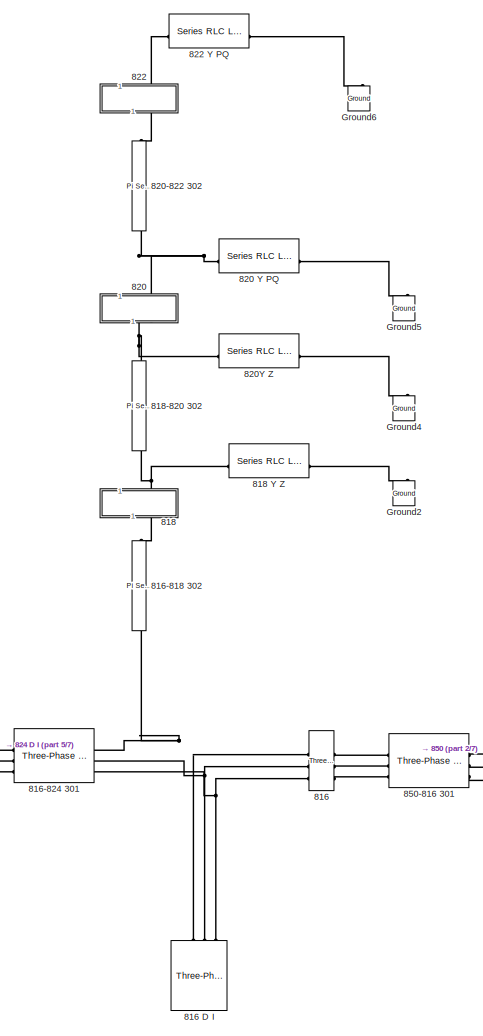
[diagram: root canvas - part 1/7, top center region]
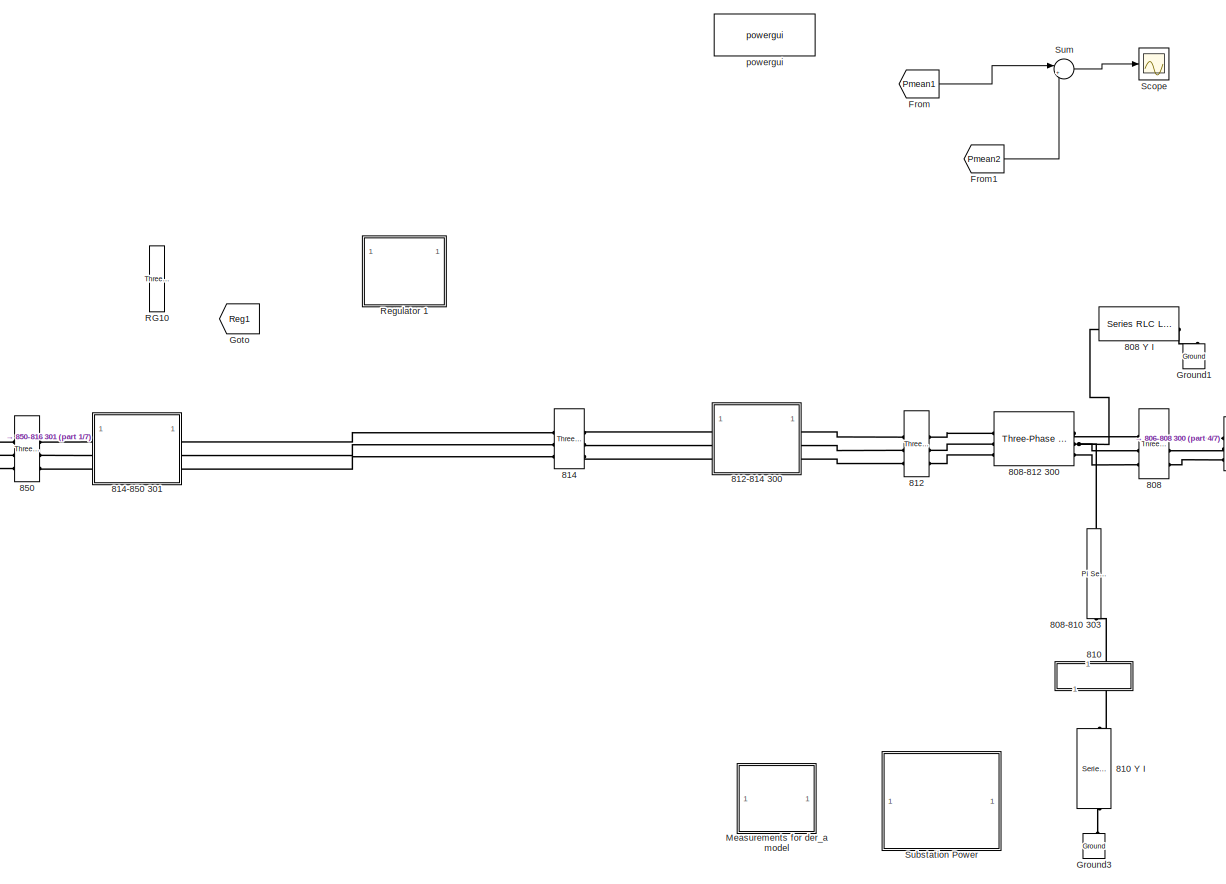
[diagram: root canvas - part 2/7, central region]
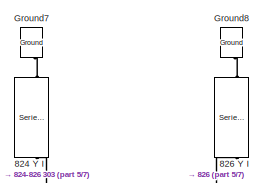
[diagram: root canvas - part 3/7, top left region]
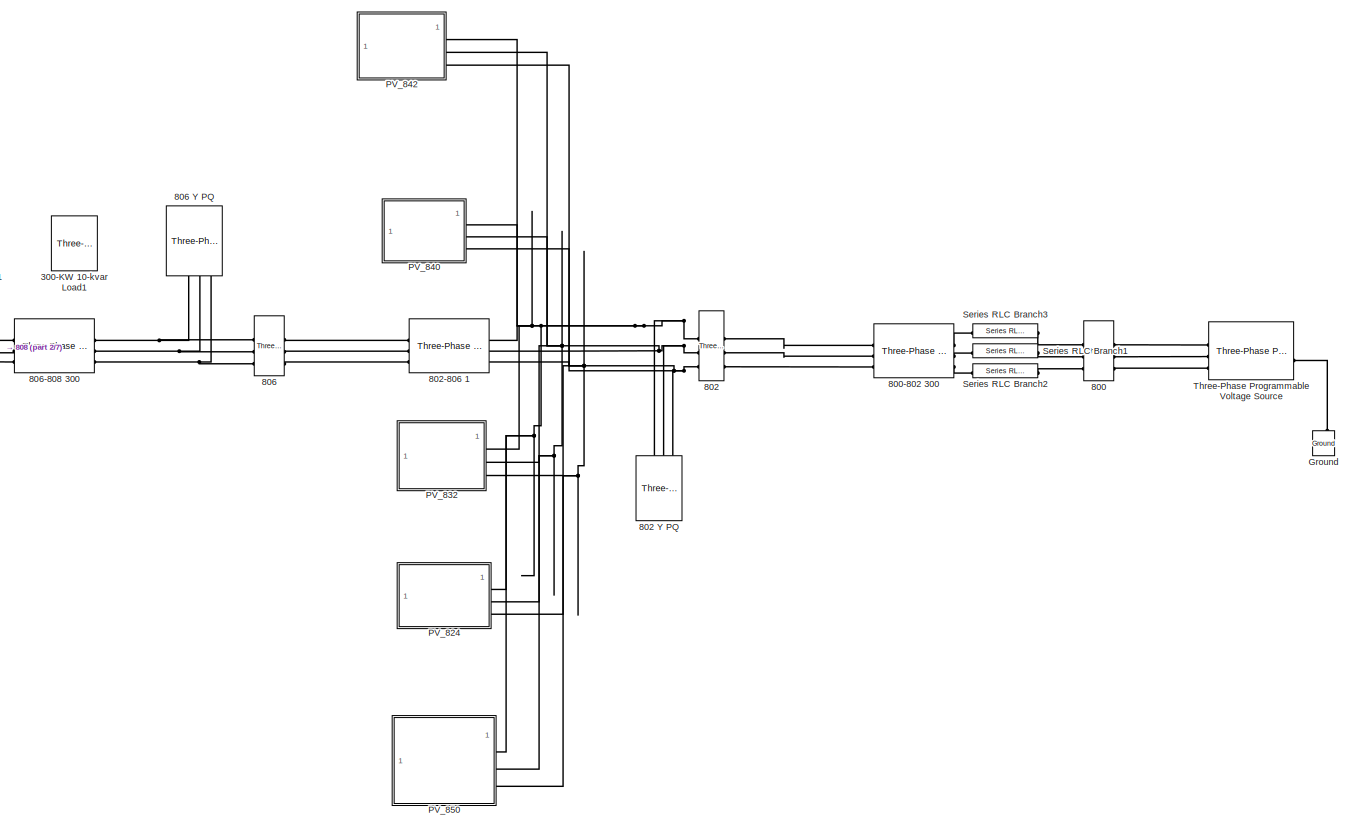
[diagram: root canvas - part 4/7, middle right region]
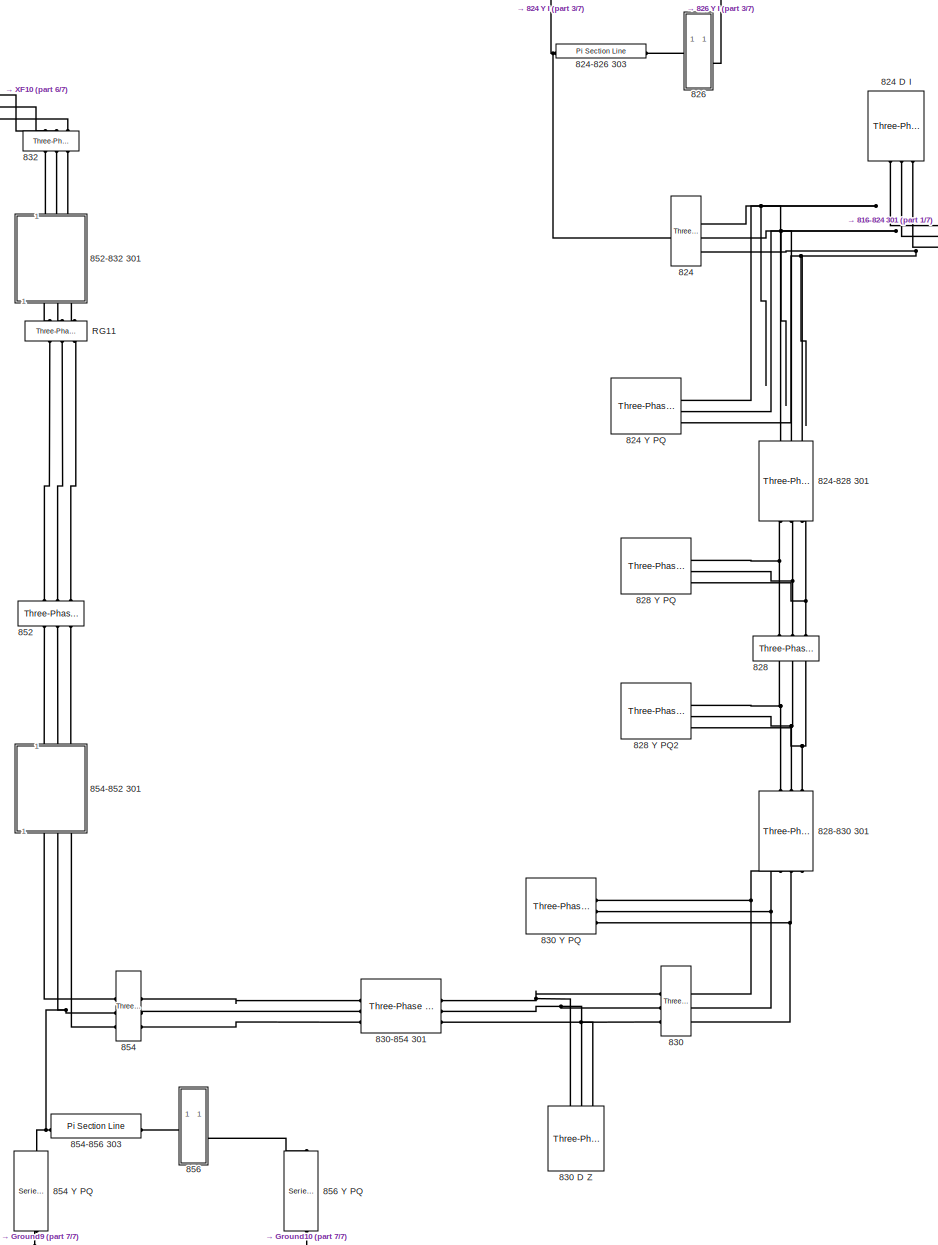
[diagram: root canvas - part 5/7, middle left region]
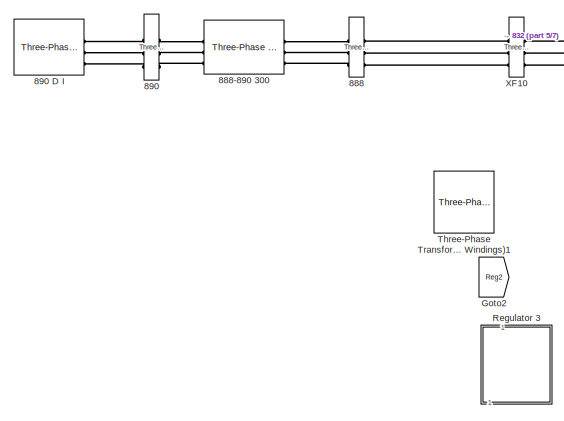
[diagram: root canvas - part 6/7, middle left region]
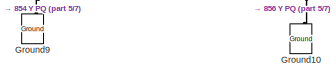
[diagram: root canvas - part 7/7, bottom left region]
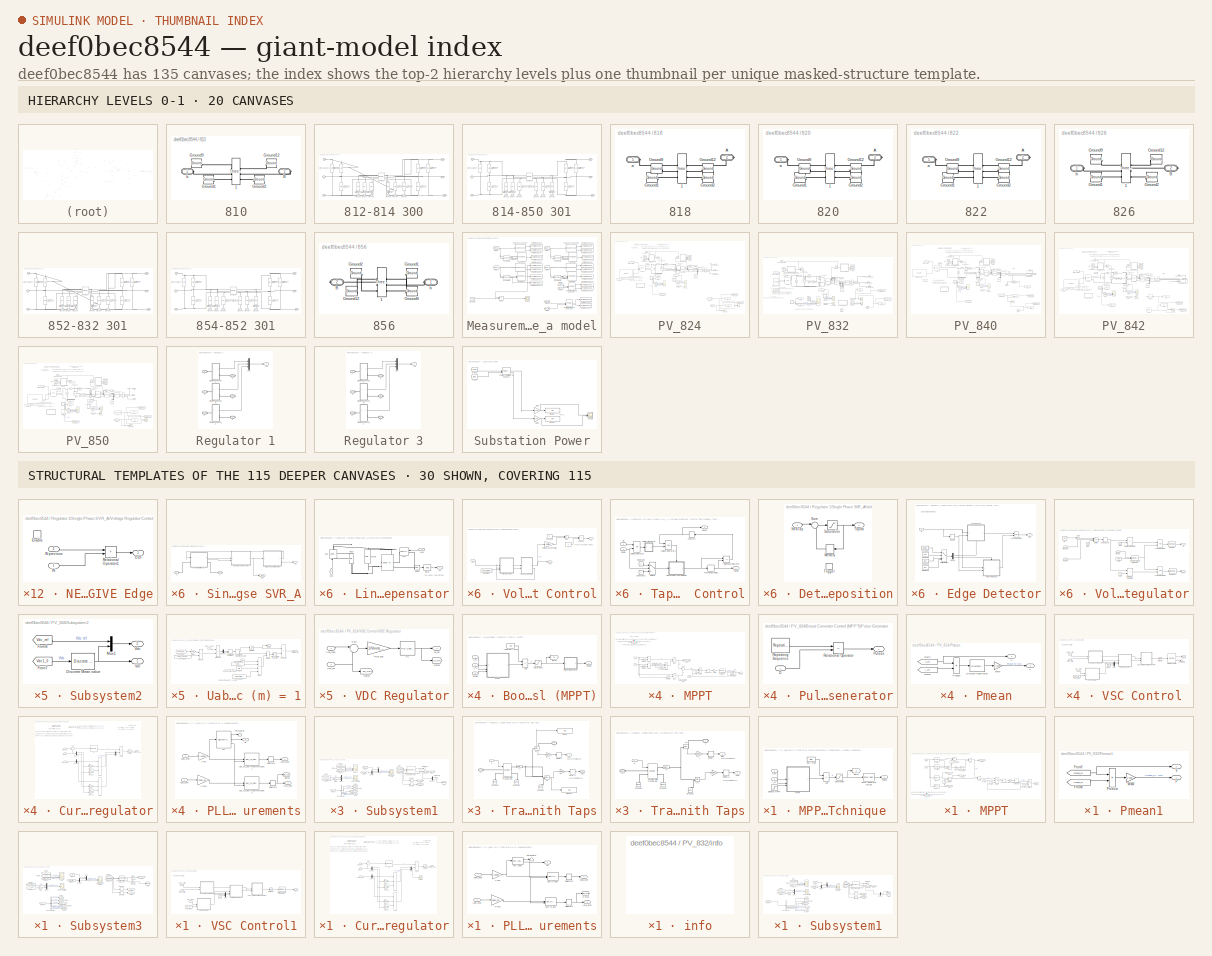
[diagram: thumbnail index - top-2 hierarchy levels (20 canvases) + 30 structural-template representatives of the remaining 115 canvases]
MODEL slx_deef0bec8544
KIND model
CONFIG AbsTol = auto
CONFIG EnableMultiTasking = off
CONFIG FixedStep = 5e-6
CONFIG InitFcn = a=1; % Loading Factor\nTs=50e-6;\nTs_Power=5e-6;\nTs_Control=100e-6;\n% Phase-to-sequence conversion\nc=1*exp(sqrt(-1)*(120*pi/180));\nT=[1 1 1;1 c*c c;1 c c*c];\nTinv=1/3*[1 1 1;1 c c*c;1 c*c c];\n\n% Conversion constants\nmi2km = 1.60934; % miles to km\nft2km = 0.0003048; % feet to km conversion\nms2F = 1*1e-6/(2*pi*60); % microsiemens to Farads conversion\n\n% Helper function to balance matrices\nbalance = @(...<+2570ch>
CONFIG MaxStep = auto
CONFIG MinStep = auto
CONFIG PreLoadFcn = a=1; % Loading Factor\nTs=50e-6;\nTs_Power=5e-6;\nTs_Control=100e-6;\n% Phase-to-sequence conversion\nc=1*exp(sqrt(-1)*(120*pi/180));\nT=[1 1 1;1 c*c c;1 c c*c];\nTinv=1/3*[1 1 1;1 c c*c;1 c*c c];\n\n% Conversion constants\nmi2km = 1.60934; % miles to km\nft2km = 0.0003048; % feet to km conversion\nms2F = 1*1e-6/(2*pi*60); % microsiemens to Farads conversion\n\n% Helper function to balance matrices\nbalance = @(...<+2570ch>
CONFIG RelTol = 1e-3
CONFIG SampleTimeConstraint = Unconstrained
CONFIG SolverName = ode4
CONFIG StartTime = 0.0
CONFIG StopTime = 3
BLOCK [Reference] 300-KW 10-kvar Load1  REF=spsThreePhaseParallelRLCLoadLib/Three-Phase
Parallel RLC Load
  AttributesFormatString = \n
  Commented = on
  NameLocation = left
  SourceBlock = spsThreePhaseParallelRLCLoadLib/Three-Phase\nParallel RLC Load
  SourceType = Three-Phase Parallel RLC Load
BLOCK [Reference] 800  REF=spsThreePhaseVIMeasurementLib/Three-Phase
V-I Measurement
  SourceBlock = spsThreePhaseVIMeasurementLib/Three-Phase\nV-I Measurement
  SourceType = Three-Phase VI Measurement
BLOCK [Reference] 800-802 300  REF=spsThreePhasePISectionLineLib/Three-Phase
PI Section Line
  AttributesFormatString = \n
  LibrarySourceBlock = sps_lib/Power Grid Elements/Three-Phase\nPI Section Line
  SourceBlock = spsThreePhasePISectionLineLib/Three-Phase\nPI Section Line
  SourceType = Three-Phase PI Section Line
BLOCK [Reference] 802  REF=spsThreePhaseVIMeasurementLib/Three-Phase
V-I Measurement
  SourceBlock = spsThreePhaseVIMeasurementLib/Three-Phase\nV-I Measurement
  SourceType = Three-Phase VI Measurement
BLOCK [Reference] 802 Y PQ  REF=spsThreePhaseSeriesRLCLoadLib/Three-Phase
Series RLC Load
  AttributesFormatString = \n
  LibrarySourceBlock = sps_lib/Passives/Three-Phase\nSeries RLC Load
  NameLocation = right
  SourceBlock = spsThreePhaseSeriesRLCLoadLib/Three-Phase\nSeries RLC Load
  SourceType = Three-Phase Series RLC Load
BLOCK [Reference] 802-806 1  REF=spsThreePhasePISectionLineLib/Three-Phase
PI Section Line
  AttributesFormatString = \n
  LibrarySourceBlock = sps_lib/Power Grid Elements/Three-Phase\nPI Section Line
  SourceBlock = spsThreePhasePISectionLineLib/Three-Phase\nPI Section Line
  SourceType = Three-Phase PI Section Line
BLOCK [Reference] 806  REF=spsThreePhaseVIMeasurementLib/Three-Phase
V-I Measurement
  LibrarySourceBlock = sps_lib/Sensors and Measurements/Three-Phase\nV-I Measurement
  SourceBlock = spsThreePhaseVIMeasurementLib/Three-Phase\nV-I Measurement
  SourceType = Three-Phase VI Measurement
BLOCK [Reference] 806 Y PQ  REF=spsThreePhaseSeriesRLCLoadLib/Three-Phase
Series RLC Load
  AttributesFormatString = \n
  LibrarySourceBlock = sps_lib/Passives/Three-Phase\nSeries RLC Load
  NameLocation = left
  SourceBlock = spsThreePhaseSeriesRLCLoadLib/Three-Phase\nSeries RLC Load
  SourceType = Three-Phase Series RLC Load
BLOCK [Reference] 806-808 300  REF=spsThreePhasePISectionLineLib/Three-Phase
PI Section Line
  AttributesFormatString = \n
  LibrarySourceBlock = sps_lib/Power Grid Elements/Three-Phase\nPI Section Line
  SourceBlock = spsThreePhasePISectionLineLib/Three-Phase\nPI Section Line
  SourceType = Three-Phase PI Section Line
BLOCK [Reference] 808  REF=spsThreePhaseVIMeasurementLib/Three-Phase
V-I Measurement
  LibrarySourceBlock = sps_lib/Sensors and Measurements/Three-Phase\nV-I Measurement
  SourceBlock = spsThreePhaseVIMeasurementLib/Three-Phase\nV-I Measurement
  SourceType = Three-Phase VI Measurement
BLOCK [Reference] 808 Y I  REF=spsSeriesRLCLoadLib/Series RLC Load
  AttributesFormatString = \n
  LibrarySourceBlock = sps_lib/Passives/Series RLC Load
  SourceBlock = spsSeriesRLCLoadLib/Series RLC Load
  SourceType = Series RLC Load
BLOCK [Reference] 808-810 303  REF=spsPiSectionLineLib/Pi Section Line
  AttributesFormatString = \n
  LibrarySourceBlock = sps_lib/Power Grid Elements/Pi Section Line
  NameLocation = left
  SourceBlock = spsPiSectionLineLib/Pi Section Line
  SourceType = Pi Section Line
BLOCK [Reference] 808-812 300  REF=spsThreePhasePISectionLineLib/Three-Phase
PI Section Line
  AttributesFormatString = \n
  LibrarySourceBlock = sps_lib/Power Grid Elements/Three-Phase\nPI Section Line
  SourceBlock = spsThreePhasePISectionLineLib/Three-Phase\nPI Section Line
  SourceType = Three-Phase PI Section Line
BLOCK [SubSystem] 810
  NameLocation = right
BLOCK [Reference] 810 Y I  REF=spsSeriesRLCLoadLib/Series RLC Load
  AttributesFormatString = \n
  LibrarySourceBlock = sps_lib/Passives/Series RLC Load
  NameLocation = left
  SourceBlock = spsSeriesRLCLoadLib/Series RLC Load
  SourceType = Series RLC Load
BLOCK [Reference] 810/1  REF=spsThreePhaseVIMeasurementLib/Three-Phase
V-I Measurement
  NameLocation = top
  SourceBlock = spsThreePhaseVIMeasurementLib/Three-Phase\nV-I Measurement
  SourceType = Three-Phase VI Measurement
BLOCK [PMIOPort] 810/B
  Port = 2
  Side = Right
BLOCK [Reference] 810/Ground1  REF=spsGroundLib/Ground
  SourceBlock = spsGroundLib/Ground
  SourceType = Ground
BLOCK [Reference] 810/Ground12  REF=spsGroundLib/Ground
  NameLocation = top
  SourceBlock = spsGroundLib/Ground
  SourceType = Ground
BLOCK [Reference] 810/Ground2  REF=spsGroundLib/Ground
  NameLocation = top
  SourceBlock = spsGroundLib/Ground
  SourceType = Ground
BLOCK [Reference] 810/Ground9  REF=spsGroundLib/Ground
  SourceBlock = spsGroundLib/Ground
  SourceType = Ground
BLOCK [PMIOPort] 810/b
  Side = Left
BLOCK [Reference] 812  REF=spsThreePhaseVIMeasurementLib/Three-Phase
V-I Measurement
  LibrarySourceBlock = sps_lib/Sensors and Measurements/Three-Phase\nV-I Measurement
  SourceBlock = spsThreePhaseVIMeasurementLib/Three-Phase\nV-I Measurement
  SourceType = Three-Phase VI Measurement
BLOCK [SubSystem] 812-814 300
BLOCK [PMIOPort] 812-814 300/A In
  NameLocation = top
  Side = Left
BLOCK [PMIOPort] 812-814 300/A Out
  Port = 4
  Side = Right
BLOCK [PMIOPort] 812-814 300/B In
  NameLocation = top
  Port = 2
  Side = Left
BLOCK [PMIOPort] 812-814 300/B Out
  NameLocation = top
  Port = 5
  Side = Right
BLOCK [PMIOPort] 812-814 300/C Out
  NameLocation = top
  Port = 6
  Side = Right
BLOCK [PMIOPort] 812-814 300/C in
  NameLocation = top
  Port = 3
  Side = Left
BLOCK [Reference] 812-814 300/Config300  REF=spsMutualInductanceLib/Mutual Inductance
  AttributesFormatString = \n
  SourceBlock = spsMutualInductanceLib/Mutual Inductance
  SourceType = Mutual Inductance
BLOCK [Reference] 812-814 300/Ground1  REF=spsGroundLib/Ground
  NameLocation = left
  SourceBlock = spsGroundLib/Ground
  SourceType = Ground
BLOCK [Reference] 812-814 300/Ground2  REF=spsGroundLib/Ground
  NameLocation = left
  SourceBlock = spsGroundLib/Ground
  SourceType = Ground
BLOCK [Reference] 812-814 300/Ground3  REF=spsGroundLib/Ground
  NameLocation = left
  SourceBlock = spsGroundLib/Ground
  SourceType = Ground
BLOCK [Reference] 812-814 300/Ground4  REF=spsGroundLib/Ground
  NameLocation = left
  SourceBlock = spsGroundLib/Ground
  SourceType = Ground
BLOCK [Reference] 812-814 300/Ground5  REF=spsGroundLib/Ground
  NameLocation = left
  SourceBlock = spsGroundLib/Ground
  SourceType = Ground
BLOCK [Reference] 812-814 300/Ground6  REF=spsGroundLib/Ground
  NameLocation = left
  SourceBlock = spsGroundLib/Ground
  SourceType = Ground
BLOCK [Reference] 812-814 300/Series RLC Branch  REF=spsSeriesRLCBranchLib/Series RLC Branch
  NameLocation = left
  SourceBlock = spsSeriesRLCBranchLib/Series RLC Branch
  SourceType = Series RLC Branch
BLOCK [Reference] 812-814 300/Series RLC Branch1  REF=spsSeriesRLCBranchLib/Series RLC Branch
  NameLocation = left
  SourceBlock = spsSeriesRLCBranchLib/Series RLC Branch
  SourceType = Series RLC Branch
BLOCK [Reference] 812-814 300/Series RLC Branch10  REF=spsSeriesRLCBranchLib/Series RLC Branch
  NameLocation = left
  SourceBlock = spsSeriesRLCBranchLib/Series RLC Branch
  SourceType = Series RLC Branch
BLOCK [Reference] 812-814 300/Series RLC Branch11  REF=spsSeriesRLCBranchLib/Series RLC Branch
  NameLocation = left
  SourceBlock = spsSeriesRLCBranchLib/Series RLC Branch
  SourceType = Series RLC Branch
BLOCK [Reference] 812-814 300/Series RLC Branch2  REF=spsSeriesRLCBranchLib/Series RLC Branch
  NameLocation = left
  SourceBlock = spsSeriesRLCBranchLib/Series RLC Branch
  SourceType = Series RLC Branch
BLOCK [Reference] 812-814 300/Series RLC Branch3  REF=spsSeriesRLCBranchLib/Series RLC Branch
  NameLocation = left
  SourceBlock = spsSeriesRLCBranchLib/Series RLC Branch
  SourceType = Series RLC Branch
BLOCK [Reference] 812-814 300/Series RLC Branch4  REF=spsSeriesRLCBranchLib/Series RLC Branch
  NameLocation = left
  SourceBlock = spsSeriesRLCBranchLib/Series RLC Branch
  SourceType = Series RLC Branch
BLOCK [Reference] 812-814 300/Series RLC Branch5  REF=spsSeriesRLCBranchLib/Series RLC Branch
  NameLocation = left
  SourceBlock = spsSeriesRLCBranchLib/Series RLC Branch
  SourceType = Series RLC Branch
BLOCK [Reference] 812-814 300/Series RLC Branch6  REF=spsSeriesRLCBranchLib/Series RLC Branch
  NameLocation = left
  SourceBlock = spsSeriesRLCBranchLib/Series RLC Branch
  SourceType = Series RLC Branch
BLOCK [Reference] 812-814 300/Series RLC Branch7  REF=spsSeriesRLCBranchLib/Series RLC Branch
  NameLocation = left
  SourceBlock = spsSeriesRLCBranchLib/Series RLC Branch
  SourceType = Series RLC Branch
BLOCK [Reference] 812-814 300/Series RLC Branch8  REF=spsSeriesRLCBranchLib/Series RLC Branch
  NameLocation = left
  SourceBlock = spsSeriesRLCBranchLib/Series RLC Branch
  SourceType = Series RLC Branch
BLOCK [Reference] 812-814 300/Series RLC Branch9  REF=spsSeriesRLCBranchLib/Series RLC Branch
  NameLocation = left
  SourceBlock = spsSeriesRLCBranchLib/Series RLC Branch
  SourceType = Series RLC Branch
BLOCK [Reference] 814  REF=spsThreePhaseVIMeasurementLib/Three-Phase
V-I Measurement
  LibrarySourceBlock = sps_lib/Sensors and Measurements/Three-Phase\nV-I Measurement
  SourceBlock = spsThreePhaseVIMeasurementLib/Three-Phase\nV-I Measurement
  SourceType = Three-Phase VI Measurement
BLOCK [SubSystem] 814-850 301
BLOCK [PMIOPort] 814-850 301/A In
  NameLocation = top
  Side = Left
BLOCK [PMIOPort] 814-850 301/A Out
  Port = 4
  Side = Right
BLOCK [PMIOPort] 814-850 301/B In
  NameLocation = top
  Port = 2
  Side = Left
BLOCK [PMIOPort] 814-850 301/B Out
  NameLocation = top
  Port = 5
  Side = Right
BLOCK [PMIOPort] 814-850 301/C Out
  NameLocation = top
  Port = 6
  Side = Right
BLOCK [PMIOPort] 814-850 301/C in
  NameLocation = top
  Port = 3
  Side = Left
BLOCK [Reference] 814-850 301/Config300  REF=spsMutualInductanceLib/Mutual Inductance
  AttributesFormatString = \n
  SourceBlock = spsMutualInductanceLib/Mutual Inductance
  SourceType = Mutual Inductance
BLOCK [Reference] 814-850 301/Ground1  REF=spsGroundLib/Ground
  NameLocation = left
  SourceBlock = spsGroundLib/Ground
  SourceType = Ground
BLOCK [Reference] 814-850 301/Ground2  REF=spsGroundLib/Ground
  NameLocation = left
  SourceBlock = spsGroundLib/Ground
  SourceType = Ground
BLOCK [Reference] 814-850 301/Ground3  REF=spsGroundLib/Ground
  NameLocation = left
  SourceBlock = spsGroundLib/Ground
  SourceType = Ground
BLOCK [Reference] 814-850 301/Ground4  REF=spsGroundLib/Ground
  NameLocation = left
  SourceBlock = spsGroundLib/Ground
  SourceType = Ground
BLOCK [Reference] 814-850 301/Ground5  REF=spsGroundLib/Ground
  NameLocation = left
  SourceBlock = spsGroundLib/Ground
  SourceType = Ground
BLOCK [Reference] 814-850 301/Ground6  REF=spsGroundLib/Ground
  NameLocation = left
  SourceBlock = spsGroundLib/Ground
  SourceType = Ground
BLOCK [Reference] 814-850 301/Series RLC Branch  REF=spsSeriesRLCBranchLib/Series RLC Branch
  NameLocation = left
  SourceBlock = spsSeriesRLCBranchLib/Series RLC Branch
  SourceType = Series RLC Branch
BLOCK [Reference] 814-850 301/Series RLC Branch1  REF=spsSeriesRLCBranchLib/Series RLC Branch
  NameLocation = left
  SourceBlock = spsSeriesRLCBranchLib/Series RLC Branch
  SourceType = Series RLC Branch
BLOCK [Reference] 814-850 301/Series RLC Branch10  REF=spsSeriesRLCBranchLib/Series RLC Branch
  NameLocation = left
  SourceBlock = spsSeriesRLCBranchLib/Series RLC Branch
  SourceType = Series RLC Branch
BLOCK [Reference] 814-850 301/Series RLC Branch11  REF=spsSeriesRLCBranchLib/Series RLC Branch
  NameLocation = left
  SourceBlock = spsSeriesRLCBranchLib/Series RLC Branch
  SourceType = Series RLC Branch
BLOCK [Reference] 814-850 301/Series RLC Branch2  REF=spsSeriesRLCBranchLib/Series RLC Branch
  NameLocation = left
  SourceBlock = spsSeriesRLCBranchLib/Series RLC Branch
  SourceType = Series RLC Branch
BLOCK [Reference] 814-850 301/Series RLC Branch3  REF=spsSeriesRLCBranchLib/Series RLC Branch
  NameLocation = left
  SourceBlock = spsSeriesRLCBranchLib/Series RLC Branch
  SourceType = Series RLC Branch
BLOCK [Reference] 814-850 301/Series RLC Branch4  REF=spsSeriesRLCBranchLib/Series RLC Branch
  NameLocation = left
  SourceBlock = spsSeriesRLCBranchLib/Series RLC Branch
  SourceType = Series RLC Branch
BLOCK [Reference] 814-850 301/Series RLC Branch5  REF=spsSeriesRLCBranchLib/Series RLC Branch
  NameLocation = left
  SourceBlock = spsSeriesRLCBranchLib/Series RLC Branch
  SourceType = Series RLC Branch
BLOCK [Reference] 814-850 301/Series RLC Branch6  REF=spsSeriesRLCBranchLib/Series RLC Branch
  NameLocation = left
  SourceBlock = spsSeriesRLCBranchLib/Series RLC Branch
  SourceType = Series RLC Branch
BLOCK [Reference] 814-850 301/Series RLC Branch7  REF=spsSeriesRLCBranchLib/Series RLC Branch
  NameLocation = left
  SourceBlock = spsSeriesRLCBranchLib/Series RLC Branch
  SourceType = Series RLC Branch
BLOCK [Reference] 814-850 301/Series RLC Branch8  REF=spsSeriesRLCBranchLib/Series RLC Branch
  NameLocation = left
  SourceBlock = spsSeriesRLCBranchLib/Series RLC Branch
  SourceType = Series RLC Branch
BLOCK [Reference] 814-850 301/Series RLC Branch9  REF=spsSeriesRLCBranchLib/Series RLC Branch
  NameLocation = left
  SourceBlock = spsSeriesRLCBranchLib/Series RLC Branch
  SourceType = Series RLC Branch
BLOCK [Reference] 816   REF=spsThreePhaseVIMeasurementLib/Three-Phase
V-I Measurement
  LibrarySourceBlock = sps_lib/Sensors and Measurements/Three-Phase\nV-I Measurement
  SourceBlock = spsThreePhaseVIMeasurementLib/Three-Phase\nV-I Measurement
  SourceType = Three-Phase VI Measurement
BLOCK [Reference] 816 D I  REF=spsThreePhaseSeriesRLCLoadLib/Three-Phase
Series RLC Load
  AttributesFormatString = \n
  LibrarySourceBlock = sps_lib/Passives/Three-Phase\nSeries RLC Load
  NameLocation = right
  SourceBlock = spsThreePhaseSeriesRLCLoadLib/Three-Phase\nSeries RLC Load
  SourceType = Three-Phase Series RLC Load
BLOCK [Reference] 816-818 302  REF=spsPiSectionLineLib/Pi Section Line
  AttributesFormatString = \n
  LibrarySourceBlock = sps_lib/Power Grid Elements/Pi Section Line
  NameLocation = right
  SourceBlock = spsPiSectionLineLib/Pi Section Line
  SourceType = Pi Section Line
BLOCK [Reference] 816-824 301  REF=spsThreePhasePISectionLineLib/Three-Phase
PI Section Line
  AttributesFormatString = \n
  LibrarySourceBlock = sps_lib/Power Grid Elements/Three-Phase\nPI Section Line
  SourceBlock = spsThreePhasePISectionLineLib/Three-Phase\nPI Section Line
  SourceType = Three-Phase PI Section Line
BLOCK [SubSystem] 818
  NameLocation = left
BLOCK [Reference] 818 Y Z  REF=spsSeriesRLCLoadLib/Series RLC Load
  AttributesFormatString = \n
  LibrarySourceBlock = sps_lib/Passives/Series RLC Load
  SourceBlock = spsSeriesRLCLoadLib/Series RLC Load
  SourceType = Series RLC Load
BLOCK [Reference] 818-820 302  REF=spsPiSectionLineLib/Pi Section Line
  AttributesFormatString = \n
  LibrarySourceBlock = sps_lib/Power Grid Elements/Pi Section Line
  NameLocation = right
  SourceBlock = spsPiSectionLineLib/Pi Section Line
  SourceType = Pi Section Line
BLOCK [Reference] 818/1  REF=spsThreePhaseVIMeasurementLib/Three-Phase
V-I Measurement
  NameLocation = top
  SourceBlock = spsThreePhaseVIMeasurementLib/Three-Phase\nV-I Measurement
  SourceType = Three-Phase VI Measurement
BLOCK [PMIOPort] 818/A
  Port = 2
  Side = Right
BLOCK [Reference] 818/Ground1  REF=spsGroundLib/Ground
  SourceBlock = spsGroundLib/Ground
  SourceType = Ground
BLOCK [Reference] 818/Ground12  REF=spsGroundLib/Ground
  NameLocation = top
  SourceBlock = spsGroundLib/Ground
  SourceType = Ground
BLOCK [Reference] 818/Ground2  REF=spsGroundLib/Ground
  NameLocation = top
  SourceBlock = spsGroundLib/Ground
  SourceType = Ground
BLOCK [Reference] 818/Ground9  REF=spsGroundLib/Ground
  SourceBlock = spsGroundLib/Ground
  SourceType = Ground
BLOCK [PMIOPort] 818/a
  Side = Left
BLOCK [SubSystem] 820
  NameLocation = left
BLOCK [Reference] 820 Y PQ  REF=spsSeriesRLCLoadLib/Series RLC Load
  AttributesFormatString = \n
  LibrarySourceBlock = sps_lib/Passives/Series RLC Load
  SourceBlock = spsSeriesRLCLoadLib/Series RLC Load
  SourceType = Series RLC Load
BLOCK [Reference] 820-822 302  REF=spsPiSectionLineLib/Pi Section Line
  AttributesFormatString = \n
  LibrarySourceBlock = sps_lib/Power Grid Elements/Pi Section Line
  NameLocation = right
  SourceBlock = spsPiSectionLineLib/Pi Section Line
  SourceType = Pi Section Line
BLOCK [Reference] 820/1  REF=spsThreePhaseVIMeasurementLib/Three-Phase
V-I Measurement
  NameLocation = top
  SourceBlock = spsThreePhaseVIMeasurementLib/Three-Phase\nV-I Measurement
  SourceType = Three-Phase VI Measurement
BLOCK [PMIOPort] 820/A
  Port = 2
  Side = Right
BLOCK [Reference] 820/Ground1  REF=spsGroundLib/Ground
  SourceBlock = spsGroundLib/Ground
  SourceType = Ground
BLOCK [Reference] 820/Ground12  REF=spsGroundLib/Ground
  NameLocation = top
  SourceBlock = spsGroundLib/Ground
  SourceType = Ground
BLOCK [Reference] 820/Ground2  REF=spsGroundLib/Ground
  NameLocation = top
  SourceBlock = spsGroundLib/Ground
  SourceType = Ground
BLOCK [Reference] 820/Ground9  REF=spsGroundLib/Ground
  SourceBlock = spsGroundLib/Ground
  SourceType = Ground
BLOCK [PMIOPort] 820/a
  Side = Left
BLOCK [Reference] 820Y Z  REF=spsSeriesRLCLoadLib/Series RLC Load
  AttributesFormatString = \n
  LibrarySourceBlock = sps_lib/Passives/Series RLC Load
  SourceBlock = spsSeriesRLCLoadLib/Series RLC Load
  SourceType = Series RLC Load
BLOCK [SubSystem] 822
  NameLocation = left
BLOCK [Reference] 822 Y PQ  REF=spsSeriesRLCLoadLib/Series RLC Load
  AttributesFormatString = \n
  LibrarySourceBlock = sps_lib/Passives/Series RLC Load
  SourceBlock = spsSeriesRLCLoadLib/Series RLC Load
  SourceType = Series RLC Load
BLOCK [Reference] 822/1  REF=spsThreePhaseVIMeasurementLib/Three-Phase
V-I Measurement
  NameLocation = top
  SourceBlock = spsThreePhaseVIMeasurementLib/Three-Phase\nV-I Measurement
  SourceType = Three-Phase VI Measurement
BLOCK [PMIOPort] 822/A
  Port = 2
  Side = Right
BLOCK [Reference] 822/Ground1  REF=spsGroundLib/Ground
  SourceBlock = spsGroundLib/Ground
  SourceType = Ground
BLOCK [Reference] 822/Ground12  REF=spsGroundLib/Ground
  NameLocation = top
  SourceBlock = spsGroundLib/Ground
  SourceType = Ground
BLOCK [Reference] 822/Ground2  REF=spsGroundLib/Ground
  NameLocation = top
  SourceBlock = spsGroundLib/Ground
  SourceType = Ground
BLOCK [Reference] 822/Ground9  REF=spsGroundLib/Ground
  SourceBlock = spsGroundLib/Ground
  SourceType = Ground
BLOCK [PMIOPort] 822/a
  Side = Left
BLOCK [Reference] 824   REF=spsThreePhaseVIMeasurementLib/Three-Phase
V-I Measurement
  LibrarySourceBlock = sps_lib/Sensors and Measurements/Three-Phase\nV-I Measurement
  SourceBlock = spsThreePhaseVIMeasurementLib/Three-Phase\nV-I Measurement
  SourceType = Three-Phase VI Measurement
BLOCK [Reference] 824 D I  REF=spsThreePhaseSeriesRLCLoadLib/Three-Phase
Series RLC Load
  AttributesFormatString = \n
  LibrarySourceBlock = sps_lib/Passives/Three-Phase\nSeries RLC Load
  NameLocation = left
  SourceBlock = spsThreePhaseSeriesRLCLoadLib/Three-Phase\nSeries RLC Load
  SourceType = Three-Phase Series RLC Load
BLOCK [Reference] 824 Y I  REF=spsSeriesRLCLoadLib/Series RLC Load
  AttributesFormatString = \n
  LibrarySourceBlock = sps_lib/Passives/Series RLC Load
  NameLocation = right
  SourceBlock = spsSeriesRLCLoadLib/Series RLC Load
  SourceType = Series RLC Load
BLOCK [Reference] 824 Y PQ  REF=spsThreePhaseSeriesRLCLoadLib/Three-Phase
Series RLC Load
  AttributesFormatString = \n
  LibrarySourceBlock = sps_lib/Passives/Three-Phase\nSeries RLC Load
  NameLocation = top
  SourceBlock = spsThreePhaseSeriesRLCLoadLib/Three-Phase\nSeries RLC Load
  SourceType = Three-Phase Series RLC Load
BLOCK [Reference] 824-826 303  REF=spsPiSectionLineLib/Pi Section Line
  AttributesFormatString = \n
  LibrarySourceBlock = sps_lib/Power Grid Elements/Pi Section Line
  SourceBlock = spsPiSectionLineLib/Pi Section Line
  SourceType = Pi Section Line
BLOCK [Reference] 824-828 301  REF=spsThreePhasePISectionLineLib/Three-Phase
PI Section Line
  AttributesFormatString = \n
  LibrarySourceBlock = sps_lib/Power Grid Elements/Three-Phase\nPI Section Line
  NameLocation = left
  SourceBlock = spsThreePhasePISectionLineLib/Three-Phase\nPI Section Line
  SourceType = Three-Phase PI Section Line
BLOCK [SubSystem] 826
  NameLocation = top
BLOCK [Reference] 826 Y I  REF=spsSeriesRLCLoadLib/Series RLC Load
  AttributesFormatString = \n
  LibrarySourceBlock = sps_lib/Passives/Series RLC Load
  NameLocation = right
  SourceBlock = spsSeriesRLCLoadLib/Series RLC Load
  SourceType = Series RLC Load
BLOCK [Reference] 826/1  REF=spsThreePhaseVIMeasurementLib/Three-Phase
V-I Measurement
  NameLocation = top
  SourceBlock = spsThreePhaseVIMeasurementLib/Three-Phase\nV-I Measurement
  SourceType = Three-Phase VI Measurement
BLOCK [PMIOPort] 826/B
  Port = 2
  Side = Right
BLOCK [Reference] 826/Ground1  REF=spsGroundLib/Ground
  SourceBlock = spsGroundLib/Ground
  SourceType = Ground
BLOCK [Reference] 826/Ground12  REF=spsGroundLib/Ground
  NameLocation = top
  SourceBlock = spsGroundLib/Ground
  SourceType = Ground
BLOCK [Reference] 826/Ground2  REF=spsGroundLib/Ground
  NameLocation = top
  SourceBlock = spsGroundLib/Ground
  SourceType = Ground
BLOCK [Reference] 826/Ground9  REF=spsGroundLib/Ground
  SourceBlock = spsGroundLib/Ground
  SourceType = Ground
BLOCK [PMIOPort] 826/b
  Side = Left
BLOCK [Reference] 828  REF=spsThreePhaseVIMeasurementLib/Three-Phase
V-I Measurement
  LibrarySourceBlock = sps_lib/Sensors and Measurements/Three-Phase\nV-I Measurement
  NameLocation = left
  SourceBlock = spsThreePhaseVIMeasurementLib/Three-Phase\nV-I Measurement
  SourceType = Three-Phase VI Measurement
BLOCK [Reference] 828 Y PQ  REF=spsThreePhaseSeriesRLCLoadLib/Three-Phase
Series RLC Load
  AttributesFormatString = \n
  LibrarySourceBlock = sps_lib/Passives/Three-Phase\nSeries RLC Load
  SourceBlock = spsThreePhaseSeriesRLCLoadLib/Three-Phase\nSeries RLC Load
  SourceType = Three-Phase Series RLC Load
BLOCK [Reference] 828 Y PQ2  REF=spsThreePhaseSeriesRLCLoadLib/Three-Phase
Series RLC Load
  AttributesFormatString = \n
  LibrarySourceBlock = sps_lib/Passives/Three-Phase\nSeries RLC Load
  NameLocation = top
  SourceBlock = spsThreePhaseSeriesRLCLoadLib/Three-Phase\nSeries RLC Load
  SourceType = Three-Phase Series RLC Load
BLOCK [Reference] 828-830 301  REF=spsThreePhasePISectionLineLib/Three-Phase
PI Section Line
  AttributesFormatString = \n
  LibrarySourceBlock = sps_lib/Power Grid Elements/Three-Phase\nPI Section Line
  NameLocation = left
  SourceBlock = spsThreePhasePISectionLineLib/Three-Phase\nPI Section Line
  SourceType = Three-Phase PI Section Line
BLOCK [Reference] 830  REF=spsThreePhaseVIMeasurementLib/Three-Phase
V-I Measurement
  LibrarySourceBlock = sps_lib/Sensors and Measurements/Three-Phase\nV-I Measurement
  SourceBlock = spsThreePhaseVIMeasurementLib/Three-Phase\nV-I Measurement
  SourceType = Three-Phase VI Measurement
BLOCK [Reference] 830 D Z  REF=spsThreePhaseSeriesRLCLoadLib/Three-Phase
Series RLC Load
  AttributesFormatString = \n
  LibrarySourceBlock = sps_lib/Passives/Three-Phase\nSeries RLC Load
  NameLocation = right
  SourceBlock = spsThreePhaseSeriesRLCLoadLib/Three-Phase\nSeries RLC Load
  SourceType = Three-Phase Series RLC Load
BLOCK [Reference] 830 Y PQ  REF=spsThreePhaseSeriesRLCLoadLib/Three-Phase
Series RLC Load
  AttributesFormatString = \n
  LibrarySourceBlock = sps_lib/Passives/Three-Phase\nSeries RLC Load
  SourceBlock = spsThreePhaseSeriesRLCLoadLib/Three-Phase\nSeries RLC Load
  SourceType = Three-Phase Series RLC Load
BLOCK [Reference] 830-854 301  REF=spsThreePhasePISectionLineLib/Three-Phase
PI Section Line
  AttributesFormatString = \n
  LibrarySourceBlock = sps_lib/Power Grid Elements/Three-Phase\nPI Section Line
  NameLocation = top
  SourceBlock = spsThreePhasePISectionLineLib/Three-Phase\nPI Section Line
  SourceType = Three-Phase PI Section Line
BLOCK [Reference] 832  REF=spsThreePhaseVIMeasurementLib/Three-Phase
V-I Measurement
  LibrarySourceBlock = sps_lib/Sensors and Measurements/Three-Phase\nV-I Measurement
  NameLocation = right
  SourceBlock = spsThreePhaseVIMeasurementLib/Three-Phase\nV-I Measurement
  SourceType = Three-Phase VI Measurement
BLOCK [Reference] 850  REF=spsThreePhaseVIMeasurementLib/Three-Phase
V-I Measurement
  LibrarySourceBlock = sps_lib/Sensors and Measurements/Three-Phase\nV-I Measurement
  SourceBlock = spsThreePhaseVIMeasurementLib/Three-Phase\nV-I Measurement
  SourceType = Three-Phase VI Measurement
BLOCK [Reference] 850-816 301  REF=spsThreePhasePISectionLineLib/Three-Phase
PI Section Line
  AttributesFormatString = \n
  LibrarySourceBlock = sps_lib/Power Grid Elements/Three-Phase\nPI Section Line
  NameLocation = top
  SourceBlock = spsThreePhasePISectionLineLib/Three-Phase\nPI Section Line
  SourceType = Three-Phase PI Section Line
BLOCK [Reference] 852   REF=spsThreePhaseVIMeasurementLib/Three-Phase
V-I Measurement
  LibrarySourceBlock = sps_lib/Sensors and Measurements/Three-Phase\nV-I Measurement
  NameLocation = right
  SourceBlock = spsThreePhaseVIMeasurementLib/Three-Phase\nV-I Measurement
  SourceType = Three-Phase VI Measurement
BLOCK [SubSystem] 852-832 301
  NameLocation = right
BLOCK [PMIOPort] 852-832 301/A In
  NameLocation = top
  Side = Left
BLOCK [PMIOPort] 852-832 301/A Out
  Port = 4
  Side = Right
BLOCK [PMIOPort] 852-832 301/B In
  NameLocation = top
  Port = 2
  Side = Left
BLOCK [PMIOPort] 852-832 301/B Out
  NameLocation = top
  Port = 5
  Side = Right
BLOCK [PMIOPort] 852-832 301/C Out
  NameLocation = top
  Port = 6
  Side = Right
BLOCK [PMIOPort] 852-832 301/C in
  NameLocation = top
  Port = 3
  Side = Left
BLOCK [Reference] 852-832 301/Config300  REF=spsMutualInductanceLib/Mutual Inductance
  AttributesFormatString = \n
  SourceBlock = spsMutualInductanceLib/Mutual Inductance
  SourceType = Mutual Inductance
BLOCK [Reference] 852-832 301/Ground1  REF=spsGroundLib/Ground
  NameLocation = left
  SourceBlock = spsGroundLib/Ground
  SourceType = Ground
BLOCK [Reference] 852-832 301/Ground2  REF=spsGroundLib/Ground
  NameLocation = left
  SourceBlock = spsGroundLib/Ground
  SourceType = Ground
BLOCK [Reference] 852-832 301/Ground3  REF=spsGroundLib/Ground
  NameLocation = left
  SourceBlock = spsGroundLib/Ground
  SourceType = Ground
BLOCK [Reference] 852-832 301/Ground4  REF=spsGroundLib/Ground
  NameLocation = left
  SourceBlock = spsGroundLib/Ground
  SourceType = Ground
BLOCK [Reference] 852-832 301/Ground5  REF=spsGroundLib/Ground
  NameLocation = left
  SourceBlock = spsGroundLib/Ground
  SourceType = Ground
BLOCK [Reference] 852-832 301/Ground6  REF=spsGroundLib/Ground
  NameLocation = left
  SourceBlock = spsGroundLib/Ground
  SourceType = Ground
BLOCK [Reference] 852-832 301/Series RLC Branch  REF=spsSeriesRLCBranchLib/Series RLC Branch
  NameLocation = left
  SourceBlock = spsSeriesRLCBranchLib/Series RLC Branch
  SourceType = Series RLC Branch
BLOCK [Reference] 852-832 301/Series RLC Branch1  REF=spsSeriesRLCBranchLib/Series RLC Branch
  NameLocation = left
  SourceBlock = spsSeriesRLCBranchLib/Series RLC Branch
  SourceType = Series RLC Branch
BLOCK [Reference] 852-832 301/Series RLC Branch10  REF=spsSeriesRLCBranchLib/Series RLC Branch
  NameLocation = left
  SourceBlock = spsSeriesRLCBranchLib/Series RLC Branch
  SourceType = Series RLC Branch
BLOCK [Reference] 852-832 301/Series RLC Branch11  REF=spsSeriesRLCBranchLib/Series RLC Branch
  NameLocation = left
  SourceBlock = spsSeriesRLCBranchLib/Series RLC Branch
  SourceType = Series RLC Branch
BLOCK [Reference] 852-832 301/Series RLC Branch2  REF=spsSeriesRLCBranchLib/Series RLC Branch
  NameLocation = left
  SourceBlock = spsSeriesRLCBranchLib/Series RLC Branch
  SourceType = Series RLC Branch
BLOCK [Reference] 852-832 301/Series RLC Branch3  REF=spsSeriesRLCBranchLib/Series RLC Branch
  NameLocation = left
  SourceBlock = spsSeriesRLCBranchLib/Series RLC Branch
  SourceType = Series RLC Branch
BLOCK [Reference] 852-832 301/Series RLC Branch4  REF=spsSeriesRLCBranchLib/Series RLC Branch
  NameLocation = left
  SourceBlock = spsSeriesRLCBranchLib/Series RLC Branch
  SourceType = Series RLC Branch
BLOCK [Reference] 852-832 301/Series RLC Branch5  REF=spsSeriesRLCBranchLib/Series RLC Branch
  NameLocation = left
  SourceBlock = spsSeriesRLCBranchLib/Series RLC Branch
  SourceType = Series RLC Branch
BLOCK [Reference] 852-832 301/Series RLC Branch6  REF=spsSeriesRLCBranchLib/Series RLC Branch
  NameLocation = left
  SourceBlock = spsSeriesRLCBranchLib/Series RLC Branch
  SourceType = Series RLC Branch
BLOCK [Reference] 852-832 301/Series RLC Branch7  REF=spsSeriesRLCBranchLib/Series RLC Branch
  NameLocation = left
  SourceBlock = spsSeriesRLCBranchLib/Series RLC Branch
  SourceType = Series RLC Branch
BLOCK [Reference] 852-832 301/Series RLC Branch8  REF=spsSeriesRLCBranchLib/Series RLC Branch
  NameLocation = left
  SourceBlock = spsSeriesRLCBranchLib/Series RLC Branch
  SourceType = Series RLC Branch
BLOCK [Reference] 852-832 301/Series RLC Branch9  REF=spsSeriesRLCBranchLib/Series RLC Branch
  NameLocation = left
  SourceBlock = spsSeriesRLCBranchLib/Series RLC Branch
  SourceType = Series RLC Branch
BLOCK [Reference] 854  REF=spsThreePhaseVIMeasurementLib/Three-Phase
V-I Measurement
  LibrarySourceBlock = sps_lib/Sensors and Measurements/Three-Phase\nV-I Measurement
  SourceBlock = spsThreePhaseVIMeasurementLib/Three-Phase\nV-I Measurement
  SourceType = Three-Phase VI Measurement
BLOCK [Reference] 854 Y PQ  REF=spsSeriesRLCLoadLib/Series RLC Load
  AttributesFormatString = \n
  LibrarySourceBlock = sps_lib/Passives/Series RLC Load
  NameLocation = left
  SourceBlock = spsSeriesRLCLoadLib/Series RLC Load
  SourceType = Series RLC Load
BLOCK [SubSystem] 854-852 301
  NameLocation = right
BLOCK [PMIOPort] 854-852 301/A In
  NameLocation = top
  Side = Left
BLOCK [PMIOPort] 854-852 301/A Out
  Port = 4
  Side = Right
BLOCK [PMIOPort] 854-852 301/B In
  NameLocation = top
  Port = 2
  Side = Left
BLOCK [PMIOPort] 854-852 301/B Out
  NameLocation = top
  Port = 5
  Side = Right
BLOCK [PMIOPort] 854-852 301/C Out
  NameLocation = top
  Port = 6
  Side = Right
BLOCK [PMIOPort] 854-852 301/C in
  NameLocation = top
  Port = 3
  Side = Left
BLOCK [Reference] 854-852 301/Config300  REF=spsMutualInductanceLib/Mutual Inductance
  AttributesFormatString = \n
  SourceBlock = spsMutualInductanceLib/Mutual Inductance
  SourceType = Mutual Inductance
BLOCK [Reference] 854-852 301/Ground1  REF=spsGroundLib/Ground
  NameLocation = left
  SourceBlock = spsGroundLib/Ground
  SourceType = Ground
BLOCK [Reference] 854-852 301/Ground2  REF=spsGroundLib/Ground
  NameLocation = left
  SourceBlock = spsGroundLib/Ground
  SourceType = Ground
BLOCK [Reference] 854-852 301/Ground3  REF=spsGroundLib/Ground
  NameLocation = left
  SourceBlock = spsGroundLib/Ground
  SourceType = Ground
BLOCK [Reference] 854-852 301/Ground4  REF=spsGroundLib/Ground
  NameLocation = left
  SourceBlock = spsGroundLib/Ground
  SourceType = Ground
BLOCK [Reference] 854-852 301/Ground5  REF=spsGroundLib/Ground
  NameLocation = left
  SourceBlock = spsGroundLib/Ground
  SourceType = Ground
BLOCK [Reference] 854-852 301/Ground6  REF=spsGroundLib/Ground
  NameLocation = left
  SourceBlock = spsGroundLib/Ground
  SourceType = Ground
BLOCK [Reference] 854-852 301/Series RLC Branch  REF=spsSeriesRLCBranchLib/Series RLC Branch
  NameLocation = left
  SourceBlock = spsSeriesRLCBranchLib/Series RLC Branch
  SourceType = Series RLC Branch
BLOCK [Reference] 854-852 301/Series RLC Branch1  REF=spsSeriesRLCBranchLib/Series RLC Branch
  NameLocation = left
  SourceBlock = spsSeriesRLCBranchLib/Series RLC Branch
  SourceType = Series RLC Branch
BLOCK [Reference] 854-852 301/Series RLC Branch10  REF=spsSeriesRLCBranchLib/Series RLC Branch
  NameLocation = left
  SourceBlock = spsSeriesRLCBranchLib/Series RLC Branch
  SourceType = Series RLC Branch
BLOCK [Reference] 854-852 301/Series RLC Branch11  REF=spsSeriesRLCBranchLib/Series RLC Branch
  NameLocation = left
  SourceBlock = spsSeriesRLCBranchLib/Series RLC Branch
  SourceType = Series RLC Branch
BLOCK [Reference] 854-852 301/Series RLC Branch2  REF=spsSeriesRLCBranchLib/Series RLC Branch
  NameLocation = left
  SourceBlock = spsSeriesRLCBranchLib/Series RLC Branch
  SourceType = Series RLC Branch
BLOCK [Reference] 854-852 301/Series RLC Branch3  REF=spsSeriesRLCBranchLib/Series RLC Branch
  NameLocation = left
  SourceBlock = spsSeriesRLCBranchLib/Series RLC Branch
  SourceType = Series RLC Branch
BLOCK [Reference] 854-852 301/Series RLC Branch4  REF=spsSeriesRLCBranchLib/Series RLC Branch
  NameLocation = left
  SourceBlock = spsSeriesRLCBranchLib/Series RLC Branch
  SourceType = Series RLC Branch
BLOCK [Reference] 854-852 301/Series RLC Branch5  REF=spsSeriesRLCBranchLib/Series RLC Branch
  NameLocation = left
  SourceBlock = spsSeriesRLCBranchLib/Series RLC Branch
  SourceType = Series RLC Branch
BLOCK [Reference] 854-852 301/Series RLC Branch6  REF=spsSeriesRLCBranchLib/Series RLC Branch
  NameLocation = left
  SourceBlock = spsSeriesRLCBranchLib/Series RLC Branch
  SourceType = Series RLC Branch
BLOCK [Reference] 854-852 301/Series RLC Branch7  REF=spsSeriesRLCBranchLib/Series RLC Branch
  NameLocation = left
  SourceBlock = spsSeriesRLCBranchLib/Series RLC Branch
  SourceType = Series RLC Branch
BLOCK [Reference] 854-852 301/Series RLC Branch8  REF=spsSeriesRLCBranchLib/Series RLC Branch
  NameLocation = left
  SourceBlock = spsSeriesRLCBranchLib/Series RLC Branch
  SourceType = Series RLC Branch
BLOCK [Reference] 854-852 301/Series RLC Branch9  REF=spsSeriesRLCBranchLib/Series RLC Branch
  NameLocation = left
  SourceBlock = spsSeriesRLCBranchLib/Series RLC Branch
  SourceType = Series RLC Branch
BLOCK [Reference] 854-856 303  REF=spsPiSectionLineLib/Pi Section Line
  AttributesFormatString = \n
  LibrarySourceBlock = sps_lib/Power Grid Elements/Pi Section Line
  SourceBlock = spsPiSectionLineLib/Pi Section Line
  SourceType = Pi Section Line
BLOCK [SubSystem] 856
  NameLocation = top
BLOCK [Reference] 856 Y PQ  REF=spsSeriesRLCLoadLib/Series RLC Load
  AttributesFormatString = \n
  LibrarySourceBlock = sps_lib/Passives/Series RLC Load
  NameLocation = left
  SourceBlock = spsSeriesRLCLoadLib/Series RLC Load
  SourceType = Series RLC Load
BLOCK [Reference] 856/1  REF=spsThreePhaseVIMeasurementLib/Three-Phase
V-I Measurement
  SourceBlock = spsThreePhaseVIMeasurementLib/Three-Phase\nV-I Measurement
  SourceType = Three-Phase VI Measurement
BLOCK [PMIOPort] 856/B
  NameLocation = top
  Port = 2
  Side = Right
BLOCK [Reference] 856/Ground1  REF=spsGroundLib/Ground
  NameLocation = top
  SourceBlock = spsGroundLib/Ground
  SourceType = Ground
BLOCK [Reference] 856/Ground12  REF=spsGroundLib/Ground
  SourceBlock = spsGroundLib/Ground
  SourceType = Ground
BLOCK [Reference] 856/Ground2  REF=spsGroundLib/Ground
  SourceBlock = spsGroundLib/Ground
  SourceType = Ground
BLOCK [Reference] 856/Ground9  REF=spsGroundLib/Ground
  NameLocation = top
  SourceBlock = spsGroundLib/Ground
  SourceType = Ground
BLOCK [PMIOPort] 856/b
  NameLocation = top
  Side = Left
BLOCK [Reference] 888  REF=spsThreePhaseVIMeasurementLib/Three-Phase
V-I Measurement
  LibrarySourceBlock = sps_lib/Sensors and Measurements/Three-Phase\nV-I Measurement
  SourceBlock = spsThreePhaseVIMeasurementLib/Three-Phase\nV-I Measurement
  SourceType = Three-Phase VI Measurement
BLOCK [Reference] 888-890 300  REF=spsThreePhasePISectionLineLib/Three-Phase
PI Section Line
  AttributesFormatString = \n
  LibrarySourceBlock = sps_lib/Power Grid Elements/Three-Phase\nPI Section Line
  SourceBlock = spsThreePhasePISectionLineLib/Three-Phase\nPI Section Line
  SourceType = Three-Phase PI Section Line
BLOCK [Reference] 890  REF=spsThreePhaseVIMeasurementLib/Three-Phase
V-I Measurement
  LibrarySourceBlock = sps_lib/Sensors and Measurements/Three-Phase\nV-I Measurement
  SourceBlock = spsThreePhaseVIMeasurementLib/Three-Phase\nV-I Measurement
  SourceType = Three-Phase VI Measurement
BLOCK [Reference] 890 D I  REF=spsThreePhaseSeriesRLCLoadLib/Three-Phase
Series RLC Load
  AttributesFormatString = \n
  LibrarySourceBlock = sps_lib/Passives/Three-Phase\nSeries RLC Load
  NameLocation = top
  SourceBlock = spsThreePhaseSeriesRLCLoadLib/Three-Phase\nSeries RLC Load
  SourceType = Three-Phase Series RLC Load
BLOCK [From] From
  GotoTag = Pmean1
  TagVisibility = global
BLOCK [From] From1
  GotoTag = Pmean2
BLOCK [Goto] Goto
  Commented = on
  GotoTag = Reg1
  TagVisibility = global
BLOCK [Goto] Goto2
  Commented = on
  GotoTag = Reg2
  NameLocation = right
  TagVisibility = global
BLOCK [Reference] Ground  REF=spsGroundLib/Ground
  LibrarySourceBlock = sps_lib/Utilities/Ground
  NameLocation = right
  SourceBlock = spsGroundLib/Ground
  SourceType = Ground
BLOCK [Reference] Ground1  REF=spsGroundLib/Ground
  LibrarySourceBlock = sps_lib/Utilities/Ground
  NameLocation = right
  SourceBlock = spsGroundLib/Ground
  SourceType = Ground
BLOCK [Reference] Ground10  REF=spsGroundLib/Ground
  LibrarySourceBlock = sps_lib/Utilities/Ground
  NameLocation = right
  SourceBlock = spsGroundLib/Ground
  SourceType = Ground
BLOCK [Reference] Ground2  REF=spsGroundLib/Ground
  LibrarySourceBlock = sps_lib/Utilities/Ground
  NameLocation = right
  SourceBlock = spsGroundLib/Ground
  SourceType = Ground
BLOCK [Reference] Ground3  REF=spsGroundLib/Ground
  LibrarySourceBlock = sps_lib/Utilities/Ground
  NameLocation = right
  SourceBlock = spsGroundLib/Ground
  SourceType = Ground
BLOCK [Reference] Ground4  REF=spsGroundLib/Ground
  LibrarySourceBlock = sps_lib/Utilities/Ground
  NameLocation = right
  SourceBlock = spsGroundLib/Ground
  SourceType = Ground
BLOCK [Reference] Ground5  REF=spsGroundLib/Ground
  LibrarySourceBlock = sps_lib/Utilities/Ground
  NameLocation = right
  SourceBlock = spsGroundLib/Ground
  SourceType = Ground
BLOCK [Reference] Ground6  REF=spsGroundLib/Ground
  LibrarySourceBlock = sps_lib/Utilities/Ground
  NameLocation = right
  SourceBlock = spsGroundLib/Ground
  SourceType = Ground
BLOCK [Reference] Ground7  REF=spsGroundLib/Ground
  LibrarySourceBlock = sps_lib/Utilities/Ground
  NameLocation = left
  SourceBlock = spsGroundLib/Ground
  SourceType = Ground
BLOCK [Reference] Ground8  REF=spsGroundLib/Ground
  LibrarySourceBlock = sps_lib/Utilities/Ground
  NameLocation = left
  SourceBlock = spsGroundLib/Ground
  SourceType = Ground
BLOCK [Reference] Ground9  REF=spsGroundLib/Ground
  LibrarySourceBlock = sps_lib/Utilities/Ground
  NameLocation = right
  SourceBlock = spsGroundLib/Ground
  SourceType = Ground
BLOCK [SubSystem] Measurements for der_a model
BLOCK [Constant] Measurements for der_a model/Constant
  Value = 24.9e3
BLOCK [Product] Measurements for der_a model/Divide
  Inputs = */
BLOCK [From] Measurements for der_a model/From1
  GotoTag = V802
  TagVisibility = global
BLOCK [From] Measurements for der_a model/From2
  GotoTag = Vabc_B1
  TagVisibility = global
BLOCK [From] Measurements for der_a model/From3
  GotoTag = I802
  TagVisibility = global
BLOCK [From] Measurements for der_a model/From4
  GotoTag = V800
  TagVisibility = global
BLOCK [From] Measurements for der_a model/From5
  GotoTag = V800
  TagVisibility = global
BLOCK [From] Measurements for der_a model/From6
  GotoTag = I800
  TagVisibility = global
BLOCK [From] Measurements for der_a model/From7
  GotoTag = I800
  TagVisibility = global
BLOCK [From] Measurements for der_a model/From8
  GotoTag = Iabc_B1
  TagVisibility = global
BLOCK [Reference] Measurements for der_a model/PLL (3ph)1  REF=spsPLL3phLib/PLL
(3ph)
  SourceBlock = spsPLL3phLib/PLL\n(3ph)
  SourceType = PLL (3ph)
BLOCK [Reference] Measurements for der_a model/PLL (3ph)2  REF=spsPLL3phLib/PLL
(3ph)
  SourceBlock = spsPLL3phLib/PLL\n(3ph)
  SourceType = PLL (3ph)
BLOCK [Reference] Measurements for der_a model/PLL (3ph)3  REF=spsPLL3phLib/PLL
(3ph)
  SourceBlock = spsPLL3phLib/PLL\n(3ph)
  SourceType = PLL (3ph)
BLOCK [Reference] Measurements for der_a model/PLL (3ph)5  REF=spsPLL3phLib/PLL
(3ph)
  SourceBlock = spsPLL3phLib/PLL\n(3ph)
  SourceType = PLL (3ph)
BLOCK [Reference] Measurements for der_a model/Power (Positive-Sequence)  REF=spsPowerPositiveSequenceLib/Power
(Positive-Sequence)
  SourceBlock = spsPowerPositiveSequenceLib/Power\n(Positive-Sequence)
  SourceType = Power (Positive-Sequence)
BLOCK [Reference] Measurements for der_a model/Power (Positive-Sequence)1  REF=spsPowerPositiveSequenceLib/Power
(Positive-Sequence)
  SourceBlock = spsPowerPositiveSequenceLib/Power\n(Positive-Sequence)
  SourceType = Power (Positive-Sequence)
BLOCK [Scope] Measurements for der_a model/Scope
  Floating = off
  NumInputPorts = 1
  ScopeSpecificationString = Simulink.scopes.TimeScopeBlockCfg('CurrentConfiguration', extmgr.ConfigurationSet(extmgr.Configuration('Core','General UI',true),extmgr.Configuration('Core','Source UI',true),extmgr.Configuration('Sources','WiredSimulink',true,'DataLoggingVariableName','ScopeData2'),extmgr.Configuration('Visuals','Time Domain',true,'SerializedDisplays',{struct('MinYLimReal','-0.10135','MaxYLimReal','0.91214','YLab...<+1541ch>
BLOCK [Reference] Measurements for der_a model/Sequence Analyzer  REF=spsSequenceAnalyzerLib/Sequence Analyzer
  SourceBlock = spsSequenceAnalyzerLib/Sequence Analyzer
  SourceType = Sequence Analyzer
BLOCK [Reference] Measurements for der_a model/Sequence Analyzer1  REF=spsSequenceAnalyzerLib/Sequence Analyzer
  SourceBlock = spsSequenceAnalyzerLib/Sequence Analyzer
  SourceType = Sequence Analyzer
BLOCK [Reference] Measurements for der_a model/Sequence Analyzer2  REF=spsSequenceAnalyzerLib/Sequence Analyzer
  SourceBlock = spsSequenceAnalyzerLib/Sequence Analyzer
  SourceType = Sequence Analyzer
BLOCK [Reference] Measurements for der_a model/Sequence Analyzer3  REF=spsSequenceAnalyzerLib/Sequence Analyzer
  SourceBlock = spsSequenceAnalyzerLib/Sequence Analyzer
  SourceType = Sequence Analyzer
BLOCK [Terminator] Measurements for der_a model/Terminator
BLOCK [Terminator] Measurements for der_a model/Terminator1
BLOCK [Terminator] Measurements for der_a model/Terminator2
BLOCK [ToWorkspace] Measurements for der_a model/To Workspace1
  FixptAsFi = on
  MaxDataPoints = inf
  SampleTime = -1
  SaveFormat = Timeseries
  VariableName = pos_seq_802_Vmag
BLOCK [ToWorkspace] Measurements for der_a model/To Workspace10
  FixptAsFi = on
  MaxDataPoints = inf
  SampleTime = -1
  SaveFormat = Timeseries
  VariableName = dq0_802_V
BLOCK [ToWorkspace] Measurements for der_a model/To Workspace13
  FixptAsFi = on
  MaxDataPoints = inf
  SampleTime = -1
  SaveFormat = Timeseries
  VariableName = freq_802
BLOCK [ToWorkspace] Measurements for der_a model/To Workspace14
  FixptAsFi = on
  MaxDataPoints = inf
  SampleTime = -1
  SaveFormat = Timeseries
  VariableName = pos_seq_800_P
BLOCK [ToWorkspace] Measurements for der_a model/To Workspace15
  FixptAsFi = on
  MaxDataPoints = inf
  SampleTime = -1
  SaveFormat = Timeseries
  VariableName = pos_seq_800_Q
BLOCK [ToWorkspace] Measurements for der_a model/To Workspace16
  FixptAsFi = on
  MaxDataPoints = inf
  SampleTime = -1
  SaveFormat = Timeseries
  VariableName = pos_seq_800_Imag
BLOCK [ToWorkspace] Measurements for der_a model/To Workspace17
  FixptAsFi = on
  MaxDataPoints = inf
  SampleTime = -1
  SaveFormat = Timeseries
  VariableName = pos_seq_800_Iang
BLOCK [ToWorkspace] Measurements for der_a model/To Workspace18
  FixptAsFi = on
  MaxDataPoints = inf
  SampleTime = -1
  SaveFormat = Timeseries
  VariableName = dq0_800_I
BLOCK [ToWorkspace] Measurements for der_a model/To Workspace19
  FixptAsFi = on
  MaxDataPoints = inf
  SampleTime = -1
  SaveFormat = Timeseries
  VariableName = pos_seq_802_Iang
BLOCK [ToWorkspace] Measurements for der_a model/To Workspace2
  FixptAsFi = on
  MaxDataPoints = inf
  SampleTime = -1
  SaveFormat = Timeseries
  VariableName = pos_seq_802_Vang
BLOCK [ToWorkspace] Measurements for der_a model/To Workspace3
  FixptAsFi = on
  MaxDataPoints = inf
  SampleTime = -1
  SaveFormat = Timeseries
  VariableName = pos_seq_PV_P
BLOCK [ToWorkspace] Measurements for der_a model/To Workspace4
  FixptAsFi = on
  MaxDataPoints = inf
  SampleTime = -1
  SaveFormat = Timeseries
  VariableName = pos_seq_PV_Q
BLOCK [ToWorkspace] Measurements for der_a model/To Workspace5
  FixptAsFi = on
  MaxDataPoints = inf
  SampleTime = -1
  SaveFormat = Timeseries
  VariableName = pos_seq_802_Imag
BLOCK [ToWorkspace] Measurements for der_a model/To Workspace6
  FixptAsFi = on
  MaxDataPoints = inf
  SampleTime = -1
  SaveFormat = Timeseries
  VariableName = pos_seq_800_Vmag
BLOCK [ToWorkspace] Measurements for der_a model/To Workspace7
  FixptAsFi = on
  MaxDataPoints = inf
  SampleTime = -1
  SaveFormat = Timeseries
  VariableName = pos_seq_800_Vang
BLOCK [ToWorkspace] Measurements for der_a model/To Workspace8
  FixptAsFi = on
  MaxDataPoints = inf
  SampleTime = -1
  SaveFormat = Timeseries
  VariableName = dq0_802_I
BLOCK [ToWorkspace] Measurements for der_a model/To Workspace9
  FixptAsFi = on
  MaxDataPoints = inf
  SampleTime = -1
  SaveFormat = Timeseries
  VariableName = dq0_800_V
BLOCK [Reference] Measurements for der_a model/abc to dq0  REF=spsabctodq0Lib/abc to dq0
  SourceBlock = spsabctodq0Lib/abc to dq0
  SourceType = abc to dq0 Transformation
BLOCK [Reference] Measurements for der_a model/abc to dq1  REF=spsabctodq0Lib/abc to dq0
  SourceBlock = spsabctodq0Lib/abc to dq0
  SourceType = abc to dq0 Transformation
BLOCK [Reference] Measurements for der_a model/abc to dq3  REF=spsabctodq0Lib/abc to dq0
  SourceBlock = spsabctodq0Lib/abc to dq0
  SourceType = abc to dq0 Transformation
BLOCK [Reference] Measurements for der_a model/abc to dq4  REF=spsabctodq0Lib/abc to dq0
  SourceBlock = spsabctodq0Lib/abc to dq0
  SourceType = abc to dq0 Transformation
BLOCK [SubSystem] PV_824
BLOCK [Reference] PV_824/10 kvar  REF=spsThreePhaseSeriesRLCLoadLib/Three-Phase
Series RLC Load
  AttributesFormatString = \n
  NameLocation = right
  SourceBlock = spsThreePhaseSeriesRLCLoadLib/Three-Phase\nSeries RLC Load
  SourceType = Three-Phase Series RLC Load
BLOCK [Reference] PV_824/100 kVA 260V // 25 kV  REF=spsThreePhaseTransformerTwoWindingsLib/Three-Phase
Transformer
(Two Windings)
  AttributesFormatString = \n
  SourceBlock = spsThreePhaseTransformerTwoWindingsLib/Three-Phase\nTransformer\n(Two Windings)
  SourceType = Three-Phase Transformer (Two Windings)
BLOCK [Reference] PV_824/3-Level Bridge  REF=spsThreeLevelBridgeLib/Three-Level Bridge
  AttributesFormatString = \n
  SourceBlock = spsThreeLevelBridgeLib/Three-Level Bridge
  SourceType = Three-Level Bridge
BLOCK [Reference] PV_824/B1  REF=spsThreePhaseVIMeasurementLib/Three-Phase
V-I Measurement
  SourceBlock = spsThreePhaseVIMeasurementLib/Three-Phase\nV-I Measurement
  SourceType = Three-Phase VI Measurement
BLOCK [Scope] PV_824/Boost
  Floating = off
  NumInputPorts = 4
  ScopeSpecificationString = Simulink.scopes.TimeScopeBlockCfg('CurrentConfiguration', extmgr.ConfigurationSet(extmgr.Configuration('Core','General UI',true),extmgr.Configuration('Core','Source UI',true),extmgr.Configuration('Sources','WiredSimulink',true,'DataLogging',true,'DataLoggingVariableName','Pmean_824_','DataLoggingDecimation','100','DataLoggingDecimateData',true,'SampleTime','5e-05'),extmgr.Configuration('Visuals','...<+3728ch>
BLOCK [SubSystem] PV_824/Boost Converter Control (MPPT)
  NameLocation = top
BLOCK [Sum] PV_824/Boost Converter Control (MPPT)/Add
  IconShape = rectangular
  Inputs = +-
BLOCK [Inport] PV_824/Boost Converter Control (MPPT)/Enable
  Port = 3
BLOCK [Goto] PV_824/Boost Converter Control (MPPT)/Goto7
  GotoTag = C4
  TagVisibility = global
BLOCK [Inport] PV_824/Boost Converter Control (MPPT)/I_PV
  Port = 2
BLOCK [Constant] PV_824/Boost Converter Control (MPPT)/Initial Duty Cycle
  NameLocation = top
  Value = 0.5
BLOCK [SubSystem] PV_824/Boost Converter Control (MPPT)/MPPT
BLOCK [Sum] PV_824/Boost Converter Control (MPPT)/MPPT/Add1
  Inputs = |++
BLOCK [Sum] PV_824/Boost Converter Control (MPPT)/MPPT/Add2
  IconShape = rectangular
  Inputs = +-
BLOCK [Sum] PV_824/Boost Converter Control (MPPT)/MPPT/Add3
  IconShape = rectangular
  Inputs = +-
BLOCK [Reference] PV_824/Boost Converter Control (MPPT)/MPPT/Compare To Zero  REF=simulink/Logic and Bit
Operations/Compare
To Zero
  SourceBlock = simulink/Logic and Bit\nOperations/Compare\nTo Zero
  SourceType = Compare To Zero
BLOCK [Constant] PV_824/Boost Converter Control (MPPT)/MPPT/Constant
  Value = 0
BLOCK [Constant] PV_824/Boost Converter Control (MPPT)/MPPT/Constant1
  Value = 0
BLOCK [Constant] PV_824/Boost Converter Control (MPPT)/MPPT/Constant2
  Value = 1e-6
BLOCK [DeadZone] PV_824/Boost Converter Control (MPPT)/MPPT/Dead Zone
  LowerValue = -0.02
  UpperValue = +0.02
BLOCK [Outport] PV_824/Boost Converter Control (MPPT)/MPPT/Delta_D
BLOCK [DiscreteIntegrator] PV_824/Boost Converter Control (MPPT)/MPPT/Discrete-Time Integrator
  ICPrevOutput = DiscIntNeverNeededParam
  ICPrevScaledInput = DiscIntNeverNeededParam
  LimitOutput = on
  LowerSaturationLimit = -1
  SampleTime = 5e-05
  UpperSaturationLimit = 1
  gainval = 1
BLOCK [Goto] PV_824/Boost Converter Control (MPPT)/MPPT/Goto2
  GotoTag = dI1_dV_MPPT0
  TagVisibility = global
BLOCK [Goto] PV_824/Boost Converter Control (MPPT)/MPPT/Goto3
  GotoTag = I1_V_MPPT0
  TagVisibility = global
BLOCK [Inport] PV_824/Boost Converter Control (MPPT)/MPPT/I_PV
  Port = 2
BLOCK [Gain] PV_824/Boost Converter Control (MPPT)/MPPT/Ki Gain
  Gain = 7
BLOCK [Saturate] PV_824/Boost Converter Control (MPPT)/MPPT/Saturation
  LowerLimit = eps
  UpperLimit = inf
BLOCK [Switch] PV_824/Boost Converter Control (MPPT)/MPPT/Switch
  InputSameDT = off
  SaturateOnIntegerOverflow = off
  Threshold = 0.5
BLOCK [Switch] PV_824/Boost Converter Control (MPPT)/MPPT/Switch1
  InputSameDT = off
  SaturateOnIntegerOverflow = off
  Threshold = 0.5
BLOCK [Switch] PV_824/Boost Converter Control (MPPT)/MPPT/Switch2
  Criteria = u2 ~= 0
  InputSameDT = off
  SaturateOnIntegerOverflow = off
BLOCK [UnitDelay] PV_824/Boost Converter Control (MPPT)/MPPT/Unit Delay1
  HasFrameUpgradeWarning = on
  SampleTime = 5e-05
BLOCK [UnitDelay] PV_824/Boost Converter Control (MPPT)/MPPT/Unit Delay2
  HasFrameUpgradeWarning = on
  SampleTime = 5e-05
BLOCK [Inport] PV_824/Boost Converter Control (MPPT)/MPPT/V_PV
BLOCK [Product] PV_824/Boost Converter Control (MPPT)/MPPT/div1
  Inputs = */
  RndMeth = Zero
BLOCK [Product] PV_824/Boost Converter Control (MPPT)/MPPT/div2
  Inputs = */
  RndMeth = Zero
BLOCK [Inport] PV_824/Boost Converter Control (MPPT)/MPPT/on//off
  Port = 3
BLOCK [SubSystem] PV_824/Boost Converter Control (MPPT)/Pulse Generator
BLOCK [Inport] PV_824/Boost Converter Control (MPPT)/Pulse Generator/D
BLOCK [Outport] PV_824/Boost Converter Control (MPPT)/Pulse Generator/Pulses
BLOCK [RelationalOperator] PV_824/Boost Converter Control (MPPT)/Pulse Generator/Relational Operator
  InputSameDT = off
  Operator = <=
  OutDataTypeStr = boolean
BLOCK [Reference] PV_824/Boost Converter Control (MPPT)/Pulse Generator/Repeating Sequence  REF=simulink/Sources/Repeating
Sequence
  SourceBlock = simulink/Sources/Repeating\nSequence
  SourceType = Repeating table
BLOCK [Outport] PV_824/Boost Converter Control (MPPT)/Pulses
BLOCK [Saturate] PV_824/Boost Converter Control (MPPT)/Saturation
  LowerLimit = 0
  UpperLimit = 1
BLOCK [Inport] PV_824/Boost Converter Control (MPPT)/V_PV
BLOCK [Reference] PV_824/C1  REF=spsSeriesRLCBranchLib/Series RLC Branch
  AttributesFormatString = \n
  NameLocation = left
  SourceBlock = spsSeriesRLCBranchLib/Series RLC Branch
  SourceType = Series RLC Branch
BLOCK [Reference] PV_824/C2  REF=spsSeriesRLCBranchLib/Series RLC Branch
  AttributesFormatString = \n
  NameLocation = left
  SourceBlock = spsSeriesRLCBranchLib/Series RLC Branch
  SourceType = Series RLC Branch
BLOCK [Reference] PV_824/C3  REF=spsSeriesRLCBranchLib/Series RLC Branch
  AttributesFormatString = \n
  NameLocation = left
  SourceBlock = spsSeriesRLCBranchLib/Series RLC Branch
  SourceType = Series RLC Branch
BLOCK [PMIOPort] PV_824/Connection Port
  Side = Right
BLOCK [PMIOPort] PV_824/Connection Port1
  Port = 2
  Side = Right
BLOCK [PMIOPort] PV_824/Connection Port2
  Port = 3
  Side = Right
BLOCK [Step] PV_824/Deblock Converters
  SampleTime = 0
  Time = 0.05
BLOCK [Reference] PV_824/Diode1  REF=spsDiodeLib/Diode
  SourceBlock = spsDiodeLib/Diode
  SourceType = Diode
BLOCK [Step] PV_824/Enable MPPT
  SampleTime = 0
  Time = 0.4
BLOCK [From] PV_824/From
  GotoTag = Vdc1_
  TagVisibility = global
BLOCK [From] PV_824/From1
  CloseFcn = tagdialog Close
  GotoTag = I_1PV
  TagVisibility = global
BLOCK [From] PV_824/From10
  CloseFcn = tagdialog Close
  GotoTag = Vabc_B9
  TagVisibility = global
BLOCK [From] PV_824/From11
  CloseFcn = tagdialog Close
  GotoTag = Vab_VSC1_
  TagVisibility = global
BLOCK [From] PV_824/From2
  CloseFcn = tagdialog Close
  GotoTag = V_1PV
  TagVisibility = global
BLOCK [From] PV_824/From3
  CloseFcn = tagdialog Close
  GotoTag = Ir1
  TagVisibility = global
BLOCK [From] PV_824/From4
  CloseFcn = tagdialog Close
  GotoTag = C4
  TagVisibility = global
BLOCK [From] PV_824/From5
  GotoTag = P_1B1_kW0
  TagVisibility = global
BLOCK [From] PV_824/From6
  CloseFcn = tagdialog Close
  GotoTag = m1_0
  TagVisibility = global
BLOCK [From] PV_824/From7
  GotoTag = Q824
  TagVisibility = global
BLOCK [From] PV_824/From9
  CloseFcn = tagdialog Close
  GotoTag = Iabc_B10
  TagVisibility = global
BLOCK [Goto] PV_824/Goto1
  GotoTag = Vab_VSC1_
  TagVisibility = global
BLOCK [Goto] PV_824/Goto2
  GotoTag = m_1PV
  TagVisibility = global
BLOCK [Goto] PV_824/Goto5
  GotoTag = Vdc1_0
  TagVisibility = global
BLOCK [Reference] PV_824/IGBT1  REF=spsIGBTLib/IGBT
  NameLocation = left
  SourceBlock = spsIGBTLib/IGBT
  SourceType = IGBT
BLOCK [Display] PV_824/Irradiance (W//m^2)1
  Decimation = 1000
  Format = bank
BLOCK [Reference] PV_824/Irradiance Temp1  REF=SignalEditorBlockLib/Signal Editor
  SourceBlock = SignalEditorBlockLib/Signal Editor
  SourceType = SignalEditor
  UserDataPersistent = on
BLOCK [Reference] PV_824/L  REF=spsThreePhaseSeriesRLCBranchLib/Three-Phase
Series RLC Branch
  AttributesFormatString = \n
  SourceBlock = spsThreePhaseSeriesRLCBranchLib/Three-Phase\nSeries RLC Branch
  SourceType = Three-Phase Series RLC Branch
BLOCK [Reference] PV_824/L1  REF=spsSeriesRLCBranchLib/Series RLC Branch
  SourceBlock = spsSeriesRLCBranchLib/Series RLC Branch
  SourceType = Series RLC Branch
BLOCK [Display] PV_824/P (kW) 
  Decimation = 2000
  Format = bank
BLOCK [Display] PV_824/P(KW)
  Decimation = 1
BLOCK [Scope] PV_824/PQ_PV_824
  Floating = off
  NumInputPorts = 2
  ScopeSpecificationString = Simulink.scopes.TimeScopeBlockCfg('CurrentConfiguration', extmgr.ConfigurationSet(extmgr.Configuration('Core','General UI',true),extmgr.Configuration('Core','Source UI',true),extmgr.Configuration('Sources','WiredSimulink',true,'DataLoggingVariableName','ScopeData1'),extmgr.Configuration('Visuals','Time Domain',true,'SerializedDisplays',{struct('MinYLimReal','-4.88618','MaxYLimReal','10.24461','YLa...<+1514ch>
BLOCK [Reference] PV_824/PV Array1  REF=spsPVArrayLib/PV Array
  SourceBlock = spsPVArrayLib/PV Array
  SourceType = PV array
BLOCK [ToWorkspace] PV_824/PV OUTPUT
  FixptAsFi = on
  MaxDataPoints = inf
  SampleTime = -1
  SaveFormat = Timeseries
  VariableName = PV_824
BLOCK [SubSystem] PV_824/Pmean
BLOCK [Reference] PV_824/Pmean/Discrete Mean value  REF=powerlib_extras/Discrete
Measurements/Discrete 
Mean value
  SourceBlock = powerlib_extras/Discrete\nMeasurements/Discrete \nMean value
  SourceType = Discrete Mean value
BLOCK [From] PV_824/Pmean/From7
  GotoTag = V_1PV
  TagVisibility = global
BLOCK [From] PV_824/Pmean/From8
  GotoTag = I_1PV
  TagVisibility = global
BLOCK [Outport] PV_824/Pmean/P
  Port = 2
BLOCK [Product] PV_824/Pmean/Product
  RndMeth = Zero
BLOCK [Outport] PV_824/Pmean/V
BLOCK [Gain] PV_824/Pmean/WkW
  Gain = 1/1000
BLOCK [Product] PV_824/Product1
  RndMeth = Zero
BLOCK [Product] PV_824/Product2
  RndMeth = Zero
BLOCK [Scope] PV_824/Scope
  Floating = off
  NumInputPorts = 2
  ScopeSpecificationString = Simulink.scopes.TimeScopeBlockCfg('CurrentConfiguration', extmgr.ConfigurationSet(extmgr.Configuration('Core','General UI',true),extmgr.Configuration('Core','Source UI',true),extmgr.Configuration('Sources','WiredSimulink',true,'DataLoggingVariableName','ScopeData2'),extmgr.Configuration('Visuals','Time Domain',true,'SerializedDisplays',{struct('MinYLimReal','-241.91817','MaxYLimReal','287.31644','...<+1537ch>
BLOCK [SubSystem] PV_824/Subsystem1
  NameLocation = top
BLOCK [BusSelector] PV_824/Subsystem1/Bus Selector
  OutputSignals = V_PV,I_PV,I_diode,Irradiance (W/m2)
BLOCK [Demux] PV_824/Subsystem1/Demux
  Outputs = 2
BLOCK [Demux] PV_824/Subsystem1/Demux1
  Outputs = 2
BLOCK [From] PV_824/Subsystem1/From1
  GotoTag = m_1PV
  TagVisibility = global
BLOCK [From] PV_824/Subsystem1/From12
  CloseFcn = tagdialog Close
  GotoTag = Iabc_B10
  TagVisibility = global
BLOCK [From] PV_824/Subsystem1/From13
  GotoTag = Idiode_1PV
  TagVisibility = global
BLOCK [From] PV_824/Subsystem1/From3
  CloseFcn = tagdialog Close
  GotoTag = Vabc_B9
  TagVisibility = global
BLOCK [From] PV_824/Subsystem1/From4
  CloseFcn = tagdialog Close
  GotoTag = IdIq_prim
  TagVisibility = global
BLOCK [From] PV_824/Subsystem1/From5
  CloseFcn = tagdialog Close
  GotoTag = Id_ref
  TagVisibility = global
BLOCK [From] PV_824/Subsystem1/From6
  GotoTag = dI1_dV_MPPT0
  TagVisibility = global
BLOCK [From] PV_824/Subsystem1/From7
  GotoTag = I1_V_MPPT0
  TagVisibility = global
BLOCK [From] PV_824/Subsystem1/From8
  GotoTag = I_1PV
  TagVisibility = global
BLOCK [From] PV_824/Subsystem1/From9
  GotoTag = V_1PV
  TagVisibility = global
BLOCK [Gain] PV_824/Subsystem1/Gain
  Gain = -1
BLOCK [Goto] PV_824/Subsystem1/Goto
  GotoTag = Q824
  TagVisibility = global
BLOCK [Goto] PV_824/Subsystem1/Goto1
  GotoTag = Va_1B10
  TagVisibility = global
BLOCK [Goto] PV_824/Subsystem1/Goto2
  GotoTag = Ia_1B10
  TagVisibility = global
BLOCK [Goto] PV_824/Subsystem1/Goto3
  GotoTag = V_1PV
  TagVisibility = global
BLOCK [Goto] PV_824/Subsystem1/Goto4
  GotoTag = I_1PV
  TagVisibility = global
BLOCK [Goto] PV_824/Subsystem1/Goto5
  GotoTag = P_1B1_kW0
  TagVisibility = global
BLOCK [Goto] PV_824/Subsystem1/Goto6
  GotoTag = Idiode_1PV
  TagVisibility = global
BLOCK [Goto] PV_824/Subsystem1/Goto8
  GotoTag = Ir1
  TagVisibility = global
BLOCK [Scope] PV_824/Subsystem1/IdIq (pu) VSC Control
  Floating = off
  NumInputPorts = 2
  ScopeSpecificationString = Simulink.scopes.TimeScopeBlockCfg('CurrentConfiguration', extmgr.ConfigurationSet(extmgr.Configuration('Core','General UI',true),extmgr.Configuration('Core','Source UI',true),extmgr.Configuration('Sources','WiredSimulink',true,'DataLoggingVariableName','ScopeData8','DataLoggingSaveFormat','StructureWithTime','DataLoggingDecimation','100','DataLoggingDecimateData',true),extmgr.Configuration('Visual...<+2364ch>  <repeated x4 — deduplicated; at blocks: IdIq (pu) VSC Control>
BLOCK [Scope] PV_824/Subsystem1/MPPT Algorithm
  Floating = off
  NumInputPorts = 1
  ScopeSpecificationString = Simulink.scopes.TimeScopeBlockCfg('CurrentConfiguration', extmgr.ConfigurationSet(extmgr.Configuration('Core','General UI',true),extmgr.Configuration('Core','Source UI',true),extmgr.Configuration('Sources','WiredSimulink',true,'DataLoggingVariableName','ScopeData6','DataLoggingSaveFormat','StructureWithTime','DataLoggingDecimation','100','DataLoggingDecimateData',true),extmgr.Configuration('Visual...<+1641ch>  <repeated x4 — deduplicated; at blocks: MPPT Algorithm>
BLOCK [Mux] PV_824/Subsystem1/Mux
  DisplayOption = bar
  Inputs = 2
BLOCK [Mux] PV_824/Subsystem1/Mux2
  DisplayOption = bar
  Inputs = 2
BLOCK [Scope] PV_824/Subsystem1/PV
  Floating = off
  NumInputPorts = 3
  ScopeSpecificationString = Simulink.scopes.TimeScopeBlockCfg('CurrentConfiguration', extmgr.ConfigurationSet(extmgr.Configuration('Core','General UI',true),extmgr.Configuration('Core','Source UI',true),extmgr.Configuration('Sources','WiredSimulink',true,'DataLoggingVariableName','ScopeData2','DataLoggingSaveFormat','StructureWithTime','DataLoggingDecimation','100','DataLoggingDecimateData',true),extmgr.Configuration('Visual...<+3035ch>
BLOCK [Reference] PV_824/Subsystem1/Positive-Sequence Active & Reactive Power  REF=powerlib_extras/Discrete
Measurements/Discrete 3-phase 
Positive-Sequence 
Active & Reactive Power
  SourceBlock = powerlib_extras/Discrete\nMeasurements/Discrete 3-phase \nPositive-Sequence \nActive & Reactive Power
  SourceType = Discrete 3-phase Positive-Sequence Active & Reactive Power
BLOCK [Selector] PV_824/Subsystem1/Selector
  IndexOptions = Index vector (dialog)
  Indices = [1]
  InputPortWidth = 3
  OutputSizes = 1
BLOCK [Selector] PV_824/Subsystem1/Selector1
  IndexOptions = Index vector (dialog)
  Indices = [1]
  InputPortWidth = 3
  OutputSizes = 1
BLOCK [Selector] PV_824/Subsystem1/Selector2
  IndexOptions = Index vector (dialog)
  Indices = [1]
  InputPortWidth = 2
  OutputSizes = 1
BLOCK [Terminator] PV_824/Subsystem1/Terminator1
  NameLocation = top
BLOCK [Terminator] PV_824/Subsystem1/Terminator2
  NameLocation = top
BLOCK [Gain] PV_824/Subsystem1/W2kW
  Gain = 1/1000
BLOCK [SubSystem] PV_824/Subsystem2
BLOCK [Reference] PV_824/Subsystem2/Discrete Mean value  REF=powerlib_extras/Discrete
Measurements/Discrete 
Mean value
  SourceBlock = powerlib_extras/Discrete\nMeasurements/Discrete \nMean value
  SourceType = Discrete Mean value
BLOCK [From] PV_824/Subsystem2/From7
  CloseFcn = tagdialog Close
  GotoTag = Vdc1_0
  TagVisibility = global
BLOCK [From] PV_824/Subsystem2/From8
  CloseFcn = tagdialog Close
  GotoTag = Vdc_ref
  TagVisibility = global
BLOCK [Mux] PV_824/Subsystem2/Mux1
  DisplayOption = bar
  Inputs = 2
BLOCK [Outport] PV_824/Subsystem2/Vdc 
  Port = 2
BLOCK [Outport] PV_824/Subsystem2/Vm
BLOCK [Display] PV_824/Temp
  Decimation = 1000
  Format = bank
BLOCK [ToWorkspace] PV_824/To Workspace
  FixptAsFi = on
  MaxDataPoints = inf
  SampleTime = -1
  SaveFormat = Timeseries
  VariableName = P_PV_824
BLOCK [ToWorkspace] PV_824/To Workspace1
  FixptAsFi = on
  MaxDataPoints = inf
  SampleTime = -1
  SaveFormat = Timeseries
  VariableName = Q_PV_824
BLOCK [Scope] PV_824/VSC
  Floating = off
  NumInputPorts = 2
  ScopeSpecificationString = Simulink.scopes.TimeScopeBlockCfg('CurrentConfiguration', extmgr.ConfigurationSet(extmgr.Configuration('Core','General UI',true),extmgr.Configuration('Core','Source UI',true),extmgr.Configuration('Sources','WiredSimulink',true,'DataLoggingVariableName','ScopeData4','DataLoggingSaveFormat','StructureWithTime','DataLoggingDecimation','100','DataLoggingDecimateData',true),extmgr.Configuration('Visual...<+2375ch>
BLOCK [SubSystem] PV_824/VSC Control
  NameLocation = top
BLOCK [SubSystem] PV_824/VSC Control/Current Regulator
BLOCK [Sum] PV_824/VSC Control/Current Regulator/Add1
  IconShape = rectangular
  Inputs = ++-
BLOCK [Sum] PV_824/VSC Control/Current Regulator/Add2
  IconShape = rectangular
BLOCK [Sum] PV_824/VSC Control/Current Regulator/Add3
  IconShape = rectangular
  Inputs = +++
BLOCK [Demux] PV_824/VSC Control/Current Regulator/Demux
  Outputs = 2
BLOCK [Demux] PV_824/VSC Control/Current Regulator/Demux1
  Outputs = 2
BLOCK [Inport] PV_824/VSC Control/Current Regulator/IdIq_mes
  Port = 2
  PortDimensions = 2
BLOCK [Inport] PV_824/VSC Control/Current Regulator/IdIq_ref
  Port = 3
  PortDimensions = 2
BLOCK [Gain] PV_824/VSC Control/Current Regulator/Ltot_pu1
  Gain = Ltot_pu
  OutDataTypeStr = Inherit: Same as input
  ParamDataTypeStr = Inherit: Same as input
  SaturateOnIntegerOverflow = on
BLOCK [Gain] PV_824/VSC Control/Current Regulator/Ltot_pu2
  Gain = Ltot_pu
  OutDataTypeStr = Inherit: Same as input
  ParamDataTypeStr = Inherit: Same as input
  SaturateOnIntegerOverflow = on
BLOCK [Mux] PV_824/VSC Control/Current Regulator/Mux
  DisplayOption = bar
  Inputs = 2
BLOCK [Reference] PV_824/VSC Control/Current Regulator/PI  REF=slpidlib/PID Controller
  SourceBlock = slpidlib/PID Controller
  SourceType = PID 1dof
BLOCK [Gain] PV_824/VSC Control/Current Regulator/Rtot_pu1
  Gain = Rtot_pu
  NameLocation = top
  OutDataTypeStr = Inherit: Same as input
  ParamDataTypeStr = Inherit: Same as input
  SaturateOnIntegerOverflow = on
BLOCK [Gain] PV_824/VSC Control/Current Regulator/Rtot_pu5
  Gain = Rtot_pu
  NameLocation = top
  OutDataTypeStr = Inherit: Same as input
  ParamDataTypeStr = Inherit: Same as input
  SaturateOnIntegerOverflow = on
BLOCK [Saturate] PV_824/VSC Control/Current Regulator/Saturation
  LowerLimit = -2
  UpperLimit = 2
BLOCK [Sum] PV_824/VSC Control/Current Regulator/Sum
  Inputs = |-+
BLOCK [Outport] PV_824/VSC Control/Current Regulator/VdVq_conv
BLOCK [Inport] PV_824/VSC Control/Current Regulator/VdVq_mes
  PortDimensions = 2
BLOCK [Inport] PV_824/VSC Control/Iabc_prim
  Port = 2
  PortDimensions = 3
BLOCK [Constant] PV_824/VSC Control/Iq_ref
  Value = -0.2
BLOCK [Mux] PV_824/VSC Control/Mux
  DisplayOption = bar
  Inputs = 2
BLOCK [SubSystem] PV_824/VSC Control/PLL & Measurements
BLOCK [Goto] PV_824/VSC Control/PLL & Measurements/Goto3
  GotoTag = IdIq_1prim0
  TagVisibility = global
BLOCK [Inport] PV_824/VSC Control/PLL & Measurements/Iabc_prim
  Port = 2
BLOCK [Outport] PV_824/VSC Control/PLL & Measurements/IdIq_prim
  Port = 3
BLOCK [Reference] PV_824/VSC Control/PLL & Measurements/PLL  REF=powerlib_extras/Discrete 
Control Blocks/Discrete
3-phase PLL
  SourceBlock = powerlib_extras/Discrete \nControl Blocks/Discrete\n3-phase PLL
  SourceType = Discrete 3-phase PLL
BLOCK [Selector] PV_824/VSC Control/PLL & Measurements/Selector1
  IndexOptions = Index vector (dialog)
  Indices = [1 2]
  InputPortWidth = 3
  OutputSizes = 1
BLOCK [Selector] PV_824/VSC Control/PLL & Measurements/Selector2
  IndexOptions = Index vector (dialog)
  Indices = [1 2]
  InputPortWidth = 3
  OutputSizes = 1
BLOCK [Terminator] PV_824/VSC Control/PLL & Measurements/Terminator
BLOCK [Gain] PV_824/VSC Control/PLL & Measurements/V->pu
  Gain = 1/(Vnom_prim*sqrt(2)/sqrt(3))
  OutDataTypeStr = Inherit: Same as input
  ParamDataTypeStr = Inherit: Same as input
  SaturateOnIntegerOverflow = on
BLOCK [Gain] PV_824/VSC Control/PLL & Measurements/V->pu1
  Gain = Vnom_prim*sqrt(3)/Pnom/sqrt(2)
  OutDataTypeStr = Inherit: Same as input
  ParamDataTypeStr = Inherit: Same as input
  SaturateOnIntegerOverflow = on
BLOCK [Inport] PV_824/VSC Control/PLL & Measurements/Vabc_prim
BLOCK [Outport] PV_824/VSC Control/PLL & Measurements/VdVq_prim
  Port = 2
BLOCK [Reference] PV_824/VSC Control/PLL & Measurements/abc_to_dq0 Transformation1  REF=powerlib_extras/Measurements/abc_to_dq0
Transformation
  SourceBlock = powerlib_extras/Measurements/abc_to_dq0\nTransformation
  SourceType = abc to dq0 Transformation
BLOCK [Reference] PV_824/VSC Control/PLL & Measurements/abc_to_dq0 Transformation2  REF=powerlib_extras/Measurements/abc_to_dq0
Transformation
  SourceBlock = powerlib_extras/Measurements/abc_to_dq0\nTransformation
  SourceType = abc to dq0 Transformation
BLOCK [Outport] PV_824/VSC Control/PLL & Measurements/wt
BLOCK [Reference] PV_824/VSC Control/PWM Generator  REF=powerlib_extras/Discrete 
Control Blocks/Discrete 3-phase
PWM Generator
  SourceBlock = powerlib_extras/Discrete \nControl Blocks/Discrete 3-phase\nPWM Generator
  SourceType = Discrete 3-phase PWM Generator (2- or 3-level)
BLOCK [Outport] PV_824/VSC Control/Pulses
  NameLocation = top
BLOCK [Terminator] PV_824/VSC Control/Terminator1
  NameLocation = top
BLOCK [SubSystem] PV_824/VSC Control/Uabc_ref Generation max (m) = 1
BLOCK [Sum] PV_824/VSC Control/Uabc_ref Generation max (m) = 1/Add1
  IconShape = rectangular
  Inputs = ++++
BLOCK [Sum] PV_824/VSC Control/Uabc_ref Generation max (m) = 1/Add2
  IconShape = rectangular
BLOCK [ComplexToMagnitudeAngle] PV_824/VSC Control/Uabc_ref Generation max (m) = 1/Complex to Magnitude-Angle
BLOCK [Constant] PV_824/VSC Control/Uabc_ref Generation max (m) = 1/Constant
  Value = -pi/6
BLOCK [Constant] PV_824/VSC Control/Uabc_ref Generation max (m) = 1/Constant1
  Value = Vnom_dc
BLOCK [Constant] PV_824/VSC Control/Uabc_ref Generation max (m) = 1/Constant2
  Value = [ 0  -2*pi/3  2*pi/3  ]
BLOCK [Constant] PV_824/VSC Control/Uabc_ref Generation max (m) = 1/Constant3
  Value = Vnom_sec*sqrt(2)/sqrt(3)
BLOCK [Constant] PV_824/VSC Control/Uabc_ref Generation max (m) = 1/Constant4
  Value = Ts*Fnom*(2*pi)
BLOCK [Demux] PV_824/VSC Control/Uabc_ref Generation max (m) = 1/Demux1
  Outputs = 2
BLOCK [Gain] PV_824/VSC Control/Uabc_ref Generation max (m) = 1/Gain1
  Gain = 1/2
BLOCK [Goto] PV_824/VSC Control/Uabc_ref Generation max (m) = 1/Goto1
  GotoTag = m1_0
  TagVisibility = global
BLOCK [Product] PV_824/VSC Control/Uabc_ref Generation max (m) = 1/Product
  Inputs = */
  RndMeth = Zero
BLOCK [Product] PV_824/VSC Control/Uabc_ref Generation max (m) = 1/Product1
  Inputs = */
  RndMeth = Zero
BLOCK [Product] PV_824/VSC Control/Uabc_ref Generation max (m) = 1/Product2
  Inputs = **
  RndMeth = Zero
BLOCK [RealImagToComplex] PV_824/VSC Control/Uabc_ref Generation max (m) = 1/Real-Imag to Complex
BLOCK [Saturate] PV_824/VSC Control/Uabc_ref Generation max (m) = 1/Saturation
  LowerLimit = 0
  UpperLimit = 1
BLOCK [Trigonometry] PV_824/VSC Control/Uabc_ref Generation max (m) = 1/Trigonometric Function
BLOCK [Outport] PV_824/VSC Control/Uabc_ref Generation max (m) = 1/Uabc_ref
BLOCK [Inport] PV_824/VSC Control/Uabc_ref Generation max (m) = 1/VdVq_conv
  Port = 2
BLOCK [Inport] PV_824/VSC Control/Uabc_ref Generation max (m) = 1/wt
BLOCK [UnitDelay] PV_824/VSC Control/Unit Delay
  HasFrameUpgradeWarning = on
  SampleTime = 5e-05
BLOCK [SubSystem] PV_824/VSC Control/VDC Regulator
BLOCK [Goto] PV_824/VSC Control/VDC Regulator/Goto1
  GotoTag = Vdc_1ref0
  TagVisibility = global
BLOCK [Goto] PV_824/VSC Control/VDC Regulator/Goto4
  GotoTag = Id_1ref0
  TagVisibility = global
BLOCK [Outport] PV_824/VSC Control/VDC Regulator/Id_ref
  InitialOutput = 0
  SampleTime = Ts
BLOCK [Reference] PV_824/VSC Control/VDC Regulator/PI  REF=slpidlib/PID Controller
  SourceBlock = slpidlib/PID Controller
  SourceType = PID 1dof
BLOCK [Gain] PV_824/VSC Control/VDC Regulator/Rtot_pu3
  Gain = 1/Vnom_dc
  OutDataTypeStr = Inherit: Same as input
  ParamDataTypeStr = Inherit: Same as input
  SaturateOnIntegerOverflow = on
BLOCK [Sum] PV_824/VSC Control/VDC Regulator/Sum
  Inputs = |+-
BLOCK [Inport] PV_824/VSC Control/VDC Regulator/Vdc_mes
  PortDimensions = 1
BLOCK [Inport] PV_824/VSC Control/VDC Regulator/Vdc_ref
  Port = 2
  PortDimensions = 1
BLOCK [Inport] PV_824/VSC Control/Vabc_prim
  PortDimensions = 3
BLOCK [Inport] PV_824/VSC Control/Vdc_mes
  Port = 3
  PortDimensions = 1
BLOCK [Constant] PV_824/VSC Control/Vdc_ref1
  Value = Vdc_ref
BLOCK [Scope] PV_824/Vab_VSC
  Floating = off
  NumInputPorts = 1
  ScopeSpecificationString = Simulink.scopes.TimeScopeBlockCfg('CurrentConfiguration', extmgr.ConfigurationSet(extmgr.Configuration('Core','General UI',true),extmgr.Configuration('Core','Source UI',true),extmgr.Configuration('Sources','WiredSimulink',true,'DataLoggingVariableName','ScopeData5','DataLoggingSaveFormat','StructureWithTime','DataLoggingDecimation','10','DataLoggingDecimateData',true),extmgr.Configuration('Visuals...<+1656ch>
BLOCK [Reference] PV_824/Vdc   REF=spsVoltageMeasurementLib/Voltage Measurement
  AttributesFormatString = \n
  NameLocation = top
  SourceBlock = spsVoltageMeasurementLib/Voltage Measurement
  SourceType = Voltage Measurement
  Tag = PoWeRsYsTeMmEaSuReMeNt
BLOCK [Reference] PV_824/Vdc 1  REF=spsVoltageMeasurementLib/Voltage Measurement
  AttributesFormatString = \n
  NameLocation = top
  SourceBlock = spsVoltageMeasurementLib/Voltage Measurement
  SourceType = Voltage Measurement
  Tag = PoWeRsYsTeMmEaSuReMeNt
BLOCK [Display] PV_824/Vdc Boost
  Decimation = 2000
  Format = bank
BLOCK [Display] PV_824/Vdc Inverter
  Decimation = 2000
  Format = bank
BLOCK [Display] PV_824/q(KW)1
  Decimation = 1
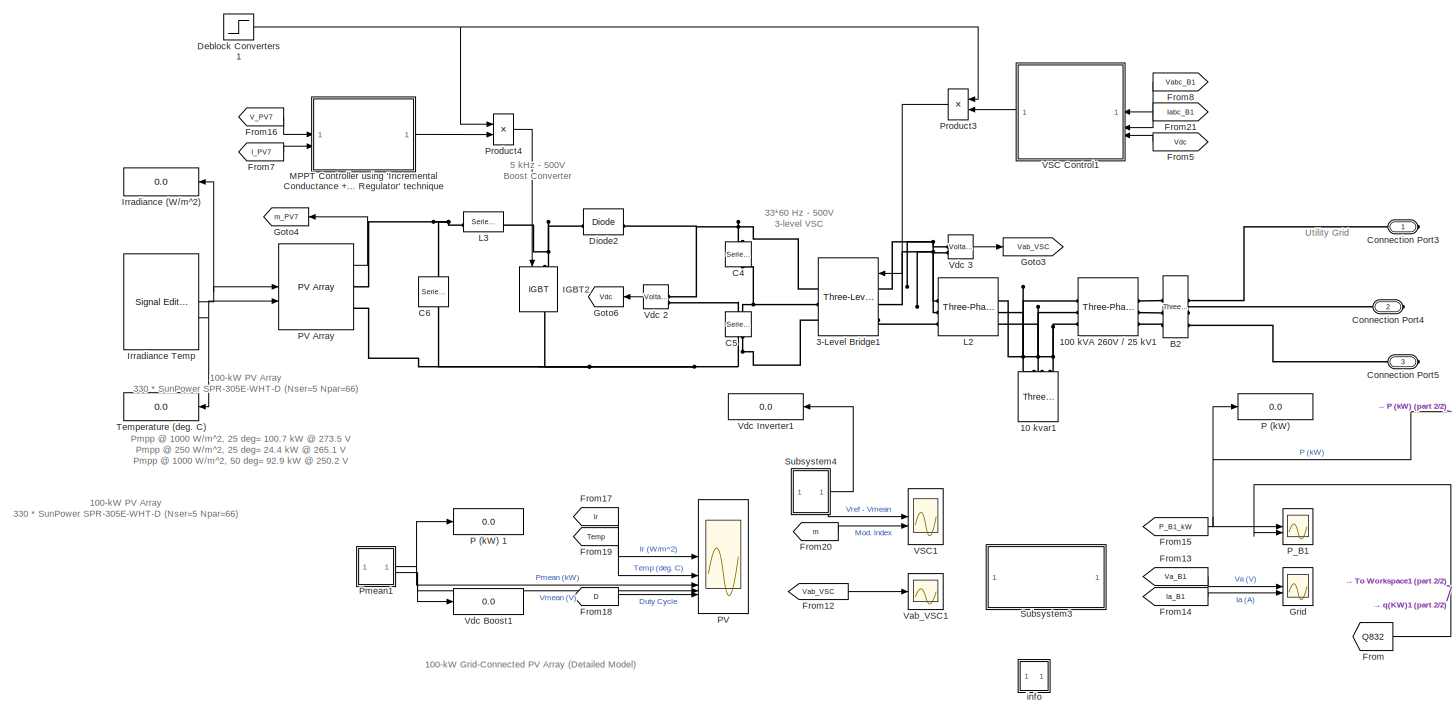
[diagram: PV_832 - part 1/2, most of the canvas]
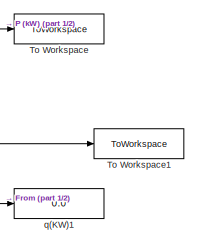
[diagram: PV_832 - part 2/2, bottom right region]
BLOCK [SubSystem] PV_832
BLOCK [Reference] PV_832/10 kvar1  REF=spsThreePhaseSeriesRLCLoadLib/Three-Phase
Series RLC Load
  AttributesFormatString = \n
  NameLocation = right
  SourceBlock = spsThreePhaseSeriesRLCLoadLib/Three-Phase\nSeries RLC Load
  SourceType = Three-Phase Series RLC Load
BLOCK [Reference] PV_832/100 kVA 260V // 25 kV1  REF=spsThreePhaseTransformerTwoWindingsLib/Three-Phase
Transformer
(Two Windings)
  AttributesFormatString = \n
  SourceBlock = spsThreePhaseTransformerTwoWindingsLib/Three-Phase\nTransformer\n(Two Windings)
  SourceType = Three-Phase Transformer (Two Windings)
BLOCK [Reference] PV_832/3-Level Bridge1  REF=spsThreeLevelBridgeLib/Three-Level Bridge
  AttributesFormatString = \n
  SourceBlock = spsThreeLevelBridgeLib/Three-Level Bridge
  SourceType = Three-Level Bridge
BLOCK [Reference] PV_832/B2  REF=spsThreePhaseVIMeasurementLib/Three-Phase
V-I Measurement
  SourceBlock = spsThreePhaseVIMeasurementLib/Three-Phase\nV-I Measurement
  SourceType = Three-Phase VI Measurement
BLOCK [Reference] PV_832/C4  REF=spsSeriesRLCBranchLib/Series RLC Branch
  AttributesFormatString = \n
  NameLocation = left
  SourceBlock = spsSeriesRLCBranchLib/Series RLC Branch
  SourceType = Series RLC Branch
BLOCK [Reference] PV_832/C5  REF=spsSeriesRLCBranchLib/Series RLC Branch
  AttributesFormatString = \n
  NameLocation = left
  SourceBlock = spsSeriesRLCBranchLib/Series RLC Branch
  SourceType = Series RLC Branch
BLOCK [Reference] PV_832/C6  REF=spsSeriesRLCBranchLib/Series RLC Branch
  AttributesFormatString = \n
  NameLocation = left
  SourceBlock = spsSeriesRLCBranchLib/Series RLC Branch
  SourceType = Series RLC Branch
BLOCK [PMIOPort] PV_832/Connection Port3
  Side = Right
BLOCK [PMIOPort] PV_832/Connection Port4
  Port = 2
  Side = Right
BLOCK [PMIOPort] PV_832/Connection Port5
  Port = 3
  Side = Right
BLOCK [Step] PV_832/Deblock Converters1
  SampleTime = 0
  Time = 0.05
BLOCK [Reference] PV_832/Diode2  REF=spsDiodeLib/Diode
  SourceBlock = spsDiodeLib/Diode
  SourceType = Diode
BLOCK [From] PV_832/From
  GotoTag = Q832
  TagVisibility = global
BLOCK [From] PV_832/From12
  CloseFcn = tagdialog Close
  GotoTag = Vab_VSC
  TagVisibility = global
BLOCK [From] PV_832/From13
  CloseFcn = tagdialog Close
  GotoTag = Va_B1
  TagVisibility = global
BLOCK [From] PV_832/From14
  CloseFcn = tagdialog Close
  GotoTag = Ia_B1
  TagVisibility = global
BLOCK [From] PV_832/From15
  CloseFcn = tagdialog Close
  GotoTag = P_B1_kW
  TagVisibility = global
BLOCK [From] PV_832/From16
  CloseFcn = tagdialog Close
  GotoTag = V_PV7
  TagVisibility = global
BLOCK [From] PV_832/From17
  CloseFcn = tagdialog Close
  GotoTag = Ir
BLOCK [From] PV_832/From18
  CloseFcn = tagdialog Close
  GotoTag = D
  TagVisibility = global
BLOCK [From] PV_832/From19
  CloseFcn = tagdialog Close
  GotoTag = Temp
  TagVisibility = global
BLOCK [From] PV_832/From20
  CloseFcn = tagdialog Close
  GotoTag = m
  TagVisibility = global
BLOCK [From] PV_832/From21
  CloseFcn = tagdialog Close
  GotoTag = Iabc_B1
  TagVisibility = global
BLOCK [From] PV_832/From5
  GotoTag = Vdc
  TagVisibility = global
BLOCK [From] PV_832/From7
  CloseFcn = tagdialog Close
  GotoTag = I_PV7
  TagVisibility = global
BLOCK [From] PV_832/From8
  CloseFcn = tagdialog Close
  GotoTag = Vabc_B1
  TagVisibility = global
BLOCK [Goto] PV_832/Goto3
  GotoTag = Vab_VSC
  TagVisibility = global
BLOCK [Goto] PV_832/Goto4
  GotoTag = m_PV7
  TagVisibility = global
BLOCK [Goto] PV_832/Goto6
  GotoTag = Vdc
  TagVisibility = global
BLOCK [Scope] PV_832/Grid
  Floating = off
  NumInputPorts = 2
  ScopeSpecificationString = Simulink.scopes.TimeScopeBlockCfg('CurrentConfiguration', extmgr.ConfigurationSet(extmgr.Configuration('Core','General UI',true),extmgr.Configuration('Core','Source UI',true),extmgr.Configuration('Sources','WiredSimulink',true,'DataLoggingDecimation','20','DataLoggingDecimateData',true,'DataLoggingSaveFormat','Array','DataLoggingVariableName','ScopeData1'),extmgr.Configuration('Visuals','Time Doma...<+2343ch>
BLOCK [Reference] PV_832/IGBT2  REF=spsIGBTLib/IGBT
  NameLocation = left
  SourceBlock = spsIGBTLib/IGBT
  SourceType = IGBT
BLOCK [Display] PV_832/Irradiance (W//m^2)
  Decimation = 1000
  Format = bank
BLOCK [Reference] PV_832/Irradiance Temp  REF=SignalEditorBlockLib/Signal Editor
  SourceBlock = SignalEditorBlockLib/Signal Editor
  SourceType = SignalEditor
  UserDataPersistent = on
BLOCK [Reference] PV_832/L2  REF=spsThreePhaseSeriesRLCBranchLib/Three-Phase
Series RLC Branch
  AttributesFormatString = \n
  SourceBlock = spsThreePhaseSeriesRLCBranchLib/Three-Phase\nSeries RLC Branch
  SourceType = Three-Phase Series RLC Branch
BLOCK [Reference] PV_832/L3  REF=spsSeriesRLCBranchLib/Series RLC Branch
  SourceBlock = spsSeriesRLCBranchLib/Series RLC Branch
  SourceType = Series RLC Branch
BLOCK [SubSystem] PV_832/MPPT Controller using  'Incremental Conductance + Integral Regulator'  technique 
  NameLocation = top
BLOCK [Sum] PV_832/MPPT Controller using  'Incremental Conductance + Integral Regulator'  technique /Add
  IconShape = rectangular
  Inputs = +-
BLOCK [Step] PV_832/MPPT Controller using  'Incremental Conductance + Integral Regulator'  technique /Deblock MPPT
  SampleTime = 0
  Time = 0.4
BLOCK [Constant] PV_832/MPPT Controller using  'Incremental Conductance + Integral Regulator'  technique /Duty Cycle
  NameLocation = top
  Value = Dinit
BLOCK [Goto] PV_832/MPPT Controller using  'Incremental Conductance + Integral Regulator'  technique /Goto7
  GotoTag = D
  TagVisibility = global
BLOCK [Inport] PV_832/MPPT Controller using  'Incremental Conductance + Integral Regulator'  technique /I_PV
  Port = 2
BLOCK [SubSystem] PV_832/MPPT Controller using  'Incremental Conductance + Integral Regulator'  technique /MPPT
BLOCK [Sum] PV_832/MPPT Controller using  'Incremental Conductance + Integral Regulator'  technique /MPPT/Add
  IconShape = rectangular
  Inputs = +-
BLOCK [Sum] PV_832/MPPT Controller using  'Incremental Conductance + Integral Regulator'  technique /MPPT/Add1
  IconShape = rectangular
BLOCK [Constant] PV_832/MPPT Controller using  'Incremental Conductance + Integral Regulator'  technique /MPPT/Constant
  Value = 0
BLOCK [Constant] PV_832/MPPT Controller using  'Incremental Conductance + Integral Regulator'  technique /MPPT/Constant1
  Value = 0
BLOCK [DeadZone] PV_832/MPPT Controller using  'Incremental Conductance + Integral Regulator'  technique /MPPT/Dead Zone
  LowerValue = -0.05
  UpperValue = 0.05
BLOCK [Outport] PV_832/MPPT Controller using  'Incremental Conductance + Integral Regulator'  technique /MPPT/Delta_D
  VectorParamsAs1DForOutWhenUnconnected = off
BLOCK [DiscreteIntegrator] PV_832/MPPT Controller using  'Incremental Conductance + Integral Regulator'  technique /MPPT/Discrete-Time Integrator
  ICPrevOutput = DiscIntNeverNeededParam
  ICPrevScaledInput = DiscIntNeverNeededParam
  LimitOutput = on
  LowerSaturationLimit = -1
  SampleTime = 5e-05
  UpperSaturationLimit = 1
BLOCK [Reference] PV_832/MPPT Controller using  'Incremental Conductance + Integral Regulator'  technique /MPPT/Fourier  REF=spsFourierLib/Fourier
  SourceBlock = spsFourierLib/Fourier
  SourceType = Fourier
BLOCK [Reference] PV_832/MPPT Controller using  'Incremental Conductance + Integral Regulator'  technique /MPPT/Fourier1  REF=spsFourierLib/Fourier
  SourceBlock = spsFourierLib/Fourier
  SourceType = Fourier
BLOCK [Goto] PV_832/MPPT Controller using  'Incremental Conductance + Integral Regulator'  technique /MPPT/Goto1
  GotoTag = Vmean_PV
  TagVisibility = global
BLOCK [Goto] PV_832/MPPT Controller using  'Incremental Conductance + Integral Regulator'  technique /MPPT/Goto2
  GotoTag = dI_dV_MPPT
  TagVisibility = global
BLOCK [Goto] PV_832/MPPT Controller using  'Incremental Conductance + Integral Regulator'  technique /MPPT/Goto3
  GotoTag = I_V_MPPT
  TagVisibility = global
BLOCK [Goto] PV_832/MPPT Controller using  'Incremental Conductance + Integral Regulator'  technique /MPPT/Goto5
  GotoTag = Imean_PV
  TagVisibility = global
BLOCK [Inport] PV_832/MPPT Controller using  'Incremental Conductance + Integral Regulator'  technique /MPPT/I_PV
  Port = 2
BLOCK [Gain] PV_832/MPPT Controller using  'Incremental Conductance + Integral Regulator'  technique /MPPT/MPPT Gain
  Gain = 5
BLOCK [Reference] PV_832/MPPT Controller using  'Incremental Conductance + Integral Regulator'  technique /MPPT/Mean  REF=spsMeanLib/Mean
  SourceBlock = spsMeanLib/Mean
  SourceType = Mean
BLOCK [Reference] PV_832/MPPT Controller using  'Incremental Conductance + Integral Regulator'  technique /MPPT/Mean1  REF=spsMeanLib/Mean
  SourceBlock = spsMeanLib/Mean
  SourceType = Mean
BLOCK [Saturate] PV_832/MPPT Controller using  'Incremental Conductance + Integral Regulator'  technique /MPPT/Saturation
  LowerLimit = eps
  NameLocation = right
  UpperLimit = inf
BLOCK [Saturate] PV_832/MPPT Controller using  'Incremental Conductance + Integral Regulator'  technique /MPPT/Saturation1
  LowerLimit = eps
  NameLocation = right
  UpperLimit = inf
BLOCK [Switch] PV_832/MPPT Controller using  'Incremental Conductance + Integral Regulator'  technique /MPPT/Switch
  InputSameDT = off
  SaturateOnIntegerOverflow = off
  Threshold = 0.5
BLOCK [Switch] PV_832/MPPT Controller using  'Incremental Conductance + Integral Regulator'  technique /MPPT/Switch1
  InputSameDT = off
  SaturateOnIntegerOverflow = off
  Threshold = 0.5
BLOCK [Trigonometry] PV_832/MPPT Controller using  'Incremental Conductance + Integral Regulator'  technique /MPPT/Trigonometric Function
  Operator = cos
BLOCK [Inport] PV_832/MPPT Controller using  'Incremental Conductance + Integral Regulator'  technique /MPPT/V_PV
BLOCK [Gain] PV_832/MPPT Controller using  'Incremental Conductance + Integral Regulator'  technique /MPPT/deg2rad
  Gain = pi/180
BLOCK [Product] PV_832/MPPT Controller using  'Incremental Conductance + Integral Regulator'  technique /MPPT/div
  Inputs = */
  RndMeth = Zero
BLOCK [Product] PV_832/MPPT Controller using  'Incremental Conductance + Integral Regulator'  technique /MPPT/div1
  Inputs = **
  RndMeth = Zero
BLOCK [Product] PV_832/MPPT Controller using  'Incremental Conductance + Integral Regulator'  technique /MPPT/div2
  Inputs = */
  RndMeth = Zero
BLOCK [Inport] PV_832/MPPT Controller using  'Incremental Conductance + Integral Regulator'  technique /MPPT/on//off
  Port = 3
BLOCK [Reference] PV_832/MPPT Controller using  'Incremental Conductance + Integral Regulator'  technique /PWM Generator (DC-DC)  REF=spsPWMGeneratorDCDCLib/PWM Generator
(DC-DC)
  SourceBlock = spsPWMGeneratorDCDCLib/PWM Generator\n(DC-DC)
  SourceType = PWM Generator (DC-DC)
BLOCK [Outport] PV_832/MPPT Controller using  'Incremental Conductance + Integral Regulator'  technique /Pulses
  VectorParamsAs1DForOutWhenUnconnected = off
BLOCK [Saturate] PV_832/MPPT Controller using  'Incremental Conductance + Integral Regulator'  technique /Saturation
  LowerLimit = 0
  UpperLimit = 1
BLOCK [Inport] PV_832/MPPT Controller using  'Incremental Conductance + Integral Regulator'  technique /V_PV
BLOCK [Display] PV_832/P (kW)
  Decimation = 2000
  Format = bank
BLOCK [Display] PV_832/P (kW) 1
  Decimation = 2000
  Format = bank
BLOCK [Scope] PV_832/PV
  Floating = off
  NumInputPorts = 5
  ScopeSpecificationString = Simulink.scopes.TimeScopeBlockCfg('CurrentConfiguration', extmgr.ConfigurationSet(extmgr.Configuration('Core','General UI',true),extmgr.Configuration('Core','Source UI',true),extmgr.Configuration('Sources','WiredSimulink',true,'DataLoggingDecimation','100','DataLoggingDecimateData',true,'DataLoggingSaveFormat','Array','DataLoggingVariableName','ScopeData2'),extmgr.Configuration('Visuals','Time Dom...<+4462ch>
BLOCK [Reference] PV_832/PV Array  REF=spsPVArrayLib/PV Array
  SourceBlock = spsPVArrayLib/PV Array
  SourceType = PV array
BLOCK [Scope] PV_832/P_B1
  Floating = off
  NumInputPorts = 2
  ScopeSpecificationString = Simulink.scopes.TimeScopeBlockCfg('CurrentConfiguration', extmgr.ConfigurationSet(extmgr.Configuration('Core','General UI',true),extmgr.Configuration('Core','Source UI',true),extmgr.Configuration('Sources','WiredSimulink',true,'DataLoggingDecimation','100','DataLoggingDecimateData',true,'DataLoggingSaveFormat','Array','DataLoggingVariableName','ScopeData3'),extmgr.Configuration('Visuals','Time Dom...<+1826ch>
BLOCK [SubSystem] PV_832/Pmean1
BLOCK [From] PV_832/Pmean1/From7
  GotoTag = Vmean_PV
  TagVisibility = global
BLOCK [From] PV_832/Pmean1/From8
  GotoTag = Imean_PV
  TagVisibility = global
BLOCK [Outport] PV_832/Pmean1/P
  VectorParamsAs1DForOutWhenUnconnected = off
BLOCK [Product] PV_832/Pmean1/Product
  RndMeth = Zero
BLOCK [Outport] PV_832/Pmean1/V
  Port = 2
  VectorParamsAs1DForOutWhenUnconnected = off
BLOCK [Gain] PV_832/Pmean1/WkW
  Gain = 1/1000
BLOCK [Product] PV_832/Product3
  RndMeth = Zero
BLOCK [Product] PV_832/Product4
  RndMeth = Zero
BLOCK [SubSystem] PV_832/Subsystem3
  NameLocation = top
BLOCK [BusSelector] PV_832/Subsystem3/Bus Selector
  OutputSignals = V_PV,I_PV,I_diode,Irradiance (W/m2),Temperature (deg C)
BLOCK [Demux] PV_832/Subsystem3/Demux
  Outputs = 2
BLOCK [From] PV_832/Subsystem3/From1
  GotoTag = m_PV7
  TagVisibility = global
BLOCK [From] PV_832/Subsystem3/From12
  CloseFcn = tagdialog Close
  GotoTag = Iabc_B1
  TagVisibility = global
BLOCK [From] PV_832/Subsystem3/From13
  GotoTag = Idiode_PV7
  TagVisibility = global
BLOCK [From] PV_832/Subsystem3/From3
  CloseFcn = tagdialog Close
  GotoTag = Vabc_B1
  TagVisibility = global
BLOCK [From] PV_832/Subsystem3/From4
  CloseFcn = tagdialog Close
  GotoTag = IdIq_prim
  TagVisibility = global
BLOCK [From] PV_832/Subsystem3/From5
  CloseFcn = tagdialog Close
  GotoTag = Id_ref
  TagVisibility = global
BLOCK [From] PV_832/Subsystem3/From6
  GotoTag = dI_dV_MPPT
  TagVisibility = global
BLOCK [From] PV_832/Subsystem3/From7
  GotoTag = I_V_MPPT
  TagVisibility = global
BLOCK [From] PV_832/Subsystem3/From8
  GotoTag = I_PV7
  TagVisibility = global
BLOCK [From] PV_832/Subsystem3/From9
  GotoTag = V_PV7
  TagVisibility = global
BLOCK [Gain] PV_832/Subsystem3/Gain
  Gain = -1
BLOCK [Goto] PV_832/Subsystem3/Goto
  GotoTag = Q832
  TagVisibility = global
BLOCK [Goto] PV_832/Subsystem3/Goto1
  GotoTag = Va_B1
  TagVisibility = global
BLOCK [Goto] PV_832/Subsystem3/Goto2
  GotoTag = Ia_B1
  TagVisibility = global
BLOCK [Goto] PV_832/Subsystem3/Goto3
  GotoTag = V_PV7
  TagVisibility = global
BLOCK [Goto] PV_832/Subsystem3/Goto4
  GotoTag = I_PV7
  TagVisibility = global
BLOCK [Goto] PV_832/Subsystem3/Goto5
  GotoTag = P_B1_kW
  TagVisibility = global
BLOCK [Goto] PV_832/Subsystem3/Goto6
  GotoTag = Idiode_PV7
  TagVisibility = global
BLOCK [Goto] PV_832/Subsystem3/Goto7
  GotoTag = Temp7
  TagVisibility = global
BLOCK [Goto] PV_832/Subsystem3/Goto8
  GotoTag = Ir7
  TagVisibility = global
BLOCK [Scope] PV_832/Subsystem3/IdIq (pu) VSC Control
  Floating = off
  NumInputPorts = 2
  ScopeSpecificationString = Simulink.scopes.TimeScopeBlockCfg('CurrentConfiguration', extmgr.ConfigurationSet(extmgr.Configuration('Core','General UI',true),extmgr.Configuration('Core','Source UI',true),extmgr.Configuration('Sources','WiredSimulink',true,'DataLoggingDecimation','100','DataLoggingDecimateData',true,'DataLoggingSaveFormat','Array'),extmgr.Configuration('Visuals','Time Domain',true,'SerializedDisplays',{struct(...<+2299ch>
BLOCK [Scope] PV_832/Subsystem3/MPPT Algorithm
  Floating = off
  NumInputPorts = 1
  ScopeSpecificationString = Simulink.scopes.TimeScopeBlockCfg('CurrentConfiguration', extmgr.ConfigurationSet(extmgr.Configuration('Core','General UI',true),extmgr.Configuration('Core','Source UI',true),extmgr.Configuration('Sources','WiredSimulink',true,'DataLoggingDecimation','100','DataLoggingDecimateData',true,'DataLoggingSaveFormat','Array'),extmgr.Configuration('Visuals','Time Domain',true,'DisplayPropertyDefaults',str...<+873ch>
BLOCK [Mux] PV_832/Subsystem3/Mux
  DisplayOption = bar
  Inputs = 2
BLOCK [Mux] PV_832/Subsystem3/Mux2
  DisplayOption = bar
  Inputs = 2
BLOCK [Scope] PV_832/Subsystem3/PV
  Floating = off
  NumInputPorts = 3
  ScopeSpecificationString = Simulink.scopes.TimeScopeBlockCfg('CurrentConfiguration', extmgr.ConfigurationSet(extmgr.Configuration('Core','General UI',true),extmgr.Configuration('Core','Source UI',true),extmgr.Configuration('Sources','WiredSimulink',true,'DataLoggingDecimation','100','DataLoggingDecimateData',true,'DataLoggingSaveFormat','Array'),extmgr.Configuration('Visuals','Time Domain',true,'SerializedDisplays',{struct(...<+2976ch>
BLOCK [Reference] PV_832/Subsystem3/Power (Positive-Sequence)  REF=spsPowerPositiveSequenceLib/Power
(Positive-Sequence)
  SourceBlock = spsPowerPositiveSequenceLib/Power\n(Positive-Sequence)
  SourceType = Power (Positive-Sequence)
BLOCK [Selector] PV_832/Subsystem3/Selector
  IndexOptions = Index vector (dialog)
  Indices = [1]
  InputPortWidth = 3
  OutputSizes = 1
BLOCK [Selector] PV_832/Subsystem3/Selector1
  IndexOptions = Index vector (dialog)
  Indices = [1]
  InputPortWidth = 3
  OutputSizes = 1
BLOCK [Gain] PV_832/Subsystem3/W2kW
  Gain = 1/1000
BLOCK [Gain] PV_832/Subsystem3/W2kW1
  Gain = 1/1000
BLOCK [SubSystem] PV_832/Subsystem4
BLOCK [From] PV_832/Subsystem4/From7
  CloseFcn = tagdialog Close
  GotoTag = Vdc
  TagVisibility = global
BLOCK [From] PV_832/Subsystem4/From8
  CloseFcn = tagdialog Close
  GotoTag = Vdc_ref
  TagVisibility = global
BLOCK [Reference] PV_832/Subsystem4/Mean  REF=spsMeanLib/Mean
  SourceBlock = spsMeanLib/Mean
  SourceType = Mean
BLOCK [Mux] PV_832/Subsystem4/Mux1
  DisplayOption = bar
  Inputs = 2
BLOCK [Outport] PV_832/Subsystem4/Vm
  VectorParamsAs1DForOutWhenUnconnected = off
BLOCK [Outport] PV_832/Subsystem4/VrVm
  Port = 2
  VectorParamsAs1DForOutWhenUnconnected = off
BLOCK [Display] PV_832/Temperature (deg. C)
  Decimation = 1000
  Format = bank
BLOCK [ToWorkspace] PV_832/To Workspace
  FixptAsFi = on
  MaxDataPoints = inf
  SampleTime = -1
  SaveFormat = Timeseries
  VariableName = P_PV_832
BLOCK [ToWorkspace] PV_832/To Workspace1
  FixptAsFi = on
  MaxDataPoints = inf
  SampleTime = -1
  SaveFormat = Timeseries
  VariableName = Q_PV_832
BLOCK [SubSystem] PV_832/VSC Control1
  NameLocation = top
BLOCK [SubSystem] PV_832/VSC Control1/Current Regulator
BLOCK [Sum] PV_832/VSC Control1/Current Regulator/Add1
  IconShape = rectangular
  Inputs = ++-
BLOCK [Sum] PV_832/VSC Control1/Current Regulator/Add2
  IconShape = rectangular
BLOCK [Sum] PV_832/VSC Control1/Current Regulator/Add3
  IconShape = rectangular
  Inputs = +++
BLOCK [Demux] PV_832/VSC Control1/Current Regulator/Demux
  Outputs = 2
BLOCK [Demux] PV_832/VSC Control1/Current Regulator/Demux1
  Outputs = 2
BLOCK [Inport] PV_832/VSC Control1/Current Regulator/IdIq_mes
  Port = 2
  PortDimensions = 2
BLOCK [Inport] PV_832/VSC Control1/Current Regulator/IdIq_ref
  Port = 3
  PortDimensions = 2
BLOCK [Gain] PV_832/VSC Control1/Current Regulator/Ltot_pu1
  Gain = Ltot_pu
  OutDataTypeStr = Inherit: Same as input
  ParamDataTypeStr = Inherit: Same as input
  SaturateOnIntegerOverflow = on
BLOCK [Gain] PV_832/VSC Control1/Current Regulator/Ltot_pu2
  Gain = Ltot_pu
  OutDataTypeStr = Inherit: Same as input
  ParamDataTypeStr = Inherit: Same as input
  SaturateOnIntegerOverflow = on
BLOCK [Mux] PV_832/VSC Control1/Current Regulator/Mux
  DisplayOption = bar
  Inputs = 2
BLOCK [Reference] PV_832/VSC Control1/Current Regulator/PI  REF=slpidlib/PID Controller
  SourceBlock = slpidlib/PID Controller
  SourceType = PID 1dof
BLOCK [Scope] PV_832/VSC Control1/Current Regulator/PI_Ireg1
  Floating = off
  NumInputPorts = 1
  ScopeSpecificationString = Simulink.scopes.TimeScopeBlockCfg('CurrentConfiguration', extmgr.ConfigurationSet(extmgr.Configuration('Core','General UI',true),extmgr.Configuration('Core','Source UI',true),extmgr.Configuration('Sources','WiredSimulink',true,'DataLoggingSaveFormat','Array','DataLoggingDecimation','1','DataLoggingDecimateData',true),extmgr.Configuration('Visuals','Time Domain',true,'DisplayPropertyDefaults',struc...<+826ch>
BLOCK [Gain] PV_832/VSC Control1/Current Regulator/Rtot_pu1
  Gain = Rtot_pu
  NameLocation = top
  OutDataTypeStr = Inherit: Same as input
  ParamDataTypeStr = Inherit: Same as input
  SaturateOnIntegerOverflow = on
BLOCK [Gain] PV_832/VSC Control1/Current Regulator/Rtot_pu5
  Gain = Rtot_pu
  NameLocation = top
  OutDataTypeStr = Inherit: Same as input
  ParamDataTypeStr = Inherit: Same as input
  SaturateOnIntegerOverflow = on
BLOCK [Saturate] PV_832/VSC Control1/Current Regulator/Saturation
  LowerLimit = -2
  UpperLimit = 2
BLOCK [Sum] PV_832/VSC Control1/Current Regulator/Sum
  Inputs = |-+
BLOCK [Outport] PV_832/VSC Control1/Current Regulator/VdVq_conv
  VectorParamsAs1DForOutWhenUnconnected = off
BLOCK [Inport] PV_832/VSC Control1/Current Regulator/VdVq_mes
  PortDimensions = 2
BLOCK [Inport] PV_832/VSC Control1/Iabc_prim
  Port = 2
  PortDimensions = 3
BLOCK [Constant] PV_832/VSC Control1/Iq_ref
  Value = -0.2
BLOCK [Mux] PV_832/VSC Control1/Mux
  DisplayOption = bar
  Inputs = 2
BLOCK [SubSystem] PV_832/VSC Control1/PLL & Measurements
BLOCK [Goto] PV_832/VSC Control1/PLL & Measurements/Goto3
  GotoTag = IdIq_prim
  TagVisibility = global
BLOCK [Inport] PV_832/VSC Control1/PLL & Measurements/Iabc_prim
  Port = 2
BLOCK [Outport] PV_832/VSC Control1/PLL & Measurements/IdIq_prim
  Port = 3
  VectorParamsAs1DForOutWhenUnconnected = off
BLOCK [Reference] PV_832/VSC Control1/PLL & Measurements/PLL (3ph)  REF=spsPLL3phLib/PLL
(3ph)
  SourceBlock = spsPLL3phLib/PLL\n(3ph)
  SourceType = PLL (3ph)
BLOCK [Selector] PV_832/VSC Control1/PLL & Measurements/Selector1
  IndexOptions = Index vector (dialog)
  Indices = [1 2]
  InputPortWidth = 3
  OutputSizes = 1
BLOCK [Selector] PV_832/VSC Control1/PLL & Measurements/Selector2
  IndexOptions = Index vector (dialog)
  Indices = [1 2]
  InputPortWidth = 3
  OutputSizes = 1
BLOCK [Terminator] PV_832/VSC Control1/PLL & Measurements/Terminator
BLOCK [Gain] PV_832/VSC Control1/PLL & Measurements/V->pu
  Gain = 1/(Vnom_prim*sqrt(2)/sqrt(3))
  OutDataTypeStr = Inherit: Same as input
  ParamDataTypeStr = Inherit: Same as input
  SaturateOnIntegerOverflow = on
BLOCK [Gain] PV_832/VSC Control1/PLL & Measurements/V->pu1
  Gain = Vnom_prim*sqrt(3)/Pnom/sqrt(2)
  OutDataTypeStr = Inherit: Same as input
  ParamDataTypeStr = Inherit: Same as input
  SaturateOnIntegerOverflow = on
BLOCK [Inport] PV_832/VSC Control1/PLL & Measurements/Vabc_prim
BLOCK [Outport] PV_832/VSC Control1/PLL & Measurements/VdVq_prim
  Port = 2
  VectorParamsAs1DForOutWhenUnconnected = off
BLOCK [Reference] PV_832/VSC Control1/PLL & Measurements/abc to dq0  REF=spsabctodq0Lib/abc to dq0
  SourceBlock = spsabctodq0Lib/abc to dq0
  SourceType = abc to dq0 Transformation
BLOCK [Reference] PV_832/VSC Control1/PLL & Measurements/abc to dq1  REF=spsabctodq0Lib/abc to dq0
  SourceBlock = spsabctodq0Lib/abc to dq0
  SourceType = abc to dq0 Transformation
BLOCK [Outport] PV_832/VSC Control1/PLL & Measurements/wt
  VectorParamsAs1DForOutWhenUnconnected = off
BLOCK [Reference] PV_832/VSC Control1/PWM Generator (3-Level)  REF=spsPWMGenerator3LevelLib/PWM Generator
(3-Level)
  SourceBlock = spsPWMGenerator3LevelLib/PWM Generator\n(3-Level)
  SourceType = PWM Generator (3-Level)
BLOCK [Outport] PV_832/VSC Control1/Pulses
  NameLocation = top
  VectorParamsAs1DForOutWhenUnconnected = off
BLOCK [SubSystem] PV_832/VSC Control1/Uabc_ref Generation max (m) = 1
BLOCK [Sum] PV_832/VSC Control1/Uabc_ref Generation max (m) = 1/Add1
  IconShape = rectangular
  Inputs = ++++
BLOCK [Sum] PV_832/VSC Control1/Uabc_ref Generation max (m) = 1/Add2
  IconShape = rectangular
BLOCK [ComplexToMagnitudeAngle] PV_832/VSC Control1/Uabc_ref Generation max (m) = 1/Complex to Magnitude-Angle
BLOCK [Constant] PV_832/VSC Control1/Uabc_ref Generation max (m) = 1/Constant
  Value = -pi/6
BLOCK [Constant] PV_832/VSC Control1/Uabc_ref Generation max (m) = 1/Constant1
  Value = Vnom_dc
BLOCK [Constant] PV_832/VSC Control1/Uabc_ref Generation max (m) = 1/Constant2
  Value = [ 0  -2*pi/3  2*pi/3  ]
BLOCK [Constant] PV_832/VSC Control1/Uabc_ref Generation max (m) = 1/Constant3
  Value = Vnom_sec*sqrt(2)/sqrt(3)
BLOCK [Constant] PV_832/VSC Control1/Uabc_ref Generation max (m) = 1/Constant4
  Value = Ts*Fnom*(2*pi)
BLOCK [Demux] PV_832/VSC Control1/Uabc_ref Generation max (m) = 1/Demux1
  Outputs = 2
BLOCK [Gain] PV_832/VSC Control1/Uabc_ref Generation max (m) = 1/Gain1
  Gain = 1/2
BLOCK [Goto] PV_832/VSC Control1/Uabc_ref Generation max (m) = 1/Goto1
  GotoTag = m
  TagVisibility = global
BLOCK [Product] PV_832/VSC Control1/Uabc_ref Generation max (m) = 1/Product
  Inputs = */
  RndMeth = Zero
BLOCK [Product] PV_832/VSC Control1/Uabc_ref Generation max (m) = 1/Product1
  Inputs = */
  RndMeth = Zero
BLOCK [Product] PV_832/VSC Control1/Uabc_ref Generation max (m) = 1/Product2
  Inputs = **
  RndMeth = Zero
BLOCK [RealImagToComplex] PV_832/VSC Control1/Uabc_ref Generation max (m) = 1/Real-Imag to Complex
BLOCK [Saturate] PV_832/VSC Control1/Uabc_ref Generation max (m) = 1/Saturation
  LowerLimit = 0
  UpperLimit = 1
BLOCK [Trigonometry] PV_832/VSC Control1/Uabc_ref Generation max (m) = 1/Trigonometric Function
BLOCK [Outport] PV_832/VSC Control1/Uabc_ref Generation max (m) = 1/Uabc_ref
  VectorParamsAs1DForOutWhenUnconnected = off
BLOCK [Inport] PV_832/VSC Control1/Uabc_ref Generation max (m) = 1/VdVq_conv
  Port = 2
BLOCK [Inport] PV_832/VSC Control1/Uabc_ref Generation max (m) = 1/wt
BLOCK [UnitDelay] PV_832/VSC Control1/Unit Delay
  HasFrameUpgradeWarning = on
  SampleTime = 5e-05
BLOCK [SubSystem] PV_832/VSC Control1/VDC Regulator
BLOCK [Goto] PV_832/VSC Control1/VDC Regulator/Goto1
  GotoTag = Vdc_ref
  TagVisibility = global
BLOCK [Goto] PV_832/VSC Control1/VDC Regulator/Goto4
  GotoTag = Id_ref
  TagVisibility = global
BLOCK [Outport] PV_832/VSC Control1/VDC Regulator/Id_ref
  InitialOutput = 0
  SampleTime = Ts
  VectorParamsAs1DForOutWhenUnconnected = off
BLOCK [Reference] PV_832/VSC Control1/VDC Regulator/PI  REF=slpidlib/PID Controller
  SourceBlock = slpidlib/PID Controller
  SourceType = PID 1dof
BLOCK [Gain] PV_832/VSC Control1/VDC Regulator/Rtot_pu3
  Gain = 1/Vnom_dc
  OutDataTypeStr = Inherit: Same as input
  ParamDataTypeStr = Inherit: Same as input
  SaturateOnIntegerOverflow = on
BLOCK [Sum] PV_832/VSC Control1/VDC Regulator/Sum
  Inputs = |+-
BLOCK [Inport] PV_832/VSC Control1/VDC Regulator/Vdc_mes
  PortDimensions = 1
BLOCK [Inport] PV_832/VSC Control1/VDC Regulator/Vdc_ref
  Port = 2
  PortDimensions = 1
BLOCK [Inport] PV_832/VSC Control1/Vabc_prim
  PortDimensions = 3
BLOCK [Inport] PV_832/VSC Control1/Vdc_mes
  Port = 3
  PortDimensions = 1
BLOCK [Constant] PV_832/VSC Control1/Vdc_ref1
  Value = Vdc_ref
BLOCK [Scope] PV_832/VSC1
  Floating = off
  NumInputPorts = 2
  ScopeSpecificationString = Simulink.scopes.TimeScopeBlockCfg('CurrentConfiguration', extmgr.ConfigurationSet(extmgr.Configuration('Core','General UI',true),extmgr.Configuration('Core','Source UI',true),extmgr.Configuration('Sources','WiredSimulink',true,'DataLoggingDecimation','100','DataLoggingDecimateData',true,'DataLoggingSaveFormat','Array','DataLoggingVariableName','ScopeData4'),extmgr.Configuration('Visuals','Time Dom...<+2342ch>
BLOCK [Scope] PV_832/Vab_VSC1
  Floating = off
  NumInputPorts = 1
  ScopeSpecificationString = Simulink.scopes.TimeScopeBlockCfg('CurrentConfiguration', extmgr.ConfigurationSet(extmgr.Configuration('Core','General UI',true),extmgr.Configuration('Core','Source UI',true),extmgr.Configuration('Sources','WiredSimulink',true,'DataLoggingDecimation','10','DataLoggingDecimateData',true,'DataLoggingSaveFormat','Array','DataLoggingVariableName','ScopeData5'),extmgr.Configuration('Visuals','Time Doma...<+866ch>
BLOCK [Reference] PV_832/Vdc 2  REF=spsVoltageMeasurementLib/Voltage Measurement
  AttributesFormatString = \n
  NameLocation = top
  SourceBlock = spsVoltageMeasurementLib/Voltage Measurement
  SourceType = Voltage Measurement
  Tag = PoWeRsYsTeMmEaSuReMeNt
BLOCK [Reference] PV_832/Vdc 3  REF=spsVoltageMeasurementLib/Voltage Measurement
  AttributesFormatString = \n
  NameLocation = top
  SourceBlock = spsVoltageMeasurementLib/Voltage Measurement
  SourceType = Voltage Measurement
  Tag = PoWeRsYsTeMmEaSuReMeNt
BLOCK [Display] PV_832/Vdc Boost1
  Decimation = 2000
  Format = bank
BLOCK [Display] PV_832/Vdc Inverter1
  Decimation = 2000
  Format = bank
BLOCK [SubSystem] PV_832/info
  OpenFcn = showExample("simscapeelectricalsps/PVArrayGridExample")
BLOCK [Display] PV_832/q(KW)1
  Decimation = 1
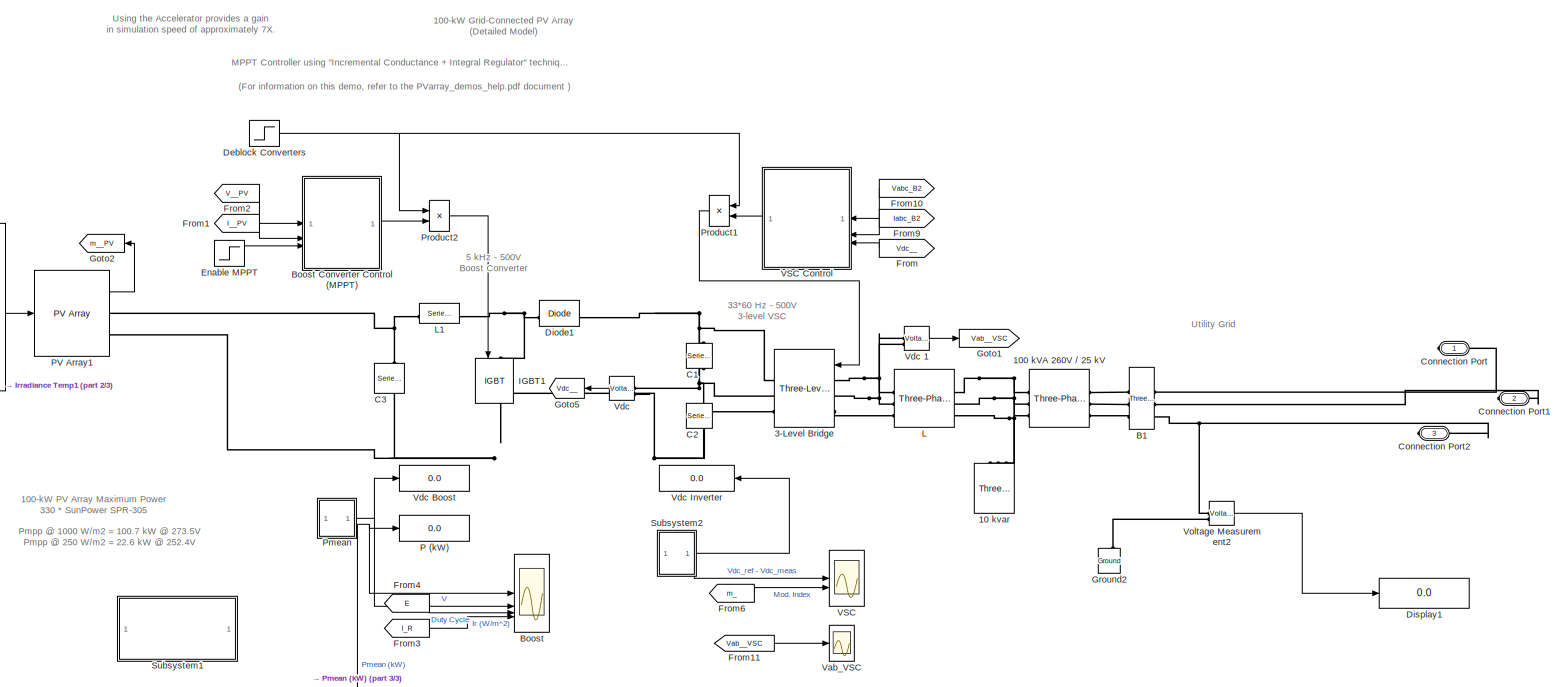
[diagram: PV_840 - part 1/3, full width, middle band]
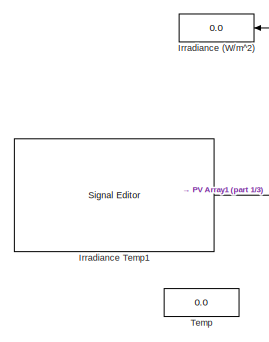
[diagram: PV_840 - part 2/3, middle left region]
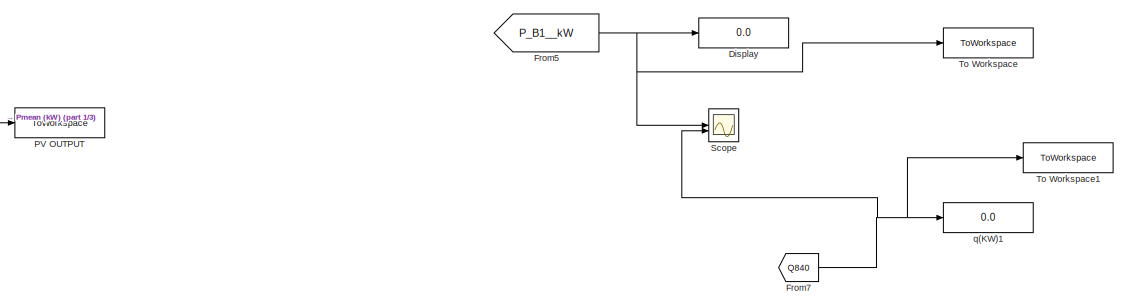
[diagram: PV_840 - part 3/3, bottom right region]
BLOCK [SubSystem] PV_840
BLOCK [Reference] PV_840/10 kvar  REF=spsThreePhaseSeriesRLCLoadLib/Three-Phase
Series RLC Load
  AttributesFormatString = \n
  NameLocation = right
  SourceBlock = spsThreePhaseSeriesRLCLoadLib/Three-Phase\nSeries RLC Load
  SourceType = Three-Phase Series RLC Load
BLOCK [Reference] PV_840/100 kVA 260V // 25 kV  REF=spsThreePhaseTransformerTwoWindingsLib/Three-Phase
Transformer
(Two Windings)
  AttributesFormatString = \n
  SourceBlock = spsThreePhaseTransformerTwoWindingsLib/Three-Phase\nTransformer\n(Two Windings)
  SourceType = Three-Phase Transformer (Two Windings)
BLOCK [Reference] PV_840/3-Level Bridge  REF=spsThreeLevelBridgeLib/Three-Level Bridge
  AttributesFormatString = \n
  SourceBlock = spsThreeLevelBridgeLib/Three-Level Bridge
  SourceType = Three-Level Bridge
BLOCK [Reference] PV_840/B1  REF=spsThreePhaseVIMeasurementLib/Three-Phase
V-I Measurement
  SourceBlock = spsThreePhaseVIMeasurementLib/Three-Phase\nV-I Measurement
  SourceType = Three-Phase VI Measurement
BLOCK [Scope] PV_840/Boost
  Floating = off
  NumInputPorts = 4
  ScopeSpecificationString = Simulink.scopes.TimeScopeBlockCfg('CurrentConfiguration', extmgr.ConfigurationSet(extmgr.Configuration('Core','General UI',true),extmgr.Configuration('Core','Source UI',true),extmgr.Configuration('Sources','WiredSimulink',true,'DataLogging',true,'DataLoggingVariableName','Pmean_840','DataLoggingSaveFormat','StructureWithTime','DataLoggingDecimation','100','DataLoggingDecimateData',true,'SampleTime...<+3770ch>
BLOCK [SubSystem] PV_840/Boost Converter Control (MPPT)
  NameLocation = top
BLOCK [Sum] PV_840/Boost Converter Control (MPPT)/Add
  IconShape = rectangular
  Inputs = +-
BLOCK [Inport] PV_840/Boost Converter Control (MPPT)/Enable
  Port = 3
BLOCK [Goto] PV_840/Boost Converter Control (MPPT)/Goto7
  GotoTag = E
  TagVisibility = global
BLOCK [Inport] PV_840/Boost Converter Control (MPPT)/I_PV
  Port = 2
BLOCK [Constant] PV_840/Boost Converter Control (MPPT)/Initial Duty Cycle
  NameLocation = top
  Value = 0.5
BLOCK [SubSystem] PV_840/Boost Converter Control (MPPT)/MPPT
BLOCK [Sum] PV_840/Boost Converter Control (MPPT)/MPPT/Add1
  Inputs = |++
BLOCK [Sum] PV_840/Boost Converter Control (MPPT)/MPPT/Add2
  IconShape = rectangular
  Inputs = +-
BLOCK [Sum] PV_840/Boost Converter Control (MPPT)/MPPT/Add3
  IconShape = rectangular
  Inputs = +-
BLOCK [Reference] PV_840/Boost Converter Control (MPPT)/MPPT/Compare To Zero  REF=simulink/Logic and Bit
Operations/Compare
To Zero
  SourceBlock = simulink/Logic and Bit\nOperations/Compare\nTo Zero
  SourceType = Compare To Zero
BLOCK [Constant] PV_840/Boost Converter Control (MPPT)/MPPT/Constant
  Value = 0
BLOCK [Constant] PV_840/Boost Converter Control (MPPT)/MPPT/Constant1
  Value = 0
BLOCK [Constant] PV_840/Boost Converter Control (MPPT)/MPPT/Constant2
  Value = 1e-6
BLOCK [DeadZone] PV_840/Boost Converter Control (MPPT)/MPPT/Dead Zone
  LowerValue = -0.02
  UpperValue = +0.02
BLOCK [Outport] PV_840/Boost Converter Control (MPPT)/MPPT/Delta_D
BLOCK [DiscreteIntegrator] PV_840/Boost Converter Control (MPPT)/MPPT/Discrete-Time Integrator
  ICPrevOutput = DiscIntNeverNeededParam
  ICPrevScaledInput = DiscIntNeverNeededParam
  LimitOutput = on
  LowerSaturationLimit = -1
  SampleTime = 5e-05
  UpperSaturationLimit = 1
  gainval = 1
BLOCK [Goto] PV_840/Boost Converter Control (MPPT)/MPPT/Goto2
  GotoTag = dI_dV__MPPT
  TagVisibility = global
BLOCK [Goto] PV_840/Boost Converter Control (MPPT)/MPPT/Goto3
  GotoTag = I_V__MPPT
  TagVisibility = global
BLOCK [Inport] PV_840/Boost Converter Control (MPPT)/MPPT/I_PV
  Port = 2
BLOCK [Gain] PV_840/Boost Converter Control (MPPT)/MPPT/Ki Gain
  Gain = 7
BLOCK [Saturate] PV_840/Boost Converter Control (MPPT)/MPPT/Saturation
  LowerLimit = eps
  UpperLimit = inf
BLOCK [Switch] PV_840/Boost Converter Control (MPPT)/MPPT/Switch
  InputSameDT = off
  SaturateOnIntegerOverflow = off
  Threshold = 0.5
BLOCK [Switch] PV_840/Boost Converter Control (MPPT)/MPPT/Switch1
  InputSameDT = off
  SaturateOnIntegerOverflow = off
  Threshold = 0.5
BLOCK [Switch] PV_840/Boost Converter Control (MPPT)/MPPT/Switch2
  Criteria = u2 ~= 0
  InputSameDT = off
  SaturateOnIntegerOverflow = off
BLOCK [UnitDelay] PV_840/Boost Converter Control (MPPT)/MPPT/Unit Delay1
  HasFrameUpgradeWarning = on
  SampleTime = 5e-05
BLOCK [UnitDelay] PV_840/Boost Converter Control (MPPT)/MPPT/Unit Delay2
  HasFrameUpgradeWarning = on
  SampleTime = 5e-05
BLOCK [Inport] PV_840/Boost Converter Control (MPPT)/MPPT/V_PV
BLOCK [Product] PV_840/Boost Converter Control (MPPT)/MPPT/div1
  Inputs = */
  RndMeth = Zero
BLOCK [Product] PV_840/Boost Converter Control (MPPT)/MPPT/div2
  Inputs = */
  RndMeth = Zero
BLOCK [Inport] PV_840/Boost Converter Control (MPPT)/MPPT/on//off
  Port = 3
BLOCK [SubSystem] PV_840/Boost Converter Control (MPPT)/Pulse Generator
BLOCK [Inport] PV_840/Boost Converter Control (MPPT)/Pulse Generator/D
BLOCK [Outport] PV_840/Boost Converter Control (MPPT)/Pulse Generator/Pulses
BLOCK [RelationalOperator] PV_840/Boost Converter Control (MPPT)/Pulse Generator/Relational Operator
  InputSameDT = off
  Operator = <=
  OutDataTypeStr = boolean
BLOCK [Reference] PV_840/Boost Converter Control (MPPT)/Pulse Generator/Repeating Sequence  REF=simulink/Sources/Repeating
Sequence
  SourceBlock = simulink/Sources/Repeating\nSequence
  SourceType = Repeating table
BLOCK [Outport] PV_840/Boost Converter Control (MPPT)/Pulses
BLOCK [Saturate] PV_840/Boost Converter Control (MPPT)/Saturation
  LowerLimit = 0
  UpperLimit = 1
BLOCK [Inport] PV_840/Boost Converter Control (MPPT)/V_PV
BLOCK [Reference] PV_840/C1  REF=spsSeriesRLCBranchLib/Series RLC Branch
  AttributesFormatString = \n
  NameLocation = left
  SourceBlock = spsSeriesRLCBranchLib/Series RLC Branch
  SourceType = Series RLC Branch
BLOCK [Reference] PV_840/C2  REF=spsSeriesRLCBranchLib/Series RLC Branch
  AttributesFormatString = \n
  NameLocation = left
  SourceBlock = spsSeriesRLCBranchLib/Series RLC Branch
  SourceType = Series RLC Branch
BLOCK [Reference] PV_840/C3  REF=spsSeriesRLCBranchLib/Series RLC Branch
  AttributesFormatString = \n
  NameLocation = left
  SourceBlock = spsSeriesRLCBranchLib/Series RLC Branch
  SourceType = Series RLC Branch
BLOCK [PMIOPort] PV_840/Connection Port
  Side = Right
BLOCK [PMIOPort] PV_840/Connection Port1
  Port = 2
  Side = Right
BLOCK [PMIOPort] PV_840/Connection Port2
  Port = 3
  Side = Right
BLOCK [Step] PV_840/Deblock Converters
  SampleTime = 0
  Time = 0.05
BLOCK [Reference] PV_840/Diode1  REF=spsDiodeLib/Diode
  SourceBlock = spsDiodeLib/Diode
  SourceType = Diode
BLOCK [Display] PV_840/Display
  Decimation = 1
BLOCK [Display] PV_840/Display1
  Decimation = 1
BLOCK [Step] PV_840/Enable MPPT
  SampleTime = 0
  Time = 0.4
BLOCK [From] PV_840/From
  GotoTag = Vdc__
  TagVisibility = global
BLOCK [From] PV_840/From1
  CloseFcn = tagdialog Close
  GotoTag = I__PV
  TagVisibility = global
BLOCK [From] PV_840/From10
  CloseFcn = tagdialog Close
  GotoTag = Vabc_B2
  TagVisibility = global
BLOCK [From] PV_840/From11
  CloseFcn = tagdialog Close
  GotoTag = Vab__VSC
  TagVisibility = global
BLOCK [From] PV_840/From2
  CloseFcn = tagdialog Close
  GotoTag = V__PV
  TagVisibility = global
BLOCK [From] PV_840/From3
  CloseFcn = tagdialog Close
  GotoTag = I_R
  TagVisibility = global
BLOCK [From] PV_840/From4
  CloseFcn = tagdialog Close
  GotoTag = E
  TagVisibility = global
BLOCK [From] PV_840/From5
  GotoTag = P_B1__kW
  TagVisibility = global
BLOCK [From] PV_840/From6
  CloseFcn = tagdialog Close
  GotoTag = m_
  TagVisibility = global
BLOCK [From] PV_840/From7
  GotoTag = Q840
  TagVisibility = global
BLOCK [From] PV_840/From9
  CloseFcn = tagdialog Close
  GotoTag = Iabc_B2
  TagVisibility = global
BLOCK [Goto] PV_840/Goto1
  GotoTag = Vab__VSC
  TagVisibility = global
BLOCK [Goto] PV_840/Goto2
  GotoTag = m__PV
  TagVisibility = global
BLOCK [Goto] PV_840/Goto5
  GotoTag = Vdc__
  TagVisibility = global
BLOCK [Reference] PV_840/Ground2  REF=spsGroundLib/Ground
  NameLocation = right
  SourceBlock = spsGroundLib/Ground
  SourceType = Ground
BLOCK [Reference] PV_840/IGBT1  REF=spsIGBTLib/IGBT
  NameLocation = left
  SourceBlock = spsIGBTLib/IGBT
  SourceType = IGBT
BLOCK [Display] PV_840/Irradiance (W//m^2)
  Decimation = 1000
  Format = bank
BLOCK [Reference] PV_840/Irradiance Temp1  REF=SignalEditorBlockLib/Signal Editor
  SourceBlock = SignalEditorBlockLib/Signal Editor
  SourceType = SignalEditor
  UserDataPersistent = on
BLOCK [Reference] PV_840/L  REF=spsThreePhaseSeriesRLCBranchLib/Three-Phase
Series RLC Branch
  AttributesFormatString = \n
  SourceBlock = spsThreePhaseSeriesRLCBranchLib/Three-Phase\nSeries RLC Branch
  SourceType = Three-Phase Series RLC Branch
BLOCK [Reference] PV_840/L1  REF=spsSeriesRLCBranchLib/Series RLC Branch
  SourceBlock = spsSeriesRLCBranchLib/Series RLC Branch
  SourceType = Series RLC Branch
BLOCK [Display] PV_840/P (kW) 
  Decimation = 2000
  Format = bank
BLOCK [Reference] PV_840/PV Array1  REF=spsPVArrayLib/PV Array
  SourceBlock = spsPVArrayLib/PV Array
  SourceType = PV array
BLOCK [ToWorkspace] PV_840/PV OUTPUT
  FixptAsFi = on
  MaxDataPoints = inf
  SampleTime = -1
  SaveFormat = Timeseries
  VariableName = PV_840
BLOCK [SubSystem] PV_840/Pmean
BLOCK [Reference] PV_840/Pmean/Discrete Mean value  REF=powerlib_extras/Discrete
Measurements/Discrete 
Mean value
  SourceBlock = powerlib_extras/Discrete\nMeasurements/Discrete \nMean value
  SourceType = Discrete Mean value
BLOCK [From] PV_840/Pmean/From7
  GotoTag = V__PV
  TagVisibility = global
BLOCK [From] PV_840/Pmean/From8
  GotoTag = I__PV
  TagVisibility = global
BLOCK [Outport] PV_840/Pmean/P
  Port = 2
BLOCK [Product] PV_840/Pmean/Product
  RndMeth = Zero
BLOCK [Outport] PV_840/Pmean/V
BLOCK [Gain] PV_840/Pmean/WkW
  Gain = 1/1000
BLOCK [Product] PV_840/Product1
  RndMeth = Zero
BLOCK [Product] PV_840/Product2
  RndMeth = Zero
BLOCK [Scope] PV_840/Scope
  Floating = off
  NumInputPorts = 2
  ScopeSpecificationString = Simulink.scopes.TimeScopeBlockCfg('CurrentConfiguration', extmgr.ConfigurationSet(extmgr.Configuration('Core','General UI',true),extmgr.Configuration('Core','Source UI',true),extmgr.Configuration('Sources','WiredSimulink',true,'DataLoggingVariableName','ScopeData3'),extmgr.Configuration('Visuals','Time Domain',true,'SerializedDisplays',{struct('MinYLimReal','-78.45462','MaxYLimReal','230.20694','Y...<+1541ch>
BLOCK [SubSystem] PV_840/Subsystem1
  NameLocation = top
BLOCK [BusSelector] PV_840/Subsystem1/Bus Selector
  OutputSignals = V_PV,I_PV,I_diode,Temperature (deg C),Irradiance (W/m2)
BLOCK [Demux] PV_840/Subsystem1/Demux
  Outputs = 2
BLOCK [Demux] PV_840/Subsystem1/Demux1
  Outputs = 2
BLOCK [From] PV_840/Subsystem1/From1
  GotoTag = m__PV
  TagVisibility = global
BLOCK [From] PV_840/Subsystem1/From12
  CloseFcn = tagdialog Close
  GotoTag = Iabc_B2
  TagVisibility = global
BLOCK [From] PV_840/Subsystem1/From13
  GotoTag = Idiode__PV
  TagVisibility = global
BLOCK [From] PV_840/Subsystem1/From3
  CloseFcn = tagdialog Close
  GotoTag = Vabc_B2
  TagVisibility = global
BLOCK [From] PV_840/Subsystem1/From4
  CloseFcn = tagdialog Close
  GotoTag = IdIq_prim
  TagVisibility = global
BLOCK [From] PV_840/Subsystem1/From5
  CloseFcn = tagdialog Close
  GotoTag = Id_ref
  TagVisibility = global
BLOCK [From] PV_840/Subsystem1/From6
  GotoTag = dI_dV__MPPT
  TagVisibility = global
BLOCK [From] PV_840/Subsystem1/From7
  GotoTag = I_V__MPPT
  TagVisibility = global
BLOCK [From] PV_840/Subsystem1/From8
  GotoTag = I__PV
  TagVisibility = global
BLOCK [From] PV_840/Subsystem1/From9
  GotoTag = V__PV
  TagVisibility = global
BLOCK [Gain] PV_840/Subsystem1/Gain
  Gain = -1
BLOCK [Goto] PV_840/Subsystem1/Goto
  GotoTag = Q840
  TagVisibility = global
BLOCK [Goto] PV_840/Subsystem1/Goto1
  GotoTag = Va__B1_0
  TagVisibility = global
BLOCK [Goto] PV_840/Subsystem1/Goto2
  GotoTag = Ia__B1_0
  TagVisibility = global
BLOCK [Goto] PV_840/Subsystem1/Goto3
  GotoTag = V__PV
  TagVisibility = global
BLOCK [Goto] PV_840/Subsystem1/Goto4
  GotoTag = I__PV
  TagVisibility = global
BLOCK [Goto] PV_840/Subsystem1/Goto5
  GotoTag = P_B1__kW
  TagVisibility = global
BLOCK [Goto] PV_840/Subsystem1/Goto6
  GotoTag = Idiode__PV
  TagVisibility = global
BLOCK [Goto] PV_840/Subsystem1/Goto7
  GotoTag = Temp
  TagVisibility = global
BLOCK [Goto] PV_840/Subsystem1/Goto8
  GotoTag = I_R
  TagVisibility = global
BLOCK [Scope] PV_840/Subsystem1/IdIq (pu) VSC Control
  Floating = off
  NumInputPorts = 2
BLOCK [Scope] PV_840/Subsystem1/MPPT Algorithm
  Floating = off
  NumInputPorts = 1
BLOCK [Mux] PV_840/Subsystem1/Mux
  DisplayOption = bar
  Inputs = 2
BLOCK [Mux] PV_840/Subsystem1/Mux2
  DisplayOption = bar
  Inputs = 2
BLOCK [Scope] PV_840/Subsystem1/PV
  Floating = off
  NumInputPorts = 3
  ScopeSpecificationString = Simulink.scopes.TimeScopeBlockCfg('CurrentConfiguration', extmgr.ConfigurationSet(extmgr.Configuration('Core','General UI',true),extmgr.Configuration('Core','Source UI',true),extmgr.Configuration('Sources','WiredSimulink',true,'DataLoggingVariableName','PV_VI','DataLoggingDecimation','100','DataLoggingDecimateData',true,'DataLogging',true),extmgr.Configuration('Visuals','Time Domain',true,'Seriali...<+2979ch>
BLOCK [Reference] PV_840/Subsystem1/Positive-Sequence Active & Reactive Power  REF=powerlib_extras/Discrete
Measurements/Discrete 3-phase 
Positive-Sequence 
Active & Reactive Power
  SourceBlock = powerlib_extras/Discrete\nMeasurements/Discrete 3-phase \nPositive-Sequence \nActive & Reactive Power
  SourceType = Discrete 3-phase Positive-Sequence Active & Reactive Power
BLOCK [Selector] PV_840/Subsystem1/Selector
  IndexOptions = Index vector (dialog)
  Indices = [1]
  InputPortWidth = 3
  OutputSizes = 1
BLOCK [Selector] PV_840/Subsystem1/Selector1
  IndexOptions = Index vector (dialog)
  Indices = [1]
  InputPortWidth = 3
  OutputSizes = 1
BLOCK [Selector] PV_840/Subsystem1/Selector2
  IndexOptions = Index vector (dialog)
  Indices = [1]
  InputPortWidth = 2
  OutputSizes = 1
BLOCK [Terminator] PV_840/Subsystem1/Terminator1
  NameLocation = top
BLOCK [Terminator] PV_840/Subsystem1/Terminator2
  NameLocation = top
BLOCK [Gain] PV_840/Subsystem1/W2kW
  Gain = 1/1000
BLOCK [SubSystem] PV_840/Subsystem2
BLOCK [Reference] PV_840/Subsystem2/Discrete Mean value  REF=powerlib_extras/Discrete
Measurements/Discrete 
Mean value
  SourceBlock = powerlib_extras/Discrete\nMeasurements/Discrete \nMean value
  SourceType = Discrete Mean value
BLOCK [From] PV_840/Subsystem2/From7
  CloseFcn = tagdialog Close
  GotoTag = Vdc__
  TagVisibility = global
BLOCK [From] PV_840/Subsystem2/From8
  CloseFcn = tagdialog Close
  GotoTag = Vdc_ref
  TagVisibility = global
BLOCK [Mux] PV_840/Subsystem2/Mux1
  DisplayOption = bar
  Inputs = 2
BLOCK [Outport] PV_840/Subsystem2/Vdc 
  Port = 2
BLOCK [Outport] PV_840/Subsystem2/Vm
BLOCK [Display] PV_840/Temp 
  Decimation = 1000
  Format = bank
BLOCK [ToWorkspace] PV_840/To Workspace
  FixptAsFi = on
  MaxDataPoints = inf
  SampleTime = -1
  SaveFormat = Timeseries
  VariableName = P_PV_840
BLOCK [ToWorkspace] PV_840/To Workspace1
  FixptAsFi = on
  MaxDataPoints = inf
  SampleTime = -1
  SaveFormat = Timeseries
  VariableName = Q_PV_840
BLOCK [Scope] PV_840/VSC
  Floating = off
  NumInputPorts = 2
  ScopeSpecificationString = Simulink.scopes.TimeScopeBlockCfg('CurrentConfiguration', extmgr.ConfigurationSet(extmgr.Configuration('Core','General UI',true),extmgr.Configuration('Core','Source UI',true),extmgr.Configuration('Sources','WiredSimulink',true,'DataLoggingVariableName','ScopeData2','DataLoggingSaveFormat','StructureWithTime','DataLoggingDecimation','100','DataLoggingDecimateData',true),extmgr.Configuration('Visual...<+2375ch>
BLOCK [SubSystem] PV_840/VSC Control
  NameLocation = top
BLOCK [SubSystem] PV_840/VSC Control/Current Regulator
BLOCK [Sum] PV_840/VSC Control/Current Regulator/Add1
  IconShape = rectangular
  Inputs = ++-
BLOCK [Sum] PV_840/VSC Control/Current Regulator/Add2
  IconShape = rectangular
BLOCK [Sum] PV_840/VSC Control/Current Regulator/Add3
  IconShape = rectangular
  Inputs = +++
BLOCK [Demux] PV_840/VSC Control/Current Regulator/Demux
  Outputs = 2
BLOCK [Demux] PV_840/VSC Control/Current Regulator/Demux1
  Outputs = 2
BLOCK [Inport] PV_840/VSC Control/Current Regulator/IdIq_mes
  Port = 2
  PortDimensions = 2
BLOCK [Inport] PV_840/VSC Control/Current Regulator/IdIq_ref
  Port = 3
  PortDimensions = 2
BLOCK [Gain] PV_840/VSC Control/Current Regulator/Ltot_pu1
  Gain = Ltot_pu
  OutDataTypeStr = Inherit: Same as input
  ParamDataTypeStr = Inherit: Same as input
  SaturateOnIntegerOverflow = on
BLOCK [Gain] PV_840/VSC Control/Current Regulator/Ltot_pu2
  Gain = Ltot_pu
  OutDataTypeStr = Inherit: Same as input
  ParamDataTypeStr = Inherit: Same as input
  SaturateOnIntegerOverflow = on
BLOCK [Mux] PV_840/VSC Control/Current Regulator/Mux
  DisplayOption = bar
  Inputs = 2
BLOCK [Reference] PV_840/VSC Control/Current Regulator/PI  REF=slpidlib/PID Controller
  SourceBlock = slpidlib/PID Controller
  SourceType = PID 1dof
BLOCK [Gain] PV_840/VSC Control/Current Regulator/Rtot_pu1
  Gain = Rtot_pu
  NameLocation = top
  OutDataTypeStr = Inherit: Same as input
  ParamDataTypeStr = Inherit: Same as input
  SaturateOnIntegerOverflow = on
BLOCK [Gain] PV_840/VSC Control/Current Regulator/Rtot_pu5
  Gain = Rtot_pu
  NameLocation = top
  OutDataTypeStr = Inherit: Same as input
  ParamDataTypeStr = Inherit: Same as input
  SaturateOnIntegerOverflow = on
BLOCK [Saturate] PV_840/VSC Control/Current Regulator/Saturation
  LowerLimit = -2
  UpperLimit = 2
BLOCK [Sum] PV_840/VSC Control/Current Regulator/Sum
  Inputs = |-+
BLOCK [Outport] PV_840/VSC Control/Current Regulator/VdVq_conv
BLOCK [Inport] PV_840/VSC Control/Current Regulator/VdVq_mes
  PortDimensions = 2
BLOCK [Inport] PV_840/VSC Control/Iabc_prim
  Port = 2
  PortDimensions = 3
BLOCK [Constant] PV_840/VSC Control/Iq_ref
  Value = -0.2
BLOCK [Mux] PV_840/VSC Control/Mux
  DisplayOption = bar
  Inputs = 2
BLOCK [SubSystem] PV_840/VSC Control/PLL & Measurements
BLOCK [Goto] PV_840/VSC Control/PLL & Measurements/Goto3
  GotoTag = IdIq__prim0
  TagVisibility = global
BLOCK [Inport] PV_840/VSC Control/PLL & Measurements/Iabc_prim
  Port = 2
BLOCK [Outport] PV_840/VSC Control/PLL & Measurements/IdIq_prim
  Port = 3
BLOCK [Reference] PV_840/VSC Control/PLL & Measurements/PLL  REF=powerlib_extras/Discrete 
Control Blocks/Discrete
3-phase PLL
  SourceBlock = powerlib_extras/Discrete \nControl Blocks/Discrete\n3-phase PLL
  SourceType = Discrete 3-phase PLL
BLOCK [Selector] PV_840/VSC Control/PLL & Measurements/Selector1
  IndexOptions = Index vector (dialog)
  Indices = [1 2]
  InputPortWidth = 3
  OutputSizes = 1
BLOCK [Selector] PV_840/VSC Control/PLL & Measurements/Selector2
  IndexOptions = Index vector (dialog)
  Indices = [1 2]
  InputPortWidth = 3
  OutputSizes = 1
BLOCK [Terminator] PV_840/VSC Control/PLL & Measurements/Terminator
BLOCK [Gain] PV_840/VSC Control/PLL & Measurements/V->pu
  Gain = 1/(Vnom_prim*sqrt(2)/sqrt(3))
  OutDataTypeStr = Inherit: Same as input
  ParamDataTypeStr = Inherit: Same as input
  SaturateOnIntegerOverflow = on
BLOCK [Gain] PV_840/VSC Control/PLL & Measurements/V->pu1
  Gain = Vnom_prim*sqrt(3)/Pnom/sqrt(2)
  OutDataTypeStr = Inherit: Same as input
  ParamDataTypeStr = Inherit: Same as input
  SaturateOnIntegerOverflow = on
BLOCK [Inport] PV_840/VSC Control/PLL & Measurements/Vabc_prim
BLOCK [Outport] PV_840/VSC Control/PLL & Measurements/VdVq_prim
  Port = 2
BLOCK [Reference] PV_840/VSC Control/PLL & Measurements/abc_to_dq0 Transformation1  REF=powerlib_extras/Measurements/abc_to_dq0
Transformation
  SourceBlock = powerlib_extras/Measurements/abc_to_dq0\nTransformation
  SourceType = abc to dq0 Transformation
BLOCK [Reference] PV_840/VSC Control/PLL & Measurements/abc_to_dq0 Transformation2  REF=powerlib_extras/Measurements/abc_to_dq0
Transformation
  SourceBlock = powerlib_extras/Measurements/abc_to_dq0\nTransformation
  SourceType = abc to dq0 Transformation
BLOCK [Outport] PV_840/VSC Control/PLL & Measurements/wt
BLOCK [Reference] PV_840/VSC Control/PWM Generator  REF=powerlib_extras/Discrete 
Control Blocks/Discrete 3-phase
PWM Generator
  SourceBlock = powerlib_extras/Discrete \nControl Blocks/Discrete 3-phase\nPWM Generator
  SourceType = Discrete 3-phase PWM Generator (2- or 3-level)
BLOCK [Outport] PV_840/VSC Control/Pulses
  NameLocation = top
BLOCK [Terminator] PV_840/VSC Control/Terminator1
  NameLocation = top
BLOCK [SubSystem] PV_840/VSC Control/Uabc_ref Generation max (m) = 1
BLOCK [Sum] PV_840/VSC Control/Uabc_ref Generation max (m) = 1/Add1
  IconShape = rectangular
  Inputs = ++++
BLOCK [Sum] PV_840/VSC Control/Uabc_ref Generation max (m) = 1/Add2
  IconShape = rectangular
BLOCK [ComplexToMagnitudeAngle] PV_840/VSC Control/Uabc_ref Generation max (m) = 1/Complex to Magnitude-Angle
BLOCK [Constant] PV_840/VSC Control/Uabc_ref Generation max (m) = 1/Constant
  Value = -pi/6
BLOCK [Constant] PV_840/VSC Control/Uabc_ref Generation max (m) = 1/Constant1
  Value = Vnom_dc
BLOCK [Constant] PV_840/VSC Control/Uabc_ref Generation max (m) = 1/Constant2
  Value = [ 0  -2*pi/3  2*pi/3  ]
BLOCK [Constant] PV_840/VSC Control/Uabc_ref Generation max (m) = 1/Constant3
  Value = Vnom_sec*sqrt(2)/sqrt(3)
BLOCK [Constant] PV_840/VSC Control/Uabc_ref Generation max (m) = 1/Constant4
  Value = Ts*Fnom*(2*pi)
BLOCK [Demux] PV_840/VSC Control/Uabc_ref Generation max (m) = 1/Demux1
  Outputs = 2
BLOCK [Gain] PV_840/VSC Control/Uabc_ref Generation max (m) = 1/Gain1
  Gain = 1/2
BLOCK [Goto] PV_840/VSC Control/Uabc_ref Generation max (m) = 1/Goto1
  GotoTag = m_
  TagVisibility = global
BLOCK [Product] PV_840/VSC Control/Uabc_ref Generation max (m) = 1/Product
  Inputs = */
  RndMeth = Zero
BLOCK [Product] PV_840/VSC Control/Uabc_ref Generation max (m) = 1/Product1
  Inputs = */
  RndMeth = Zero
BLOCK [Product] PV_840/VSC Control/Uabc_ref Generation max (m) = 1/Product2
  Inputs = **
  RndMeth = Zero
BLOCK [RealImagToComplex] PV_840/VSC Control/Uabc_ref Generation max (m) = 1/Real-Imag to Complex
BLOCK [Saturate] PV_840/VSC Control/Uabc_ref Generation max (m) = 1/Saturation
  LowerLimit = 0
  UpperLimit = 1
BLOCK [Trigonometry] PV_840/VSC Control/Uabc_ref Generation max (m) = 1/Trigonometric Function
BLOCK [Outport] PV_840/VSC Control/Uabc_ref Generation max (m) = 1/Uabc_ref
BLOCK [Inport] PV_840/VSC Control/Uabc_ref Generation max (m) = 1/VdVq_conv
  Port = 2
BLOCK [Inport] PV_840/VSC Control/Uabc_ref Generation max (m) = 1/wt
BLOCK [UnitDelay] PV_840/VSC Control/Unit Delay
  HasFrameUpgradeWarning = on
  SampleTime = 5e-05
BLOCK [SubSystem] PV_840/VSC Control/VDC Regulator
BLOCK [Goto] PV_840/VSC Control/VDC Regulator/Goto1
  GotoTag = Vdc__ref
  TagVisibility = global
BLOCK [Goto] PV_840/VSC Control/VDC Regulator/Goto4
  GotoTag = Id__ref
  TagVisibility = global
BLOCK [Outport] PV_840/VSC Control/VDC Regulator/Id_ref
  InitialOutput = 0
  SampleTime = Ts
BLOCK [Reference] PV_840/VSC Control/VDC Regulator/PI  REF=slpidlib/PID Controller
  SourceBlock = slpidlib/PID Controller
  SourceType = PID 1dof
BLOCK [Gain] PV_840/VSC Control/VDC Regulator/Rtot_pu3
  Gain = 1/Vnom_dc
  OutDataTypeStr = Inherit: Same as input
  ParamDataTypeStr = Inherit: Same as input
  SaturateOnIntegerOverflow = on
BLOCK [Sum] PV_840/VSC Control/VDC Regulator/Sum
  Inputs = |+-
BLOCK [Inport] PV_840/VSC Control/VDC Regulator/Vdc_mes
  PortDimensions = 1
BLOCK [Inport] PV_840/VSC Control/VDC Regulator/Vdc_ref
  Port = 2
  PortDimensions = 1
BLOCK [Inport] PV_840/VSC Control/Vabc_prim
  PortDimensions = 3
BLOCK [Inport] PV_840/VSC Control/Vdc_mes
  Port = 3
  PortDimensions = 1
BLOCK [Constant] PV_840/VSC Control/Vdc_ref1
  Value = Vdc_ref
BLOCK [Scope] PV_840/Vab_VSC
  Floating = off
  NumInputPorts = 1
  ScopeSpecificationString = Simulink.scopes.TimeScopeBlockCfg('CurrentConfiguration', extmgr.ConfigurationSet(extmgr.Configuration('Core','General UI',true),extmgr.Configuration('Core','Source UI',true),extmgr.Configuration('Sources','WiredSimulink',true,'DataLoggingVariableName','ScopeData3','DataLoggingSaveFormat','StructureWithTime','DataLoggingDecimation','10','DataLoggingDecimateData',true),extmgr.Configuration('Visuals...<+1656ch>
BLOCK [Reference] PV_840/Vdc   REF=spsVoltageMeasurementLib/Voltage Measurement
  AttributesFormatString = \n
  NameLocation = top
  SourceBlock = spsVoltageMeasurementLib/Voltage Measurement
  SourceType = Voltage Measurement
  Tag = PoWeRsYsTeMmEaSuReMeNt
BLOCK [Reference] PV_840/Vdc 1  REF=spsVoltageMeasurementLib/Voltage Measurement
  AttributesFormatString = \n
  NameLocation = top
  SourceBlock = spsVoltageMeasurementLib/Voltage Measurement
  SourceType = Voltage Measurement
  Tag = PoWeRsYsTeMmEaSuReMeNt
BLOCK [Display] PV_840/Vdc Boost
  Decimation = 2000
  Format = bank
BLOCK [Display] PV_840/Vdc Inverter
  Decimation = 2000
  Format = bank
BLOCK [Reference] PV_840/Voltage Measurement2  REF=spsVoltageMeasurementLib/Voltage Measurement
  SourceBlock = spsVoltageMeasurementLib/Voltage Measurement
  SourceType = Voltage Measurement
  UserDataPersistent = on
BLOCK [Display] PV_840/q(KW)1
  Decimation = 1
BLOCK [SubSystem] PV_842
  NameLocation = top
BLOCK [Reference] PV_842/10 kvar  REF=spsThreePhaseSeriesRLCLoadLib/Three-Phase
Series RLC Load
  AttributesFormatString = \n
  NameLocation = right
  SourceBlock = spsThreePhaseSeriesRLCLoadLib/Three-Phase\nSeries RLC Load
  SourceType = Three-Phase Series RLC Load
BLOCK [Reference] PV_842/100 kVA 260V // 25 kV  REF=spsThreePhaseTransformerTwoWindingsLib/Three-Phase
Transformer
(Two Windings)
  AttributesFormatString = \n
  SourceBlock = spsThreePhaseTransformerTwoWindingsLib/Three-Phase\nTransformer\n(Two Windings)
  SourceType = Three-Phase Transformer (Two Windings)
BLOCK [Reference] PV_842/3-Level Bridge  REF=spsThreeLevelBridgeLib/Three-Level Bridge
  AttributesFormatString = \n
  SourceBlock = spsThreeLevelBridgeLib/Three-Level Bridge
  SourceType = Three-Level Bridge
BLOCK [Reference] PV_842/B1  REF=spsThreePhaseVIMeasurementLib/Three-Phase
V-I Measurement
  SourceBlock = spsThreePhaseVIMeasurementLib/Three-Phase\nV-I Measurement
  SourceType = Three-Phase VI Measurement
BLOCK [Scope] PV_842/Boost
  Floating = off
  NumInputPorts = 4
  ScopeSpecificationString = Simulink.scopes.TimeScopeBlockCfg('CurrentConfiguration', extmgr.ConfigurationSet(extmgr.Configuration('Core','General UI',true),extmgr.Configuration('Core','Source UI',true),extmgr.Configuration('Sources','WiredSimulink',true,'DataLogging',true,'DataLoggingVariableName','Pmean_boost','DataLoggingSaveFormat','StructureWithTime','DataLoggingDecimation','100','DataLoggingDecimateData',true,'SampleTi...<+3734ch>
BLOCK [SubSystem] PV_842/Boost Converter Control (MPPT)
  NameLocation = top
BLOCK [Sum] PV_842/Boost Converter Control (MPPT)/Add
  IconShape = rectangular
  Inputs = +-
BLOCK [Inport] PV_842/Boost Converter Control (MPPT)/Enable
  Port = 3
BLOCK [Goto] PV_842/Boost Converter Control (MPPT)/Goto7
  GotoTag = G
  TagVisibility = global
BLOCK [Inport] PV_842/Boost Converter Control (MPPT)/I_PV
  Port = 2
BLOCK [Constant] PV_842/Boost Converter Control (MPPT)/Initial Duty Cycle
  NameLocation = top
  Value = 0.5
BLOCK [SubSystem] PV_842/Boost Converter Control (MPPT)/MPPT
BLOCK [Sum] PV_842/Boost Converter Control (MPPT)/MPPT/Add1
  Inputs = |++
BLOCK [Sum] PV_842/Boost Converter Control (MPPT)/MPPT/Add2
  IconShape = rectangular
  Inputs = +-
BLOCK [Sum] PV_842/Boost Converter Control (MPPT)/MPPT/Add3
  IconShape = rectangular
  Inputs = +-
BLOCK [Reference] PV_842/Boost Converter Control (MPPT)/MPPT/Compare To Zero  REF=simulink/Logic and Bit
Operations/Compare
To Zero
  SourceBlock = simulink/Logic and Bit\nOperations/Compare\nTo Zero
  SourceType = Compare To Zero
BLOCK [Constant] PV_842/Boost Converter Control (MPPT)/MPPT/Constant
  Value = 0
BLOCK [Constant] PV_842/Boost Converter Control (MPPT)/MPPT/Constant1
  Value = 0
BLOCK [Constant] PV_842/Boost Converter Control (MPPT)/MPPT/Constant2
  Value = 1e-6
BLOCK [DeadZone] PV_842/Boost Converter Control (MPPT)/MPPT/Dead Zone
  LowerValue = -0.02
  UpperValue = +0.02
BLOCK [Outport] PV_842/Boost Converter Control (MPPT)/MPPT/Delta_D
BLOCK [DiscreteIntegrator] PV_842/Boost Converter Control (MPPT)/MPPT/Discrete-Time Integrator
  ICPrevOutput = DiscIntNeverNeededParam
  ICPrevScaledInput = DiscIntNeverNeededParam
  LimitOutput = on
  LowerSaturationLimit = -1
  SampleTime = 5e-05
  UpperSaturationLimit = 1
  gainval = 1
BLOCK [Goto] PV_842/Boost Converter Control (MPPT)/MPPT/Goto2
  GotoTag = dI_dV___MPPT_
  TagVisibility = global
BLOCK [Goto] PV_842/Boost Converter Control (MPPT)/MPPT/Goto3
  GotoTag = I_V___MPPT_
  TagVisibility = global
BLOCK [Inport] PV_842/Boost Converter Control (MPPT)/MPPT/I_PV
  Port = 2
BLOCK [Gain] PV_842/Boost Converter Control (MPPT)/MPPT/Ki Gain
  Gain = 7
BLOCK [Saturate] PV_842/Boost Converter Control (MPPT)/MPPT/Saturation
  LowerLimit = eps
  UpperLimit = inf
BLOCK [Switch] PV_842/Boost Converter Control (MPPT)/MPPT/Switch
  InputSameDT = off
  SaturateOnIntegerOverflow = off
  Threshold = 0.5
BLOCK [Switch] PV_842/Boost Converter Control (MPPT)/MPPT/Switch1
  InputSameDT = off
  SaturateOnIntegerOverflow = off
  Threshold = 0.5
BLOCK [Switch] PV_842/Boost Converter Control (MPPT)/MPPT/Switch2
  Criteria = u2 ~= 0
  InputSameDT = off
  SaturateOnIntegerOverflow = off
BLOCK [UnitDelay] PV_842/Boost Converter Control (MPPT)/MPPT/Unit Delay1
  HasFrameUpgradeWarning = on
  SampleTime = 5e-05
BLOCK [UnitDelay] PV_842/Boost Converter Control (MPPT)/MPPT/Unit Delay2
  HasFrameUpgradeWarning = on
  SampleTime = 5e-05
BLOCK [Inport] PV_842/Boost Converter Control (MPPT)/MPPT/V_PV
BLOCK [Product] PV_842/Boost Converter Control (MPPT)/MPPT/div1
  Inputs = */
  RndMeth = Zero
BLOCK [Product] PV_842/Boost Converter Control (MPPT)/MPPT/div2
  Inputs = */
  RndMeth = Zero
BLOCK [Inport] PV_842/Boost Converter Control (MPPT)/MPPT/on//off
  Port = 3
BLOCK [SubSystem] PV_842/Boost Converter Control (MPPT)/Pulse Generator
BLOCK [Inport] PV_842/Boost Converter Control (MPPT)/Pulse Generator/D
BLOCK [Outport] PV_842/Boost Converter Control (MPPT)/Pulse Generator/Pulses
BLOCK [RelationalOperator] PV_842/Boost Converter Control (MPPT)/Pulse Generator/Relational Operator
  InputSameDT = off
  Operator = <=
  OutDataTypeStr = boolean
BLOCK [Reference] PV_842/Boost Converter Control (MPPT)/Pulse Generator/Repeating Sequence  REF=simulink/Sources/Repeating
Sequence
  SourceBlock = simulink/Sources/Repeating\nSequence
  SourceType = Repeating table
BLOCK [Outport] PV_842/Boost Converter Control (MPPT)/Pulses
BLOCK [Saturate] PV_842/Boost Converter Control (MPPT)/Saturation
  LowerLimit = 0
  UpperLimit = 1
BLOCK [Inport] PV_842/Boost Converter Control (MPPT)/V_PV
BLOCK [Reference] PV_842/C1  REF=spsSeriesRLCBranchLib/Series RLC Branch
  AttributesFormatString = \n
  NameLocation = left
  SourceBlock = spsSeriesRLCBranchLib/Series RLC Branch
  SourceType = Series RLC Branch
BLOCK [Reference] PV_842/C2  REF=spsSeriesRLCBranchLib/Series RLC Branch
  AttributesFormatString = \n
  NameLocation = left
  SourceBlock = spsSeriesRLCBranchLib/Series RLC Branch
  SourceType = Series RLC Branch
BLOCK [Reference] PV_842/C3  REF=spsSeriesRLCBranchLib/Series RLC Branch
  AttributesFormatString = \n
  NameLocation = left
  SourceBlock = spsSeriesRLCBranchLib/Series RLC Branch
  SourceType = Series RLC Branch
BLOCK [PMIOPort] PV_842/Connection Port
  Side = Right
BLOCK [PMIOPort] PV_842/Connection Port1
  Port = 2
  Side = Right
BLOCK [PMIOPort] PV_842/Connection Port2
  Port = 3
  Side = Right
BLOCK [Step] PV_842/Deblock Converters
  SampleTime = 0
  Time = 0.05
BLOCK [Reference] PV_842/Diode1  REF=spsDiodeLib/Diode
  SourceBlock = spsDiodeLib/Diode
  SourceType = Diode
BLOCK [Step] PV_842/Enable MPPT
  SampleTime = 0
  Time = 0.4
BLOCK [From] PV_842/From
  GotoTag = Vdc0_
  TagVisibility = global
BLOCK [From] PV_842/From1
  CloseFcn = tagdialog Close
  GotoTag = I___PV
  TagVisibility = global
BLOCK [From] PV_842/From10
  CloseFcn = tagdialog Close
  GotoTag = Vabc_B3
  TagVisibility = global
BLOCK [From] PV_842/From11
  CloseFcn = tagdialog Close
  GotoTag = Vab1___VSC
  TagVisibility = global
BLOCK [From] PV_842/From2
  CloseFcn = tagdialog Close
  GotoTag = V___PV
  TagVisibility = global
BLOCK [From] PV_842/From3
  CloseFcn = tagdialog Close
  GotoTag = I__R
  TagVisibility = global
BLOCK [From] PV_842/From4
  CloseFcn = tagdialog Close
  GotoTag = G
  TagVisibility = global
BLOCK [From] PV_842/From5
  GotoTag = P_B1___kW1
  TagVisibility = global
BLOCK [From] PV_842/From6
  CloseFcn = tagdialog Close
  GotoTag = m2
  TagVisibility = global
BLOCK [From] PV_842/From7
  GotoTag = Q842
  TagVisibility = global
BLOCK [From] PV_842/From9
  CloseFcn = tagdialog Close
  GotoTag = Iabc_B3
  TagVisibility = global
BLOCK [Goto] PV_842/Goto1
  GotoTag = Vab1___VSC
  TagVisibility = global
BLOCK [Goto] PV_842/Goto2
  GotoTag = m1_PV
  TagVisibility = global
BLOCK [Goto] PV_842/Goto5
  GotoTag = Vdc0_
  TagVisibility = global
BLOCK [Reference] PV_842/IGBT1  REF=spsIGBTLib/IGBT
  NameLocation = left
  SourceBlock = spsIGBTLib/IGBT
  SourceType = IGBT
BLOCK [Display] PV_842/Irradiance (W//m^2)1
  Decimation = 1000
  Format = bank
BLOCK [Reference] PV_842/Irradiance Temp  REF=SignalEditorBlockLib/Signal Editor
  SourceBlock = SignalEditorBlockLib/Signal Editor
  SourceType = SignalEditor
  UserDataPersistent = on
BLOCK [Reference] PV_842/L  REF=spsThreePhaseSeriesRLCBranchLib/Three-Phase
Series RLC Branch
  AttributesFormatString = \n
  SourceBlock = spsThreePhaseSeriesRLCBranchLib/Three-Phase\nSeries RLC Branch
  SourceType = Three-Phase Series RLC Branch
BLOCK [Reference] PV_842/L1  REF=spsSeriesRLCBranchLib/Series RLC Branch
  SourceBlock = spsSeriesRLCBranchLib/Series RLC Branch
  SourceType = Series RLC Branch
BLOCK [Display] PV_842/P (kW) 
  Decimation = 2000
  Format = bank
BLOCK [Reference] PV_842/PV Array1  REF=spsPVArrayLib/PV Array
  SourceBlock = spsPVArrayLib/PV Array
  SourceType = PV array
BLOCK [ToWorkspace] PV_842/PV OUTPUT
  FixptAsFi = on
  MaxDataPoints = inf
  SampleTime = -1
  SaveFormat = Timeseries
  VariableName = PV_842
BLOCK [SubSystem] PV_842/Pmean
BLOCK [Reference] PV_842/Pmean/Discrete Mean value  REF=powerlib_extras/Discrete
Measurements/Discrete 
Mean value
  SourceBlock = powerlib_extras/Discrete\nMeasurements/Discrete \nMean value
  SourceType = Discrete Mean value
BLOCK [From] PV_842/Pmean/From7
  GotoTag = V___PV
  TagVisibility = global
BLOCK [From] PV_842/Pmean/From8
  GotoTag = I___PV
  TagVisibility = global
BLOCK [Outport] PV_842/Pmean/P
  Port = 2
BLOCK [Product] PV_842/Pmean/Product
  RndMeth = Zero
BLOCK [Outport] PV_842/Pmean/V
BLOCK [Gain] PV_842/Pmean/WkW
  Gain = 1/1000
BLOCK [Product] PV_842/Product1
  RndMeth = Zero
BLOCK [Product] PV_842/Product2
  RndMeth = Zero
BLOCK [Scope] PV_842/Scope
  Floating = off
  NumInputPorts = 2
  ScopeSpecificationString = Simulink.scopes.TimeScopeBlockCfg('CurrentConfiguration', extmgr.ConfigurationSet(extmgr.Configuration('Core','General UI',true),extmgr.Configuration('Core','Source UI',true),extmgr.Configuration('Sources','WiredSimulink',true,'DataLoggingVariableName','ScopeData4'),extmgr.Configuration('Visuals','Time Domain',true,'SerializedDisplays',{struct('MinYLimReal','-10.00000','MaxYLimReal','10.00000','YL...<+1517ch>
BLOCK [SubSystem] PV_842/Subsystem1
  NameLocation = top
BLOCK [BusSelector] PV_842/Subsystem1/Bus Selector
  OutputSignals = V_PV,I_PV,I_diode,Irradiance (W/m2)
BLOCK [Demux] PV_842/Subsystem1/Demux
  Outputs = 2
BLOCK [Demux] PV_842/Subsystem1/Demux1
  Outputs = 2
BLOCK [From] PV_842/Subsystem1/From1
  GotoTag = m1_PV
  TagVisibility = global
BLOCK [From] PV_842/Subsystem1/From12
  CloseFcn = tagdialog Close
  GotoTag = Iabc_B3
  TagVisibility = global
BLOCK [From] PV_842/Subsystem1/From13
  GotoTag = Idiode___PV
  TagVisibility = global
BLOCK [From] PV_842/Subsystem1/From3
  CloseFcn = tagdialog Close
  GotoTag = Vabc_B3
  TagVisibility = global
BLOCK [From] PV_842/Subsystem1/From4
  CloseFcn = tagdialog Close
  GotoTag = IdIq_prim
  TagVisibility = global
BLOCK [From] PV_842/Subsystem1/From5
  CloseFcn = tagdialog Close
  GotoTag = Id_ref
  TagVisibility = global
BLOCK [From] PV_842/Subsystem1/From6
  GotoTag = dI_dV___MPPT_
  TagVisibility = global
BLOCK [From] PV_842/Subsystem1/From7
  GotoTag = I_V___MPPT_
  TagVisibility = global
BLOCK [From] PV_842/Subsystem1/From8
  GotoTag = I___PV
  TagVisibility = global
BLOCK [From] PV_842/Subsystem1/From9
  GotoTag = V___PV
  TagVisibility = global
BLOCK [Gain] PV_842/Subsystem1/Gain
  Gain = -1
BLOCK [Goto] PV_842/Subsystem1/Goto
  GotoTag = Q842
  TagVisibility = global
BLOCK [Goto] PV_842/Subsystem1/Goto1
  GotoTag = Va__B9
  TagVisibility = global
BLOCK [Goto] PV_842/Subsystem1/Goto2
  GotoTag = Ia__B9
  TagVisibility = global
BLOCK [Goto] PV_842/Subsystem1/Goto3
  GotoTag = V___PV
  TagVisibility = global
BLOCK [Goto] PV_842/Subsystem1/Goto4
  GotoTag = I___PV
  TagVisibility = global
BLOCK [Goto] PV_842/Subsystem1/Goto5
  GotoTag = P_B1___kW1
  TagVisibility = global
BLOCK [Goto] PV_842/Subsystem1/Goto6
  GotoTag = Idiode___PV
  TagVisibility = global
BLOCK [Goto] PV_842/Subsystem1/Goto8
  GotoTag = I__R
  TagVisibility = global
BLOCK [Scope] PV_842/Subsystem1/IdIq (pu) VSC Control
  Floating = off
  NumInputPorts = 2
BLOCK [Scope] PV_842/Subsystem1/MPPT Algorithm
  Floating = off
  NumInputPorts = 1
BLOCK [Mux] PV_842/Subsystem1/Mux
  DisplayOption = bar
  Inputs = 2
BLOCK [Mux] PV_842/Subsystem1/Mux2
  DisplayOption = bar
  Inputs = 2
BLOCK [Scope] PV_842/Subsystem1/PV
  Floating = off
  NumInputPorts = 3
  ScopeSpecificationString = Simulink.scopes.TimeScopeBlockCfg('CurrentConfiguration', extmgr.ConfigurationSet(extmgr.Configuration('Core','General UI',true),extmgr.Configuration('Core','Source UI',true),extmgr.Configuration('Sources','WiredSimulink',true,'DataLoggingVariableName','PV_VI_842','DataLoggingDecimation','100','DataLoggingDecimateData',true,'DataLogging',true),extmgr.Configuration('Visuals','Time Domain',true,'Ser...<+2983ch>
BLOCK [Reference] PV_842/Subsystem1/Positive-Sequence Active & Reactive Power  REF=powerlib_extras/Discrete
Measurements/Discrete 3-phase 
Positive-Sequence 
Active & Reactive Power
  SourceBlock = powerlib_extras/Discrete\nMeasurements/Discrete 3-phase \nPositive-Sequence \nActive & Reactive Power
  SourceType = Discrete 3-phase Positive-Sequence Active & Reactive Power
BLOCK [Selector] PV_842/Subsystem1/Selector
  IndexOptions = Index vector (dialog)
  Indices = [1]
  InputPortWidth = 3
  OutputSizes = 1
BLOCK [Selector] PV_842/Subsystem1/Selector1
  IndexOptions = Index vector (dialog)
  Indices = [1]
  InputPortWidth = 3
  OutputSizes = 1
BLOCK [Selector] PV_842/Subsystem1/Selector2
  IndexOptions = Index vector (dialog)
  Indices = [1]
  InputPortWidth = 2
  OutputSizes = 1
BLOCK [Terminator] PV_842/Subsystem1/Terminator1
  NameLocation = top
BLOCK [Terminator] PV_842/Subsystem1/Terminator2
  NameLocation = top
BLOCK [Gain] PV_842/Subsystem1/W2kW
  Gain = 1/1000
BLOCK [SubSystem] PV_842/Subsystem2
BLOCK [Reference] PV_842/Subsystem2/Discrete Mean value  REF=powerlib_extras/Discrete
Measurements/Discrete 
Mean value
  SourceBlock = powerlib_extras/Discrete\nMeasurements/Discrete \nMean value
  SourceType = Discrete Mean value
BLOCK [From] PV_842/Subsystem2/From7
  CloseFcn = tagdialog Close
  GotoTag = Vdc
  TagVisibility = global
BLOCK [From] PV_842/Subsystem2/From8
  CloseFcn = tagdialog Close
  GotoTag = Vdc___ref1
  TagVisibility = global
BLOCK [Mux] PV_842/Subsystem2/Mux1
  DisplayOption = bar
  Inputs = 2
BLOCK [Outport] PV_842/Subsystem2/Vdc 
  Port = 2
BLOCK [Outport] PV_842/Subsystem2/Vm
BLOCK [Display] PV_842/Temp
  Decimation = 1000
  Format = bank
BLOCK [ToWorkspace] PV_842/To Workspace
  FixptAsFi = on
  MaxDataPoints = inf
  SampleTime = -1
  SaveFormat = Timeseries
  VariableName = P_PV_842
BLOCK [ToWorkspace] PV_842/To Workspace1
  FixptAsFi = on
  MaxDataPoints = inf
  SampleTime = -1
  SaveFormat = Timeseries
  VariableName = Q_PV_842
BLOCK [Scope] PV_842/VSC
  Floating = off
  NumInputPorts = 2
  ScopeSpecificationString = Simulink.scopes.TimeScopeBlockCfg('CurrentConfiguration', extmgr.ConfigurationSet(extmgr.Configuration('Core','General UI',true),extmgr.Configuration('Core','Source UI',true),extmgr.Configuration('Sources','WiredSimulink',true,'DataLoggingVariableName','ScopeData5','DataLoggingSaveFormat','StructureWithTime','DataLoggingDecimation','100','DataLoggingDecimateData',true),extmgr.Configuration('Visual...<+2375ch>
BLOCK [SubSystem] PV_842/VSC Control
  NameLocation = top
BLOCK [SubSystem] PV_842/VSC Control/Current Regulator
BLOCK [Sum] PV_842/VSC Control/Current Regulator/Add1
  IconShape = rectangular
  Inputs = ++-
BLOCK [Sum] PV_842/VSC Control/Current Regulator/Add2
  IconShape = rectangular
BLOCK [Sum] PV_842/VSC Control/Current Regulator/Add3
  IconShape = rectangular
  Inputs = +++
BLOCK [Demux] PV_842/VSC Control/Current Regulator/Demux
  Outputs = 2
BLOCK [Demux] PV_842/VSC Control/Current Regulator/Demux1
  Outputs = 2
BLOCK [Inport] PV_842/VSC Control/Current Regulator/IdIq_mes
  Port = 2
  PortDimensions = 2
BLOCK [Inport] PV_842/VSC Control/Current Regulator/IdIq_ref
  Port = 3
  PortDimensions = 2
BLOCK [Gain] PV_842/VSC Control/Current Regulator/Ltot_pu1
  Gain = Ltot_pu
  OutDataTypeStr = Inherit: Same as input
  ParamDataTypeStr = Inherit: Same as input
  SaturateOnIntegerOverflow = on
BLOCK [Gain] PV_842/VSC Control/Current Regulator/Ltot_pu2
  Gain = Ltot_pu
  OutDataTypeStr = Inherit: Same as input
  ParamDataTypeStr = Inherit: Same as input
  SaturateOnIntegerOverflow = on
BLOCK [Mux] PV_842/VSC Control/Current Regulator/Mux
  DisplayOption = bar
  Inputs = 2
BLOCK [Reference] PV_842/VSC Control/Current Regulator/PI  REF=slpidlib/PID Controller
  SourceBlock = slpidlib/PID Controller
  SourceType = PID 1dof
BLOCK [Gain] PV_842/VSC Control/Current Regulator/Rtot_pu1
  Gain = Rtot_pu
  NameLocation = top
  OutDataTypeStr = Inherit: Same as input
  ParamDataTypeStr = Inherit: Same as input
  SaturateOnIntegerOverflow = on
BLOCK [Gain] PV_842/VSC Control/Current Regulator/Rtot_pu5
  Gain = Rtot_pu
  NameLocation = top
  OutDataTypeStr = Inherit: Same as input
  ParamDataTypeStr = Inherit: Same as input
  SaturateOnIntegerOverflow = on
BLOCK [Saturate] PV_842/VSC Control/Current Regulator/Saturation
  LowerLimit = -2
  UpperLimit = 2
BLOCK [Sum] PV_842/VSC Control/Current Regulator/Sum
  Inputs = |-+
BLOCK [Outport] PV_842/VSC Control/Current Regulator/VdVq_conv
BLOCK [Inport] PV_842/VSC Control/Current Regulator/VdVq_mes
  PortDimensions = 2
BLOCK [Inport] PV_842/VSC Control/Iabc_prim
  Port = 2
  PortDimensions = 3
BLOCK [Constant] PV_842/VSC Control/Iq_ref
  Value = -0.2
BLOCK [Mux] PV_842/VSC Control/Mux
  DisplayOption = bar
  Inputs = 2
BLOCK [SubSystem] PV_842/VSC Control/PLL & Measurements
BLOCK [Goto] PV_842/VSC Control/PLL & Measurements/Goto3
  GotoTag = IdIq___prim
  TagVisibility = global
BLOCK [Inport] PV_842/VSC Control/PLL & Measurements/Iabc_prim
  Port = 2
BLOCK [Outport] PV_842/VSC Control/PLL & Measurements/IdIq_prim
  Port = 3
BLOCK [Reference] PV_842/VSC Control/PLL & Measurements/PLL  REF=powerlib_extras/Discrete 
Control Blocks/Discrete
3-phase PLL
  SourceBlock = powerlib_extras/Discrete \nControl Blocks/Discrete\n3-phase PLL
  SourceType = Discrete 3-phase PLL
BLOCK [Selector] PV_842/VSC Control/PLL & Measurements/Selector1
  IndexOptions = Index vector (dialog)
  Indices = [1 2]
  InputPortWidth = 3
  OutputSizes = 1
BLOCK [Selector] PV_842/VSC Control/PLL & Measurements/Selector2
  IndexOptions = Index vector (dialog)
  Indices = [1 2]
  InputPortWidth = 3
  OutputSizes = 1
BLOCK [Terminator] PV_842/VSC Control/PLL & Measurements/Terminator
BLOCK [Gain] PV_842/VSC Control/PLL & Measurements/V->pu
  Gain = 1/(Vnom_prim*sqrt(2)/sqrt(3))
  OutDataTypeStr = Inherit: Same as input
  ParamDataTypeStr = Inherit: Same as input
  SaturateOnIntegerOverflow = on
BLOCK [Gain] PV_842/VSC Control/PLL & Measurements/V->pu1
  Gain = Vnom_prim*sqrt(3)/Pnom/sqrt(2)
  OutDataTypeStr = Inherit: Same as input
  ParamDataTypeStr = Inherit: Same as input
  SaturateOnIntegerOverflow = on
BLOCK [Inport] PV_842/VSC Control/PLL & Measurements/Vabc_prim
BLOCK [Outport] PV_842/VSC Control/PLL & Measurements/VdVq_prim
  Port = 2
BLOCK [Reference] PV_842/VSC Control/PLL & Measurements/abc_to_dq0 Transformation1  REF=powerlib_extras/Measurements/abc_to_dq0
Transformation
  SourceBlock = powerlib_extras/Measurements/abc_to_dq0\nTransformation
  SourceType = abc to dq0 Transformation
BLOCK [Reference] PV_842/VSC Control/PLL & Measurements/abc_to_dq0 Transformation2  REF=powerlib_extras/Measurements/abc_to_dq0
Transformation
  SourceBlock = powerlib_extras/Measurements/abc_to_dq0\nTransformation
  SourceType = abc to dq0 Transformation
BLOCK [Outport] PV_842/VSC Control/PLL & Measurements/wt
BLOCK [Reference] PV_842/VSC Control/PWM Generator  REF=powerlib_extras/Discrete 
Control Blocks/Discrete 3-phase
PWM Generator
  SourceBlock = powerlib_extras/Discrete \nControl Blocks/Discrete 3-phase\nPWM Generator
  SourceType = Discrete 3-phase PWM Generator (2- or 3-level)
BLOCK [Outport] PV_842/VSC Control/Pulses
  NameLocation = top
BLOCK [Terminator] PV_842/VSC Control/Terminator1
  NameLocation = top
BLOCK [SubSystem] PV_842/VSC Control/Uabc_ref Generation max (m) = 1
BLOCK [Sum] PV_842/VSC Control/Uabc_ref Generation max (m) = 1/Add1
  IconShape = rectangular
  Inputs = ++++
BLOCK [Sum] PV_842/VSC Control/Uabc_ref Generation max (m) = 1/Add2
  IconShape = rectangular
BLOCK [ComplexToMagnitudeAngle] PV_842/VSC Control/Uabc_ref Generation max (m) = 1/Complex to Magnitude-Angle
BLOCK [Constant] PV_842/VSC Control/Uabc_ref Generation max (m) = 1/Constant
  Value = -pi/6
BLOCK [Constant] PV_842/VSC Control/Uabc_ref Generation max (m) = 1/Constant1
  Value = Vnom_dc
BLOCK [Constant] PV_842/VSC Control/Uabc_ref Generation max (m) = 1/Constant2
  Value = [ 0  -2*pi/3  2*pi/3  ]
BLOCK [Constant] PV_842/VSC Control/Uabc_ref Generation max (m) = 1/Constant3
  Value = Vnom_sec*sqrt(2)/sqrt(3)
BLOCK [Constant] PV_842/VSC Control/Uabc_ref Generation max (m) = 1/Constant4
  Value = Ts*Fnom*(2*pi)
BLOCK [Demux] PV_842/VSC Control/Uabc_ref Generation max (m) = 1/Demux1
  Outputs = 2
BLOCK [Gain] PV_842/VSC Control/Uabc_ref Generation max (m) = 1/Gain1
  Gain = 1/2
BLOCK [Goto] PV_842/VSC Control/Uabc_ref Generation max (m) = 1/Goto1
  GotoTag = m2
  TagVisibility = global
BLOCK [Product] PV_842/VSC Control/Uabc_ref Generation max (m) = 1/Product
  Inputs = */
  RndMeth = Zero
BLOCK [Product] PV_842/VSC Control/Uabc_ref Generation max (m) = 1/Product1
  Inputs = */
  RndMeth = Zero
BLOCK [Product] PV_842/VSC Control/Uabc_ref Generation max (m) = 1/Product2
  Inputs = **
  RndMeth = Zero
BLOCK [RealImagToComplex] PV_842/VSC Control/Uabc_ref Generation max (m) = 1/Real-Imag to Complex
BLOCK [Saturate] PV_842/VSC Control/Uabc_ref Generation max (m) = 1/Saturation
  LowerLimit = 0
  UpperLimit = 1
BLOCK [Trigonometry] PV_842/VSC Control/Uabc_ref Generation max (m) = 1/Trigonometric Function
BLOCK [Outport] PV_842/VSC Control/Uabc_ref Generation max (m) = 1/Uabc_ref
BLOCK [Inport] PV_842/VSC Control/Uabc_ref Generation max (m) = 1/VdVq_conv
  Port = 2
BLOCK [Inport] PV_842/VSC Control/Uabc_ref Generation max (m) = 1/wt
BLOCK [UnitDelay] PV_842/VSC Control/Unit Delay
  HasFrameUpgradeWarning = on
  SampleTime = 5e-05
BLOCK [SubSystem] PV_842/VSC Control/VDC Regulator
BLOCK [Goto] PV_842/VSC Control/VDC Regulator/Goto1
  GotoTag = Vdc___ref1
  TagVisibility = global
BLOCK [Goto] PV_842/VSC Control/VDC Regulator/Goto4
  GotoTag = Id___ref
  TagVisibility = global
BLOCK [Outport] PV_842/VSC Control/VDC Regulator/Id_ref
  InitialOutput = 0
  SampleTime = Ts
BLOCK [Reference] PV_842/VSC Control/VDC Regulator/PI  REF=slpidlib/PID Controller
  SourceBlock = slpidlib/PID Controller
  SourceType = PID 1dof
BLOCK [Gain] PV_842/VSC Control/VDC Regulator/Rtot_pu3
  Gain = 1/Vnom_dc
  OutDataTypeStr = Inherit: Same as input
  ParamDataTypeStr = Inherit: Same as input
  SaturateOnIntegerOverflow = on
BLOCK [Sum] PV_842/VSC Control/VDC Regulator/Sum
  Inputs = |+-
BLOCK [Inport] PV_842/VSC Control/VDC Regulator/Vdc_mes
  PortDimensions = 1
BLOCK [Inport] PV_842/VSC Control/VDC Regulator/Vdc_ref
  Port = 2
  PortDimensions = 1
BLOCK [Inport] PV_842/VSC Control/Vabc_prim
  PortDimensions = 3
BLOCK [Inport] PV_842/VSC Control/Vdc_mes
  Port = 3
  PortDimensions = 1
BLOCK [Constant] PV_842/VSC Control/Vdc_ref1
  Value = Vdc_ref
BLOCK [Scope] PV_842/Vab_VSC
  Floating = off
  NumInputPorts = 1
  ScopeSpecificationString = Simulink.scopes.TimeScopeBlockCfg('CurrentConfiguration', extmgr.ConfigurationSet(extmgr.Configuration('Core','General UI',true),extmgr.Configuration('Core','Source UI',true),extmgr.Configuration('Sources','WiredSimulink',true,'DataLoggingVariableName','ScopeData6','DataLoggingSaveFormat','StructureWithTime','DataLoggingDecimation','10','DataLoggingDecimateData',true),extmgr.Configuration('Visuals...<+1656ch>
BLOCK [Reference] PV_842/Vdc   REF=spsVoltageMeasurementLib/Voltage Measurement
  AttributesFormatString = \n
  NameLocation = top
  SourceBlock = spsVoltageMeasurementLib/Voltage Measurement
  SourceType = Voltage Measurement
  Tag = PoWeRsYsTeMmEaSuReMeNt
BLOCK [Reference] PV_842/Vdc 1  REF=spsVoltageMeasurementLib/Voltage Measurement
  AttributesFormatString = \n
  NameLocation = top
  SourceBlock = spsVoltageMeasurementLib/Voltage Measurement
  SourceType = Voltage Measurement
  Tag = PoWeRsYsTeMmEaSuReMeNt
BLOCK [Display] PV_842/Vdc Boost
  Decimation = 2000
  Format = bank
BLOCK [Display] PV_842/Vdc Inverter
  Decimation = 2000
  Format = bank
BLOCK [Display] PV_842/kw
  Decimation = 1
BLOCK [Display] PV_842/q(KW)1
  Decimation = 1
BLOCK [SubSystem] PV_850
BLOCK [Reference] PV_850/10 kvar  REF=spsThreePhaseSeriesRLCLoadLib/Three-Phase
Series RLC Load
  AttributesFormatString = \n
  NameLocation = right
  SourceBlock = spsThreePhaseSeriesRLCLoadLib/Three-Phase\nSeries RLC Load
  SourceType = Three-Phase Series RLC Load
BLOCK [Reference] PV_850/100 kVA 260V // 25 kV  REF=spsThreePhaseTransformerTwoWindingsLib/Three-Phase
Transformer
(Two Windings)
  AttributesFormatString = \n
  SourceBlock = spsThreePhaseTransformerTwoWindingsLib/Three-Phase\nTransformer\n(Two Windings)
  SourceType = Three-Phase Transformer (Two Windings)
BLOCK [Reference] PV_850/3-Level Bridge  REF=spsThreeLevelBridgeLib/Three-Level Bridge
  AttributesFormatString = \n
  SourceBlock = spsThreeLevelBridgeLib/Three-Level Bridge
  SourceType = Three-Level Bridge
BLOCK [PMIOPort] PV_850/A
  Side = Right
BLOCK [PMIOPort] PV_850/B
  Port = 2
  Side = Right
BLOCK [Reference] PV_850/B1  REF=spsThreePhaseVIMeasurementLib/Three-Phase
V-I Measurement
  SourceBlock = spsThreePhaseVIMeasurementLib/Three-Phase\nV-I Measurement
  SourceType = Three-Phase VI Measurement
BLOCK [Scope] PV_850/Boost
  Floating = off
  NumInputPorts = 4
  ScopeSpecificationString = Simulink.scopes.TimeScopeBlockCfg('CurrentConfiguration', extmgr.ConfigurationSet(extmgr.Configuration('Core','General UI',true),extmgr.Configuration('Core','Source UI',true),extmgr.Configuration('Sources','WiredSimulink',true,'DataLogging',true,'DataLoggingVariableName','Pmean_850','DataLoggingDecimation','100','DataLoggingDecimateData',true,'SampleTime','5e-05'),extmgr.Configuration('Visuals','T...<+4094ch>
BLOCK [SubSystem] PV_850/Boost Converter Control (MPPT)
  NameLocation = top
BLOCK [Sum] PV_850/Boost Converter Control (MPPT)/Add
  IconShape = rectangular
  Inputs = +-
BLOCK [Inport] PV_850/Boost Converter Control (MPPT)/Enable
  Port = 3
BLOCK [Goto] PV_850/Boost Converter Control (MPPT)/Goto7
  GotoTag = C
  TagVisibility = global
BLOCK [Inport] PV_850/Boost Converter Control (MPPT)/I_PV
  Port = 2
BLOCK [Constant] PV_850/Boost Converter Control (MPPT)/Initial Duty Cycle
  NameLocation = top
  Value = 0.5
BLOCK [SubSystem] PV_850/Boost Converter Control (MPPT)/MPPT
BLOCK [Sum] PV_850/Boost Converter Control (MPPT)/MPPT/Add1
  Inputs = |++
BLOCK [Sum] PV_850/Boost Converter Control (MPPT)/MPPT/Add2
  IconShape = rectangular
  Inputs = +-
BLOCK [Sum] PV_850/Boost Converter Control (MPPT)/MPPT/Add3
  IconShape = rectangular
  Inputs = +-
BLOCK [Reference] PV_850/Boost Converter Control (MPPT)/MPPT/Compare To Zero  REF=simulink/Logic and Bit
Operations/Compare
To Zero
  SourceBlock = simulink/Logic and Bit\nOperations/Compare\nTo Zero
  SourceType = Compare To Zero
BLOCK [Constant] PV_850/Boost Converter Control (MPPT)/MPPT/Constant
  Value = 0
BLOCK [Constant] PV_850/Boost Converter Control (MPPT)/MPPT/Constant1
  Value = 0
BLOCK [Constant] PV_850/Boost Converter Control (MPPT)/MPPT/Constant2
  Value = 1e-6
BLOCK [DeadZone] PV_850/Boost Converter Control (MPPT)/MPPT/Dead Zone
  LowerValue = -0.02
  UpperValue = +0.02
BLOCK [Outport] PV_850/Boost Converter Control (MPPT)/MPPT/Delta_D
BLOCK [DiscreteIntegrator] PV_850/Boost Converter Control (MPPT)/MPPT/Discrete-Time Integrator
  ICPrevOutput = DiscIntNeverNeededParam
  ICPrevScaledInput = DiscIntNeverNeededParam
  LimitOutput = on
  LowerSaturationLimit = -1
  SampleTime = 5e-05
  UpperSaturationLimit = 1
  gainval = 1
BLOCK [Goto] PV_850/Boost Converter Control (MPPT)/MPPT/Goto2
  GotoTag = dI1_dV_MPPT
  TagVisibility = global
BLOCK [Goto] PV_850/Boost Converter Control (MPPT)/MPPT/Goto3
  GotoTag = I1_V_MPPT
  TagVisibility = global
BLOCK [Inport] PV_850/Boost Converter Control (MPPT)/MPPT/I_PV
  Port = 2
BLOCK [Gain] PV_850/Boost Converter Control (MPPT)/MPPT/Ki Gain
  Gain = 7
BLOCK [Saturate] PV_850/Boost Converter Control (MPPT)/MPPT/Saturation
  LowerLimit = eps
  UpperLimit = inf
BLOCK [Switch] PV_850/Boost Converter Control (MPPT)/MPPT/Switch
  InputSameDT = off
  SaturateOnIntegerOverflow = off
  Threshold = 0.5
BLOCK [Switch] PV_850/Boost Converter Control (MPPT)/MPPT/Switch1
  InputSameDT = off
  SaturateOnIntegerOverflow = off
  Threshold = 0.5
BLOCK [Switch] PV_850/Boost Converter Control (MPPT)/MPPT/Switch2
  Criteria = u2 ~= 0
  InputSameDT = off
  SaturateOnIntegerOverflow = off
BLOCK [UnitDelay] PV_850/Boost Converter Control (MPPT)/MPPT/Unit Delay1
  HasFrameUpgradeWarning = on
  SampleTime = 5e-05
BLOCK [UnitDelay] PV_850/Boost Converter Control (MPPT)/MPPT/Unit Delay2
  HasFrameUpgradeWarning = on
  SampleTime = 5e-05
BLOCK [Inport] PV_850/Boost Converter Control (MPPT)/MPPT/V_PV
BLOCK [Product] PV_850/Boost Converter Control (MPPT)/MPPT/div1
  Inputs = */
  RndMeth = Zero
BLOCK [Product] PV_850/Boost Converter Control (MPPT)/MPPT/div2
  Inputs = */
  RndMeth = Zero
BLOCK [Inport] PV_850/Boost Converter Control (MPPT)/MPPT/on//off
  Port = 3
BLOCK [SubSystem] PV_850/Boost Converter Control (MPPT)/Pulse Generator
BLOCK [Inport] PV_850/Boost Converter Control (MPPT)/Pulse Generator/D
BLOCK [Outport] PV_850/Boost Converter Control (MPPT)/Pulse Generator/Pulses
BLOCK [RelationalOperator] PV_850/Boost Converter Control (MPPT)/Pulse Generator/Relational Operator
  InputSameDT = off
  Operator = <=
  OutDataTypeStr = boolean
BLOCK [Reference] PV_850/Boost Converter Control (MPPT)/Pulse Generator/Repeating Sequence  REF=simulink/Sources/Repeating
Sequence
  SourceBlock = simulink/Sources/Repeating\nSequence
  SourceType = Repeating table
BLOCK [Outport] PV_850/Boost Converter Control (MPPT)/Pulses
BLOCK [Saturate] PV_850/Boost Converter Control (MPPT)/Saturation
  LowerLimit = 0
  UpperLimit = 1
BLOCK [Inport] PV_850/Boost Converter Control (MPPT)/V_PV
BLOCK [PMIOPort] PV_850/C
  Port = 3
  Side = Right
BLOCK [Reference] PV_850/C1  REF=spsSeriesRLCBranchLib/Series RLC Branch
  AttributesFormatString = \n
  NameLocation = left
  SourceBlock = spsSeriesRLCBranchLib/Series RLC Branch
  SourceType = Series RLC Branch
BLOCK [Reference] PV_850/C2  REF=spsSeriesRLCBranchLib/Series RLC Branch
  AttributesFormatString = \n
  NameLocation = left
  SourceBlock = spsSeriesRLCBranchLib/Series RLC Branch
  SourceType = Series RLC Branch
BLOCK [Reference] PV_850/C3  REF=spsSeriesRLCBranchLib/Series RLC Branch
  AttributesFormatString = \n
  NameLocation = left
  SourceBlock = spsSeriesRLCBranchLib/Series RLC Branch
  SourceType = Series RLC Branch
BLOCK [Step] PV_850/Deblock Converters
  SampleTime = 0
  Time = 0.05
BLOCK [Reference] PV_850/Diode1  REF=spsDiodeLib/Diode
  SourceBlock = spsDiodeLib/Diode
  SourceType = Diode
BLOCK [Step] PV_850/Enable MPPT
  SampleTime = 0
  Time = 0.4
BLOCK [From] PV_850/From
  GotoTag = Vdc1_
  TagVisibility = global
BLOCK [From] PV_850/From1
  CloseFcn = tagdialog Close
  GotoTag = I_1PV0
  TagVisibility = global
BLOCK [From] PV_850/From10
  CloseFcn = tagdialog Close
  GotoTag = Vabc_B90
  TagVisibility = global
BLOCK [From] PV_850/From11
  CloseFcn = tagdialog Close
  GotoTag = Vab_VSC1_0
  TagVisibility = global
BLOCK [From] PV_850/From2
  CloseFcn = tagdialog Close
  GotoTag = V_1PV0
  TagVisibility = global
BLOCK [From] PV_850/From3
  CloseFcn = tagdialog Close
  GotoTag = Ir10
  TagVisibility = global
BLOCK [From] PV_850/From4
  CloseFcn = tagdialog Close
  GotoTag = C
  TagVisibility = global
BLOCK [From] PV_850/From5
  GotoTag = Q_1B1_kW
  TagVisibility = global
BLOCK [From] PV_850/From6
  CloseFcn = tagdialog Close
  GotoTag = m1_
  TagVisibility = global
BLOCK [From] PV_850/From9
  CloseFcn = tagdialog Close
  GotoTag = Iabc_B100
  TagVisibility = global
BLOCK [Goto] PV_850/Goto
  GotoTag = Pmean1
  TagVisibility = global
BLOCK [Goto] PV_850/Goto1
  GotoTag = Vab_VSC1_0
  TagVisibility = global
BLOCK [Goto] PV_850/Goto2
  GotoTag = m_1PV0
  TagVisibility = global
BLOCK [Goto] PV_850/Goto5
  GotoTag = Vdc1_
  TagVisibility = global
BLOCK [Reference] PV_850/IGBT1  REF=spsIGBTLib/IGBT
  NameLocation = left
  SourceBlock = spsIGBTLib/IGBT
  SourceType = IGBT
BLOCK [Display] PV_850/Irradiance (W//m^2)1
  Decimation = 1000
  Format = bank
BLOCK [Reference] PV_850/Irradiance Temp1  REF=SignalEditorBlockLib/Signal Editor
  SourceBlock = SignalEditorBlockLib/Signal Editor
  SourceType = SignalEditor
  UserDataPersistent = on
BLOCK [From] PV_850/KW
  GotoTag = P_1B1_kW
  TagVisibility = global
BLOCK [Reference] PV_850/L  REF=spsThreePhaseSeriesRLCBranchLib/Three-Phase
Series RLC Branch
  AttributesFormatString = \n
  SourceBlock = spsThreePhaseSeriesRLCBranchLib/Three-Phase\nSeries RLC Branch
  SourceType = Three-Phase Series RLC Branch
BLOCK [Reference] PV_850/L1  REF=spsSeriesRLCBranchLib/Series RLC Branch
  SourceBlock = spsSeriesRLCBranchLib/Series RLC Branch
  SourceType = Series RLC Branch
BLOCK [Display] PV_850/P (kW) 
  Decimation = 2000
  Format = bank
BLOCK [Display] PV_850/P(KW)
  Decimation = 1
BLOCK [Scope] PV_850/PQ_PV_850
  Floating = off
  NumInputPorts = 2
  ScopeSpecificationString = Simulink.scopes.TimeScopeBlockCfg('CurrentConfiguration', extmgr.ConfigurationSet(extmgr.Configuration('Core','General UI',true),extmgr.Configuration('Core','Source UI',true),extmgr.Configuration('Sources','WiredSimulink',true,'DataLoggingVariableName','ScopeData2'),extmgr.Configuration('Visuals','Time Domain',true,'SerializedDisplays',{struct('MinYLimReal','-4.88618','MaxYLimReal','10.24461','YLa...<+1514ch>
BLOCK [Reference] PV_850/PV Array1  REF=spsPVArrayLib/PV Array
  SourceBlock = spsPVArrayLib/PV Array
  SourceType = PV array
BLOCK [ToWorkspace] PV_850/PV OUTPUT
  FixptAsFi = on
  MaxDataPoints = inf
  SampleTime = -1
  SaveFormat = Timeseries
  VariableName = PV_850
BLOCK [SubSystem] PV_850/Pmean
BLOCK [Reference] PV_850/Pmean/Discrete Mean value  REF=powerlib_extras/Discrete
Measurements/Discrete 
Mean value
  SourceBlock = powerlib_extras/Discrete\nMeasurements/Discrete \nMean value
  SourceType = Discrete Mean value
BLOCK [From] PV_850/Pmean/From7
  GotoTag = V_1PV0
  TagVisibility = global
BLOCK [From] PV_850/Pmean/From8
  GotoTag = I_1PV0
  TagVisibility = global
BLOCK [Outport] PV_850/Pmean/P
  Port = 2
BLOCK [Product] PV_850/Pmean/Product
  RndMeth = Zero
BLOCK [Outport] PV_850/Pmean/V
BLOCK [Gain] PV_850/Pmean/WkW
  Gain = 1/1000
BLOCK [Product] PV_850/Product1
  RndMeth = Zero
BLOCK [Product] PV_850/Product2
  RndMeth = Zero
BLOCK [Scope] PV_850/Scope
  Floating = off
  NumInputPorts = 2
  ScopeSpecificationString = Simulink.scopes.TimeScopeBlockCfg('CurrentConfiguration', extmgr.ConfigurationSet(extmgr.Configuration('Core','General UI',true),extmgr.Configuration('Core','Source UI',true),extmgr.Configuration('Sources','WiredSimulink',true,'DataLoggingVariableName','ScopeData6'),extmgr.Configuration('Visuals','Time Domain',true,'SerializedDisplays',{struct('MinYLimReal','-241.91817','MaxYLimReal','287.31644','...<+1537ch>
BLOCK [SubSystem] PV_850/Subsystem1
  NameLocation = top
BLOCK [BusSelector] PV_850/Subsystem1/Bus Selector
  OutputSignals = V_PV,I_PV,I_diode,Irradiance (W/m2)
BLOCK [Demux] PV_850/Subsystem1/Demux
  Outputs = 2
BLOCK [Demux] PV_850/Subsystem1/Demux1
  Outputs = 2
BLOCK [From] PV_850/Subsystem1/From1
  GotoTag = m_1PV0
  TagVisibility = global
BLOCK [From] PV_850/Subsystem1/From12
  CloseFcn = tagdialog Close
  GotoTag = Iabc_B100
  TagVisibility = global
BLOCK [From] PV_850/Subsystem1/From13
  GotoTag = Idiode_1PV0
  TagVisibility = global
BLOCK [From] PV_850/Subsystem1/From3
  CloseFcn = tagdialog Close
  GotoTag = Vabc_B90
  TagVisibility = global
BLOCK [From] PV_850/Subsystem1/From4
  CloseFcn = tagdialog Close
  GotoTag = IdIq_prim
  TagVisibility = global
BLOCK [From] PV_850/Subsystem1/From5
  CloseFcn = tagdialog Close
  GotoTag = Id_ref
  TagVisibility = global
BLOCK [From] PV_850/Subsystem1/From6
  GotoTag = dI1_dV_MPPT
  TagVisibility = global
BLOCK [From] PV_850/Subsystem1/From7
  GotoTag = I1_V_MPPT
  TagVisibility = global
BLOCK [From] PV_850/Subsystem1/From8
  GotoTag = I_1PV0
  TagVisibility = global
BLOCK [From] PV_850/Subsystem1/From9
  GotoTag = V_1PV0
  TagVisibility = global
BLOCK [Gain] PV_850/Subsystem1/Gain
  Gain = -1
BLOCK [Goto] PV_850/Subsystem1/Goto
  GotoTag = Q_1B1_kW
  TagVisibility = global
BLOCK [Goto] PV_850/Subsystem1/Goto1
  GotoTag = Va_1B1
  TagVisibility = global
BLOCK [Goto] PV_850/Subsystem1/Goto2
  GotoTag = Ia_1B1
  TagVisibility = global
BLOCK [Goto] PV_850/Subsystem1/Goto3
  GotoTag = V_1PV0
  TagVisibility = global
BLOCK [Goto] PV_850/Subsystem1/Goto4
  GotoTag = I_1PV0
  TagVisibility = global
BLOCK [Goto] PV_850/Subsystem1/Goto5
  GotoTag = P_1B1_kW
  TagVisibility = global
BLOCK [Goto] PV_850/Subsystem1/Goto6
  GotoTag = Idiode_1PV0
  TagVisibility = global
BLOCK [Goto] PV_850/Subsystem1/Goto8
  GotoTag = Ir10
  TagVisibility = global
BLOCK [Scope] PV_850/Subsystem1/IdIq (pu) VSC Control
  Floating = off
  NumInputPorts = 2
BLOCK [Scope] PV_850/Subsystem1/MPPT Algorithm
  Floating = off
  NumInputPorts = 1
BLOCK [Mux] PV_850/Subsystem1/Mux
  DisplayOption = bar
  Inputs = 2
BLOCK [Mux] PV_850/Subsystem1/Mux2
  DisplayOption = bar
  Inputs = 2
BLOCK [Scope] PV_850/Subsystem1/PV
  Floating = off
  NumInputPorts = 3
  ScopeSpecificationString = Simulink.scopes.TimeScopeBlockCfg('CurrentConfiguration', extmgr.ConfigurationSet(extmgr.Configuration('Core','General UI',true),extmgr.Configuration('Core','Source UI',true),extmgr.Configuration('Sources','WiredSimulink',true,'DataLoggingVariableName','ScopeData2','DataLoggingSaveFormat','StructureWithTime','DataLoggingDecimation','100','DataLoggingDecimateData',true),extmgr.Configuration('Visual...<+3035ch>
BLOCK [Reference] PV_850/Subsystem1/Positive-Sequence Active & Reactive Power  REF=powerlib_extras/Discrete
Measurements/Discrete 3-phase 
Positive-Sequence 
Active & Reactive Power
  SourceBlock = powerlib_extras/Discrete\nMeasurements/Discrete 3-phase \nPositive-Sequence \nActive & Reactive Power
  SourceType = Discrete 3-phase Positive-Sequence Active & Reactive Power
BLOCK [Selector] PV_850/Subsystem1/Selector
  IndexOptions = Index vector (dialog)
  Indices = [1]
  InputPortWidth = 3
  OutputSizes = 1
BLOCK [Selector] PV_850/Subsystem1/Selector1
  IndexOptions = Index vector (dialog)
  Indices = [1]
  InputPortWidth = 3
  OutputSizes = 1
BLOCK [Selector] PV_850/Subsystem1/Selector2
  IndexOptions = Index vector (dialog)
  Indices = [1]
  InputPortWidth = 2
  OutputSizes = 1
BLOCK [Terminator] PV_850/Subsystem1/Terminator1
  NameLocation = top
BLOCK [Terminator] PV_850/Subsystem1/Terminator2
  NameLocation = top
BLOCK [Gain] PV_850/Subsystem1/W2kW
  Gain = 1/1000
BLOCK [SubSystem] PV_850/Subsystem2
BLOCK [Reference] PV_850/Subsystem2/Discrete Mean value  REF=powerlib_extras/Discrete
Measurements/Discrete 
Mean value
  SourceBlock = powerlib_extras/Discrete\nMeasurements/Discrete \nMean value
  SourceType = Discrete Mean value
BLOCK [From] PV_850/Subsystem2/From7
  CloseFcn = tagdialog Close
  GotoTag = Vdc1_
  TagVisibility = global
BLOCK [From] PV_850/Subsystem2/From8
  CloseFcn = tagdialog Close
  GotoTag = Vdc_ref
  TagVisibility = global
BLOCK [Mux] PV_850/Subsystem2/Mux1
  DisplayOption = bar
  Inputs = 2
BLOCK [Outport] PV_850/Subsystem2/Vdc 
  Port = 2
BLOCK [Outport] PV_850/Subsystem2/Vm
BLOCK [Display] PV_850/Temp
  Decimation = 1000
  Format = bank
BLOCK [ToWorkspace] PV_850/To Workspace
  FixptAsFi = on
  MaxDataPoints = inf
  SampleTime = -1
  SaveFormat = Timeseries
  VariableName = P_PV_850
BLOCK [ToWorkspace] PV_850/To Workspace1
  FixptAsFi = on
  MaxDataPoints = inf
  SampleTime = -1
  SaveFormat = Timeseries
  VariableName = Q_PV_850
BLOCK [Scope] PV_850/VSC
  Floating = off
  NumInputPorts = 2
  ScopeSpecificationString = Simulink.scopes.TimeScopeBlockCfg('CurrentConfiguration', extmgr.ConfigurationSet(extmgr.Configuration('Core','General UI',true),extmgr.Configuration('Core','Source UI',true),extmgr.Configuration('Sources','WiredSimulink',true,'DataLoggingVariableName','ScopeData4','DataLoggingSaveFormat','StructureWithTime','DataLoggingDecimation','100','DataLoggingDecimateData',true),extmgr.Configuration('Visual...<+2635ch>
BLOCK [SubSystem] PV_850/VSC Control
  NameLocation = top
BLOCK [SubSystem] PV_850/VSC Control/Current Regulator
BLOCK [Sum] PV_850/VSC Control/Current Regulator/Add1
  IconShape = rectangular
  Inputs = ++-
BLOCK [Sum] PV_850/VSC Control/Current Regulator/Add2
  IconShape = rectangular
BLOCK [Sum] PV_850/VSC Control/Current Regulator/Add3
  IconShape = rectangular
  Inputs = +++
BLOCK [Demux] PV_850/VSC Control/Current Regulator/Demux
  Outputs = 2
BLOCK [Demux] PV_850/VSC Control/Current Regulator/Demux1
  Outputs = 2
BLOCK [Inport] PV_850/VSC Control/Current Regulator/IdIq_mes
  Port = 2
  PortDimensions = 2
BLOCK [Inport] PV_850/VSC Control/Current Regulator/IdIq_ref
  Port = 3
  PortDimensions = 2
BLOCK [Gain] PV_850/VSC Control/Current Regulator/Ltot_pu1
  Gain = Ltot_pu
  OutDataTypeStr = Inherit: Same as input
  ParamDataTypeStr = Inherit: Same as input
  SaturateOnIntegerOverflow = on
BLOCK [Gain] PV_850/VSC Control/Current Regulator/Ltot_pu2
  Gain = Ltot_pu
  OutDataTypeStr = Inherit: Same as input
  ParamDataTypeStr = Inherit: Same as input
  SaturateOnIntegerOverflow = on
BLOCK [Mux] PV_850/VSC Control/Current Regulator/Mux
  DisplayOption = bar
  Inputs = 2
BLOCK [Reference] PV_850/VSC Control/Current Regulator/PI  REF=slpidlib/PID Controller
  SourceBlock = slpidlib/PID Controller
  SourceType = PID 1dof
BLOCK [Gain] PV_850/VSC Control/Current Regulator/Rtot_pu1
  Gain = Rtot_pu
  NameLocation = top
  OutDataTypeStr = Inherit: Same as input
  ParamDataTypeStr = Inherit: Same as input
  SaturateOnIntegerOverflow = on
BLOCK [Gain] PV_850/VSC Control/Current Regulator/Rtot_pu5
  Gain = Rtot_pu
  NameLocation = top
  OutDataTypeStr = Inherit: Same as input
  ParamDataTypeStr = Inherit: Same as input
  SaturateOnIntegerOverflow = on
BLOCK [Saturate] PV_850/VSC Control/Current Regulator/Saturation
  LowerLimit = -2
  UpperLimit = 2
BLOCK [Sum] PV_850/VSC Control/Current Regulator/Sum
  Inputs = |-+
BLOCK [Outport] PV_850/VSC Control/Current Regulator/VdVq_conv
BLOCK [Inport] PV_850/VSC Control/Current Regulator/VdVq_mes
  PortDimensions = 2
BLOCK [Inport] PV_850/VSC Control/Iabc_prim
  Port = 2
  PortDimensions = 3
BLOCK [Constant] PV_850/VSC Control/Iq_ref
  Value = -0.2
BLOCK [Mux] PV_850/VSC Control/Mux
  DisplayOption = bar
  Inputs = 2
BLOCK [SubSystem] PV_850/VSC Control/PLL & Measurements
BLOCK [Goto] PV_850/VSC Control/PLL & Measurements/Goto3
  GotoTag = IdIq_1prim
  TagVisibility = global
BLOCK [Inport] PV_850/VSC Control/PLL & Measurements/Iabc_prim
  Port = 2
BLOCK [Outport] PV_850/VSC Control/PLL & Measurements/IdIq_prim
  Port = 3
BLOCK [Reference] PV_850/VSC Control/PLL & Measurements/PLL  REF=powerlib_extras/Discrete 
Control Blocks/Discrete
3-phase PLL
  SourceBlock = powerlib_extras/Discrete \nControl Blocks/Discrete\n3-phase PLL
  SourceType = Discrete 3-phase PLL
BLOCK [Selector] PV_850/VSC Control/PLL & Measurements/Selector1
  IndexOptions = Index vector (dialog)
  Indices = [1 2]
  InputPortWidth = 3
  OutputSizes = 1
BLOCK [Selector] PV_850/VSC Control/PLL & Measurements/Selector2
  IndexOptions = Index vector (dialog)
  Indices = [1 2]
  InputPortWidth = 3
  OutputSizes = 1
BLOCK [Terminator] PV_850/VSC Control/PLL & Measurements/Terminator
BLOCK [Gain] PV_850/VSC Control/PLL & Measurements/V->pu
  Gain = 1/(Vnom_prim*sqrt(2)/sqrt(3))
  OutDataTypeStr = Inherit: Same as input
  ParamDataTypeStr = Inherit: Same as input
  SaturateOnIntegerOverflow = on
BLOCK [Gain] PV_850/VSC Control/PLL & Measurements/V->pu1
  Gain = Vnom_prim*sqrt(3)/Pnom/sqrt(2)
  OutDataTypeStr = Inherit: Same as input
  ParamDataTypeStr = Inherit: Same as input
  SaturateOnIntegerOverflow = on
BLOCK [Inport] PV_850/VSC Control/PLL & Measurements/Vabc_prim
BLOCK [Outport] PV_850/VSC Control/PLL & Measurements/VdVq_prim
  Port = 2
BLOCK [Reference] PV_850/VSC Control/PLL & Measurements/abc_to_dq0 Transformation1  REF=powerlib_extras/Measurements/abc_to_dq0
Transformation
  SourceBlock = powerlib_extras/Measurements/abc_to_dq0\nTransformation
  SourceType = abc to dq0 Transformation
BLOCK [Reference] PV_850/VSC Control/PLL & Measurements/abc_to_dq0 Transformation2  REF=powerlib_extras/Measurements/abc_to_dq0
Transformation
  SourceBlock = powerlib_extras/Measurements/abc_to_dq0\nTransformation
  SourceType = abc to dq0 Transformation
BLOCK [Outport] PV_850/VSC Control/PLL & Measurements/wt
BLOCK [Reference] PV_850/VSC Control/PWM Generator  REF=powerlib_extras/Discrete 
Control Blocks/Discrete 3-phase
PWM Generator
  SourceBlock = powerlib_extras/Discrete \nControl Blocks/Discrete 3-phase\nPWM Generator
  SourceType = Discrete 3-phase PWM Generator (2- or 3-level)
BLOCK [Outport] PV_850/VSC Control/Pulses
  NameLocation = top
BLOCK [Terminator] PV_850/VSC Control/Terminator1
  NameLocation = top
BLOCK [SubSystem] PV_850/VSC Control/Uabc_ref Generation max (m) = 1
BLOCK [Sum] PV_850/VSC Control/Uabc_ref Generation max (m) = 1/Add1
  IconShape = rectangular
  Inputs = ++++
BLOCK [Sum] PV_850/VSC Control/Uabc_ref Generation max (m) = 1/Add2
  IconShape = rectangular
BLOCK [ComplexToMagnitudeAngle] PV_850/VSC Control/Uabc_ref Generation max (m) = 1/Complex to Magnitude-Angle
BLOCK [Constant] PV_850/VSC Control/Uabc_ref Generation max (m) = 1/Constant
  Value = -pi/6
BLOCK [Constant] PV_850/VSC Control/Uabc_ref Generation max (m) = 1/Constant1
  Value = Vnom_dc
BLOCK [Constant] PV_850/VSC Control/Uabc_ref Generation max (m) = 1/Constant2
  Value = [ 0  -2*pi/3  2*pi/3  ]
BLOCK [Constant] PV_850/VSC Control/Uabc_ref Generation max (m) = 1/Constant3
  Value = Vnom_sec*sqrt(2)/sqrt(3)
BLOCK [Constant] PV_850/VSC Control/Uabc_ref Generation max (m) = 1/Constant4
  Value = Ts*Fnom*(2*pi)
BLOCK [Demux] PV_850/VSC Control/Uabc_ref Generation max (m) = 1/Demux1
  Outputs = 2
BLOCK [Gain] PV_850/VSC Control/Uabc_ref Generation max (m) = 1/Gain1
  Gain = 1/2
BLOCK [Goto] PV_850/VSC Control/Uabc_ref Generation max (m) = 1/Goto1
  GotoTag = m1_
  TagVisibility = global
BLOCK [Product] PV_850/VSC Control/Uabc_ref Generation max (m) = 1/Product
  Inputs = */
  RndMeth = Zero
BLOCK [Product] PV_850/VSC Control/Uabc_ref Generation max (m) = 1/Product1
  Inputs = */
  RndMeth = Zero
BLOCK [Product] PV_850/VSC Control/Uabc_ref Generation max (m) = 1/Product2
  Inputs = **
  RndMeth = Zero
BLOCK [RealImagToComplex] PV_850/VSC Control/Uabc_ref Generation max (m) = 1/Real-Imag to Complex
BLOCK [Saturate] PV_850/VSC Control/Uabc_ref Generation max (m) = 1/Saturation
  LowerLimit = 0
  UpperLimit = 1
BLOCK [Trigonometry] PV_850/VSC Control/Uabc_ref Generation max (m) = 1/Trigonometric Function
BLOCK [Outport] PV_850/VSC Control/Uabc_ref Generation max (m) = 1/Uabc_ref
BLOCK [Inport] PV_850/VSC Control/Uabc_ref Generation max (m) = 1/VdVq_conv
  Port = 2
BLOCK [Inport] PV_850/VSC Control/Uabc_ref Generation max (m) = 1/wt
BLOCK [UnitDelay] PV_850/VSC Control/Unit Delay
  HasFrameUpgradeWarning = on
  SampleTime = 5e-05
BLOCK [SubSystem] PV_850/VSC Control/VDC Regulator
BLOCK [Goto] PV_850/VSC Control/VDC Regulator/Goto1
  GotoTag = Vdc_1ref
  TagVisibility = global
BLOCK [Goto] PV_850/VSC Control/VDC Regulator/Goto4
  GotoTag = Id_1ref
  TagVisibility = global
BLOCK [Outport] PV_850/VSC Control/VDC Regulator/Id_ref
  InitialOutput = 0
  SampleTime = Ts
BLOCK [Reference] PV_850/VSC Control/VDC Regulator/PI  REF=slpidlib/PID Controller
  SourceBlock = slpidlib/PID Controller
  SourceType = PID 1dof
BLOCK [Gain] PV_850/VSC Control/VDC Regulator/Rtot_pu3
  Gain = 1/Vnom_dc
  OutDataTypeStr = Inherit: Same as input
  ParamDataTypeStr = Inherit: Same as input
  SaturateOnIntegerOverflow = on
BLOCK [Sum] PV_850/VSC Control/VDC Regulator/Sum
  Inputs = |+-
BLOCK [Inport] PV_850/VSC Control/VDC Regulator/Vdc_mes
  PortDimensions = 1
BLOCK [Inport] PV_850/VSC Control/VDC Regulator/Vdc_ref
  Port = 2
  PortDimensions = 1
BLOCK [Inport] PV_850/VSC Control/Vabc_prim
  PortDimensions = 3
BLOCK [Inport] PV_850/VSC Control/Vdc_mes
  Port = 3
  PortDimensions = 1
BLOCK [Constant] PV_850/VSC Control/Vdc_ref1
  Value = Vdc_ref
BLOCK [Scope] PV_850/Vab_VSC
  Floating = off
  NumInputPorts = 1
  ScopeSpecificationString = Simulink.scopes.TimeScopeBlockCfg('CurrentConfiguration', extmgr.ConfigurationSet(extmgr.Configuration('Core','General UI',true),extmgr.Configuration('Core','Source UI',true),extmgr.Configuration('Sources','WiredSimulink',true,'DataLoggingVariableName','ScopeData5','DataLoggingSaveFormat','StructureWithTime','DataLoggingDecimation','10','DataLoggingDecimateData',true),extmgr.Configuration('Visuals...<+1780ch>
BLOCK [Reference] PV_850/Vdc   REF=spsVoltageMeasurementLib/Voltage Measurement
  AttributesFormatString = \n
  NameLocation = top
  SourceBlock = spsVoltageMeasurementLib/Voltage Measurement
  SourceType = Voltage Measurement
  Tag = PoWeRsYsTeMmEaSuReMeNt
BLOCK [Reference] PV_850/Vdc 1  REF=spsVoltageMeasurementLib/Voltage Measurement
  AttributesFormatString = \n
  NameLocation = top
  SourceBlock = spsVoltageMeasurementLib/Voltage Measurement
  SourceType = Voltage Measurement
  Tag = PoWeRsYsTeMmEaSuReMeNt
BLOCK [Display] PV_850/Vdc Boost
  Decimation = 2000
  Format = bank
BLOCK [Display] PV_850/Vdc Inverter
  Decimation = 2000
  Format = bank
BLOCK [Display] PV_850/q(KW)1
  Decimation = 1
BLOCK [Reference] RG10  REF=spsThreePhaseVIMeasurementLib/Three-Phase
V-I Measurement
  Commented = on
  LibrarySourceBlock = sps_lib/Sensors and Measurements/Three-Phase\nV-I Measurement
  SourceBlock = spsThreePhaseVIMeasurementLib/Three-Phase\nV-I Measurement
  SourceType = Three-Phase VI Measurement
BLOCK [Reference] RG11  REF=spsThreePhaseVIMeasurementLib/Three-Phase
V-I Measurement
  LibrarySourceBlock = sps_lib/Sensors and Measurements/Three-Phase\nV-I Measurement
  NameLocation = right
  SourceBlock = spsThreePhaseVIMeasurementLib/Three-Phase\nV-I Measurement
  SourceType = Three-Phase VI Measurement
BLOCK [SubSystem] Regulator 1
  Commented = on
BLOCK [PMIOPort] Regulator 1/A
  Side = Left
BLOCK [PMIOPort] Regulator 1/B
  Port = 3
  Side = Left
BLOCK [PMIOPort] Regulator 1/C
  Port = 5
  Side = Left
BLOCK [Mux] Regulator 1/Mux
  DisplayOption = bar
  Inputs = 3
BLOCK [SubSystem] Regulator 1/Single Phase SVR_A
  LoadFcn = find_system(gcs,'FollowLinks', 'on', 'LookUnderMasks', 'all');
BLOCK [Goto] Regulator 1/Single Phase SVR_A/Goto
  GotoTag = Vr1a
  TagVisibility = global
BLOCK [PMIOPort] Regulator 1/Single Phase SVR_A/L
  Port = 2
  Side = Right
  Tag = PMCPort
BLOCK [SubSystem] Regulator 1/Single Phase SVR_A/Line Drop Compensator
BLOCK [Reference] Regulator 1/Single Phase SVR_A/Line Drop Compensator/          REF=spsLinearTransformerLib/Linear Transformer
  SourceBlock = spsLinearTransformerLib/Linear Transformer
  SourceType = Linear Transformer
BLOCK [Reference] Regulator 1/Single Phase SVR_A/Line Drop Compensator/CTS    REF=spsControlledCurrentSourceLib/Controlled Current Source
  NameLocation = left
  SourceBlock = spsControlledCurrentSourceLib/Controlled Current Source
  SourceType = Controlled Current Source
BLOCK [Inport] Regulator 1/Single Phase SVR_A/Line Drop Compensator/Isec
  NameLocation = left
BLOCK [Reference] Regulator 1/Single Phase SVR_A/Line Drop Compensator/PTS    REF=spsControlledVoltageSourceLib/Controlled Voltage Source
  NameLocation = top
  SourceBlock = spsControlledVoltageSourceLib/Controlled Voltage Source
  SourceType = Controlled Voltage Source
BLOCK [Reference] Regulator 1/Single Phase SVR_A/Line Drop Compensator/RMS  REF=spsRMSLib/RMS
  SourceBlock = spsRMSLib/RMS
  SourceType = RMS
BLOCK [Reference] Regulator 1/Single Phase SVR_A/Line Drop Compensator/Raux  REF=spsSeriesRLCBranchLib/Series RLC Branch
  NameLocation = left
  SourceBlock = spsSeriesRLCBranchLib/Series RLC Branch
  SourceType = Series RLC Branch
BLOCK [Reference] Regulator 1/Single Phase SVR_A/Line Drop Compensator/Rc+jXc  REF=spsSeriesRLCBranchLib/Series RLC Branch
  NameLocation = left
  SourceBlock = spsSeriesRLCBranchLib/Series RLC Branch
  SourceType = Series RLC Branch
BLOCK [Reference] Regulator 1/Single Phase SVR_A/Line Drop Compensator/VRelay  REF=spsVoltageMeasurementLib/Voltage Measurement
  SourceBlock = spsVoltageMeasurementLib/Voltage Measurement
  SourceType = Voltage Measurement
BLOCK [Outport] Regulator 1/Single Phase SVR_A/Line Drop Compensator/Vm
BLOCK [Inport] Regulator 1/Single Phase SVR_A/Line Drop Compensator/Vsec
  Port = 2
BLOCK [PMIOPort] Regulator 1/Single Phase SVR_A/S
  Side = Left
  Tag = PMCPort
BLOCK [Outport] Regulator 1/Single Phase SVR_A/Tap
  VectorParamsAs1DForOutWhenUnconnected = off
BLOCK [SubSystem] Regulator 1/Single Phase SVR_A/Transformer with Taps
BLOCK [Gain] Regulator 1/Single Phase SVR_A/Transformer with Taps/    
  Gain = 1/ptRatio
BLOCK [Gain] Regulator 1/Single Phase SVR_A/Transformer with Taps/ 1
  Gain = 1/ctRatio
BLOCK [Reference] Regulator 1/Single Phase SVR_A/Transformer with Taps/CT  REF=spsCurrentMeasurementLib/Current Measurement
  SourceBlock = spsCurrentMeasurementLib/Current Measurement
  SourceType = Current Measurement
BLOCK [Display] Regulator 1/Single Phase SVR_A/Transformer with Taps/Display
  Decimation = 1
BLOCK [Display] Regulator 1/Single Phase SVR_A/Transformer with Taps/Display1
  Decimation = 1
BLOCK [Reference] Regulator 1/Single Phase SVR_A/Transformer with Taps/Ground1  REF=spsGroundLib/Ground
  NameLocation = right
  SourceBlock = spsGroundLib/Ground
  SourceType = Ground
BLOCK [Reference] Regulator 1/Single Phase SVR_A/Transformer with Taps/Ground2  REF=spsGroundLib/Ground
  NameLocation = left
  SourceBlock = spsGroundLib/Ground
  SourceType = Ground
BLOCK [Reference] Regulator 1/Single Phase SVR_A/Transformer with Taps/Ground3  REF=spsGroundLib/Ground
  NameLocation = left
  SourceBlock = spsGroundLib/Ground
  SourceType = Ground
BLOCK [Outport] Regulator 1/Single Phase SVR_A/Transformer with Taps/Isec
BLOCK [PMIOPort] Regulator 1/Single Phase SVR_A/Transformer with Taps/L
  Side = Right
  Tag = PMCPort
BLOCK [Memory] Regulator 1/Single Phase SVR_A/Transformer with Taps/Memory
BLOCK [Memory] Regulator 1/Single Phase SVR_A/Transformer with Taps/Memory1
BLOCK [Inport] Regulator 1/Single Phase SVR_A/Transformer with Taps/N
BLOCK [Reference] Regulator 1/Single Phase SVR_A/Transformer with Taps/PT  REF=spsVoltageMeasurementLib/Voltage Measurement
  SourceBlock = spsVoltageMeasurementLib/Voltage Measurement
  SourceType = Voltage Measurement
BLOCK [PMIOPort] Regulator 1/Single Phase SVR_A/Transformer with Taps/S
  Port = 2
  Side = Left
BLOCK [Reference] Regulator 1/Single Phase SVR_A/Transformer with Taps/Variable-Ratio Transformer   REF=spsVariableRatioTransformerLib/Variable-Ratio
Transformer
  SourceBlock = spsVariableRatioTransformerLib/Variable-Ratio\nTransformer
  SourceType = Variable-Ratio Transformer
BLOCK [Outport] Regulator 1/Single Phase SVR_A/Transformer with Taps/Vsec
  Port = 2
BLOCK [Reference] Regulator 1/Single Phase SVR_A/Transformer with Taps/rs  REF=spsSeriesRLCBranchLib/Series RLC Branch
  SourceBlock = spsSeriesRLCBranchLib/Series RLC Branch
  SourceType = Series RLC Branch
BLOCK [SubSystem] Regulator 1/Single Phase SVR_A/Voltage Regulator Control
BLOCK [Constant] Regulator 1/Single Phase SVR_A/Voltage Regulator Control/1
BLOCK [Constant] Regulator 1/Single Phase SVR_A/Voltage Regulator Control/Constant
  Value = RegulatorOn
BLOCK [Constant] Regulator 1/Single Phase SVR_A/Voltage Regulator Control/Constant5
BLOCK [Outport] Regulator 1/Single Phase SVR_A/Voltage Regulator Control/N
BLOCK [Product] Regulator 1/Single Phase SVR_A/Voltage Regulator Control/Product
  Inputs = /*
BLOCK [Sum] Regulator 1/Single Phase SVR_A/Voltage Regulator Control/Sum
  IconShape = rectangular
BLOCK [Outport] Regulator 1/Single Phase SVR_A/Voltage Regulator Control/Tap
  Port = 2
BLOCK [SubSystem] Regulator 1/Single Phase SVR_A/Voltage Regulator Control/Tap Changer Control
BLOCK [Constant] Regulator 1/Single Phase SVR_A/Voltage Regulator Control/Tap Changer Control/Constant
  Value = -1
BLOCK [Constant] Regulator 1/Single Phase SVR_A/Voltage Regulator Control/Tap Changer Control/Constant1
BLOCK [SubSystem] Regulator 1/Single Phase SVR_A/Voltage Regulator Control/Tap Changer Control/Determine tap position
BLOCK [Memory] Regulator 1/Single Phase SVR_A/Voltage Regulator Control/Tap Changer Control/Determine tap position/Memory
  InheritSampleTime = on
  InitialCondition = InitialPosition
BLOCK [Inport] Regulator 1/Single Phase SVR_A/Voltage Regulator Control/Tap Changer Control/Determine tap position/NewTap
BLOCK [Saturate] Regulator 1/Single Phase SVR_A/Voltage Regulator Control/Tap Changer Control/Determine tap position/Saturation
  LowerLimit = MinMaxTap(1)
  UpperLimit = MinMaxTap(2)
BLOCK [Sum] Regulator 1/Single Phase SVR_A/Voltage Regulator Control/Tap Changer Control/Determine tap position/Sum
  Inputs = |++
  SaturateOnIntegerOverflow = on
BLOCK [Outport] Regulator 1/Single Phase SVR_A/Voltage Regulator Control/Tap Changer Control/Determine tap position/TapNo
  InitialOutput = InitialPosition
  VectorParamsAs1DForOutWhenUnconnected = off
BLOCK [TriggerPort] Regulator 1/Single Phase SVR_A/Voltage Regulator Control/Tap Changer Control/Determine tap position/Trigger
  VariantControl = Variant
BLOCK [Inport] Regulator 1/Single Phase SVR_A/Voltage Regulator Control/Tap Changer Control/Down 
  Port = 2
BLOCK [SubSystem] Regulator 1/Single Phase SVR_A/Voltage Regulator Control/Tap Changer Control/Edge Detector
  DialogController = POWERSYS.PowerSysDialog
  ShowPortLabels = none
BLOCK [Constant] Regulator 1/Single Phase SVR_A/Voltage Regulator Control/Tap Changer Control/Edge Detector/Constant1
  Value = model
BLOCK [Demux] Regulator 1/Single Phase SVR_A/Voltage Regulator Control/Tap Changer Control/Edge Detector/Demux
  DisplayOption = none
  Outputs = 2
BLOCK [Inport] Regulator 1/Single Phase SVR_A/Voltage Regulator Control/Tap Changer Control/Edge Detector/In
BLOCK [Logic] Regulator 1/Single Phase SVR_A/Voltage Regulator Control/Tap Changer Control/Edge Detector/Logical Operator1
  Operator = OR
BLOCK [Memory] Regulator 1/Single Phase SVR_A/Voltage Regulator Control/Tap Changer Control/Edge Detector/Memory
  InitialCondition = ic
  LinearizeAsDelay = on
BLOCK [MultiPortSwitch] Regulator 1/Single Phase SVR_A/Voltage Regulator Control/Tap Changer Control/Edge Detector/Multiport Switch
  InputSameDT = off
BLOCK [SubSystem] Regulator 1/Single Phase SVR_A/Voltage Regulator Control/Tap Changer Control/Edge Detector/NEGATIVE Edge
  TreatAsAtomicUnit = on
BLOCK [EnablePort] Regulator 1/Single Phase SVR_A/Voltage Regulator Control/Tap Changer Control/Edge Detector/NEGATIVE Edge/Enable
  PropagateVarSize = During execution
BLOCK [Inport] Regulator 1/Single Phase SVR_A/Voltage Regulator Control/Tap Changer Control/Edge Detector/NEGATIVE Edge/IN
BLOCK [Inport] Regulator 1/Single Phase SVR_A/Voltage Regulator Control/Tap Changer Control/Edge Detector/NEGATIVE Edge/IN previous
  Port = 2
BLOCK [Outport] Regulator 1/Single Phase SVR_A/Voltage Regulator Control/Tap Changer Control/Edge Detector/NEGATIVE Edge/OUT
  VectorParamsAs1DForOutWhenUnconnected = off
BLOCK [RelationalOperator] Regulator 1/Single Phase SVR_A/Voltage Regulator Control/Tap Changer Control/Edge Detector/NEGATIVE Edge/Relational Operator1
  Operator = >
BLOCK [Outport] Regulator 1/Single Phase SVR_A/Voltage Regulator Control/Tap Changer Control/Edge Detector/Out
  VectorParamsAs1DForOutWhenUnconnected = off
BLOCK [SubSystem] Regulator 1/Single Phase SVR_A/Voltage Regulator Control/Tap Changer Control/Edge Detector/POSITIVE Edge
  NameLocation = top
  TreatAsAtomicUnit = on
BLOCK [EnablePort] Regulator 1/Single Phase SVR_A/Voltage Regulator Control/Tap Changer Control/Edge Detector/POSITIVE Edge/Enable
  PropagateVarSize = During execution
BLOCK [Inport] Regulator 1/Single Phase SVR_A/Voltage Regulator Control/Tap Changer Control/Edge Detector/POSITIVE Edge/IN
BLOCK [Inport] Regulator 1/Single Phase SVR_A/Voltage Regulator Control/Tap Changer Control/Edge Detector/POSITIVE Edge/IN previous
  Port = 2
BLOCK [Outport] Regulator 1/Single Phase SVR_A/Voltage Regulator Control/Tap Changer Control/Edge Detector/POSITIVE Edge/OUT
  VectorParamsAs1DForOutWhenUnconnected = off
BLOCK [RelationalOperator] Regulator 1/Single Phase SVR_A/Voltage Regulator Control/Tap Changer Control/Edge Detector/POSITIVE Edge/Relational Operator1
  Operator = >
BLOCK [Constant] Regulator 1/Single Phase SVR_A/Voltage Regulator Control/Tap Changer Control/Edge Detector/either edge
  Value = [1 1]
BLOCK [Constant] Regulator 1/Single Phase SVR_A/Voltage Regulator Control/Tap Changer Control/Edge Detector/neg. edge
  Value = [0 1]
BLOCK [Constant] Regulator 1/Single Phase SVR_A/Voltage Regulator Control/Tap Changer Control/Edge Detector/pos. edge
  Value = [1 0]
BLOCK [Logic] Regulator 1/Single Phase SVR_A/Voltage Regulator Control/Tap Changer Control/Logical Operator
  AllPortsSameDT = off
  Operator = OR
BLOCK [Logic] Regulator 1/Single Phase SVR_A/Voltage Regulator Control/Tap Changer Control/Logical Operator1
  AllPortsSameDT = off
BLOCK [TransportDelay] Regulator 1/Single Phase SVR_A/Voltage Regulator Control/Tap Changer Control/Mechanical Delay
  BufferSize = 5120
  DelayTime = MecDelay
  InitialOutput = InitialPosition
BLOCK [Memory] Regulator 1/Single Phase SVR_A/Voltage Regulator Control/Tap Changer Control/Memory
  InheritSampleTime = on
  InitialCondition = 1
BLOCK [Outport] Regulator 1/Single Phase SVR_A/Voltage Regulator Control/Tap Changer Control/Ready
  Port = 2
  VectorParamsAs1DForOutWhenUnconnected = off
BLOCK [RelationalOperator] Regulator 1/Single Phase SVR_A/Voltage Regulator Control/Tap Changer Control/Relational Operator
  InputSameDT = off
  Operator = ==
  OutDataTypeStr = float('double')
BLOCK [Switch] Regulator 1/Single Phase SVR_A/Voltage Regulator Control/Tap Changer Control/Switch
  InputSameDT = off
  Threshold = 0.5
BLOCK [Outport] Regulator 1/Single Phase SVR_A/Voltage Regulator Control/Tap Changer Control/TapNo
  VectorParamsAs1DForOutWhenUnconnected = off
BLOCK [Inport] Regulator 1/Single Phase SVR_A/Voltage Regulator Control/Tap Changer Control/Up 
BLOCK [Inport] Regulator 1/Single Phase SVR_A/Voltage Regulator Control/Vm
BLOCK [Gain] Regulator 1/Single Phase SVR_A/Voltage Regulator Control/Voltage change per tap
  Gain = DeltaU
BLOCK [SubSystem] Regulator 1/Single Phase SVR_A/Voltage Regulator Control/Voltage regulator
BLOCK [DeadZone] Regulator 1/Single Phase SVR_A/Voltage Regulator Control/Voltage regulator/Dead Zone
  LowerValue = -DeadBand/2
  UpperValue = +DeadBand/2
BLOCK [Reference] Regulator 1/Single Phase SVR_A/Voltage Regulator Control/Voltage regulator/Discrete Variable Time Delay  REF=spsDiscreteVariableTimeDelayLib/Discrete Variable
Time Delay
  SourceBlock = spsDiscreteVariableTimeDelayLib/Discrete Variable\nTime Delay
  SourceType = Discrete Variable Time Delay
BLOCK [Outport] Regulator 1/Single Phase SVR_A/Voltage Regulator Control/Voltage regulator/Down
  Port = 2
  VectorParamsAs1DForOutWhenUnconnected = off
BLOCK [Logic] Regulator 1/Single Phase SVR_A/Voltage Regulator Control/Voltage regulator/Logical Operator
  AllPortsSameDT = off
BLOCK [Logic] Regulator 1/Single Phase SVR_A/Voltage Regulator Control/Voltage regulator/Logical Operator1
  AllPortsSameDT = off
BLOCK [Reference] Regulator 1/Single Phase SVR_A/Voltage Regulator Control/Voltage regulator/On Delay  REF=spsOnDelayLib/On Delay
  SourceBlock = spsOnDelayLib/On Delay
  SourceType = On/Off Delay
BLOCK [Reference] Regulator 1/Single Phase SVR_A/Voltage Regulator Control/Voltage regulator/On Delay1  REF=spsOnDelayLib/On Delay
  SourceBlock = spsOnDelayLib/On Delay
  SourceType = On/Off Delay
BLOCK [Inport] Regulator 1/Single Phase SVR_A/Voltage Regulator Control/Voltage regulator/Ready
  Port = 2
BLOCK [Inport] Regulator 1/Single Phase SVR_A/Voltage Regulator Control/Voltage regulator/RegOn
  Port = 3
BLOCK [RelationalOperator] Regulator 1/Single Phase SVR_A/Voltage Regulator Control/Voltage regulator/Relational Operator
  InputSameDT = off
  Operator = <
BLOCK [RelationalOperator] Regulator 1/Single Phase SVR_A/Voltage Regulator Control/Voltage regulator/Relational Operator1
  InputSameDT = off
  Operator = >
BLOCK [Sum] Regulator 1/Single Phase SVR_A/Voltage Regulator Control/Voltage regulator/Sum
  Inputs = |+-
  SaturateOnIntegerOverflow = on
BLOCK [Switch] Regulator 1/Single Phase SVR_A/Voltage Regulator Control/Voltage regulator/Switch
  InputSameDT = off
  Threshold = 1.5
BLOCK [Outport] Regulator 1/Single Phase SVR_A/Voltage Regulator Control/Voltage regulator/Up
  VectorParamsAs1DForOutWhenUnconnected = off
BLOCK [Inport] Regulator 1/Single Phase SVR_A/Voltage Regulator Control/Voltage regulator/Vmes (pu)
BLOCK [Constant] Regulator 1/Single Phase SVR_A/Voltage Regulator Control/Voltage regulator/Vref
  Value = Vref
BLOCK [Constant] Regulator 1/Single Phase SVR_A/Voltage Regulator Control/Voltage regulator/Vref1
  Value = 0
BLOCK [Constant] Regulator 1/Single Phase SVR_A/Voltage Regulator Control/Voltage regulator/Vref2
  Value = 0
BLOCK [Constant] Regulator 1/Single Phase SVR_A/Voltage Regulator Control/Voltage regulator/Vref3
  Value = 0
BLOCK [Constant] Regulator 1/Single Phase SVR_A/Voltage Regulator Control/Voltage regulator/Vref4
  Value = 3/60
BLOCK [SubSystem] Regulator 1/Single Phase SVR_B
  LoadFcn = find_system(gcs,'FollowLinks', 'on', 'LookUnderMasks', 'all');
BLOCK [Goto] Regulator 1/Single Phase SVR_B/Goto
  GotoTag = Vr1b
  TagVisibility = global
BLOCK [PMIOPort] Regulator 1/Single Phase SVR_B/L
  Port = 2
  Side = Right
  Tag = PMCPort
BLOCK [SubSystem] Regulator 1/Single Phase SVR_B/Line Drop Compensator
BLOCK [Reference] Regulator 1/Single Phase SVR_B/Line Drop Compensator/          REF=spsLinearTransformerLib/Linear Transformer
  SourceBlock = spsLinearTransformerLib/Linear Transformer
  SourceType = Linear Transformer
BLOCK [Reference] Regulator 1/Single Phase SVR_B/Line Drop Compensator/CTS    REF=spsControlledCurrentSourceLib/Controlled Current Source
  NameLocation = left
  SourceBlock = spsControlledCurrentSourceLib/Controlled Current Source
  SourceType = Controlled Current Source
BLOCK [Inport] Regulator 1/Single Phase SVR_B/Line Drop Compensator/Isec
  NameLocation = left
BLOCK [Reference] Regulator 1/Single Phase SVR_B/Line Drop Compensator/PTS    REF=spsControlledVoltageSourceLib/Controlled Voltage Source
  NameLocation = top
  SourceBlock = spsControlledVoltageSourceLib/Controlled Voltage Source
  SourceType = Controlled Voltage Source
BLOCK [Reference] Regulator 1/Single Phase SVR_B/Line Drop Compensator/RMS  REF=spsRMSLib/RMS
  SourceBlock = spsRMSLib/RMS
  SourceType = RMS
BLOCK [Reference] Regulator 1/Single Phase SVR_B/Line Drop Compensator/Raux  REF=spsSeriesRLCBranchLib/Series RLC Branch
  NameLocation = left
  SourceBlock = spsSeriesRLCBranchLib/Series RLC Branch
  SourceType = Series RLC Branch
BLOCK [Reference] Regulator 1/Single Phase SVR_B/Line Drop Compensator/Rc+jXc  REF=spsSeriesRLCBranchLib/Series RLC Branch
  NameLocation = left
  SourceBlock = spsSeriesRLCBranchLib/Series RLC Branch
  SourceType = Series RLC Branch
BLOCK [Reference] Regulator 1/Single Phase SVR_B/Line Drop Compensator/VRelay  REF=spsVoltageMeasurementLib/Voltage Measurement
  SourceBlock = spsVoltageMeasurementLib/Voltage Measurement
  SourceType = Voltage Measurement
BLOCK [Outport] Regulator 1/Single Phase SVR_B/Line Drop Compensator/Vm
BLOCK [Inport] Regulator 1/Single Phase SVR_B/Line Drop Compensator/Vsec
  Port = 2
BLOCK [PMIOPort] Regulator 1/Single Phase SVR_B/S
  Side = Left
  Tag = PMCPort
BLOCK [Outport] Regulator 1/Single Phase SVR_B/Tap
  VectorParamsAs1DForOutWhenUnconnected = off
BLOCK [SubSystem] Regulator 1/Single Phase SVR_B/Transformer with Taps
BLOCK [Gain] Regulator 1/Single Phase SVR_B/Transformer with Taps/    
  Gain = 1/ptRatio
BLOCK [Gain] Regulator 1/Single Phase SVR_B/Transformer with Taps/ 1
  Gain = 1/ctRatio
BLOCK [Reference] Regulator 1/Single Phase SVR_B/Transformer with Taps/CT  REF=spsCurrentMeasurementLib/Current Measurement
  SourceBlock = spsCurrentMeasurementLib/Current Measurement
  SourceType = Current Measurement
BLOCK [Display] Regulator 1/Single Phase SVR_B/Transformer with Taps/Display
  Decimation = 1
BLOCK [Display] Regulator 1/Single Phase SVR_B/Transformer with Taps/Display1
  Decimation = 1
BLOCK [Reference] Regulator 1/Single Phase SVR_B/Transformer with Taps/Ground1  REF=spsGroundLib/Ground
  NameLocation = right
  SourceBlock = spsGroundLib/Ground
  SourceType = Ground
BLOCK [Reference] Regulator 1/Single Phase SVR_B/Transformer with Taps/Ground2  REF=spsGroundLib/Ground
  NameLocation = left
  SourceBlock = spsGroundLib/Ground
  SourceType = Ground
BLOCK [Reference] Regulator 1/Single Phase SVR_B/Transformer with Taps/Ground3  REF=spsGroundLib/Ground
  NameLocation = left
  SourceBlock = spsGroundLib/Ground
  SourceType = Ground
BLOCK [Outport] Regulator 1/Single Phase SVR_B/Transformer with Taps/Isec
BLOCK [PMIOPort] Regulator 1/Single Phase SVR_B/Transformer with Taps/L
  Side = Right
  Tag = PMCPort
BLOCK [Memory] Regulator 1/Single Phase SVR_B/Transformer with Taps/Memory
BLOCK [Memory] Regulator 1/Single Phase SVR_B/Transformer with Taps/Memory1
BLOCK [Inport] Regulator 1/Single Phase SVR_B/Transformer with Taps/N
BLOCK [Reference] Regulator 1/Single Phase SVR_B/Transformer with Taps/PT  REF=spsVoltageMeasurementLib/Voltage Measurement
  SourceBlock = spsVoltageMeasurementLib/Voltage Measurement
  SourceType = Voltage Measurement
BLOCK [PMIOPort] Regulator 1/Single Phase SVR_B/Transformer with Taps/S
  Port = 2
  Side = Left
BLOCK [Reference] Regulator 1/Single Phase SVR_B/Transformer with Taps/Variable-Ratio Transformer   REF=spsVariableRatioTransformerLib/Variable-Ratio
Transformer
  SourceBlock = spsVariableRatioTransformerLib/Variable-Ratio\nTransformer
  SourceType = Variable-Ratio Transformer
BLOCK [Outport] Regulator 1/Single Phase SVR_B/Transformer with Taps/Vsec
  Port = 2
BLOCK [Reference] Regulator 1/Single Phase SVR_B/Transformer with Taps/rs  REF=spsSeriesRLCBranchLib/Series RLC Branch
  SourceBlock = spsSeriesRLCBranchLib/Series RLC Branch
  SourceType = Series RLC Branch
BLOCK [SubSystem] Regulator 1/Single Phase SVR_B/Voltage Regulator Control
BLOCK [Constant] Regulator 1/Single Phase SVR_B/Voltage Regulator Control/1
BLOCK [Constant] Regulator 1/Single Phase SVR_B/Voltage Regulator Control/Constant
  Value = RegulatorOn
BLOCK [Constant] Regulator 1/Single Phase SVR_B/Voltage Regulator Control/Constant5
BLOCK [Outport] Regulator 1/Single Phase SVR_B/Voltage Regulator Control/N
BLOCK [Product] Regulator 1/Single Phase SVR_B/Voltage Regulator Control/Product
  Inputs = /*
BLOCK [Sum] Regulator 1/Single Phase SVR_B/Voltage Regulator Control/Sum
  IconShape = rectangular
BLOCK [Outport] Regulator 1/Single Phase SVR_B/Voltage Regulator Control/Tap
  Port = 2
BLOCK [SubSystem] Regulator 1/Single Phase SVR_B/Voltage Regulator Control/Tap Changer Control
BLOCK [Constant] Regulator 1/Single Phase SVR_B/Voltage Regulator Control/Tap Changer Control/Constant
  Value = -1
BLOCK [Constant] Regulator 1/Single Phase SVR_B/Voltage Regulator Control/Tap Changer Control/Constant1
BLOCK [SubSystem] Regulator 1/Single Phase SVR_B/Voltage Regulator Control/Tap Changer Control/Determine tap position
BLOCK [Memory] Regulator 1/Single Phase SVR_B/Voltage Regulator Control/Tap Changer Control/Determine tap position/Memory
  InheritSampleTime = on
  InitialCondition = InitialPosition
BLOCK [Inport] Regulator 1/Single Phase SVR_B/Voltage Regulator Control/Tap Changer Control/Determine tap position/NewTap
BLOCK [Saturate] Regulator 1/Single Phase SVR_B/Voltage Regulator Control/Tap Changer Control/Determine tap position/Saturation
  LowerLimit = MinMaxTap(1)
  UpperLimit = MinMaxTap(2)
BLOCK [Sum] Regulator 1/Single Phase SVR_B/Voltage Regulator Control/Tap Changer Control/Determine tap position/Sum
  Inputs = |++
  SaturateOnIntegerOverflow = on
BLOCK [Outport] Regulator 1/Single Phase SVR_B/Voltage Regulator Control/Tap Changer Control/Determine tap position/TapNo
  InitialOutput = InitialPosition
  VectorParamsAs1DForOutWhenUnconnected = off
BLOCK [TriggerPort] Regulator 1/Single Phase SVR_B/Voltage Regulator Control/Tap Changer Control/Determine tap position/Trigger
  VariantControl = Variant
BLOCK [Inport] Regulator 1/Single Phase SVR_B/Voltage Regulator Control/Tap Changer Control/Down 
  Port = 2
BLOCK [SubSystem] Regulator 1/Single Phase SVR_B/Voltage Regulator Control/Tap Changer Control/Edge Detector
  DialogController = POWERSYS.PowerSysDialog
  ShowPortLabels = none
BLOCK [Constant] Regulator 1/Single Phase SVR_B/Voltage Regulator Control/Tap Changer Control/Edge Detector/Constant1
  Value = model
BLOCK [Demux] Regulator 1/Single Phase SVR_B/Voltage Regulator Control/Tap Changer Control/Edge Detector/Demux
  DisplayOption = none
  Outputs = 2
BLOCK [Inport] Regulator 1/Single Phase SVR_B/Voltage Regulator Control/Tap Changer Control/Edge Detector/In
BLOCK [Logic] Regulator 1/Single Phase SVR_B/Voltage Regulator Control/Tap Changer Control/Edge Detector/Logical Operator1
  Operator = OR
BLOCK [Memory] Regulator 1/Single Phase SVR_B/Voltage Regulator Control/Tap Changer Control/Edge Detector/Memory
  InitialCondition = ic
  LinearizeAsDelay = on
BLOCK [MultiPortSwitch] Regulator 1/Single Phase SVR_B/Voltage Regulator Control/Tap Changer Control/Edge Detector/Multiport Switch
  InputSameDT = off
BLOCK [SubSystem] Regulator 1/Single Phase SVR_B/Voltage Regulator Control/Tap Changer Control/Edge Detector/NEGATIVE Edge
  TreatAsAtomicUnit = on
BLOCK [EnablePort] Regulator 1/Single Phase SVR_B/Voltage Regulator Control/Tap Changer Control/Edge Detector/NEGATIVE Edge/Enable
  PropagateVarSize = During execution
BLOCK [Inport] Regulator 1/Single Phase SVR_B/Voltage Regulator Control/Tap Changer Control/Edge Detector/NEGATIVE Edge/IN
BLOCK [Inport] Regulator 1/Single Phase SVR_B/Voltage Regulator Control/Tap Changer Control/Edge Detector/NEGATIVE Edge/IN previous
  Port = 2
BLOCK [Outport] Regulator 1/Single Phase SVR_B/Voltage Regulator Control/Tap Changer Control/Edge Detector/NEGATIVE Edge/OUT
  VectorParamsAs1DForOutWhenUnconnected = off
BLOCK [RelationalOperator] Regulator 1/Single Phase SVR_B/Voltage Regulator Control/Tap Changer Control/Edge Detector/NEGATIVE Edge/Relational Operator1
  Operator = >
BLOCK [Outport] Regulator 1/Single Phase SVR_B/Voltage Regulator Control/Tap Changer Control/Edge Detector/Out
  VectorParamsAs1DForOutWhenUnconnected = off
BLOCK [SubSystem] Regulator 1/Single Phase SVR_B/Voltage Regulator Control/Tap Changer Control/Edge Detector/POSITIVE Edge
  NameLocation = top
  TreatAsAtomicUnit = on
BLOCK [EnablePort] Regulator 1/Single Phase SVR_B/Voltage Regulator Control/Tap Changer Control/Edge Detector/POSITIVE Edge/Enable
  PropagateVarSize = During execution
BLOCK [Inport] Regulator 1/Single Phase SVR_B/Voltage Regulator Control/Tap Changer Control/Edge Detector/POSITIVE Edge/IN
BLOCK [Inport] Regulator 1/Single Phase SVR_B/Voltage Regulator Control/Tap Changer Control/Edge Detector/POSITIVE Edge/IN previous
  Port = 2
BLOCK [Outport] Regulator 1/Single Phase SVR_B/Voltage Regulator Control/Tap Changer Control/Edge Detector/POSITIVE Edge/OUT
  VectorParamsAs1DForOutWhenUnconnected = off
BLOCK [RelationalOperator] Regulator 1/Single Phase SVR_B/Voltage Regulator Control/Tap Changer Control/Edge Detector/POSITIVE Edge/Relational Operator1
  Operator = >
BLOCK [Constant] Regulator 1/Single Phase SVR_B/Voltage Regulator Control/Tap Changer Control/Edge Detector/either edge
  Value = [1 1]
BLOCK [Constant] Regulator 1/Single Phase SVR_B/Voltage Regulator Control/Tap Changer Control/Edge Detector/neg. edge
  Value = [0 1]
BLOCK [Constant] Regulator 1/Single Phase SVR_B/Voltage Regulator Control/Tap Changer Control/Edge Detector/pos. edge
  Value = [1 0]
BLOCK [Logic] Regulator 1/Single Phase SVR_B/Voltage Regulator Control/Tap Changer Control/Logical Operator
  AllPortsSameDT = off
  Operator = OR
BLOCK [Logic] Regulator 1/Single Phase SVR_B/Voltage Regulator Control/Tap Changer Control/Logical Operator1
  AllPortsSameDT = off
BLOCK [TransportDelay] Regulator 1/Single Phase SVR_B/Voltage Regulator Control/Tap Changer Control/Mechanical Delay
  BufferSize = 5120
  DelayTime = MecDelay
  InitialOutput = InitialPosition
BLOCK [Memory] Regulator 1/Single Phase SVR_B/Voltage Regulator Control/Tap Changer Control/Memory
  InheritSampleTime = on
  InitialCondition = 1
BLOCK [Outport] Regulator 1/Single Phase SVR_B/Voltage Regulator Control/Tap Changer Control/Ready
  Port = 2
  VectorParamsAs1DForOutWhenUnconnected = off
BLOCK [RelationalOperator] Regulator 1/Single Phase SVR_B/Voltage Regulator Control/Tap Changer Control/Relational Operator
  InputSameDT = off
  Operator = ==
  OutDataTypeStr = float('double')
BLOCK [Switch] Regulator 1/Single Phase SVR_B/Voltage Regulator Control/Tap Changer Control/Switch
  InputSameDT = off
  Threshold = 0.5
BLOCK [Outport] Regulator 1/Single Phase SVR_B/Voltage Regulator Control/Tap Changer Control/TapNo
  VectorParamsAs1DForOutWhenUnconnected = off
BLOCK [Inport] Regulator 1/Single Phase SVR_B/Voltage Regulator Control/Tap Changer Control/Up 
BLOCK [Inport] Regulator 1/Single Phase SVR_B/Voltage Regulator Control/Vm
BLOCK [Gain] Regulator 1/Single Phase SVR_B/Voltage Regulator Control/Voltage change per tap
  Gain = DeltaU
BLOCK [SubSystem] Regulator 1/Single Phase SVR_B/Voltage Regulator Control/Voltage regulator
BLOCK [DeadZone] Regulator 1/Single Phase SVR_B/Voltage Regulator Control/Voltage regulator/Dead Zone
  LowerValue = -DeadBand/2
  UpperValue = +DeadBand/2
BLOCK [Reference] Regulator 1/Single Phase SVR_B/Voltage Regulator Control/Voltage regulator/Discrete Variable Time Delay  REF=spsDiscreteVariableTimeDelayLib/Discrete Variable
Time Delay
  SourceBlock = spsDiscreteVariableTimeDelayLib/Discrete Variable\nTime Delay
  SourceType = Discrete Variable Time Delay
BLOCK [Outport] Regulator 1/Single Phase SVR_B/Voltage Regulator Control/Voltage regulator/Down
  Port = 2
  VectorParamsAs1DForOutWhenUnconnected = off
BLOCK [Logic] Regulator 1/Single Phase SVR_B/Voltage Regulator Control/Voltage regulator/Logical Operator
  AllPortsSameDT = off
BLOCK [Logic] Regulator 1/Single Phase SVR_B/Voltage Regulator Control/Voltage regulator/Logical Operator1
  AllPortsSameDT = off
BLOCK [Reference] Regulator 1/Single Phase SVR_B/Voltage Regulator Control/Voltage regulator/On Delay  REF=spsOnDelayLib/On Delay
  SourceBlock = spsOnDelayLib/On Delay
  SourceType = On/Off Delay
BLOCK [Reference] Regulator 1/Single Phase SVR_B/Voltage Regulator Control/Voltage regulator/On Delay1  REF=spsOnDelayLib/On Delay
  SourceBlock = spsOnDelayLib/On Delay
  SourceType = On/Off Delay
BLOCK [Inport] Regulator 1/Single Phase SVR_B/Voltage Regulator Control/Voltage regulator/Ready
  Port = 2
BLOCK [Inport] Regulator 1/Single Phase SVR_B/Voltage Regulator Control/Voltage regulator/RegOn
  Port = 3
BLOCK [RelationalOperator] Regulator 1/Single Phase SVR_B/Voltage Regulator Control/Voltage regulator/Relational Operator
  InputSameDT = off
  Operator = <
BLOCK [RelationalOperator] Regulator 1/Single Phase SVR_B/Voltage Regulator Control/Voltage regulator/Relational Operator1
  InputSameDT = off
  Operator = >
BLOCK [Sum] Regulator 1/Single Phase SVR_B/Voltage Regulator Control/Voltage regulator/Sum
  Inputs = |+-
  SaturateOnIntegerOverflow = on
BLOCK [Switch] Regulator 1/Single Phase SVR_B/Voltage Regulator Control/Voltage regulator/Switch
  InputSameDT = off
  Threshold = 1.5
BLOCK [Outport] Regulator 1/Single Phase SVR_B/Voltage Regulator Control/Voltage regulator/Up
  VectorParamsAs1DForOutWhenUnconnected = off
BLOCK [Inport] Regulator 1/Single Phase SVR_B/Voltage Regulator Control/Voltage regulator/Vmes (pu)
BLOCK [Constant] Regulator 1/Single Phase SVR_B/Voltage Regulator Control/Voltage regulator/Vref
  Value = Vref
BLOCK [Constant] Regulator 1/Single Phase SVR_B/Voltage Regulator Control/Voltage regulator/Vref1
  Value = 0
BLOCK [Constant] Regulator 1/Single Phase SVR_B/Voltage Regulator Control/Voltage regulator/Vref2
  Value = 0
BLOCK [Constant] Regulator 1/Single Phase SVR_B/Voltage Regulator Control/Voltage regulator/Vref3
  Value = 0
BLOCK [Constant] Regulator 1/Single Phase SVR_B/Voltage Regulator Control/Voltage regulator/Vref4
  Value = 3/60
BLOCK [SubSystem] Regulator 1/Single Phase SVR_C
  LoadFcn = find_system(gcs,'FollowLinks', 'on', 'LookUnderMasks', 'all');
BLOCK [Goto] Regulator 1/Single Phase SVR_C/Goto
  GotoTag = Vr1c
  TagVisibility = global
BLOCK [PMIOPort] Regulator 1/Single Phase SVR_C/L
  Port = 2
  Side = Right
  Tag = PMCPort
BLOCK [SubSystem] Regulator 1/Single Phase SVR_C/Line Drop Compensator
BLOCK [Reference] Regulator 1/Single Phase SVR_C/Line Drop Compensator/          REF=spsLinearTransformerLib/Linear Transformer
  SourceBlock = spsLinearTransformerLib/Linear Transformer
  SourceType = Linear Transformer
BLOCK [Reference] Regulator 1/Single Phase SVR_C/Line Drop Compensator/CTS    REF=spsControlledCurrentSourceLib/Controlled Current Source
  NameLocation = left
  SourceBlock = spsControlledCurrentSourceLib/Controlled Current Source
  SourceType = Controlled Current Source
BLOCK [Inport] Regulator 1/Single Phase SVR_C/Line Drop Compensator/Isec
  NameLocation = left
BLOCK [Reference] Regulator 1/Single Phase SVR_C/Line Drop Compensator/PTS    REF=spsControlledVoltageSourceLib/Controlled Voltage Source
  NameLocation = top
  SourceBlock = spsControlledVoltageSourceLib/Controlled Voltage Source
  SourceType = Controlled Voltage Source
BLOCK [Reference] Regulator 1/Single Phase SVR_C/Line Drop Compensator/RMS  REF=spsRMSLib/RMS
  SourceBlock = spsRMSLib/RMS
  SourceType = RMS
BLOCK [Reference] Regulator 1/Single Phase SVR_C/Line Drop Compensator/Raux  REF=spsSeriesRLCBranchLib/Series RLC Branch
  NameLocation = left
  SourceBlock = spsSeriesRLCBranchLib/Series RLC Branch
  SourceType = Series RLC Branch
BLOCK [Reference] Regulator 1/Single Phase SVR_C/Line Drop Compensator/Rc+jXc  REF=spsSeriesRLCBranchLib/Series RLC Branch
  NameLocation = left
  SourceBlock = spsSeriesRLCBranchLib/Series RLC Branch
  SourceType = Series RLC Branch
BLOCK [Reference] Regulator 1/Single Phase SVR_C/Line Drop Compensator/VRelay  REF=spsVoltageMeasurementLib/Voltage Measurement
  SourceBlock = spsVoltageMeasurementLib/Voltage Measurement
  SourceType = Voltage Measurement
BLOCK [Outport] Regulator 1/Single Phase SVR_C/Line Drop Compensator/Vm
BLOCK [Inport] Regulator 1/Single Phase SVR_C/Line Drop Compensator/Vsec
  Port = 2
BLOCK [PMIOPort] Regulator 1/Single Phase SVR_C/S
  Side = Left
  Tag = PMCPort
BLOCK [Outport] Regulator 1/Single Phase SVR_C/Tap
  VectorParamsAs1DForOutWhenUnconnected = off
BLOCK [SubSystem] Regulator 1/Single Phase SVR_C/Transformer with Taps
BLOCK [Gain] Regulator 1/Single Phase SVR_C/Transformer with Taps/    
  Gain = 1/ptRatio
BLOCK [Gain] Regulator 1/Single Phase SVR_C/Transformer with Taps/ 1
  Gain = 1/ctRatio
BLOCK [Reference] Regulator 1/Single Phase SVR_C/Transformer with Taps/CT  REF=spsCurrentMeasurementLib/Current Measurement
  SourceBlock = spsCurrentMeasurementLib/Current Measurement
  SourceType = Current Measurement
BLOCK [Display] Regulator 1/Single Phase SVR_C/Transformer with Taps/Display
  Decimation = 1
BLOCK [Display] Regulator 1/Single Phase SVR_C/Transformer with Taps/Display1
  Decimation = 1
BLOCK [Reference] Regulator 1/Single Phase SVR_C/Transformer with Taps/Ground1  REF=spsGroundLib/Ground
  NameLocation = right
  SourceBlock = spsGroundLib/Ground
  SourceType = Ground
BLOCK [Reference] Regulator 1/Single Phase SVR_C/Transformer with Taps/Ground2  REF=spsGroundLib/Ground
  NameLocation = left
  SourceBlock = spsGroundLib/Ground
  SourceType = Ground
BLOCK [Reference] Regulator 1/Single Phase SVR_C/Transformer with Taps/Ground3  REF=spsGroundLib/Ground
  NameLocation = left
  SourceBlock = spsGroundLib/Ground
  SourceType = Ground
BLOCK [Outport] Regulator 1/Single Phase SVR_C/Transformer with Taps/Isec
BLOCK [PMIOPort] Regulator 1/Single Phase SVR_C/Transformer with Taps/L
  Side = Right
  Tag = PMCPort
BLOCK [Memory] Regulator 1/Single Phase SVR_C/Transformer with Taps/Memory
BLOCK [Memory] Regulator 1/Single Phase SVR_C/Transformer with Taps/Memory1
BLOCK [Inport] Regulator 1/Single Phase SVR_C/Transformer with Taps/N
BLOCK [Reference] Regulator 1/Single Phase SVR_C/Transformer with Taps/PT  REF=spsVoltageMeasurementLib/Voltage Measurement
  SourceBlock = spsVoltageMeasurementLib/Voltage Measurement
  SourceType = Voltage Measurement
BLOCK [PMIOPort] Regulator 1/Single Phase SVR_C/Transformer with Taps/S
  Port = 2
  Side = Left
BLOCK [Reference] Regulator 1/Single Phase SVR_C/Transformer with Taps/Variable-Ratio Transformer   REF=spsVariableRatioTransformerLib/Variable-Ratio
Transformer
  SourceBlock = spsVariableRatioTransformerLib/Variable-Ratio\nTransformer
  SourceType = Variable-Ratio Transformer
BLOCK [Outport] Regulator 1/Single Phase SVR_C/Transformer with Taps/Vsec
  Port = 2
BLOCK [Reference] Regulator 1/Single Phase SVR_C/Transformer with Taps/rs  REF=spsSeriesRLCBranchLib/Series RLC Branch
  SourceBlock = spsSeriesRLCBranchLib/Series RLC Branch
  SourceType = Series RLC Branch
BLOCK [SubSystem] Regulator 1/Single Phase SVR_C/Voltage Regulator Control
BLOCK [Constant] Regulator 1/Single Phase SVR_C/Voltage Regulator Control/1
BLOCK [Constant] Regulator 1/Single Phase SVR_C/Voltage Regulator Control/Constant
  Value = RegulatorOn
BLOCK [Constant] Regulator 1/Single Phase SVR_C/Voltage Regulator Control/Constant5
BLOCK [Outport] Regulator 1/Single Phase SVR_C/Voltage Regulator Control/N
BLOCK [Product] Regulator 1/Single Phase SVR_C/Voltage Regulator Control/Product
  Inputs = /*
BLOCK [Sum] Regulator 1/Single Phase SVR_C/Voltage Regulator Control/Sum
  IconShape = rectangular
BLOCK [Outport] Regulator 1/Single Phase SVR_C/Voltage Regulator Control/Tap
  Port = 2
BLOCK [SubSystem] Regulator 1/Single Phase SVR_C/Voltage Regulator Control/Tap Changer Control
BLOCK [Constant] Regulator 1/Single Phase SVR_C/Voltage Regulator Control/Tap Changer Control/Constant
  Value = -1
BLOCK [Constant] Regulator 1/Single Phase SVR_C/Voltage Regulator Control/Tap Changer Control/Constant1
BLOCK [SubSystem] Regulator 1/Single Phase SVR_C/Voltage Regulator Control/Tap Changer Control/Determine tap position
BLOCK [Memory] Regulator 1/Single Phase SVR_C/Voltage Regulator Control/Tap Changer Control/Determine tap position/Memory
  InheritSampleTime = on
  InitialCondition = InitialPosition
BLOCK [Inport] Regulator 1/Single Phase SVR_C/Voltage Regulator Control/Tap Changer Control/Determine tap position/NewTap
BLOCK [Saturate] Regulator 1/Single Phase SVR_C/Voltage Regulator Control/Tap Changer Control/Determine tap position/Saturation
  LowerLimit = MinMaxTap(1)
  UpperLimit = MinMaxTap(2)
BLOCK [Sum] Regulator 1/Single Phase SVR_C/Voltage Regulator Control/Tap Changer Control/Determine tap position/Sum
  Inputs = |++
  SaturateOnIntegerOverflow = on
BLOCK [Outport] Regulator 1/Single Phase SVR_C/Voltage Regulator Control/Tap Changer Control/Determine tap position/TapNo
  InitialOutput = InitialPosition
  VectorParamsAs1DForOutWhenUnconnected = off
BLOCK [TriggerPort] Regulator 1/Single Phase SVR_C/Voltage Regulator Control/Tap Changer Control/Determine tap position/Trigger
  VariantControl = Variant
BLOCK [Inport] Regulator 1/Single Phase SVR_C/Voltage Regulator Control/Tap Changer Control/Down 
  Port = 2
BLOCK [SubSystem] Regulator 1/Single Phase SVR_C/Voltage Regulator Control/Tap Changer Control/Edge Detector
  DialogController = POWERSYS.PowerSysDialog
  ShowPortLabels = none
BLOCK [Constant] Regulator 1/Single Phase SVR_C/Voltage Regulator Control/Tap Changer Control/Edge Detector/Constant1
  Value = model
BLOCK [Demux] Regulator 1/Single Phase SVR_C/Voltage Regulator Control/Tap Changer Control/Edge Detector/Demux
  DisplayOption = none
  Outputs = 2
BLOCK [Inport] Regulator 1/Single Phase SVR_C/Voltage Regulator Control/Tap Changer Control/Edge Detector/In
BLOCK [Logic] Regulator 1/Single Phase SVR_C/Voltage Regulator Control/Tap Changer Control/Edge Detector/Logical Operator1
  Operator = OR
BLOCK [Memory] Regulator 1/Single Phase SVR_C/Voltage Regulator Control/Tap Changer Control/Edge Detector/Memory
  InitialCondition = ic
  LinearizeAsDelay = on
BLOCK [MultiPortSwitch] Regulator 1/Single Phase SVR_C/Voltage Regulator Control/Tap Changer Control/Edge Detector/Multiport Switch
  InputSameDT = off
BLOCK [SubSystem] Regulator 1/Single Phase SVR_C/Voltage Regulator Control/Tap Changer Control/Edge Detector/NEGATIVE Edge
  TreatAsAtomicUnit = on
BLOCK [EnablePort] Regulator 1/Single Phase SVR_C/Voltage Regulator Control/Tap Changer Control/Edge Detector/NEGATIVE Edge/Enable
  PropagateVarSize = During execution
BLOCK [Inport] Regulator 1/Single Phase SVR_C/Voltage Regulator Control/Tap Changer Control/Edge Detector/NEGATIVE Edge/IN
BLOCK [Inport] Regulator 1/Single Phase SVR_C/Voltage Regulator Control/Tap Changer Control/Edge Detector/NEGATIVE Edge/IN previous
  Port = 2
BLOCK [Outport] Regulator 1/Single Phase SVR_C/Voltage Regulator Control/Tap Changer Control/Edge Detector/NEGATIVE Edge/OUT
  VectorParamsAs1DForOutWhenUnconnected = off
BLOCK [RelationalOperator] Regulator 1/Single Phase SVR_C/Voltage Regulator Control/Tap Changer Control/Edge Detector/NEGATIVE Edge/Relational Operator1
  Operator = >
BLOCK [Outport] Regulator 1/Single Phase SVR_C/Voltage Regulator Control/Tap Changer Control/Edge Detector/Out
  VectorParamsAs1DForOutWhenUnconnected = off
BLOCK [SubSystem] Regulator 1/Single Phase SVR_C/Voltage Regulator Control/Tap Changer Control/Edge Detector/POSITIVE Edge
  NameLocation = top
  TreatAsAtomicUnit = on
BLOCK [EnablePort] Regulator 1/Single Phase SVR_C/Voltage Regulator Control/Tap Changer Control/Edge Detector/POSITIVE Edge/Enable
  PropagateVarSize = During execution
BLOCK [Inport] Regulator 1/Single Phase SVR_C/Voltage Regulator Control/Tap Changer Control/Edge Detector/POSITIVE Edge/IN
BLOCK [Inport] Regulator 1/Single Phase SVR_C/Voltage Regulator Control/Tap Changer Control/Edge Detector/POSITIVE Edge/IN previous
  Port = 2
BLOCK [Outport] Regulator 1/Single Phase SVR_C/Voltage Regulator Control/Tap Changer Control/Edge Detector/POSITIVE Edge/OUT
  VectorParamsAs1DForOutWhenUnconnected = off
BLOCK [RelationalOperator] Regulator 1/Single Phase SVR_C/Voltage Regulator Control/Tap Changer Control/Edge Detector/POSITIVE Edge/Relational Operator1
  Operator = >
BLOCK [Constant] Regulator 1/Single Phase SVR_C/Voltage Regulator Control/Tap Changer Control/Edge Detector/either edge
  Value = [1 1]
BLOCK [Constant] Regulator 1/Single Phase SVR_C/Voltage Regulator Control/Tap Changer Control/Edge Detector/neg. edge
  Value = [0 1]
BLOCK [Constant] Regulator 1/Single Phase SVR_C/Voltage Regulator Control/Tap Changer Control/Edge Detector/pos. edge
  Value = [1 0]
BLOCK [Logic] Regulator 1/Single Phase SVR_C/Voltage Regulator Control/Tap Changer Control/Logical Operator
  AllPortsSameDT = off
  Operator = OR
BLOCK [Logic] Regulator 1/Single Phase SVR_C/Voltage Regulator Control/Tap Changer Control/Logical Operator1
  AllPortsSameDT = off
BLOCK [TransportDelay] Regulator 1/Single Phase SVR_C/Voltage Regulator Control/Tap Changer Control/Mechanical Delay
  BufferSize = 5120
  DelayTime = MecDelay
  InitialOutput = InitialPosition
BLOCK [Memory] Regulator 1/Single Phase SVR_C/Voltage Regulator Control/Tap Changer Control/Memory
  InheritSampleTime = on
  InitialCondition = 1
BLOCK [Outport] Regulator 1/Single Phase SVR_C/Voltage Regulator Control/Tap Changer Control/Ready
  Port = 2
  VectorParamsAs1DForOutWhenUnconnected = off
BLOCK [RelationalOperator] Regulator 1/Single Phase SVR_C/Voltage Regulator Control/Tap Changer Control/Relational Operator
  InputSameDT = off
  Operator = ==
  OutDataTypeStr = float('double')
BLOCK [Switch] Regulator 1/Single Phase SVR_C/Voltage Regulator Control/Tap Changer Control/Switch
  InputSameDT = off
  Threshold = 0.5
BLOCK [Outport] Regulator 1/Single Phase SVR_C/Voltage Regulator Control/Tap Changer Control/TapNo
  VectorParamsAs1DForOutWhenUnconnected = off
BLOCK [Inport] Regulator 1/Single Phase SVR_C/Voltage Regulator Control/Tap Changer Control/Up 
BLOCK [Inport] Regulator 1/Single Phase SVR_C/Voltage Regulator Control/Vm
BLOCK [Gain] Regulator 1/Single Phase SVR_C/Voltage Regulator Control/Voltage change per tap
  Gain = DeltaU
BLOCK [SubSystem] Regulator 1/Single Phase SVR_C/Voltage Regulator Control/Voltage regulator
BLOCK [DeadZone] Regulator 1/Single Phase SVR_C/Voltage Regulator Control/Voltage regulator/Dead Zone
  LowerValue = -DeadBand/2
  UpperValue = +DeadBand/2
BLOCK [Reference] Regulator 1/Single Phase SVR_C/Voltage Regulator Control/Voltage regulator/Discrete Variable Time Delay  REF=spsDiscreteVariableTimeDelayLib/Discrete Variable
Time Delay
  SourceBlock = spsDiscreteVariableTimeDelayLib/Discrete Variable\nTime Delay
  SourceType = Discrete Variable Time Delay
BLOCK [Outport] Regulator 1/Single Phase SVR_C/Voltage Regulator Control/Voltage regulator/Down
  Port = 2
  VectorParamsAs1DForOutWhenUnconnected = off
BLOCK [Logic] Regulator 1/Single Phase SVR_C/Voltage Regulator Control/Voltage regulator/Logical Operator
  AllPortsSameDT = off
BLOCK [Logic] Regulator 1/Single Phase SVR_C/Voltage Regulator Control/Voltage regulator/Logical Operator1
  AllPortsSameDT = off
BLOCK [Reference] Regulator 1/Single Phase SVR_C/Voltage Regulator Control/Voltage regulator/On Delay  REF=spsOnDelayLib/On Delay
  SourceBlock = spsOnDelayLib/On Delay
  SourceType = On/Off Delay
BLOCK [Reference] Regulator 1/Single Phase SVR_C/Voltage Regulator Control/Voltage regulator/On Delay1  REF=spsOnDelayLib/On Delay
  SourceBlock = spsOnDelayLib/On Delay
  SourceType = On/Off Delay
BLOCK [Inport] Regulator 1/Single Phase SVR_C/Voltage Regulator Control/Voltage regulator/Ready
  Port = 2
BLOCK [Inport] Regulator 1/Single Phase SVR_C/Voltage Regulator Control/Voltage regulator/RegOn
  Port = 3
BLOCK [RelationalOperator] Regulator 1/Single Phase SVR_C/Voltage Regulator Control/Voltage regulator/Relational Operator
  InputSameDT = off
  Operator = <
BLOCK [RelationalOperator] Regulator 1/Single Phase SVR_C/Voltage Regulator Control/Voltage regulator/Relational Operator1
  InputSameDT = off
  Operator = >
BLOCK [Sum] Regulator 1/Single Phase SVR_C/Voltage Regulator Control/Voltage regulator/Sum
  Inputs = |+-
  SaturateOnIntegerOverflow = on
BLOCK [Switch] Regulator 1/Single Phase SVR_C/Voltage Regulator Control/Voltage regulator/Switch
  InputSameDT = off
  Threshold = 1.5
BLOCK [Outport] Regulator 1/Single Phase SVR_C/Voltage Regulator Control/Voltage regulator/Up
  VectorParamsAs1DForOutWhenUnconnected = off
BLOCK [Inport] Regulator 1/Single Phase SVR_C/Voltage Regulator Control/Voltage regulator/Vmes (pu)
BLOCK [Constant] Regulator 1/Single Phase SVR_C/Voltage Regulator Control/Voltage regulator/Vref
  Value = Vref
BLOCK [Constant] Regulator 1/Single Phase SVR_C/Voltage Regulator Control/Voltage regulator/Vref1
  Value = 0
BLOCK [Constant] Regulator 1/Single Phase SVR_C/Voltage Regulator Control/Voltage regulator/Vref2
  Value = 0
BLOCK [Constant] Regulator 1/Single Phase SVR_C/Voltage Regulator Control/Voltage regulator/Vref3
  Value = 0
BLOCK [Constant] Regulator 1/Single Phase SVR_C/Voltage Regulator Control/Voltage regulator/Vref4
  Value = 3/60
BLOCK [Outport] Regulator 1/Tap
BLOCK [PMIOPort] Regulator 1/a
  Port = 2
  Side = Right
BLOCK [PMIOPort] Regulator 1/b
  Port = 4
  Side = Right
BLOCK [PMIOPort] Regulator 1/c
  Port = 6
  Side = Right
BLOCK [SubSystem] Regulator 3
  Commented = on
  NameLocation = right
BLOCK [PMIOPort] Regulator 3/A
  Side = Left
BLOCK [PMIOPort] Regulator 3/B
  Port = 3
  Side = Left
BLOCK [PMIOPort] Regulator 3/C
  Port = 5
  Side = Left
BLOCK [Mux] Regulator 3/Mux
  DisplayOption = bar
  Inputs = 3
BLOCK [SubSystem] Regulator 3/Single Phase SVR_A
  LoadFcn = find_system(gcs,'FollowLinks', 'on', 'LookUnderMasks', 'all');
BLOCK [Goto] Regulator 3/Single Phase SVR_A/Goto
  GotoTag = Vr2a
  TagVisibility = global
BLOCK [PMIOPort] Regulator 3/Single Phase SVR_A/L
  Port = 2
  Side = Right
  Tag = PMCPort
BLOCK [SubSystem] Regulator 3/Single Phase SVR_A/Line Drop Compensator
BLOCK [Reference] Regulator 3/Single Phase SVR_A/Line Drop Compensator/          REF=spsLinearTransformerLib/Linear Transformer
  SourceBlock = spsLinearTransformerLib/Linear Transformer
  SourceType = Linear Transformer
BLOCK [Reference] Regulator 3/Single Phase SVR_A/Line Drop Compensator/CTS    REF=spsControlledCurrentSourceLib/Controlled Current Source
  NameLocation = left
  SourceBlock = spsControlledCurrentSourceLib/Controlled Current Source
  SourceType = Controlled Current Source
BLOCK [Inport] Regulator 3/Single Phase SVR_A/Line Drop Compensator/Isec
  NameLocation = left
BLOCK [Reference] Regulator 3/Single Phase SVR_A/Line Drop Compensator/PTS    REF=spsControlledVoltageSourceLib/Controlled Voltage Source
  NameLocation = top
  SourceBlock = spsControlledVoltageSourceLib/Controlled Voltage Source
  SourceType = Controlled Voltage Source
BLOCK [Reference] Regulator 3/Single Phase SVR_A/Line Drop Compensator/RMS  REF=spsRMSLib/RMS
  SourceBlock = spsRMSLib/RMS
  SourceType = RMS
BLOCK [Reference] Regulator 3/Single Phase SVR_A/Line Drop Compensator/Raux  REF=spsSeriesRLCBranchLib/Series RLC Branch
  NameLocation = left
  SourceBlock = spsSeriesRLCBranchLib/Series RLC Branch
  SourceType = Series RLC Branch
BLOCK [Reference] Regulator 3/Single Phase SVR_A/Line Drop Compensator/Rc+jXc  REF=spsSeriesRLCBranchLib/Series RLC Branch
  NameLocation = left
  SourceBlock = spsSeriesRLCBranchLib/Series RLC Branch
  SourceType = Series RLC Branch
BLOCK [Reference] Regulator 3/Single Phase SVR_A/Line Drop Compensator/VRelay  REF=spsVoltageMeasurementLib/Voltage Measurement
  SourceBlock = spsVoltageMeasurementLib/Voltage Measurement
  SourceType = Voltage Measurement
BLOCK [Outport] Regulator 3/Single Phase SVR_A/Line Drop Compensator/Vm
BLOCK [Inport] Regulator 3/Single Phase SVR_A/Line Drop Compensator/Vsec
  Port = 2
BLOCK [PMIOPort] Regulator 3/Single Phase SVR_A/S
  Side = Left
  Tag = PMCPort
BLOCK [Outport] Regulator 3/Single Phase SVR_A/Tap
  VectorParamsAs1DForOutWhenUnconnected = off
BLOCK [SubSystem] Regulator 3/Single Phase SVR_A/Transformer with Taps
BLOCK [Gain] Regulator 3/Single Phase SVR_A/Transformer with Taps/    
  Gain = 1/ptRatio
BLOCK [Gain] Regulator 3/Single Phase SVR_A/Transformer with Taps/ 1
  Gain = 1/ctRatio
BLOCK [Reference] Regulator 3/Single Phase SVR_A/Transformer with Taps/CT  REF=spsCurrentMeasurementLib/Current Measurement
  SourceBlock = spsCurrentMeasurementLib/Current Measurement
  SourceType = Current Measurement
BLOCK [Reference] Regulator 3/Single Phase SVR_A/Transformer with Taps/Ground1  REF=spsGroundLib/Ground
  NameLocation = right
  SourceBlock = spsGroundLib/Ground
  SourceType = Ground
BLOCK [Reference] Regulator 3/Single Phase SVR_A/Transformer with Taps/Ground2  REF=spsGroundLib/Ground
  NameLocation = left
  SourceBlock = spsGroundLib/Ground
  SourceType = Ground
BLOCK [Reference] Regulator 3/Single Phase SVR_A/Transformer with Taps/Ground3  REF=spsGroundLib/Ground
  NameLocation = left
  SourceBlock = spsGroundLib/Ground
  SourceType = Ground
BLOCK [Outport] Regulator 3/Single Phase SVR_A/Transformer with Taps/Isec
BLOCK [PMIOPort] Regulator 3/Single Phase SVR_A/Transformer with Taps/L
  Side = Right
  Tag = PMCPort
BLOCK [Memory] Regulator 3/Single Phase SVR_A/Transformer with Taps/Memory
BLOCK [Memory] Regulator 3/Single Phase SVR_A/Transformer with Taps/Memory1
BLOCK [Inport] Regulator 3/Single Phase SVR_A/Transformer with Taps/N
BLOCK [Reference] Regulator 3/Single Phase SVR_A/Transformer with Taps/PT  REF=spsVoltageMeasurementLib/Voltage Measurement
  SourceBlock = spsVoltageMeasurementLib/Voltage Measurement
  SourceType = Voltage Measurement
BLOCK [PMIOPort] Regulator 3/Single Phase SVR_A/Transformer with Taps/S
  Port = 2
  Side = Left
BLOCK [Reference] Regulator 3/Single Phase SVR_A/Transformer with Taps/Variable-Ratio Transformer   REF=spsVariableRatioTransformerLib/Variable-Ratio
Transformer
  SourceBlock = spsVariableRatioTransformerLib/Variable-Ratio\nTransformer
  SourceType = Variable-Ratio Transformer
BLOCK [Outport] Regulator 3/Single Phase SVR_A/Transformer with Taps/Vsec
  Port = 2
BLOCK [Reference] Regulator 3/Single Phase SVR_A/Transformer with Taps/rs  REF=spsSeriesRLCBranchLib/Series RLC Branch
  SourceBlock = spsSeriesRLCBranchLib/Series RLC Branch
  SourceType = Series RLC Branch
BLOCK [SubSystem] Regulator 3/Single Phase SVR_A/Voltage Regulator Control
BLOCK [Constant] Regulator 3/Single Phase SVR_A/Voltage Regulator Control/1
BLOCK [Constant] Regulator 3/Single Phase SVR_A/Voltage Regulator Control/Constant
  Value = RegulatorOn
BLOCK [Constant] Regulator 3/Single Phase SVR_A/Voltage Regulator Control/Constant5
BLOCK [Outport] Regulator 3/Single Phase SVR_A/Voltage Regulator Control/N
BLOCK [Product] Regulator 3/Single Phase SVR_A/Voltage Regulator Control/Product
  Inputs = /*
BLOCK [Sum] Regulator 3/Single Phase SVR_A/Voltage Regulator Control/Sum
  IconShape = rectangular
BLOCK [Outport] Regulator 3/Single Phase SVR_A/Voltage Regulator Control/Tap
  Port = 2
BLOCK [SubSystem] Regulator 3/Single Phase SVR_A/Voltage Regulator Control/Tap Changer Control
BLOCK [Constant] Regulator 3/Single Phase SVR_A/Voltage Regulator Control/Tap Changer Control/Constant
  Value = -1
BLOCK [Constant] Regulator 3/Single Phase SVR_A/Voltage Regulator Control/Tap Changer Control/Constant1
BLOCK [SubSystem] Regulator 3/Single Phase SVR_A/Voltage Regulator Control/Tap Changer Control/Determine tap position
BLOCK [Memory] Regulator 3/Single Phase SVR_A/Voltage Regulator Control/Tap Changer Control/Determine tap position/Memory
  InheritSampleTime = on
  InitialCondition = InitialPosition
BLOCK [Inport] Regulator 3/Single Phase SVR_A/Voltage Regulator Control/Tap Changer Control/Determine tap position/NewTap
BLOCK [Saturate] Regulator 3/Single Phase SVR_A/Voltage Regulator Control/Tap Changer Control/Determine tap position/Saturation
  LowerLimit = MinMaxTap(1)
  UpperLimit = MinMaxTap(2)
BLOCK [Sum] Regulator 3/Single Phase SVR_A/Voltage Regulator Control/Tap Changer Control/Determine tap position/Sum
  Inputs = |++
  SaturateOnIntegerOverflow = on
BLOCK [Outport] Regulator 3/Single Phase SVR_A/Voltage Regulator Control/Tap Changer Control/Determine tap position/TapNo
  InitialOutput = InitialPosition
  VectorParamsAs1DForOutWhenUnconnected = off
BLOCK [TriggerPort] Regulator 3/Single Phase SVR_A/Voltage Regulator Control/Tap Changer Control/Determine tap position/Trigger
  VariantControl = Variant
BLOCK [Inport] Regulator 3/Single Phase SVR_A/Voltage Regulator Control/Tap Changer Control/Down 
  Port = 2
BLOCK [SubSystem] Regulator 3/Single Phase SVR_A/Voltage Regulator Control/Tap Changer Control/Edge Detector
  DialogController = POWERSYS.PowerSysDialog
  ShowPortLabels = none
BLOCK [Constant] Regulator 3/Single Phase SVR_A/Voltage Regulator Control/Tap Changer Control/Edge Detector/Constant1
  Value = model
BLOCK [Demux] Regulator 3/Single Phase SVR_A/Voltage Regulator Control/Tap Changer Control/Edge Detector/Demux
  DisplayOption = none
  Outputs = 2
BLOCK [Inport] Regulator 3/Single Phase SVR_A/Voltage Regulator Control/Tap Changer Control/Edge Detector/In
BLOCK [Logic] Regulator 3/Single Phase SVR_A/Voltage Regulator Control/Tap Changer Control/Edge Detector/Logical Operator1
  Operator = OR
BLOCK [Memory] Regulator 3/Single Phase SVR_A/Voltage Regulator Control/Tap Changer Control/Edge Detector/Memory
  InitialCondition = ic
  LinearizeAsDelay = on
BLOCK [MultiPortSwitch] Regulator 3/Single Phase SVR_A/Voltage Regulator Control/Tap Changer Control/Edge Detector/Multiport Switch
  InputSameDT = off
BLOCK [SubSystem] Regulator 3/Single Phase SVR_A/Voltage Regulator Control/Tap Changer Control/Edge Detector/NEGATIVE Edge
  TreatAsAtomicUnit = on
BLOCK [EnablePort] Regulator 3/Single Phase SVR_A/Voltage Regulator Control/Tap Changer Control/Edge Detector/NEGATIVE Edge/Enable
  PropagateVarSize = During execution
BLOCK [Inport] Regulator 3/Single Phase SVR_A/Voltage Regulator Control/Tap Changer Control/Edge Detector/NEGATIVE Edge/IN
BLOCK [Inport] Regulator 3/Single Phase SVR_A/Voltage Regulator Control/Tap Changer Control/Edge Detector/NEGATIVE Edge/IN previous
  Port = 2
BLOCK [Outport] Regulator 3/Single Phase SVR_A/Voltage Regulator Control/Tap Changer Control/Edge Detector/NEGATIVE Edge/OUT
  VectorParamsAs1DForOutWhenUnconnected = off
BLOCK [RelationalOperator] Regulator 3/Single Phase SVR_A/Voltage Regulator Control/Tap Changer Control/Edge Detector/NEGATIVE Edge/Relational Operator1
  Operator = >
BLOCK [Outport] Regulator 3/Single Phase SVR_A/Voltage Regulator Control/Tap Changer Control/Edge Detector/Out
  VectorParamsAs1DForOutWhenUnconnected = off
BLOCK [SubSystem] Regulator 3/Single Phase SVR_A/Voltage Regulator Control/Tap Changer Control/Edge Detector/POSITIVE Edge
  NameLocation = top
  TreatAsAtomicUnit = on
BLOCK [EnablePort] Regulator 3/Single Phase SVR_A/Voltage Regulator Control/Tap Changer Control/Edge Detector/POSITIVE Edge/Enable
  PropagateVarSize = During execution
BLOCK [Inport] Regulator 3/Single Phase SVR_A/Voltage Regulator Control/Tap Changer Control/Edge Detector/POSITIVE Edge/IN
BLOCK [Inport] Regulator 3/Single Phase SVR_A/Voltage Regulator Control/Tap Changer Control/Edge Detector/POSITIVE Edge/IN previous
  Port = 2
BLOCK [Outport] Regulator 3/Single Phase SVR_A/Voltage Regulator Control/Tap Changer Control/Edge Detector/POSITIVE Edge/OUT
  VectorParamsAs1DForOutWhenUnconnected = off
BLOCK [RelationalOperator] Regulator 3/Single Phase SVR_A/Voltage Regulator Control/Tap Changer Control/Edge Detector/POSITIVE Edge/Relational Operator1
  Operator = >
BLOCK [Constant] Regulator 3/Single Phase SVR_A/Voltage Regulator Control/Tap Changer Control/Edge Detector/either edge
  Value = [1 1]
BLOCK [Constant] Regulator 3/Single Phase SVR_A/Voltage Regulator Control/Tap Changer Control/Edge Detector/neg. edge
  Value = [0 1]
BLOCK [Constant] Regulator 3/Single Phase SVR_A/Voltage Regulator Control/Tap Changer Control/Edge Detector/pos. edge
  Value = [1 0]
BLOCK [Logic] Regulator 3/Single Phase SVR_A/Voltage Regulator Control/Tap Changer Control/Logical Operator
  AllPortsSameDT = off
  Operator = OR
BLOCK [Logic] Regulator 3/Single Phase SVR_A/Voltage Regulator Control/Tap Changer Control/Logical Operator1
  AllPortsSameDT = off
BLOCK [TransportDelay] Regulator 3/Single Phase SVR_A/Voltage Regulator Control/Tap Changer Control/Mechanical Delay
  BufferSize = 5120
  DelayTime = MecDelay
  InitialOutput = InitialPosition
BLOCK [Memory] Regulator 3/Single Phase SVR_A/Voltage Regulator Control/Tap Changer Control/Memory
  InheritSampleTime = on
  InitialCondition = 1
BLOCK [Outport] Regulator 3/Single Phase SVR_A/Voltage Regulator Control/Tap Changer Control/Ready
  Port = 2
  VectorParamsAs1DForOutWhenUnconnected = off
BLOCK [RelationalOperator] Regulator 3/Single Phase SVR_A/Voltage Regulator Control/Tap Changer Control/Relational Operator
  InputSameDT = off
  Operator = ==
  OutDataTypeStr = float('double')
BLOCK [Switch] Regulator 3/Single Phase SVR_A/Voltage Regulator Control/Tap Changer Control/Switch
  InputSameDT = off
  Threshold = 0.5
BLOCK [Outport] Regulator 3/Single Phase SVR_A/Voltage Regulator Control/Tap Changer Control/TapNo
  VectorParamsAs1DForOutWhenUnconnected = off
BLOCK [Inport] Regulator 3/Single Phase SVR_A/Voltage Regulator Control/Tap Changer Control/Up 
BLOCK [Inport] Regulator 3/Single Phase SVR_A/Voltage Regulator Control/Vm
BLOCK [Gain] Regulator 3/Single Phase SVR_A/Voltage Regulator Control/Voltage change per tap
  Gain = DeltaU
BLOCK [SubSystem] Regulator 3/Single Phase SVR_A/Voltage Regulator Control/Voltage regulator
BLOCK [DeadZone] Regulator 3/Single Phase SVR_A/Voltage Regulator Control/Voltage regulator/Dead Zone
  LowerValue = -DeadBand/2
  UpperValue = +DeadBand/2
BLOCK [Reference] Regulator 3/Single Phase SVR_A/Voltage Regulator Control/Voltage regulator/Discrete Variable Time Delay  REF=spsDiscreteVariableTimeDelayLib/Discrete Variable
Time Delay
  SourceBlock = spsDiscreteVariableTimeDelayLib/Discrete Variable\nTime Delay
  SourceType = Discrete Variable Time Delay
BLOCK [Outport] Regulator 3/Single Phase SVR_A/Voltage Regulator Control/Voltage regulator/Down
  Port = 2
  VectorParamsAs1DForOutWhenUnconnected = off
BLOCK [Logic] Regulator 3/Single Phase SVR_A/Voltage Regulator Control/Voltage regulator/Logical Operator
  AllPortsSameDT = off
BLOCK [Logic] Regulator 3/Single Phase SVR_A/Voltage Regulator Control/Voltage regulator/Logical Operator1
  AllPortsSameDT = off
BLOCK [Reference] Regulator 3/Single Phase SVR_A/Voltage Regulator Control/Voltage regulator/On Delay  REF=spsOnDelayLib/On Delay
  SourceBlock = spsOnDelayLib/On Delay
  SourceType = On/Off Delay
BLOCK [Reference] Regulator 3/Single Phase SVR_A/Voltage Regulator Control/Voltage regulator/On Delay1  REF=spsOnDelayLib/On Delay
  SourceBlock = spsOnDelayLib/On Delay
  SourceType = On/Off Delay
BLOCK [Inport] Regulator 3/Single Phase SVR_A/Voltage Regulator Control/Voltage regulator/Ready
  Port = 2
BLOCK [Inport] Regulator 3/Single Phase SVR_A/Voltage Regulator Control/Voltage regulator/RegOn
  Port = 3
BLOCK [RelationalOperator] Regulator 3/Single Phase SVR_A/Voltage Regulator Control/Voltage regulator/Relational Operator
  InputSameDT = off
  Operator = <
BLOCK [RelationalOperator] Regulator 3/Single Phase SVR_A/Voltage Regulator Control/Voltage regulator/Relational Operator1
  InputSameDT = off
  Operator = >
BLOCK [Sum] Regulator 3/Single Phase SVR_A/Voltage Regulator Control/Voltage regulator/Sum
  Inputs = |+-
  SaturateOnIntegerOverflow = on
BLOCK [Switch] Regulator 3/Single Phase SVR_A/Voltage Regulator Control/Voltage regulator/Switch
  InputSameDT = off
  Threshold = 1.5
BLOCK [Outport] Regulator 3/Single Phase SVR_A/Voltage Regulator Control/Voltage regulator/Up
  VectorParamsAs1DForOutWhenUnconnected = off
BLOCK [Inport] Regulator 3/Single Phase SVR_A/Voltage Regulator Control/Voltage regulator/Vmes (pu)
BLOCK [Constant] Regulator 3/Single Phase SVR_A/Voltage Regulator Control/Voltage regulator/Vref
  Value = Vref
BLOCK [Constant] Regulator 3/Single Phase SVR_A/Voltage Regulator Control/Voltage regulator/Vref1
  Value = 0
BLOCK [Constant] Regulator 3/Single Phase SVR_A/Voltage Regulator Control/Voltage regulator/Vref2
  Value = 0
BLOCK [Constant] Regulator 3/Single Phase SVR_A/Voltage Regulator Control/Voltage regulator/Vref3
  Value = 0
BLOCK [Constant] Regulator 3/Single Phase SVR_A/Voltage Regulator Control/Voltage regulator/Vref4
  Value = 3/60
BLOCK [SubSystem] Regulator 3/Single Phase SVR_B
  LoadFcn = find_system(gcs,'FollowLinks', 'on', 'LookUnderMasks', 'all');
BLOCK [Goto] Regulator 3/Single Phase SVR_B/Goto
  GotoTag = Vr2b
  TagVisibility = global
BLOCK [PMIOPort] Regulator 3/Single Phase SVR_B/L
  Port = 2
  Side = Right
  Tag = PMCPort
BLOCK [SubSystem] Regulator 3/Single Phase SVR_B/Line Drop Compensator
BLOCK [Reference] Regulator 3/Single Phase SVR_B/Line Drop Compensator/          REF=spsLinearTransformerLib/Linear Transformer
  SourceBlock = spsLinearTransformerLib/Linear Transformer
  SourceType = Linear Transformer
BLOCK [Reference] Regulator 3/Single Phase SVR_B/Line Drop Compensator/CTS    REF=spsControlledCurrentSourceLib/Controlled Current Source
  NameLocation = left
  SourceBlock = spsControlledCurrentSourceLib/Controlled Current Source
  SourceType = Controlled Current Source
BLOCK [Inport] Regulator 3/Single Phase SVR_B/Line Drop Compensator/Isec
  NameLocation = left
BLOCK [Reference] Regulator 3/Single Phase SVR_B/Line Drop Compensator/PTS    REF=spsControlledVoltageSourceLib/Controlled Voltage Source
  NameLocation = top
  SourceBlock = spsControlledVoltageSourceLib/Controlled Voltage Source
  SourceType = Controlled Voltage Source
BLOCK [Reference] Regulator 3/Single Phase SVR_B/Line Drop Compensator/RMS  REF=spsRMSLib/RMS
  SourceBlock = spsRMSLib/RMS
  SourceType = RMS
BLOCK [Reference] Regulator 3/Single Phase SVR_B/Line Drop Compensator/Raux  REF=spsSeriesRLCBranchLib/Series RLC Branch
  NameLocation = left
  SourceBlock = spsSeriesRLCBranchLib/Series RLC Branch
  SourceType = Series RLC Branch
BLOCK [Reference] Regulator 3/Single Phase SVR_B/Line Drop Compensator/Rc+jXc  REF=spsSeriesRLCBranchLib/Series RLC Branch
  NameLocation = left
  SourceBlock = spsSeriesRLCBranchLib/Series RLC Branch
  SourceType = Series RLC Branch
BLOCK [Reference] Regulator 3/Single Phase SVR_B/Line Drop Compensator/VRelay  REF=spsVoltageMeasurementLib/Voltage Measurement
  SourceBlock = spsVoltageMeasurementLib/Voltage Measurement
  SourceType = Voltage Measurement
BLOCK [Outport] Regulator 3/Single Phase SVR_B/Line Drop Compensator/Vm
BLOCK [Inport] Regulator 3/Single Phase SVR_B/Line Drop Compensator/Vsec
  Port = 2
BLOCK [PMIOPort] Regulator 3/Single Phase SVR_B/S
  Side = Left
  Tag = PMCPort
BLOCK [Outport] Regulator 3/Single Phase SVR_B/Tap
  VectorParamsAs1DForOutWhenUnconnected = off
BLOCK [SubSystem] Regulator 3/Single Phase SVR_B/Transformer with Taps
BLOCK [Gain] Regulator 3/Single Phase SVR_B/Transformer with Taps/    
  Gain = 1/ptRatio
BLOCK [Gain] Regulator 3/Single Phase SVR_B/Transformer with Taps/ 1
  Gain = 1/ctRatio
BLOCK [Reference] Regulator 3/Single Phase SVR_B/Transformer with Taps/CT  REF=spsCurrentMeasurementLib/Current Measurement
  SourceBlock = spsCurrentMeasurementLib/Current Measurement
  SourceType = Current Measurement
BLOCK [Reference] Regulator 3/Single Phase SVR_B/Transformer with Taps/Ground1  REF=spsGroundLib/Ground
  NameLocation = right
  SourceBlock = spsGroundLib/Ground
  SourceType = Ground
BLOCK [Reference] Regulator 3/Single Phase SVR_B/Transformer with Taps/Ground2  REF=spsGroundLib/Ground
  NameLocation = left
  SourceBlock = spsGroundLib/Ground
  SourceType = Ground
BLOCK [Reference] Regulator 3/Single Phase SVR_B/Transformer with Taps/Ground3  REF=spsGroundLib/Ground
  NameLocation = left
  SourceBlock = spsGroundLib/Ground
  SourceType = Ground
BLOCK [Outport] Regulator 3/Single Phase SVR_B/Transformer with Taps/Isec
BLOCK [PMIOPort] Regulator 3/Single Phase SVR_B/Transformer with Taps/L
  Side = Right
  Tag = PMCPort
BLOCK [Memory] Regulator 3/Single Phase SVR_B/Transformer with Taps/Memory
BLOCK [Memory] Regulator 3/Single Phase SVR_B/Transformer with Taps/Memory1
BLOCK [Inport] Regulator 3/Single Phase SVR_B/Transformer with Taps/N
BLOCK [Reference] Regulator 3/Single Phase SVR_B/Transformer with Taps/PT  REF=spsVoltageMeasurementLib/Voltage Measurement
  SourceBlock = spsVoltageMeasurementLib/Voltage Measurement
  SourceType = Voltage Measurement
BLOCK [PMIOPort] Regulator 3/Single Phase SVR_B/Transformer with Taps/S
  Port = 2
  Side = Left
BLOCK [Reference] Regulator 3/Single Phase SVR_B/Transformer with Taps/Variable-Ratio Transformer   REF=spsVariableRatioTransformerLib/Variable-Ratio
Transformer
  SourceBlock = spsVariableRatioTransformerLib/Variable-Ratio\nTransformer
  SourceType = Variable-Ratio Transformer
BLOCK [Outport] Regulator 3/Single Phase SVR_B/Transformer with Taps/Vsec
  Port = 2
BLOCK [Reference] Regulator 3/Single Phase SVR_B/Transformer with Taps/rs  REF=spsSeriesRLCBranchLib/Series RLC Branch
  SourceBlock = spsSeriesRLCBranchLib/Series RLC Branch
  SourceType = Series RLC Branch
BLOCK [SubSystem] Regulator 3/Single Phase SVR_B/Voltage Regulator Control
BLOCK [Constant] Regulator 3/Single Phase SVR_B/Voltage Regulator Control/1
BLOCK [Constant] Regulator 3/Single Phase SVR_B/Voltage Regulator Control/Constant
  Value = RegulatorOn
BLOCK [Constant] Regulator 3/Single Phase SVR_B/Voltage Regulator Control/Constant5
BLOCK [Outport] Regulator 3/Single Phase SVR_B/Voltage Regulator Control/N
BLOCK [Product] Regulator 3/Single Phase SVR_B/Voltage Regulator Control/Product
  Inputs = /*
BLOCK [Sum] Regulator 3/Single Phase SVR_B/Voltage Regulator Control/Sum
  IconShape = rectangular
BLOCK [Outport] Regulator 3/Single Phase SVR_B/Voltage Regulator Control/Tap
  Port = 2
BLOCK [SubSystem] Regulator 3/Single Phase SVR_B/Voltage Regulator Control/Tap Changer Control
BLOCK [Constant] Regulator 3/Single Phase SVR_B/Voltage Regulator Control/Tap Changer Control/Constant
  Value = -1
BLOCK [Constant] Regulator 3/Single Phase SVR_B/Voltage Regulator Control/Tap Changer Control/Constant1
BLOCK [SubSystem] Regulator 3/Single Phase SVR_B/Voltage Regulator Control/Tap Changer Control/Determine tap position
BLOCK [Memory] Regulator 3/Single Phase SVR_B/Voltage Regulator Control/Tap Changer Control/Determine tap position/Memory
  InheritSampleTime = on
  InitialCondition = InitialPosition
BLOCK [Inport] Regulator 3/Single Phase SVR_B/Voltage Regulator Control/Tap Changer Control/Determine tap position/NewTap
BLOCK [Saturate] Regulator 3/Single Phase SVR_B/Voltage Regulator Control/Tap Changer Control/Determine tap position/Saturation
  LowerLimit = MinMaxTap(1)
  UpperLimit = MinMaxTap(2)
BLOCK [Sum] Regulator 3/Single Phase SVR_B/Voltage Regulator Control/Tap Changer Control/Determine tap position/Sum
  Inputs = |++
  SaturateOnIntegerOverflow = on
BLOCK [Outport] Regulator 3/Single Phase SVR_B/Voltage Regulator Control/Tap Changer Control/Determine tap position/TapNo
  InitialOutput = InitialPosition
  VectorParamsAs1DForOutWhenUnconnected = off
BLOCK [TriggerPort] Regulator 3/Single Phase SVR_B/Voltage Regulator Control/Tap Changer Control/Determine tap position/Trigger
  VariantControl = Variant
BLOCK [Inport] Regulator 3/Single Phase SVR_B/Voltage Regulator Control/Tap Changer Control/Down 
  Port = 2
BLOCK [SubSystem] Regulator 3/Single Phase SVR_B/Voltage Regulator Control/Tap Changer Control/Edge Detector
  DialogController = POWERSYS.PowerSysDialog
  ShowPortLabels = none
BLOCK [Constant] Regulator 3/Single Phase SVR_B/Voltage Regulator Control/Tap Changer Control/Edge Detector/Constant1
  Value = model
BLOCK [Demux] Regulator 3/Single Phase SVR_B/Voltage Regulator Control/Tap Changer Control/Edge Detector/Demux
  DisplayOption = none
  Outputs = 2
BLOCK [Inport] Regulator 3/Single Phase SVR_B/Voltage Regulator Control/Tap Changer Control/Edge Detector/In
BLOCK [Logic] Regulator 3/Single Phase SVR_B/Voltage Regulator Control/Tap Changer Control/Edge Detector/Logical Operator1
  Operator = OR
BLOCK [Memory] Regulator 3/Single Phase SVR_B/Voltage Regulator Control/Tap Changer Control/Edge Detector/Memory
  InitialCondition = ic
  LinearizeAsDelay = on
BLOCK [MultiPortSwitch] Regulator 3/Single Phase SVR_B/Voltage Regulator Control/Tap Changer Control/Edge Detector/Multiport Switch
  InputSameDT = off
BLOCK [SubSystem] Regulator 3/Single Phase SVR_B/Voltage Regulator Control/Tap Changer Control/Edge Detector/NEGATIVE Edge
  TreatAsAtomicUnit = on
BLOCK [EnablePort] Regulator 3/Single Phase SVR_B/Voltage Regulator Control/Tap Changer Control/Edge Detector/NEGATIVE Edge/Enable
  PropagateVarSize = During execution
BLOCK [Inport] Regulator 3/Single Phase SVR_B/Voltage Regulator Control/Tap Changer Control/Edge Detector/NEGATIVE Edge/IN
BLOCK [Inport] Regulator 3/Single Phase SVR_B/Voltage Regulator Control/Tap Changer Control/Edge Detector/NEGATIVE Edge/IN previous
  Port = 2
BLOCK [Outport] Regulator 3/Single Phase SVR_B/Voltage Regulator Control/Tap Changer Control/Edge Detector/NEGATIVE Edge/OUT
  VectorParamsAs1DForOutWhenUnconnected = off
BLOCK [RelationalOperator] Regulator 3/Single Phase SVR_B/Voltage Regulator Control/Tap Changer Control/Edge Detector/NEGATIVE Edge/Relational Operator1
  Operator = >
BLOCK [Outport] Regulator 3/Single Phase SVR_B/Voltage Regulator Control/Tap Changer Control/Edge Detector/Out
  VectorParamsAs1DForOutWhenUnconnected = off
BLOCK [SubSystem] Regulator 3/Single Phase SVR_B/Voltage Regulator Control/Tap Changer Control/Edge Detector/POSITIVE Edge
  NameLocation = top
  TreatAsAtomicUnit = on
BLOCK [EnablePort] Regulator 3/Single Phase SVR_B/Voltage Regulator Control/Tap Changer Control/Edge Detector/POSITIVE Edge/Enable
  PropagateVarSize = During execution
BLOCK [Inport] Regulator 3/Single Phase SVR_B/Voltage Regulator Control/Tap Changer Control/Edge Detector/POSITIVE Edge/IN
BLOCK [Inport] Regulator 3/Single Phase SVR_B/Voltage Regulator Control/Tap Changer Control/Edge Detector/POSITIVE Edge/IN previous
  Port = 2
BLOCK [Outport] Regulator 3/Single Phase SVR_B/Voltage Regulator Control/Tap Changer Control/Edge Detector/POSITIVE Edge/OUT
  VectorParamsAs1DForOutWhenUnconnected = off
BLOCK [RelationalOperator] Regulator 3/Single Phase SVR_B/Voltage Regulator Control/Tap Changer Control/Edge Detector/POSITIVE Edge/Relational Operator1
  Operator = >
BLOCK [Constant] Regulator 3/Single Phase SVR_B/Voltage Regulator Control/Tap Changer Control/Edge Detector/either edge
  Value = [1 1]
BLOCK [Constant] Regulator 3/Single Phase SVR_B/Voltage Regulator Control/Tap Changer Control/Edge Detector/neg. edge
  Value = [0 1]
BLOCK [Constant] Regulator 3/Single Phase SVR_B/Voltage Regulator Control/Tap Changer Control/Edge Detector/pos. edge
  Value = [1 0]
BLOCK [Logic] Regulator 3/Single Phase SVR_B/Voltage Regulator Control/Tap Changer Control/Logical Operator
  AllPortsSameDT = off
  Operator = OR
BLOCK [Logic] Regulator 3/Single Phase SVR_B/Voltage Regulator Control/Tap Changer Control/Logical Operator1
  AllPortsSameDT = off
BLOCK [TransportDelay] Regulator 3/Single Phase SVR_B/Voltage Regulator Control/Tap Changer Control/Mechanical Delay
  BufferSize = 5120
  DelayTime = MecDelay
  InitialOutput = InitialPosition
BLOCK [Memory] Regulator 3/Single Phase SVR_B/Voltage Regulator Control/Tap Changer Control/Memory
  InheritSampleTime = on
  InitialCondition = 1
BLOCK [Outport] Regulator 3/Single Phase SVR_B/Voltage Regulator Control/Tap Changer Control/Ready
  Port = 2
  VectorParamsAs1DForOutWhenUnconnected = off
BLOCK [RelationalOperator] Regulator 3/Single Phase SVR_B/Voltage Regulator Control/Tap Changer Control/Relational Operator
  InputSameDT = off
  Operator = ==
  OutDataTypeStr = float('double')
BLOCK [Switch] Regulator 3/Single Phase SVR_B/Voltage Regulator Control/Tap Changer Control/Switch
  InputSameDT = off
  Threshold = 0.5
BLOCK [Outport] Regulator 3/Single Phase SVR_B/Voltage Regulator Control/Tap Changer Control/TapNo
  VectorParamsAs1DForOutWhenUnconnected = off
BLOCK [Inport] Regulator 3/Single Phase SVR_B/Voltage Regulator Control/Tap Changer Control/Up 
BLOCK [Inport] Regulator 3/Single Phase SVR_B/Voltage Regulator Control/Vm
BLOCK [Gain] Regulator 3/Single Phase SVR_B/Voltage Regulator Control/Voltage change per tap
  Gain = DeltaU
BLOCK [SubSystem] Regulator 3/Single Phase SVR_B/Voltage Regulator Control/Voltage regulator
BLOCK [DeadZone] Regulator 3/Single Phase SVR_B/Voltage Regulator Control/Voltage regulator/Dead Zone
  LowerValue = -DeadBand/2
  UpperValue = +DeadBand/2
BLOCK [Reference] Regulator 3/Single Phase SVR_B/Voltage Regulator Control/Voltage regulator/Discrete Variable Time Delay  REF=spsDiscreteVariableTimeDelayLib/Discrete Variable
Time Delay
  SourceBlock = spsDiscreteVariableTimeDelayLib/Discrete Variable\nTime Delay
  SourceType = Discrete Variable Time Delay
BLOCK [Outport] Regulator 3/Single Phase SVR_B/Voltage Regulator Control/Voltage regulator/Down
  Port = 2
  VectorParamsAs1DForOutWhenUnconnected = off
BLOCK [Logic] Regulator 3/Single Phase SVR_B/Voltage Regulator Control/Voltage regulator/Logical Operator
  AllPortsSameDT = off
BLOCK [Logic] Regulator 3/Single Phase SVR_B/Voltage Regulator Control/Voltage regulator/Logical Operator1
  AllPortsSameDT = off
BLOCK [Reference] Regulator 3/Single Phase SVR_B/Voltage Regulator Control/Voltage regulator/On Delay  REF=spsOnDelayLib/On Delay
  SourceBlock = spsOnDelayLib/On Delay
  SourceType = On/Off Delay
BLOCK [Reference] Regulator 3/Single Phase SVR_B/Voltage Regulator Control/Voltage regulator/On Delay1  REF=spsOnDelayLib/On Delay
  SourceBlock = spsOnDelayLib/On Delay
  SourceType = On/Off Delay
BLOCK [Inport] Regulator 3/Single Phase SVR_B/Voltage Regulator Control/Voltage regulator/Ready
  Port = 2
BLOCK [Inport] Regulator 3/Single Phase SVR_B/Voltage Regulator Control/Voltage regulator/RegOn
  Port = 3
BLOCK [RelationalOperator] Regulator 3/Single Phase SVR_B/Voltage Regulator Control/Voltage regulator/Relational Operator
  InputSameDT = off
  Operator = <
BLOCK [RelationalOperator] Regulator 3/Single Phase SVR_B/Voltage Regulator Control/Voltage regulator/Relational Operator1
  InputSameDT = off
  Operator = >
BLOCK [Sum] Regulator 3/Single Phase SVR_B/Voltage Regulator Control/Voltage regulator/Sum
  Inputs = |+-
  SaturateOnIntegerOverflow = on
BLOCK [Switch] Regulator 3/Single Phase SVR_B/Voltage Regulator Control/Voltage regulator/Switch
  InputSameDT = off
  Threshold = 1.5
BLOCK [Outport] Regulator 3/Single Phase SVR_B/Voltage Regulator Control/Voltage regulator/Up
  VectorParamsAs1DForOutWhenUnconnected = off
BLOCK [Inport] Regulator 3/Single Phase SVR_B/Voltage Regulator Control/Voltage regulator/Vmes (pu)
BLOCK [Constant] Regulator 3/Single Phase SVR_B/Voltage Regulator Control/Voltage regulator/Vref
  Value = Vref
BLOCK [Constant] Regulator 3/Single Phase SVR_B/Voltage Regulator Control/Voltage regulator/Vref1
  Value = 0
BLOCK [Constant] Regulator 3/Single Phase SVR_B/Voltage Regulator Control/Voltage regulator/Vref2
  Value = 0
BLOCK [Constant] Regulator 3/Single Phase SVR_B/Voltage Regulator Control/Voltage regulator/Vref3
  Value = 0
BLOCK [Constant] Regulator 3/Single Phase SVR_B/Voltage Regulator Control/Voltage regulator/Vref4
  Value = 3/60
BLOCK [SubSystem] Regulator 3/Single Phase SVR_C
  LoadFcn = find_system(gcs,'FollowLinks', 'on', 'LookUnderMasks', 'all');
BLOCK [Goto] Regulator 3/Single Phase SVR_C/Goto
  GotoTag = Vr2c
  TagVisibility = global
BLOCK [PMIOPort] Regulator 3/Single Phase SVR_C/L
  Port = 2
  Side = Right
  Tag = PMCPort
BLOCK [SubSystem] Regulator 3/Single Phase SVR_C/Line Drop Compensator
BLOCK [Reference] Regulator 3/Single Phase SVR_C/Line Drop Compensator/          REF=spsLinearTransformerLib/Linear Transformer
  SourceBlock = spsLinearTransformerLib/Linear Transformer
  SourceType = Linear Transformer
BLOCK [Reference] Regulator 3/Single Phase SVR_C/Line Drop Compensator/CTS    REF=spsControlledCurrentSourceLib/Controlled Current Source
  NameLocation = left
  SourceBlock = spsControlledCurrentSourceLib/Controlled Current Source
  SourceType = Controlled Current Source
BLOCK [Inport] Regulator 3/Single Phase SVR_C/Line Drop Compensator/Isec
  NameLocation = left
BLOCK [Reference] Regulator 3/Single Phase SVR_C/Line Drop Compensator/PTS    REF=spsControlledVoltageSourceLib/Controlled Voltage Source
  NameLocation = top
  SourceBlock = spsControlledVoltageSourceLib/Controlled Voltage Source
  SourceType = Controlled Voltage Source
BLOCK [Reference] Regulator 3/Single Phase SVR_C/Line Drop Compensator/RMS  REF=spsRMSLib/RMS
  SourceBlock = spsRMSLib/RMS
  SourceType = RMS
BLOCK [Reference] Regulator 3/Single Phase SVR_C/Line Drop Compensator/Raux  REF=spsSeriesRLCBranchLib/Series RLC Branch
  NameLocation = left
  SourceBlock = spsSeriesRLCBranchLib/Series RLC Branch
  SourceType = Series RLC Branch
BLOCK [Reference] Regulator 3/Single Phase SVR_C/Line Drop Compensator/Rc+jXc  REF=spsSeriesRLCBranchLib/Series RLC Branch
  NameLocation = left
  SourceBlock = spsSeriesRLCBranchLib/Series RLC Branch
  SourceType = Series RLC Branch
BLOCK [Reference] Regulator 3/Single Phase SVR_C/Line Drop Compensator/VRelay  REF=spsVoltageMeasurementLib/Voltage Measurement
  SourceBlock = spsVoltageMeasurementLib/Voltage Measurement
  SourceType = Voltage Measurement
BLOCK [Outport] Regulator 3/Single Phase SVR_C/Line Drop Compensator/Vm
BLOCK [Inport] Regulator 3/Single Phase SVR_C/Line Drop Compensator/Vsec
  Port = 2
BLOCK [PMIOPort] Regulator 3/Single Phase SVR_C/S
  Side = Left
  Tag = PMCPort
BLOCK [Outport] Regulator 3/Single Phase SVR_C/Tap
  VectorParamsAs1DForOutWhenUnconnected = off
BLOCK [SubSystem] Regulator 3/Single Phase SVR_C/Transformer with Taps
BLOCK [Gain] Regulator 3/Single Phase SVR_C/Transformer with Taps/    
  Gain = 1/ptRatio
BLOCK [Gain] Regulator 3/Single Phase SVR_C/Transformer with Taps/ 1
  Gain = 1/ctRatio
BLOCK [Reference] Regulator 3/Single Phase SVR_C/Transformer with Taps/CT  REF=spsCurrentMeasurementLib/Current Measurement
  SourceBlock = spsCurrentMeasurementLib/Current Measurement
  SourceType = Current Measurement
BLOCK [Reference] Regulator 3/Single Phase SVR_C/Transformer with Taps/Ground1  REF=spsGroundLib/Ground
  NameLocation = right
  SourceBlock = spsGroundLib/Ground
  SourceType = Ground
BLOCK [Reference] Regulator 3/Single Phase SVR_C/Transformer with Taps/Ground2  REF=spsGroundLib/Ground
  NameLocation = left
  SourceBlock = spsGroundLib/Ground
  SourceType = Ground
BLOCK [Reference] Regulator 3/Single Phase SVR_C/Transformer with Taps/Ground3  REF=spsGroundLib/Ground
  NameLocation = left
  SourceBlock = spsGroundLib/Ground
  SourceType = Ground
BLOCK [Outport] Regulator 3/Single Phase SVR_C/Transformer with Taps/Isec
BLOCK [PMIOPort] Regulator 3/Single Phase SVR_C/Transformer with Taps/L
  Side = Right
  Tag = PMCPort
BLOCK [Memory] Regulator 3/Single Phase SVR_C/Transformer with Taps/Memory
BLOCK [Memory] Regulator 3/Single Phase SVR_C/Transformer with Taps/Memory1
BLOCK [Inport] Regulator 3/Single Phase SVR_C/Transformer with Taps/N
BLOCK [Reference] Regulator 3/Single Phase SVR_C/Transformer with Taps/PT  REF=spsVoltageMeasurementLib/Voltage Measurement
  SourceBlock = spsVoltageMeasurementLib/Voltage Measurement
  SourceType = Voltage Measurement
BLOCK [PMIOPort] Regulator 3/Single Phase SVR_C/Transformer with Taps/S
  Port = 2
  Side = Left
BLOCK [Reference] Regulator 3/Single Phase SVR_C/Transformer with Taps/Variable-Ratio Transformer   REF=spsVariableRatioTransformerLib/Variable-Ratio
Transformer
  SourceBlock = spsVariableRatioTransformerLib/Variable-Ratio\nTransformer
  SourceType = Variable-Ratio Transformer
BLOCK [Outport] Regulator 3/Single Phase SVR_C/Transformer with Taps/Vsec
  Port = 2
BLOCK [Reference] Regulator 3/Single Phase SVR_C/Transformer with Taps/rs  REF=spsSeriesRLCBranchLib/Series RLC Branch
  SourceBlock = spsSeriesRLCBranchLib/Series RLC Branch
  SourceType = Series RLC Branch
BLOCK [SubSystem] Regulator 3/Single Phase SVR_C/Voltage Regulator Control
BLOCK [Constant] Regulator 3/Single Phase SVR_C/Voltage Regulator Control/1
BLOCK [Constant] Regulator 3/Single Phase SVR_C/Voltage Regulator Control/Constant
  Value = RegulatorOn
BLOCK [Constant] Regulator 3/Single Phase SVR_C/Voltage Regulator Control/Constant5
BLOCK [Outport] Regulator 3/Single Phase SVR_C/Voltage Regulator Control/N
BLOCK [Product] Regulator 3/Single Phase SVR_C/Voltage Regulator Control/Product
  Inputs = /*
BLOCK [Sum] Regulator 3/Single Phase SVR_C/Voltage Regulator Control/Sum
  IconShape = rectangular
BLOCK [Outport] Regulator 3/Single Phase SVR_C/Voltage Regulator Control/Tap
  Port = 2
BLOCK [SubSystem] Regulator 3/Single Phase SVR_C/Voltage Regulator Control/Tap Changer Control
BLOCK [Constant] Regulator 3/Single Phase SVR_C/Voltage Regulator Control/Tap Changer Control/Constant
  Value = -1
BLOCK [Constant] Regulator 3/Single Phase SVR_C/Voltage Regulator Control/Tap Changer Control/Constant1
BLOCK [SubSystem] Regulator 3/Single Phase SVR_C/Voltage Regulator Control/Tap Changer Control/Determine tap position
BLOCK [Memory] Regulator 3/Single Phase SVR_C/Voltage Regulator Control/Tap Changer Control/Determine tap position/Memory
  InheritSampleTime = on
  InitialCondition = InitialPosition
BLOCK [Inport] Regulator 3/Single Phase SVR_C/Voltage Regulator Control/Tap Changer Control/Determine tap position/NewTap
BLOCK [Saturate] Regulator 3/Single Phase SVR_C/Voltage Regulator Control/Tap Changer Control/Determine tap position/Saturation
  LowerLimit = MinMaxTap(1)
  UpperLimit = MinMaxTap(2)
BLOCK [Sum] Regulator 3/Single Phase SVR_C/Voltage Regulator Control/Tap Changer Control/Determine tap position/Sum
  Inputs = |++
  SaturateOnIntegerOverflow = on
BLOCK [Outport] Regulator 3/Single Phase SVR_C/Voltage Regulator Control/Tap Changer Control/Determine tap position/TapNo
  InitialOutput = InitialPosition
  VectorParamsAs1DForOutWhenUnconnected = off
BLOCK [TriggerPort] Regulator 3/Single Phase SVR_C/Voltage Regulator Control/Tap Changer Control/Determine tap position/Trigger
  VariantControl = Variant
BLOCK [Inport] Regulator 3/Single Phase SVR_C/Voltage Regulator Control/Tap Changer Control/Down 
  Port = 2
BLOCK [SubSystem] Regulator 3/Single Phase SVR_C/Voltage Regulator Control/Tap Changer Control/Edge Detector
  DialogController = POWERSYS.PowerSysDialog
  ShowPortLabels = none
BLOCK [Constant] Regulator 3/Single Phase SVR_C/Voltage Regulator Control/Tap Changer Control/Edge Detector/Constant1
  Value = model
BLOCK [Demux] Regulator 3/Single Phase SVR_C/Voltage Regulator Control/Tap Changer Control/Edge Detector/Demux
  DisplayOption = none
  Outputs = 2
BLOCK [Inport] Regulator 3/Single Phase SVR_C/Voltage Regulator Control/Tap Changer Control/Edge Detector/In
BLOCK [Logic] Regulator 3/Single Phase SVR_C/Voltage Regulator Control/Tap Changer Control/Edge Detector/Logical Operator1
  Operator = OR
BLOCK [Memory] Regulator 3/Single Phase SVR_C/Voltage Regulator Control/Tap Changer Control/Edge Detector/Memory
  InitialCondition = ic
  LinearizeAsDelay = on
BLOCK [MultiPortSwitch] Regulator 3/Single Phase SVR_C/Voltage Regulator Control/Tap Changer Control/Edge Detector/Multiport Switch
  InputSameDT = off
BLOCK [SubSystem] Regulator 3/Single Phase SVR_C/Voltage Regulator Control/Tap Changer Control/Edge Detector/NEGATIVE Edge
  TreatAsAtomicUnit = on
BLOCK [EnablePort] Regulator 3/Single Phase SVR_C/Voltage Regulator Control/Tap Changer Control/Edge Detector/NEGATIVE Edge/Enable
  PropagateVarSize = During execution
BLOCK [Inport] Regulator 3/Single Phase SVR_C/Voltage Regulator Control/Tap Changer Control/Edge Detector/NEGATIVE Edge/IN
BLOCK [Inport] Regulator 3/Single Phase SVR_C/Voltage Regulator Control/Tap Changer Control/Edge Detector/NEGATIVE Edge/IN previous
  Port = 2
BLOCK [Outport] Regulator 3/Single Phase SVR_C/Voltage Regulator Control/Tap Changer Control/Edge Detector/NEGATIVE Edge/OUT
  VectorParamsAs1DForOutWhenUnconnected = off
BLOCK [RelationalOperator] Regulator 3/Single Phase SVR_C/Voltage Regulator Control/Tap Changer Control/Edge Detector/NEGATIVE Edge/Relational Operator1
  Operator = >
BLOCK [Outport] Regulator 3/Single Phase SVR_C/Voltage Regulator Control/Tap Changer Control/Edge Detector/Out
  VectorParamsAs1DForOutWhenUnconnected = off
BLOCK [SubSystem] Regulator 3/Single Phase SVR_C/Voltage Regulator Control/Tap Changer Control/Edge Detector/POSITIVE Edge
  NameLocation = top
  TreatAsAtomicUnit = on
BLOCK [EnablePort] Regulator 3/Single Phase SVR_C/Voltage Regulator Control/Tap Changer Control/Edge Detector/POSITIVE Edge/Enable
  PropagateVarSize = During execution
BLOCK [Inport] Regulator 3/Single Phase SVR_C/Voltage Regulator Control/Tap Changer Control/Edge Detector/POSITIVE Edge/IN
BLOCK [Inport] Regulator 3/Single Phase SVR_C/Voltage Regulator Control/Tap Changer Control/Edge Detector/POSITIVE Edge/IN previous
  Port = 2
BLOCK [Outport] Regulator 3/Single Phase SVR_C/Voltage Regulator Control/Tap Changer Control/Edge Detector/POSITIVE Edge/OUT
  VectorParamsAs1DForOutWhenUnconnected = off
BLOCK [RelationalOperator] Regulator 3/Single Phase SVR_C/Voltage Regulator Control/Tap Changer Control/Edge Detector/POSITIVE Edge/Relational Operator1
  Operator = >
BLOCK [Constant] Regulator 3/Single Phase SVR_C/Voltage Regulator Control/Tap Changer Control/Edge Detector/either edge
  Value = [1 1]
BLOCK [Constant] Regulator 3/Single Phase SVR_C/Voltage Regulator Control/Tap Changer Control/Edge Detector/neg. edge
  Value = [0 1]
BLOCK [Constant] Regulator 3/Single Phase SVR_C/Voltage Regulator Control/Tap Changer Control/Edge Detector/pos. edge
  Value = [1 0]
BLOCK [Logic] Regulator 3/Single Phase SVR_C/Voltage Regulator Control/Tap Changer Control/Logical Operator
  AllPortsSameDT = off
  Operator = OR
BLOCK [Logic] Regulator 3/Single Phase SVR_C/Voltage Regulator Control/Tap Changer Control/Logical Operator1
  AllPortsSameDT = off
BLOCK [TransportDelay] Regulator 3/Single Phase SVR_C/Voltage Regulator Control/Tap Changer Control/Mechanical Delay
  BufferSize = 5120
  DelayTime = MecDelay
  InitialOutput = InitialPosition
BLOCK [Memory] Regulator 3/Single Phase SVR_C/Voltage Regulator Control/Tap Changer Control/Memory
  InheritSampleTime = on
  InitialCondition = 1
BLOCK [Outport] Regulator 3/Single Phase SVR_C/Voltage Regulator Control/Tap Changer Control/Ready
  Port = 2
  VectorParamsAs1DForOutWhenUnconnected = off
BLOCK [RelationalOperator] Regulator 3/Single Phase SVR_C/Voltage Regulator Control/Tap Changer Control/Relational Operator
  InputSameDT = off
  Operator = ==
  OutDataTypeStr = float('double')
BLOCK [Switch] Regulator 3/Single Phase SVR_C/Voltage Regulator Control/Tap Changer Control/Switch
  InputSameDT = off
  Threshold = 0.5
BLOCK [Outport] Regulator 3/Single Phase SVR_C/Voltage Regulator Control/Tap Changer Control/TapNo
  VectorParamsAs1DForOutWhenUnconnected = off
BLOCK [Inport] Regulator 3/Single Phase SVR_C/Voltage Regulator Control/Tap Changer Control/Up 
BLOCK [Inport] Regulator 3/Single Phase SVR_C/Voltage Regulator Control/Vm
BLOCK [Gain] Regulator 3/Single Phase SVR_C/Voltage Regulator Control/Voltage change per tap
  Gain = DeltaU
BLOCK [SubSystem] Regulator 3/Single Phase SVR_C/Voltage Regulator Control/Voltage regulator
BLOCK [DeadZone] Regulator 3/Single Phase SVR_C/Voltage Regulator Control/Voltage regulator/Dead Zone
  LowerValue = -DeadBand/2
  UpperValue = +DeadBand/2
BLOCK [Reference] Regulator 3/Single Phase SVR_C/Voltage Regulator Control/Voltage regulator/Discrete Variable Time Delay  REF=spsDiscreteVariableTimeDelayLib/Discrete Variable
Time Delay
  SourceBlock = spsDiscreteVariableTimeDelayLib/Discrete Variable\nTime Delay
  SourceType = Discrete Variable Time Delay
BLOCK [Outport] Regulator 3/Single Phase SVR_C/Voltage Regulator Control/Voltage regulator/Down
  Port = 2
  VectorParamsAs1DForOutWhenUnconnected = off
BLOCK [Logic] Regulator 3/Single Phase SVR_C/Voltage Regulator Control/Voltage regulator/Logical Operator
  AllPortsSameDT = off
BLOCK [Logic] Regulator 3/Single Phase SVR_C/Voltage Regulator Control/Voltage regulator/Logical Operator1
  AllPortsSameDT = off
BLOCK [Reference] Regulator 3/Single Phase SVR_C/Voltage Regulator Control/Voltage regulator/On Delay  REF=spsOnDelayLib/On Delay
  SourceBlock = spsOnDelayLib/On Delay
  SourceType = On/Off Delay
BLOCK [Reference] Regulator 3/Single Phase SVR_C/Voltage Regulator Control/Voltage regulator/On Delay1  REF=spsOnDelayLib/On Delay
  SourceBlock = spsOnDelayLib/On Delay
  SourceType = On/Off Delay
BLOCK [Inport] Regulator 3/Single Phase SVR_C/Voltage Regulator Control/Voltage regulator/Ready
  Port = 2
BLOCK [Inport] Regulator 3/Single Phase SVR_C/Voltage Regulator Control/Voltage regulator/RegOn
  Port = 3
BLOCK [RelationalOperator] Regulator 3/Single Phase SVR_C/Voltage Regulator Control/Voltage regulator/Relational Operator
  InputSameDT = off
  Operator = <
BLOCK [RelationalOperator] Regulator 3/Single Phase SVR_C/Voltage Regulator Control/Voltage regulator/Relational Operator1
  InputSameDT = off
  Operator = >
BLOCK [Sum] Regulator 3/Single Phase SVR_C/Voltage Regulator Control/Voltage regulator/Sum
  Inputs = |+-
  SaturateOnIntegerOverflow = on
BLOCK [Switch] Regulator 3/Single Phase SVR_C/Voltage Regulator Control/Voltage regulator/Switch
  InputSameDT = off
  Threshold = 1.5
BLOCK [Outport] Regulator 3/Single Phase SVR_C/Voltage Regulator Control/Voltage regulator/Up
  VectorParamsAs1DForOutWhenUnconnected = off
BLOCK [Inport] Regulator 3/Single Phase SVR_C/Voltage Regulator Control/Voltage regulator/Vmes (pu)
BLOCK [Constant] Regulator 3/Single Phase SVR_C/Voltage Regulator Control/Voltage regulator/Vref
  Value = Vref
BLOCK [Constant] Regulator 3/Single Phase SVR_C/Voltage Regulator Control/Voltage regulator/Vref1
  Value = 0
BLOCK [Constant] Regulator 3/Single Phase SVR_C/Voltage Regulator Control/Voltage regulator/Vref2
  Value = 0
BLOCK [Constant] Regulator 3/Single Phase SVR_C/Voltage Regulator Control/Voltage regulator/Vref3
  Value = 0
BLOCK [Constant] Regulator 3/Single Phase SVR_C/Voltage Regulator Control/Voltage regulator/Vref4
  Value = 3/60
BLOCK [Outport] Regulator 3/Tap
BLOCK [PMIOPort] Regulator 3/a
  Port = 2
  Side = Right
BLOCK [PMIOPort] Regulator 3/b
  Port = 4
  Side = Right
BLOCK [PMIOPort] Regulator 3/c
  Port = 6
  Side = Right
BLOCK [Scope] Scope
  Floating = off
  NumInputPorts = 1
  ScopeSpecificationString = Simulink.scopes.TimeScopeBlockCfg('CurrentConfiguration', extmgr.ConfigurationSet(extmgr.Configuration('Core','General UI',true),extmgr.Configuration('Core','Source UI',true),extmgr.Configuration('Sources','WiredSimulink',true,'DataLoggingVariableName','ScopeData1'),extmgr.Configuration('Visuals','Time Domain',true,'SerializedDisplays',{struct('MinYLimReal','-37.61763','MaxYLimReal','338.55863','Y...<+1526ch>
BLOCK [Reference] Series RLC Branch1  REF=spsSeriesRLCBranchLib/Series RLC Branch
  LibrarySourceBlock = sps_lib/Passives/Series RLC Branch
  SourceBlock = spsSeriesRLCBranchLib/Series RLC Branch
  SourceType = Series RLC Branch
BLOCK [Reference] Series RLC Branch2  REF=spsSeriesRLCBranchLib/Series RLC Branch
  LibrarySourceBlock = sps_lib/Passives/Series RLC Branch
  SourceBlock = spsSeriesRLCBranchLib/Series RLC Branch
  SourceType = Series RLC Branch
BLOCK [Reference] Series RLC Branch3  REF=spsSeriesRLCBranchLib/Series RLC Branch
  LibrarySourceBlock = sps_lib/Passives/Series RLC Branch
  SourceBlock = spsSeriesRLCBranchLib/Series RLC Branch
  SourceType = Series RLC Branch
BLOCK [SubSystem] Substation Power
BLOCK [Display] Substation Power/Display1
  Decimation = 1
BLOCK [Display] Substation Power/Display2
  Decimation = 1
BLOCK [From] Substation Power/From
  GotoTag = I802
  TagVisibility = global
BLOCK [From] Substation Power/From1
  GotoTag = V802
  TagVisibility = global
BLOCK [Gain] Substation Power/Gain
  Gain = 1e-3
BLOCK [Gain] Substation Power/Gain1
  Gain = 1e-3
BLOCK [Reference] Substation Power/Power (Positive-Sequence)  REF=spsPowerPositiveSequenceLib/Power
(Positive-Sequence)
  SourceBlock = spsPowerPositiveSequenceLib/Power\n(Positive-Sequence)
  SourceType = Power (Positive-Sequence)
BLOCK [Scope] Substation Power/Scope
  Floating = off
  NumInputPorts = 2
  ScopeSpecificationString = Simulink.scopes.TimeScopeBlockCfg('CurrentConfiguration', extmgr.ConfigurationSet(extmgr.Configuration('Core','General UI',true),extmgr.Configuration('Core','Source UI',true),extmgr.Configuration('Sources','WiredSimulink',true,'DataLoggingVariableName','ScopeData1'),extmgr.Configuration('Visuals','Time Domain',true,'SerializedDisplays',{struct('MinYLimReal','-2728.58885','MaxYLimReal','24557.29963...<+1524ch>
BLOCK [Sum] Sum
  Inputs = |++
BLOCK [Reference] Three-Phase Programmable Voltage Source  REF=spsThreePhaseProgrammableVoltageSourceLib/Three-Phase
Programmable
Voltage Source
  LibrarySourceBlock = sps_lib/Sources/Three-Phase\nProgrammable\nVoltage Source
  SourceBlock = spsThreePhaseProgrammableVoltageSourceLib/Three-Phase\nProgrammable\nVoltage Source
  SourceType = Three-Phase Programmable Voltage Source
BLOCK [Reference] Three-Phase Transformer (Two Windings)1  REF=spsThreePhaseTransformerTwoWindingsLib/Three-Phase
Transformer
(Two Windings)
  Commented = on
  LibrarySourceBlock = sps_lib/Power Grid Elements/Three-Phase\nTransformer\n(Two Windings)
  SourceBlock = spsThreePhaseTransformerTwoWindingsLib/Three-Phase\nTransformer\n(Two Windings)
  SourceType = Three-Phase Transformer (Two Windings)
BLOCK [Reference] XF10  REF=spsThreePhaseVIMeasurementLib/Three-Phase
V-I Measurement
  LibrarySourceBlock = sps_lib/Sensors and Measurements/Three-Phase\nV-I Measurement
  SourceBlock = spsThreePhaseVIMeasurementLib/Three-Phase\nV-I Measurement
  SourceType = Three-Phase VI Measurement
BLOCK [Reference] powergui  REF=spspowerguiLib/powergui
  Priority = 1
  SourceBlock = spspowerguiLib/powergui
  SourceType = PSB option menu block
ANNOTATION PV_824: 100-kW PV Array Maximum Power 330 * SunPower SPR-305
ANNOTATION PV_824: MPPT Controller using "Incremental Conductance + Integral Regulator" technique
ANNOTATION PV_824: Utility Grid
ANNOTATION PV_824: (For information on this demo, refer to the PVarray_demos_help.pdf document )
ANNOTATION PV_824: 100-kW Grid-Connected PV Array (Detailed Model)
ANNOTATION PV_824: 33*60 Hz - 500V 3-level VSC
ANNOTATION PV_824: 5 kHz - 500V Boost Converter
ANNOTATION PV_824: Pmpp @ 1000 W/m2 = 100.7 kW @ 273.5V Pmpp @ 250 W/m2 = 22.6 kW @ 252.4V
ANNOTATION PV_824: Ts_Power=1 us Ts_Control=100 us
ANNOTATION PV_824: Using the Accelerator provides a gain in simulation speed of approximately 7X.
ANNOTATION PV_824/Boost Converter Control (MPPT)/MPPT: MPPT Controller
ANNOTATION PV_824/Boost Converter Control (MPPT)/MPPT: Maximum power point tracking by incremental conductance method + Integral regulator ------------------------------------------------------------------------------------------------------------- Maximum power point is obtained when dP/dV=0 where P= V*I -> d(V*I)/dV = I + V*dI/dV = 0 -> dI/dV = -I/V The integral regulator minimizes the error (dI/dV + I/V) Regulator output = Duty cycle correction
ANNOTATION PV_824/VSC Control: VSC Main Controller
ANNOTATION PV_824/VSC Control/Current Regulator: (Vd_prim - Vd_conv) ~= + Iq * Ltot
ANNOTATION PV_824/VSC Control/Current Regulator: (Vq_prim - Vq_conv) ~ = - Id * Ltot
ANNOTATION PV_824/VSC Control/Current Regulator: Current Regulator (with feedforward)
ANNOTATION PV_824/VSC Control/Current Regulator: For Ltot >> Rtot :
ANNOTATION PV_824/VSC Control/Current Regulator: Id positive --> The converter generates active power ("Inverter mode") = Active Power P positive
ANNOTATION PV_824/VSC Control/Current Regulator: Iq positive --> The converter absorbs reactive power ("Inductive mode") = Reactive Power Q negative
ANNOTATION PV_824/VSC Control/Current Regulator: Ltot = Lxfo + Lchoke Rtot = Rxfo + Rchoke
ANNOTATION PV_824/VSC Control/Current Regulator: Sign Convention: Current going out of the converter = positive current
ANNOTATION PV_824/VSC Control/Current Regulator: Vd_mes + Id*R - Iq*L + deriv(Id)*L/wbase= Vd_conv
ANNOTATION PV_824/VSC Control/Current Regulator: Vq_mes + Id*L + Iq*R + deriv(Iq)*L/wbase= Vq_conv
ANNOTATION PV_824/VSC Control/Current Regulator: harmonic filter neglected
ANNOTATION PV_824/VSC Control/Uabc_ref Generation max (m) = 1: (Correction for delai of Ts_Control)
ANNOTATION PV_824/VSC Control/Uabc_ref Generation max (m) = 1: (Correction for transformer D1 connection)
ANNOTATION PV_832: Utility Grid
ANNOTATION PV_832: 100-kW PV Array 330 * SunPower SPR-305E-WHT-D (Nser=5 Npar=66)
ANNOTATION PV_832: 100-kW Grid-Connected PV Array (Detailed Model)
ANNOTATION PV_832: 33*60 Hz - 500V 3-level VSC
ANNOTATION PV_832: 5 kHz - 500V Boost Converter
ANNOTATION PV_832: Pmpp @ 1000 W/m^2, 25 deg= 100.7 kW @ 273.5 V Pmpp @ 250 W/m^2, 25 deg= 24.4 kW @ 265.1 V Pmpp @ 1000 W/m^2, 50 deg= 92.9 kW @ 250.2 V
ANNOTATION PV_832/MPPT Controller using  'Incremental Conductance + Integral Regulator'  technique /MPPT: Maximum power point tracking by incremental conductance method -------------------------------------------------------------- Maximum power point is obtained when dP/dV=0 where P= V*I -> d(V*I)/dV = I + V*dI/dV = 0 -> dI/dV = -I/V dI, dV = fundamental components of I and V ripples measured with a sliding time window T_MPPT I , V = mean values of V and I measured with a sliding time window T_MPPT T...<+96ch>
ANNOTATION PV_832/VSC Control1: VSC Main Controller
ANNOTATION PV_832/VSC Control1/Current Regulator: (Vd_prim - Vd_conv) ~= + Iq * Ltot
ANNOTATION PV_832/VSC Control1/Current Regulator: (Vq_prim - Vq_conv) ~ = - Id * Ltot
ANNOTATION PV_832/VSC Control1/Current Regulator: Current Regulator (with feedforward)
ANNOTATION PV_832/VSC Control1/Current Regulator: For Ltot >> Rtot :
ANNOTATION PV_832/VSC Control1/Current Regulator: Id positive --> The converter generates active power ("Inverter mode") = Active Power P positive
ANNOTATION PV_832/VSC Control1/Current Regulator: Iq positive --> The converter absorbs reactive power ("Inductive mode") = Reactive Power Q negative
ANNOTATION PV_832/VSC Control1/Current Regulator: Ltot = Lxfo + Lchoke Rtot = Rxfo + Rchoke
ANNOTATION PV_832/VSC Control1/Current Regulator: Sign Convention: Current going out of the converter = positive current
ANNOTATION PV_832/VSC Control1/Current Regulator: Vd_mes + Id*R - Iq*L + deriv(Id)*L= Vd_conv
ANNOTATION PV_832/VSC Control1/Current Regulator: Vq_mes + Id*L + Iq*R + deriv(Iq)*L= Vq_conv
ANNOTATION PV_832/VSC Control1/Current Regulator: harmonic filter neglected
ANNOTATION PV_832/VSC Control1/Uabc_ref Generation max (m) = 1: (Correction for delai of Ts_Control)
ANNOTATION PV_832/VSC Control1/Uabc_ref Generation max (m) = 1: (Correction for transformer D1 connection)
ANNOTATION PV_840: 100-kW PV Array Maximum Power 330 * SunPower SPR-305
ANNOTATION PV_840: MPPT Controller using "Incremental Conductance + Integral Regulator" technique
ANNOTATION PV_840: Utility Grid
ANNOTATION PV_840: (For information on this demo, refer to the PVarray_demos_help.pdf document )
ANNOTATION PV_840: 100-kW Grid-Connected PV Array (Detailed Model)
ANNOTATION PV_840: 33*60 Hz - 500V 3-level VSC
ANNOTATION PV_840: 5 kHz - 500V Boost Converter
ANNOTATION PV_840: Pmpp @ 1000 W/m2 = 100.7 kW @ 273.5V Pmpp @ 250 W/m2 = 22.6 kW @ 252.4V
ANNOTATION PV_840: Using the Accelerator provides a gain in simulation speed of approximately 7X.
ANNOTATION PV_840/Boost Converter Control (MPPT)/MPPT: MPPT Controller
ANNOTATION PV_840/Boost Converter Control (MPPT)/MPPT: Maximum power point tracking by incremental conductance method + Integral regulator ------------------------------------------------------------------------------------------------------------- Maximum power point is obtained when dP/dV=0 where P= V*I -> d(V*I)/dV = I + V*dI/dV = 0 -> dI/dV = -I/V The integral regulator minimizes the error (dI/dV + I/V) Regulator output = Duty cycle correction
ANNOTATION PV_840/VSC Control: VSC Main Controller
ANNOTATION PV_840/VSC Control/Current Regulator: (Vd_prim - Vd_conv) ~= + Iq * Ltot
ANNOTATION PV_840/VSC Control/Current Regulator: (Vq_prim - Vq_conv) ~ = - Id * Ltot
ANNOTATION PV_840/VSC Control/Current Regulator: Current Regulator (with feedforward)
ANNOTATION PV_840/VSC Control/Current Regulator: For Ltot >> Rtot :
ANNOTATION PV_840/VSC Control/Current Regulator: Id positive --> The converter generates active power ("Inverter mode") = Active Power P positive
ANNOTATION PV_840/VSC Control/Current Regulator: Iq positive --> The converter absorbs reactive power ("Inductive mode") = Reactive Power Q negative
ANNOTATION PV_840/VSC Control/Current Regulator: Ltot = Lxfo + Lchoke Rtot = Rxfo + Rchoke
ANNOTATION PV_840/VSC Control/Current Regulator: Sign Convention: Current going out of the converter = positive current
ANNOTATION PV_840/VSC Control/Current Regulator: Vd_mes + Id*R - Iq*L + deriv(Id)*L/wbase= Vd_conv
ANNOTATION PV_840/VSC Control/Current Regulator: Vq_mes + Id*L + Iq*R + deriv(Iq)*L/wbase= Vq_conv
ANNOTATION PV_840/VSC Control/Current Regulator: harmonic filter neglected
ANNOTATION PV_840/VSC Control/Uabc_ref Generation max (m) = 1: (Correction for delai of Ts_Control)
ANNOTATION PV_840/VSC Control/Uabc_ref Generation max (m) = 1: (Correction for transformer D1 connection)
ANNOTATION PV_842: 100-kW PV Array Maximum Power 330 * SunPower SPR-305
ANNOTATION PV_842: MPPT Controller using "Incremental Conductance + Integral Regulator" technique
ANNOTATION PV_842: Utility Grid
ANNOTATION PV_842: (For information on this demo, refer to the PVarray_demos_help.pdf document )
ANNOTATION PV_842: 100-kW Grid-Connected PV Array (Detailed Model)
ANNOTATION PV_842: 33*60 Hz - 500V 3-level VSC
ANNOTATION PV_842: 5 kHz - 500V Boost Converter
ANNOTATION PV_842: Pmpp @ 1000 W/m2 = 100.7 kW @ 273.5V Pmpp @ 250 W/m2 = 22.6 kW @ 252.4V
ANNOTATION PV_842: Using the Accelerator provides a gain in simulation speed of approximately 7X.
ANNOTATION PV_842/Boost Converter Control (MPPT)/MPPT: MPPT Controller
ANNOTATION PV_842/Boost Converter Control (MPPT)/MPPT: Maximum power point tracking by incremental conductance method + Integral regulator ------------------------------------------------------------------------------------------------------------- Maximum power point is obtained when dP/dV=0 where P= V*I -> d(V*I)/dV = I + V*dI/dV = 0 -> dI/dV = -I/V The integral regulator minimizes the error (dI/dV + I/V) Regulator output = Duty cycle correction
ANNOTATION PV_842/VSC Control: VSC Main Controller
ANNOTATION PV_842/VSC Control/Current Regulator: (Vd_prim - Vd_conv) ~= + Iq * Ltot
ANNOTATION PV_842/VSC Control/Current Regulator: (Vq_prim - Vq_conv) ~ = - Id * Ltot
ANNOTATION PV_842/VSC Control/Current Regulator: Current Regulator (with feedforward)
ANNOTATION PV_842/VSC Control/Current Regulator: For Ltot >> Rtot :
ANNOTATION PV_842/VSC Control/Current Regulator: Id positive --> The converter generates active power ("Inverter mode") = Active Power P positive
ANNOTATION PV_842/VSC Control/Current Regulator: Iq positive --> The converter absorbs reactive power ("Inductive mode") = Reactive Power Q negative
ANNOTATION PV_842/VSC Control/Current Regulator: Ltot = Lxfo + Lchoke Rtot = Rxfo + Rchoke
ANNOTATION PV_842/VSC Control/Current Regulator: Sign Convention: Current going out of the converter = positive current
ANNOTATION PV_842/VSC Control/Current Regulator: Vd_mes + Id*R - Iq*L + deriv(Id)*L/wbase= Vd_conv
ANNOTATION PV_842/VSC Control/Current Regulator: Vq_mes + Id*L + Iq*R + deriv(Iq)*L/wbase= Vq_conv
ANNOTATION PV_842/VSC Control/Current Regulator: harmonic filter neglected
ANNOTATION PV_842/VSC Control/Uabc_ref Generation max (m) = 1: (Correction for delai of Ts_Control)
ANNOTATION PV_842/VSC Control/Uabc_ref Generation max (m) = 1: (Correction for transformer D1 connection)
ANNOTATION PV_850: 100-kW PV Array Maximum Power 330 * SunPower SPR-305
ANNOTATION PV_850: MPPT Controller using "Incremental Conductance + Integral Regulator" technique
ANNOTATION PV_850: Utility Grid
ANNOTATION PV_850: (For information on this demo, refer to the PVarray_demos_help.pdf document )
ANNOTATION PV_850: 100-kW Grid-Connected PV Array (Detailed Model)
ANNOTATION PV_850: 33*60 Hz - 500V 3-level VSC
ANNOTATION PV_850: 5 kHz - 500V Boost Converter
ANNOTATION PV_850: Pmpp @ 1000 W/m2 = 100.7 kW @ 273.5V Pmpp @ 250 W/m2 = 22.6 kW @ 252.4V
ANNOTATION PV_850: Ts_Power=1 us Ts_Control=100 us
ANNOTATION PV_850: Using the Accelerator provides a gain in simulation speed of approximately 7X.
ANNOTATION PV_850/Boost Converter Control (MPPT)/MPPT: MPPT Controller
ANNOTATION PV_850/Boost Converter Control (MPPT)/MPPT: Maximum power point tracking by incremental conductance method + Integral regulator ------------------------------------------------------------------------------------------------------------- Maximum power point is obtained when dP/dV=0 where P= V*I -> d(V*I)/dV = I + V*dI/dV = 0 -> dI/dV = -I/V The integral regulator minimizes the error (dI/dV + I/V) Regulator output = Duty cycle correction
ANNOTATION PV_850/VSC Control: VSC Main Controller
ANNOTATION PV_850/VSC Control/Current Regulator: (Vd_prim - Vd_conv) ~= + Iq * Ltot
ANNOTATION PV_850/VSC Control/Current Regulator: (Vq_prim - Vq_conv) ~ = - Id * Ltot
ANNOTATION PV_850/VSC Control/Current Regulator: Current Regulator (with feedforward)
ANNOTATION PV_850/VSC Control/Current Regulator: For Ltot >> Rtot :
ANNOTATION PV_850/VSC Control/Current Regulator: Id positive --> The converter generates active power ("Inverter mode") = Active Power P positive
ANNOTATION PV_850/VSC Control/Current Regulator: Iq positive --> The converter absorbs reactive power ("Inductive mode") = Reactive Power Q negative
ANNOTATION PV_850/VSC Control/Current Regulator: Ltot = Lxfo + Lchoke Rtot = Rxfo + Rchoke
ANNOTATION PV_850/VSC Control/Current Regulator: Sign Convention: Current going out of the converter = positive current
ANNOTATION PV_850/VSC Control/Current Regulator: Vd_mes + Id*R - Iq*L + deriv(Id)*L/wbase= Vd_conv
ANNOTATION PV_850/VSC Control/Current Regulator: Vq_mes + Id*L + Iq*R + deriv(Iq)*L/wbase= Vq_conv
ANNOTATION PV_850/VSC Control/Current Regulator: harmonic filter neglected
ANNOTATION PV_850/VSC Control/Uabc_ref Generation max (m) = 1: (Correction for delai of Ts_Control)
ANNOTATION PV_850/VSC Control/Uabc_ref Generation max (m) = 1: (Correction for transformer D1 connection)
ANNOTATION Regulator 1/Single Phase SVR_A/Line Drop Compensator: Vm=Vsec-Isec(Rc+jXc)
ANNOTATION Regulator 1/Single Phase SVR_A/Transformer with Taps: Isec on CT Ratio base
ANNOTATION Regulator 1/Single Phase SVR_A/Transformer with Taps: Vsec on Pt Ratio base
ANNOTATION Regulator 1/Single Phase SVR_A/Voltage Regulator Control: N= 1/ (1+TapPosition*DeltaU)
ANNOTATION Regulator 1/Single Phase SVR_A/Voltage Regulator Control/Tap Changer Control/Edge Detector: Edge or Slope Detector
ANNOTATION Regulator 1/Single Phase SVR_B/Line Drop Compensator: Vm=Vsec-Isec(Rc+jXc)
ANNOTATION Regulator 1/Single Phase SVR_B/Transformer with Taps: Isec on CT Ratio base
ANNOTATION Regulator 1/Single Phase SVR_B/Transformer with Taps: Vsec on Pt Ratio base
ANNOTATION Regulator 1/Single Phase SVR_B/Voltage Regulator Control: N= 1/ (1+TapPosition*DeltaU)
ANNOTATION Regulator 1/Single Phase SVR_B/Voltage Regulator Control/Tap Changer Control/Edge Detector: Edge or Slope Detector
ANNOTATION Regulator 1/Single Phase SVR_C/Line Drop Compensator: Vm=Vsec-Isec(Rc+jXc)
ANNOTATION Regulator 1/Single Phase SVR_C/Transformer with Taps: Isec on CT Ratio base
ANNOTATION Regulator 1/Single Phase SVR_C/Transformer with Taps: Vsec on Pt Ratio base
ANNOTATION Regulator 1/Single Phase SVR_C/Voltage Regulator Control: N= 1/ (1+TapPosition*DeltaU)
ANNOTATION Regulator 1/Single Phase SVR_C/Voltage Regulator Control/Tap Changer Control/Edge Detector: Edge or Slope Detector
ANNOTATION Regulator 3/Single Phase SVR_A/Line Drop Compensator: Vm=Vsec-Isec(Rc+jXc)
ANNOTATION Regulator 3/Single Phase SVR_A/Transformer with Taps: Isec on CT Ratio base
ANNOTATION Regulator 3/Single Phase SVR_A/Transformer with Taps: Vsec on Pt Ratio base
ANNOTATION Regulator 3/Single Phase SVR_A/Voltage Regulator Control: N= 1/ (1+TapPosition*DeltaU)
ANNOTATION Regulator 3/Single Phase SVR_A/Voltage Regulator Control/Tap Changer Control/Edge Detector: Edge or Slope Detector
ANNOTATION Regulator 3/Single Phase SVR_B/Line Drop Compensator: Vm=Vsec-Isec(Rc+jXc)
ANNOTATION Regulator 3/Single Phase SVR_B/Transformer with Taps: Isec on CT Ratio base
ANNOTATION Regulator 3/Single Phase SVR_B/Transformer with Taps: Vsec on Pt Ratio base
ANNOTATION Regulator 3/Single Phase SVR_B/Voltage Regulator Control: N= 1/ (1+TapPosition*DeltaU)
ANNOTATION Regulator 3/Single Phase SVR_B/Voltage Regulator Control/Tap Changer Control/Edge Detector: Edge or Slope Detector
ANNOTATION Regulator 3/Single Phase SVR_C/Line Drop Compensator: Vm=Vsec-Isec(Rc+jXc)
ANNOTATION Regulator 3/Single Phase SVR_C/Transformer with Taps: Isec on CT Ratio base
ANNOTATION Regulator 3/Single Phase SVR_C/Transformer with Taps: Vsec on Pt Ratio base
ANNOTATION Regulator 3/Single Phase SVR_C/Voltage Regulator Control: N= 1/ (1+TapPosition*DeltaU)
ANNOTATION Regulator 3/Single Phase SVR_C/Voltage Regulator Control/Tap Changer Control/Edge Detector: Edge or Slope Detector
ANNOTATION Substation Power: TOTAL
LINE From1:1 -> Sum:2
LINE From:1 -> Sum:1
LINE Measurements for der_a model/Constant:1 -> Measurements for der_a model/Divide:2
LINE Measurements for der_a model/Divide:1 -> Measurements for der_a model/Scope:1
NET Measurements for der_a model/From1:1 -> Measurements for der_a model/PLL (3ph)2:1, Measurements for der_a model/Sequence Analyzer1:1, Measurements for der_a model/abc to dq1:1
LINE Measurements for der_a model/From2:1 -> Measurements for der_a model/Power (Positive-Sequence)1:1
NET Measurements for der_a model/From3:1 -> Measurements for der_a model/PLL (3ph)3:1, Measurements for der_a model/Sequence Analyzer3:1, Measurements for der_a model/abc to dq3:1
NET Measurements for der_a model/From4:1 -> Measurements for der_a model/PLL (3ph)1:1, Measurements for der_a model/Sequence Analyzer:1, Measurements for der_a model/abc to dq0:1
LINE Measurements for der_a model/From5:1 -> Measurements for der_a model/Power (Positive-Sequence):1
LINE Measurements for der_a model/From6:1 -> Measurements for der_a model/Power (Positive-Sequence):2
NET Measurements for der_a model/From7:1 -> Measurements for der_a model/PLL (3ph)5:1, Measurements for der_a model/Sequence Analyzer2:1, Measurements for der_a model/abc to dq4:1
LINE Measurements for der_a model/From8:1 -> Measurements for der_a model/Power (Positive-Sequence)1:2
LINE Measurements for der_a model/PLL (3ph)1:1 -> Measurements for der_a model/Terminator:1
LINE Measurements for der_a model/PLL (3ph)1:2 -> Measurements for der_a model/abc to dq0:2
LINE Measurements for der_a model/PLL (3ph)2:1 -> Measurements for der_a model/To Workspace13:1
LINE Measurements for der_a model/PLL (3ph)2:2 -> Measurements for der_a model/abc to dq1:2
LINE Measurements for der_a model/PLL (3ph)3:1 -> Measurements for der_a model/Terminator2:1
LINE Measurements for der_a model/PLL (3ph)3:2 -> Measurements for der_a model/abc to dq3:2
LINE Measurements for der_a model/PLL (3ph)5:1 -> Measurements for der_a model/Terminator1:1
LINE Measurements for der_a model/PLL (3ph)5:2 -> Measurements for der_a model/abc to dq4:2
LINE Measurements for der_a model/Power (Positive-Sequence)1:1 -> Measurements for der_a model/To Workspace3:1
LINE Measurements for der_a model/Power (Positive-Sequence)1:2 -> Measurements for der_a model/To Workspace4:1
LINE Measurements for der_a model/Power (Positive-Sequence):1 -> Measurements for der_a model/To Workspace14:1
LINE Measurements for der_a model/Power (Positive-Sequence):2 -> Measurements for der_a model/To Workspace15:1
NET Measurements for der_a model/Sequence Analyzer1:1 -> Measurements for der_a model/Divide:1, Measurements for der_a model/To Workspace1:1
LINE Measurements for der_a model/Sequence Analyzer1:2 -> Measurements for der_a model/To Workspace2:1
LINE Measurements for der_a model/Sequence Analyzer2:1 -> Measurements for der_a model/To Workspace16:1
LINE Measurements for der_a model/Sequence Analyzer2:2 -> Measurements for der_a model/To Workspace17:1
LINE Measurements for der_a model/Sequence Analyzer3:1 -> Measurements for der_a model/To Workspace5:1
LINE Measurements for der_a model/Sequence Analyzer3:2 -> Measurements for der_a model/To Workspace19:1
LINE Measurements for der_a model/Sequence Analyzer:1 -> Measurements for der_a model/To Workspace6:1
LINE Measurements for der_a model/Sequence Analyzer:2 -> Measurements for der_a model/To Workspace7:1
LINE Measurements for der_a model/abc to dq0:1 -> Measurements for der_a model/To Workspace9:1
LINE Measurements for der_a model/abc to dq1:1 -> Measurements for der_a model/To Workspace10:1
LINE Measurements for der_a model/abc to dq3:1 -> Measurements for der_a model/To Workspace8:1
LINE Measurements for der_a model/abc to dq4:1 -> Measurements for der_a model/To Workspace18:1
LINE PV_824/Boost Converter Control (MPPT)/Add:1 -> PV_824/Boost Converter Control (MPPT)/Saturation:1
LINE PV_824/Boost Converter Control (MPPT)/Enable:1 -> PV_824/Boost Converter Control (MPPT)/MPPT:3
LINE PV_824/Boost Converter Control (MPPT)/I_PV:1 -> PV_824/Boost Converter Control (MPPT)/MPPT:2
LINE PV_824/Boost Converter Control (MPPT)/Initial Duty Cycle:1 -> PV_824/Boost Converter Control (MPPT)/Add:1
LINE PV_824/Boost Converter Control (MPPT)/MPPT/Add1:1 -> PV_824/Boost Converter Control (MPPT)/MPPT/Switch:1
LINE PV_824/Boost Converter Control (MPPT)/MPPT/Add2:1 -> PV_824/Boost Converter Control (MPPT)/MPPT/div1:1
NET PV_824/Boost Converter Control (MPPT)/MPPT/Add3:1 -> PV_824/Boost Converter Control (MPPT)/MPPT/Compare To Zero:1, PV_824/Boost Converter Control (MPPT)/MPPT/Switch2:1
LINE PV_824/Boost Converter Control (MPPT)/MPPT/Compare To Zero:1 -> PV_824/Boost Converter Control (MPPT)/MPPT/Switch2:2
LINE PV_824/Boost Converter Control (MPPT)/MPPT/Constant1:1 -> PV_824/Boost Converter Control (MPPT)/MPPT/Switch1:3
LINE PV_824/Boost Converter Control (MPPT)/MPPT/Constant2:1 -> PV_824/Boost Converter Control (MPPT)/MPPT/Switch2:3
LINE PV_824/Boost Converter Control (MPPT)/MPPT/Constant:1 -> PV_824/Boost Converter Control (MPPT)/MPPT/Switch:3
LINE PV_824/Boost Converter Control (MPPT)/MPPT/Dead Zone:1 -> PV_824/Boost Converter Control (MPPT)/MPPT/Ki Gain:1
LINE PV_824/Boost Converter Control (MPPT)/MPPT/Discrete-Time Integrator:1 -> PV_824/Boost Converter Control (MPPT)/MPPT/Switch1:1
NET PV_824/Boost Converter Control (MPPT)/MPPT/I_PV:1 -> PV_824/Boost Converter Control (MPPT)/MPPT/Add2:1, PV_824/Boost Converter Control (MPPT)/MPPT/Unit Delay2:1, PV_824/Boost Converter Control (MPPT)/MPPT/div2:1
LINE PV_824/Boost Converter Control (MPPT)/MPPT/Ki Gain:1 -> PV_824/Boost Converter Control (MPPT)/MPPT/Discrete-Time Integrator:1
LINE PV_824/Boost Converter Control (MPPT)/MPPT/Saturation:1 -> PV_824/Boost Converter Control (MPPT)/MPPT/div2:2
LINE PV_824/Boost Converter Control (MPPT)/MPPT/Switch1:1 -> PV_824/Boost Converter Control (MPPT)/MPPT/Delta_D:1
LINE PV_824/Boost Converter Control (MPPT)/MPPT/Switch2:1 -> PV_824/Boost Converter Control (MPPT)/MPPT/div1:2
LINE PV_824/Boost Converter Control (MPPT)/MPPT/Switch:1 -> PV_824/Boost Converter Control (MPPT)/MPPT/Dead Zone:1
LINE PV_824/Boost Converter Control (MPPT)/MPPT/Unit Delay1:1 -> PV_824/Boost Converter Control (MPPT)/MPPT/Add3:2
LINE PV_824/Boost Converter Control (MPPT)/MPPT/Unit Delay2:1 -> PV_824/Boost Converter Control (MPPT)/MPPT/Add2:2
NET PV_824/Boost Converter Control (MPPT)/MPPT/V_PV:1 -> PV_824/Boost Converter Control (MPPT)/MPPT/Add3:1, PV_824/Boost Converter Control (MPPT)/MPPT/Saturation:1, PV_824/Boost Converter Control (MPPT)/MPPT/Unit Delay1:1
NET PV_824/Boost Converter Control (MPPT)/MPPT/div1:1 -> PV_824/Boost Converter Control (MPPT)/MPPT/Add1:1, PV_824/Boost Converter Control (MPPT)/MPPT/Goto2:1
NET PV_824/Boost Converter Control (MPPT)/MPPT/div2:1 -> PV_824/Boost Converter Control (MPPT)/MPPT/Add1:2, PV_824/Boost Converter Control (MPPT)/MPPT/Goto3:1
NET PV_824/Boost Converter Control (MPPT)/MPPT/on//off:1 -> PV_824/Boost Converter Control (MPPT)/MPPT/Switch1:2, PV_824/Boost Converter Control (MPPT)/MPPT/Switch:2
LINE PV_824/Boost Converter Control (MPPT)/MPPT:1 -> PV_824/Boost Converter Control (MPPT)/Add:2
LINE PV_824/Boost Converter Control (MPPT)/Pulse Generator/D:1 -> PV_824/Boost Converter Control (MPPT)/Pulse Generator/Relational Operator:2
LINE PV_824/Boost Converter Control (MPPT)/Pulse Generator/Relational Operator:1 -> PV_824/Boost Converter Control (MPPT)/Pulse Generator/Pulses:1
LINE PV_824/Boost Converter Control (MPPT)/Pulse Generator/Repeating Sequence:1 -> PV_824/Boost Converter Control (MPPT)/Pulse Generator/Relational Operator:1
LINE PV_824/Boost Converter Control (MPPT)/Pulse Generator:1 -> PV_824/Boost Converter Control (MPPT)/Pulses:1
NET PV_824/Boost Converter Control (MPPT)/Saturation:1 -> PV_824/Boost Converter Control (MPPT)/Goto7:1, PV_824/Boost Converter Control (MPPT)/Pulse Generator:1
LINE PV_824/Boost Converter Control (MPPT)/V_PV:1 -> PV_824/Boost Converter Control (MPPT)/MPPT:1
LINE PV_824/Boost Converter Control (MPPT):1 -> PV_824/Product2:2
NET PV_824/Deblock Converters:1 -> PV_824/Product1:1, PV_824/Product2:1
LINE PV_824/Enable MPPT:1 -> PV_824/Boost Converter Control (MPPT):3
LINE PV_824/From10:1 -> PV_824/VSC Control:1
LINE PV_824/From11:1 -> PV_824/Vab_VSC:1
LINE PV_824/From1:1 -> PV_824/Boost Converter Control (MPPT):2
LINE PV_824/From2:1 -> PV_824/Boost Converter Control (MPPT):1
LINE PV_824/From3:1 -> PV_824/Boost:4
LINE PV_824/From4:1 -> PV_824/Boost:3
NET PV_824/From5:1 -> PV_824/P(KW):1, PV_824/PQ_PV_824:1, PV_824/Scope:1, PV_824/To Workspace:1
LINE PV_824/From6:1 -> PV_824/VSC:2
NET PV_824/From7:1 -> PV_824/PQ_PV_824:2, PV_824/Scope:2, PV_824/To Workspace1:1, PV_824/q(KW)1:1
LINE PV_824/From9:1 -> PV_824/VSC Control:2
LINE PV_824/From:1 -> PV_824/VSC Control:3
NET PV_824/Irradiance Temp1:1 -> PV_824/Irradiance (W//m^2)1:1, PV_824/PV Array1:1
NET PV_824/Irradiance Temp1:2 -> PV_824/PV Array1:2, PV_824/Temp:1
LINE PV_824/PV Array1:1 -> PV_824/Goto2:1
LINE PV_824/Pmean/Discrete Mean value:1 -> PV_824/Pmean/WkW:1
NET PV_824/Pmean/From7:1 -> PV_824/Pmean/Product:1, PV_824/Pmean/V:1
LINE PV_824/Pmean/From8:1 -> PV_824/Pmean/Product:2
LINE PV_824/Pmean/Product:1 -> PV_824/Pmean/Discrete Mean value:1
LINE PV_824/Pmean/WkW:1 -> PV_824/Pmean/P:1
NET PV_824/Pmean:1 -> PV_824/Boost:2, PV_824/Vdc Boost:1
NET PV_824/Pmean:2 -> PV_824/Boost:1, PV_824/P (kW) :1, PV_824/PV OUTPUT:1
LINE PV_824/Product1:1 -> PV_824/3-Level Bridge:1
LINE PV_824/Product2:1 -> PV_824/IGBT1:1
LINE PV_824/Subsystem1/Bus Selector:1 -> PV_824/Subsystem1/Goto3:1
LINE PV_824/Subsystem1/Bus Selector:2 -> PV_824/Subsystem1/Goto4:1
LINE PV_824/Subsystem1/Bus Selector:3 -> PV_824/Subsystem1/Goto6:1
LINE PV_824/Subsystem1/Bus Selector:4 -> PV_824/Subsystem1/Goto8:1
LINE PV_824/Subsystem1/Demux1:1 -> PV_824/Subsystem1/Terminator2:1
LINE PV_824/Subsystem1/Demux1:2 -> PV_824/Subsystem1/Goto:1
LINE PV_824/Subsystem1/Demux:1 -> PV_824/Subsystem1/Mux:2
LINE PV_824/Subsystem1/Demux:2 -> PV_824/Subsystem1/IdIq (pu) VSC Control:2
NET PV_824/Subsystem1/From12:1 -> PV_824/Subsystem1/Positive-Sequence Active & Reactive Power:2, PV_824/Subsystem1/Selector1:1
LINE PV_824/Subsystem1/From13:1 -> PV_824/Subsystem1/PV:3
LINE PV_824/Subsystem1/From1:1 -> PV_824/Subsystem1/Bus Selector:1
NET PV_824/Subsystem1/From3:1 -> PV_824/Subsystem1/Positive-Sequence Active & Reactive Power:1, PV_824/Subsystem1/Selector:1
LINE PV_824/Subsystem1/From4:1 -> PV_824/Subsystem1/Demux:1
LINE PV_824/Subsystem1/From5:1 -> PV_824/Subsystem1/Mux:1
LINE PV_824/Subsystem1/From6:1 -> PV_824/Subsystem1/Mux2:1
LINE PV_824/Subsystem1/From7:1 -> PV_824/Subsystem1/Gain:1
LINE PV_824/Subsystem1/From8:1 -> PV_824/Subsystem1/PV:2
LINE PV_824/Subsystem1/From9:1 -> PV_824/Subsystem1/PV:1
LINE PV_824/Subsystem1/Gain:1 -> PV_824/Subsystem1/Mux2:2
LINE PV_824/Subsystem1/Mux2:1 -> PV_824/Subsystem1/MPPT Algorithm:1
LINE PV_824/Subsystem1/Mux:1 -> PV_824/Subsystem1/IdIq (pu) VSC Control:1
LINE PV_824/Subsystem1/Positive-Sequence Active & Reactive Power:1 -> PV_824/Subsystem1/Terminator1:1
LINE PV_824/Subsystem1/Positive-Sequence Active & Reactive Power:2 -> PV_824/Subsystem1/W2kW:1
LINE PV_824/Subsystem1/Selector1:1 -> PV_824/Subsystem1/Goto2:1
LINE PV_824/Subsystem1/Selector2:1 -> PV_824/Subsystem1/Goto5:1
LINE PV_824/Subsystem1/Selector:1 -> PV_824/Subsystem1/Goto1:1
NET PV_824/Subsystem1/W2kW:1 -> PV_824/Subsystem1/Demux1:1, PV_824/Subsystem1/Selector2:1
NET PV_824/Subsystem2/Discrete Mean value:1 -> PV_824/Subsystem2/Mux1:2, PV_824/Subsystem2/Vm:1
LINE PV_824/Subsystem2/From7:1 -> PV_824/Subsystem2/Discrete Mean value:1
LINE PV_824/Subsystem2/From8:1 -> PV_824/Subsystem2/Mux1:1
LINE PV_824/Subsystem2/Mux1:1 -> PV_824/Subsystem2/Vdc :1
LINE PV_824/Subsystem2:1 -> PV_824/Vdc Inverter:1
LINE PV_824/Subsystem2:2 -> PV_824/VSC:1
LINE PV_824/VSC Control/Current Regulator/Add1:1 -> PV_824/VSC Control/Current Regulator/Mux:1
LINE PV_824/VSC Control/Current Regulator/Add2:1 -> PV_824/VSC Control/Current Regulator/Saturation:1
LINE PV_824/VSC Control/Current Regulator/Add3:1 -> PV_824/VSC Control/Current Regulator/Mux:2
NET PV_824/VSC Control/Current Regulator/Demux1:1 -> PV_824/VSC Control/Current Regulator/Ltot_pu2:1, PV_824/VSC Control/Current Regulator/Rtot_pu1:1
NET PV_824/VSC Control/Current Regulator/Demux1:2 -> PV_824/VSC Control/Current Regulator/Ltot_pu1:1, PV_824/VSC Control/Current Regulator/Rtot_pu5:1
LINE PV_824/VSC Control/Current Regulator/Demux:1 -> PV_824/VSC Control/Current Regulator/Add1:1
LINE PV_824/VSC Control/Current Regulator/Demux:2 -> PV_824/VSC Control/Current Regulator/Add3:1
LINE PV_824/VSC Control/Current Regulator/IdIq_mes:1 -> PV_824/VSC Control/Current Regulator/Sum:1
NET PV_824/VSC Control/Current Regulator/IdIq_ref:1 -> PV_824/VSC Control/Current Regulator/Demux1:1, PV_824/VSC Control/Current Regulator/Sum:2
LINE PV_824/VSC Control/Current Regulator/Ltot_pu1:1 -> PV_824/VSC Control/Current Regulator/Add1:3
LINE PV_824/VSC Control/Current Regulator/Ltot_pu2:1 -> PV_824/VSC Control/Current Regulator/Add3:3
LINE PV_824/VSC Control/Current Regulator/Mux:1 -> PV_824/VSC Control/Current Regulator/Add2:2
LINE PV_824/VSC Control/Current Regulator/PI:1 -> PV_824/VSC Control/Current Regulator/Add2:1
LINE PV_824/VSC Control/Current Regulator/Rtot_pu1:1 -> PV_824/VSC Control/Current Regulator/Add1:2
LINE PV_824/VSC Control/Current Regulator/Rtot_pu5:1 -> PV_824/VSC Control/Current Regulator/Add3:2
LINE PV_824/VSC Control/Current Regulator/Saturation:1 -> PV_824/VSC Control/Current Regulator/VdVq_conv:1
LINE PV_824/VSC Control/Current Regulator/Sum:1 -> PV_824/VSC Control/Current Regulator/PI:1
LINE PV_824/VSC Control/Current Regulator/VdVq_mes:1 -> PV_824/VSC Control/Current Regulator/Demux:1
LINE PV_824/VSC Control/Current Regulator:1 -> PV_824/VSC Control/Uabc_ref Generation max (m) = 1:2
LINE PV_824/VSC Control/Iabc_prim:1 -> PV_824/VSC Control/PLL & Measurements:2
LINE PV_824/VSC Control/Iq_ref:1 -> PV_824/VSC Control/Mux:2
LINE PV_824/VSC Control/Mux:1 -> PV_824/VSC Control/Current Regulator:3
LINE PV_824/VSC Control/PLL & Measurements/Iabc_prim:1 -> PV_824/VSC Control/PLL & Measurements/V->pu1:1
LINE PV_824/VSC Control/PLL & Measurements/PLL:1 -> PV_824/VSC Control/PLL & Measurements/Terminator:1
LINE PV_824/VSC Control/PLL & Measurements/PLL:2 -> PV_824/VSC Control/PLL & Measurements/wt:1
NET PV_824/VSC Control/PLL & Measurements/PLL:3 -> PV_824/VSC Control/PLL & Measurements/abc_to_dq0 Transformation1:2, PV_824/VSC Control/PLL & Measurements/abc_to_dq0 Transformation2:2
NET PV_824/VSC Control/PLL & Measurements/Selector1:1 -> PV_824/VSC Control/PLL & Measurements/Goto3:1, PV_824/VSC Control/PLL & Measurements/IdIq_prim:1
LINE PV_824/VSC Control/PLL & Measurements/Selector2:1 -> PV_824/VSC Control/PLL & Measurements/VdVq_prim:1
LINE PV_824/VSC Control/PLL & Measurements/V->pu1:1 -> PV_824/VSC Control/PLL & Measurements/abc_to_dq0 Transformation2:1
NET PV_824/VSC Control/PLL & Measurements/V->pu:1 -> PV_824/VSC Control/PLL & Measurements/PLL:1, PV_824/VSC Control/PLL & Measurements/abc_to_dq0 Transformation1:1
LINE PV_824/VSC Control/PLL & Measurements/Vabc_prim:1 -> PV_824/VSC Control/PLL & Measurements/V->pu:1
LINE PV_824/VSC Control/PLL & Measurements/abc_to_dq0 Transformation1:1 -> PV_824/VSC Control/PLL & Measurements/Selector2:1
LINE PV_824/VSC Control/PLL & Measurements/abc_to_dq0 Transformation2:1 -> PV_824/VSC Control/PLL & Measurements/Selector1:1
LINE PV_824/VSC Control/PLL & Measurements:1 -> PV_824/VSC Control/Uabc_ref Generation max (m) = 1:1
LINE PV_824/VSC Control/PLL & Measurements:2 -> PV_824/VSC Control/Current Regulator:1
LINE PV_824/VSC Control/PLL & Measurements:3 -> PV_824/VSC Control/Current Regulator:2
LINE PV_824/VSC Control/PWM Generator:1 -> PV_824/VSC Control/Pulses:1
LINE PV_824/VSC Control/PWM Generator:2 -> PV_824/VSC Control/Terminator1:1
LINE PV_824/VSC Control/Uabc_ref Generation max (m) = 1/Add1:1 -> PV_824/VSC Control/Uabc_ref Generation max (m) = 1/Add2:2
LINE PV_824/VSC Control/Uabc_ref Generation max (m) = 1/Add2:1 -> PV_824/VSC Control/Uabc_ref Generation max (m) = 1/Trigonometric Function:1
LINE PV_824/VSC Control/Uabc_ref Generation max (m) = 1/Complex to Magnitude-Angle:1 -> PV_824/VSC Control/Uabc_ref Generation max (m) = 1/Saturation:1
LINE PV_824/VSC Control/Uabc_ref Generation max (m) = 1/Complex to Magnitude-Angle:2 -> PV_824/VSC Control/Uabc_ref Generation max (m) = 1/Add2:1
LINE PV_824/VSC Control/Uabc_ref Generation max (m) = 1/Constant1:1 -> PV_824/VSC Control/Uabc_ref Generation max (m) = 1/Gain1:1
LINE PV_824/VSC Control/Uabc_ref Generation max (m) = 1/Constant2:1 -> PV_824/VSC Control/Uabc_ref Generation max (m) = 1/Add1:2
LINE PV_824/VSC Control/Uabc_ref Generation max (m) = 1/Constant3:1 -> PV_824/VSC Control/Uabc_ref Generation max (m) = 1/Product:2
LINE PV_824/VSC Control/Uabc_ref Generation max (m) = 1/Constant4:1 -> PV_824/VSC Control/Uabc_ref Generation max (m) = 1/Add1:4
LINE PV_824/VSC Control/Uabc_ref Generation max (m) = 1/Constant:1 -> PV_824/VSC Control/Uabc_ref Generation max (m) = 1/Add1:3
LINE PV_824/VSC Control/Uabc_ref Generation max (m) = 1/Demux1:1 -> PV_824/VSC Control/Uabc_ref Generation max (m) = 1/Real-Imag to Complex:1
LINE PV_824/VSC Control/Uabc_ref Generation max (m) = 1/Demux1:2 -> PV_824/VSC Control/Uabc_ref Generation max (m) = 1/Real-Imag to Complex:2
LINE PV_824/VSC Control/Uabc_ref Generation max (m) = 1/Gain1:1 -> PV_824/VSC Control/Uabc_ref Generation max (m) = 1/Product:1
LINE PV_824/VSC Control/Uabc_ref Generation max (m) = 1/Product1:1 -> PV_824/VSC Control/Uabc_ref Generation max (m) = 1/Demux1:1
LINE PV_824/VSC Control/Uabc_ref Generation max (m) = 1/Product2:1 -> PV_824/VSC Control/Uabc_ref Generation max (m) = 1/Uabc_ref:1
LINE PV_824/VSC Control/Uabc_ref Generation max (m) = 1/Product:1 -> PV_824/VSC Control/Uabc_ref Generation max (m) = 1/Product1:2
LINE PV_824/VSC Control/Uabc_ref Generation max (m) = 1/Real-Imag to Complex:1 -> PV_824/VSC Control/Uabc_ref Generation max (m) = 1/Complex to Magnitude-Angle:1
NET PV_824/VSC Control/Uabc_ref Generation max (m) = 1/Saturation:1 -> PV_824/VSC Control/Uabc_ref Generation max (m) = 1/Goto1:1, PV_824/VSC Control/Uabc_ref Generation max (m) = 1/Product2:1
LINE PV_824/VSC Control/Uabc_ref Generation max (m) = 1/Trigonometric Function:1 -> PV_824/VSC Control/Uabc_ref Generation max (m) = 1/Product2:2
LINE PV_824/VSC Control/Uabc_ref Generation max (m) = 1/VdVq_conv:1 -> PV_824/VSC Control/Uabc_ref Generation max (m) = 1/Product1:1
LINE PV_824/VSC Control/Uabc_ref Generation max (m) = 1/wt:1 -> PV_824/VSC Control/Uabc_ref Generation max (m) = 1/Add1:1
LINE PV_824/VSC Control/Uabc_ref Generation max (m) = 1:1 -> PV_824/VSC Control/Unit Delay:1
LINE PV_824/VSC Control/Unit Delay:1 -> PV_824/VSC Control/PWM Generator:1
NET PV_824/VSC Control/VDC Regulator/PI:1 -> PV_824/VSC Control/VDC Regulator/Goto4:1, PV_824/VSC Control/VDC Regulator/Id_ref:1
LINE PV_824/VSC Control/VDC Regulator/Rtot_pu3:1 -> PV_824/VSC Control/VDC Regulator/PI:1
LINE PV_824/VSC Control/VDC Regulator/Sum:1 -> PV_824/VSC Control/VDC Regulator/Rtot_pu3:1
LINE PV_824/VSC Control/VDC Regulator/Vdc_mes:1 -> PV_824/VSC Control/VDC Regulator/Sum:1
NET PV_824/VSC Control/VDC Regulator/Vdc_ref:1 -> PV_824/VSC Control/VDC Regulator/Goto1:1, PV_824/VSC Control/VDC Regulator/Sum:2
LINE PV_824/VSC Control/VDC Regulator:1 -> PV_824/VSC Control/Mux:1
LINE PV_824/VSC Control/Vabc_prim:1 -> PV_824/VSC Control/PLL & Measurements:1
LINE PV_824/VSC Control/Vdc_mes:1 -> PV_824/VSC Control/VDC Regulator:1
LINE PV_824/VSC Control/Vdc_ref1:1 -> PV_824/VSC Control/VDC Regulator:2
LINE PV_824/VSC Control:1 -> PV_824/Product1:2
LINE PV_824/Vdc 1:1 -> PV_824/Goto1:1
LINE PV_824/Vdc :1 -> PV_824/Goto5:1
NET PV_832/Deblock Converters1:1 -> PV_832/Product3:1, PV_832/Product4:1
LINE PV_832/From12:1 -> PV_832/Vab_VSC1:1
LINE PV_832/From13:1 -> PV_832/Grid:1
LINE PV_832/From14:1 -> PV_832/Grid:2
NET PV_832/From15:1 -> PV_832/P (kW):1, PV_832/P_B1:1, PV_832/To Workspace:1
LINE PV_832/From16:1 -> PV_832/MPPT Controller using  'Incremental Conductance + Integral Regulator'  technique :1
LINE PV_832/From17:1 -> PV_832/PV:1
LINE PV_832/From18:1 -> PV_832/PV:5
LINE PV_832/From19:1 -> PV_832/PV:2
LINE PV_832/From20:1 -> PV_832/VSC1:2
LINE PV_832/From21:1 -> PV_832/VSC Control1:2
LINE PV_832/From5:1 -> PV_832/VSC Control1:3
LINE PV_832/From7:1 -> PV_832/MPPT Controller using  'Incremental Conductance + Integral Regulator'  technique :2
LINE PV_832/From8:1 -> PV_832/VSC Control1:1
NET PV_832/From:1 -> PV_832/P_B1:2, PV_832/To Workspace1:1, PV_832/q(KW)1:1
NET PV_832/Irradiance Temp:1 -> PV_832/Irradiance (W//m^2):1, PV_832/PV Array:1
NET PV_832/Irradiance Temp:2 -> PV_832/PV Array:2, PV_832/Temperature (deg. C):1
LINE PV_832/MPPT Controller using  'Incremental Conductance + Integral Regulator'  technique /Add:1 -> PV_832/MPPT Controller using  'Incremental Conductance + Integral Regulator'  technique /Saturation:1
LINE PV_832/MPPT Controller using  'Incremental Conductance + Integral Regulator'  technique /Deblock MPPT:1 -> PV_832/MPPT Controller using  'Incremental Conductance + Integral Regulator'  technique /MPPT:3
LINE PV_832/MPPT Controller using  'Incremental Conductance + Integral Regulator'  technique /Duty Cycle:1 -> PV_832/MPPT Controller using  'Incremental Conductance + Integral Regulator'  technique /Add:1
LINE PV_832/MPPT Controller using  'Incremental Conductance + Integral Regulator'  technique /I_PV:1 -> PV_832/MPPT Controller using  'Incremental Conductance + Integral Regulator'  technique /MPPT:2
LINE PV_832/MPPT Controller using  'Incremental Conductance + Integral Regulator'  technique /MPPT/Add1:1 -> PV_832/MPPT Controller using  'Incremental Conductance + Integral Regulator'  technique /MPPT/Switch:1
LINE PV_832/MPPT Controller using  'Incremental Conductance + Integral Regulator'  technique /MPPT/Add:1 -> PV_832/MPPT Controller using  'Incremental Conductance + Integral Regulator'  technique /MPPT/deg2rad:1
LINE PV_832/MPPT Controller using  'Incremental Conductance + Integral Regulator'  technique /MPPT/Constant1:1 -> PV_832/MPPT Controller using  'Incremental Conductance + Integral Regulator'  technique /MPPT/Switch1:3
LINE PV_832/MPPT Controller using  'Incremental Conductance + Integral Regulator'  technique /MPPT/Constant:1 -> PV_832/MPPT Controller using  'Incremental Conductance + Integral Regulator'  technique /MPPT/Switch:3
LINE PV_832/MPPT Controller using  'Incremental Conductance + Integral Regulator'  technique /MPPT/Dead Zone:1 -> PV_832/MPPT Controller using  'Incremental Conductance + Integral Regulator'  technique /MPPT/MPPT Gain:1
LINE PV_832/MPPT Controller using  'Incremental Conductance + Integral Regulator'  technique /MPPT/Discrete-Time Integrator:1 -> PV_832/MPPT Controller using  'Incremental Conductance + Integral Regulator'  technique /MPPT/Switch1:1
LINE PV_832/MPPT Controller using  'Incremental Conductance + Integral Regulator'  technique /MPPT/Fourier1:1 -> PV_832/MPPT Controller using  'Incremental Conductance + Integral Regulator'  technique /MPPT/Saturation1:1
LINE PV_832/MPPT Controller using  'Incremental Conductance + Integral Regulator'  technique /MPPT/Fourier1:2 -> PV_832/MPPT Controller using  'Incremental Conductance + Integral Regulator'  technique /MPPT/Add:2
LINE PV_832/MPPT Controller using  'Incremental Conductance + Integral Regulator'  technique /MPPT/Fourier:1 -> PV_832/MPPT Controller using  'Incremental Conductance + Integral Regulator'  technique /MPPT/div:1
LINE PV_832/MPPT Controller using  'Incremental Conductance + Integral Regulator'  technique /MPPT/Fourier:2 -> PV_832/MPPT Controller using  'Incremental Conductance + Integral Regulator'  technique /MPPT/Add:1
NET PV_832/MPPT Controller using  'Incremental Conductance + Integral Regulator'  technique /MPPT/I_PV:1 -> PV_832/MPPT Controller using  'Incremental Conductance + Integral Regulator'  technique /MPPT/Fourier:1, PV_832/MPPT Controller using  'Incremental Conductance + Integral Regulator'  technique /MPPT/Mean:1
LINE PV_832/MPPT Controller using  'Incremental Conductance + Integral Regulator'  technique /MPPT/MPPT Gain:1 -> PV_832/MPPT Controller using  'Incremental Conductance + Integral Regulator'  technique /MPPT/Discrete-Time Integrator:1
NET PV_832/MPPT Controller using  'Incremental Conductance + Integral Regulator'  technique /MPPT/Mean1:1 -> PV_832/MPPT Controller using  'Incremental Conductance + Integral Regulator'  technique /MPPT/Goto1:1, PV_832/MPPT Controller using  'Incremental Conductance + Integral Regulator'  technique /MPPT/Saturation:1
NET PV_832/MPPT Controller using  'Incremental Conductance + Integral Regulator'  technique /MPPT/Mean:1 -> PV_832/MPPT Controller using  'Incremental Conductance + Integral Regulator'  technique /MPPT/Goto5:1, PV_832/MPPT Controller using  'Incremental Conductance + Integral Regulator'  technique /MPPT/div2:1
LINE PV_832/MPPT Controller using  'Incremental Conductance + Integral Regulator'  technique /MPPT/Saturation1:1 -> PV_832/MPPT Controller using  'Incremental Conductance + Integral Regulator'  technique /MPPT/div:2
LINE PV_832/MPPT Controller using  'Incremental Conductance + Integral Regulator'  technique /MPPT/Saturation:1 -> PV_832/MPPT Controller using  'Incremental Conductance + Integral Regulator'  technique /MPPT/div2:2
LINE PV_832/MPPT Controller using  'Incremental Conductance + Integral Regulator'  technique /MPPT/Switch1:1 -> PV_832/MPPT Controller using  'Incremental Conductance + Integral Regulator'  technique /MPPT/Delta_D:1
LINE PV_832/MPPT Controller using  'Incremental Conductance + Integral Regulator'  technique /MPPT/Switch:1 -> PV_832/MPPT Controller using  'Incremental Conductance + Integral Regulator'  technique /MPPT/Dead Zone:1
LINE PV_832/MPPT Controller using  'Incremental Conductance + Integral Regulator'  technique /MPPT/Trigonometric Function:1 -> PV_832/MPPT Controller using  'Incremental Conductance + Integral Regulator'  technique /MPPT/div1:2
NET PV_832/MPPT Controller using  'Incremental Conductance + Integral Regulator'  technique /MPPT/V_PV:1 -> PV_832/MPPT Controller using  'Incremental Conductance + Integral Regulator'  technique /MPPT/Fourier1:1, PV_832/MPPT Controller using  'Incremental Conductance + Integral Regulator'  technique /MPPT/Mean1:1
LINE PV_832/MPPT Controller using  'Incremental Conductance + Integral Regulator'  technique /MPPT/deg2rad:1 -> PV_832/MPPT Controller using  'Incremental Conductance + Integral Regulator'  technique /MPPT/Trigonometric Function:1
NET PV_832/MPPT Controller using  'Incremental Conductance + Integral Regulator'  technique /MPPT/div1:1 -> PV_832/MPPT Controller using  'Incremental Conductance + Integral Regulator'  technique /MPPT/Add1:1, PV_832/MPPT Controller using  'Incremental Conductance + Integral Regulator'  technique /MPPT/Goto2:1
NET PV_832/MPPT Controller using  'Incremental Conductance + Integral Regulator'  technique /MPPT/div2:1 -> PV_832/MPPT Controller using  'Incremental Conductance + Integral Regulator'  technique /MPPT/Add1:2, PV_832/MPPT Controller using  'Incremental Conductance + Integral Regulator'  technique /MPPT/Goto3:1
LINE PV_832/MPPT Controller using  'Incremental Conductance + Integral Regulator'  technique /MPPT/div:1 -> PV_832/MPPT Controller using  'Incremental Conductance + Integral Regulator'  technique /MPPT/div1:1
NET PV_832/MPPT Controller using  'Incremental Conductance + Integral Regulator'  technique /MPPT/on//off:1 -> PV_832/MPPT Controller using  'Incremental Conductance + Integral Regulator'  technique /MPPT/Switch1:2, PV_832/MPPT Controller using  'Incremental Conductance + Integral Regulator'  technique /MPPT/Switch:2
LINE PV_832/MPPT Controller using  'Incremental Conductance + Integral Regulator'  technique /MPPT:1 -> PV_832/MPPT Controller using  'Incremental Conductance + Integral Regulator'  technique /Add:2
LINE PV_832/MPPT Controller using  'Incremental Conductance + Integral Regulator'  technique /PWM Generator (DC-DC):1 -> PV_832/MPPT Controller using  'Incremental Conductance + Integral Regulator'  technique /Pulses:1
NET PV_832/MPPT Controller using  'Incremental Conductance + Integral Regulator'  technique /Saturation:1 -> PV_832/MPPT Controller using  'Incremental Conductance + Integral Regulator'  technique /Goto7:1, PV_832/MPPT Controller using  'Incremental Conductance + Integral Regulator'  technique /PWM Generator (DC-DC):1
LINE PV_832/MPPT Controller using  'Incremental Conductance + Integral Regulator'  technique /V_PV:1 -> PV_832/MPPT Controller using  'Incremental Conductance + Integral Regulator'  technique /MPPT:1
LINE PV_832/MPPT Controller using  'Incremental Conductance + Integral Regulator'  technique :1 -> PV_832/Product4:2
LINE PV_832/PV Array:1 -> PV_832/Goto4:1
NET PV_832/Pmean1/From7:1 -> PV_832/Pmean1/Product:1, PV_832/Pmean1/V:1
LINE PV_832/Pmean1/From8:1 -> PV_832/Pmean1/Product:2
LINE PV_832/Pmean1/Product:1 -> PV_832/Pmean1/WkW:1
LINE PV_832/Pmean1/WkW:1 -> PV_832/Pmean1/P:1
NET PV_832/Pmean1:1 -> PV_832/P (kW) 1:1, PV_832/PV:3
NET PV_832/Pmean1:2 -> PV_832/PV:4, PV_832/Vdc Boost1:1
LINE PV_832/Product3:1 -> PV_832/3-Level Bridge1:1
LINE PV_832/Product4:1 -> PV_832/IGBT2:1
LINE PV_832/Subsystem3/Bus Selector:1 -> PV_832/Subsystem3/Goto3:1
LINE PV_832/Subsystem3/Bus Selector:2 -> PV_832/Subsystem3/Goto4:1
LINE PV_832/Subsystem3/Bus Selector:3 -> PV_832/Subsystem3/Goto6:1
LINE PV_832/Subsystem3/Bus Selector:4 -> PV_832/Subsystem3/Goto8:1
LINE PV_832/Subsystem3/Bus Selector:5 -> PV_832/Subsystem3/Goto7:1
LINE PV_832/Subsystem3/Demux:1 -> PV_832/Subsystem3/Mux:2
LINE PV_832/Subsystem3/Demux:2 -> PV_832/Subsystem3/IdIq (pu) VSC Control:2
NET PV_832/Subsystem3/From12:1 -> PV_832/Subsystem3/Power (Positive-Sequence):2, PV_832/Subsystem3/Selector1:1
LINE PV_832/Subsystem3/From13:1 -> PV_832/Subsystem3/PV:3
LINE PV_832/Subsystem3/From1:1 -> PV_832/Subsystem3/Bus Selector:1
NET PV_832/Subsystem3/From3:1 -> PV_832/Subsystem3/Power (Positive-Sequence):1, PV_832/Subsystem3/Selector:1
LINE PV_832/Subsystem3/From4:1 -> PV_832/Subsystem3/Demux:1
LINE PV_832/Subsystem3/From5:1 -> PV_832/Subsystem3/Mux:1
LINE PV_832/Subsystem3/From6:1 -> PV_832/Subsystem3/Mux2:1
LINE PV_832/Subsystem3/From7:1 -> PV_832/Subsystem3/Gain:1
LINE PV_832/Subsystem3/From8:1 -> PV_832/Subsystem3/PV:2
LINE PV_832/Subsystem3/From9:1 -> PV_832/Subsystem3/PV:1
LINE PV_832/Subsystem3/Gain:1 -> PV_832/Subsystem3/Mux2:2
LINE PV_832/Subsystem3/Mux2:1 -> PV_832/Subsystem3/MPPT Algorithm:1
LINE PV_832/Subsystem3/Mux:1 -> PV_832/Subsystem3/IdIq (pu) VSC Control:1
LINE PV_832/Subsystem3/Power (Positive-Sequence):1 -> PV_832/Subsystem3/W2kW:1
LINE PV_832/Subsystem3/Power (Positive-Sequence):2 -> PV_832/Subsystem3/W2kW1:1
LINE PV_832/Subsystem3/Selector1:1 -> PV_832/Subsystem3/Goto2:1
LINE PV_832/Subsystem3/Selector:1 -> PV_832/Subsystem3/Goto1:1
LINE PV_832/Subsystem3/W2kW1:1 -> PV_832/Subsystem3/Goto:1
LINE PV_832/Subsystem3/W2kW:1 -> PV_832/Subsystem3/Goto5:1
LINE PV_832/Subsystem4/From7:1 -> PV_832/Subsystem4/Mean:1
LINE PV_832/Subsystem4/From8:1 -> PV_832/Subsystem4/Mux1:1
NET PV_832/Subsystem4/Mean:1 -> PV_832/Subsystem4/Mux1:2, PV_832/Subsystem4/Vm:1
LINE PV_832/Subsystem4/Mux1:1 -> PV_832/Subsystem4/VrVm:1
LINE PV_832/Subsystem4:1 -> PV_832/Vdc Inverter1:1
LINE PV_832/Subsystem4:2 -> PV_832/VSC1:1
LINE PV_832/VSC Control1/Current Regulator/Add1:1 -> PV_832/VSC Control1/Current Regulator/Mux:1
LINE PV_832/VSC Control1/Current Regulator/Add2:1 -> PV_832/VSC Control1/Current Regulator/Saturation:1
LINE PV_832/VSC Control1/Current Regulator/Add3:1 -> PV_832/VSC Control1/Current Regulator/Mux:2
NET PV_832/VSC Control1/Current Regulator/Demux1:1 -> PV_832/VSC Control1/Current Regulator/Ltot_pu2:1, PV_832/VSC Control1/Current Regulator/Rtot_pu1:1
NET PV_832/VSC Control1/Current Regulator/Demux1:2 -> PV_832/VSC Control1/Current Regulator/Ltot_pu1:1, PV_832/VSC Control1/Current Regulator/Rtot_pu5:1
LINE PV_832/VSC Control1/Current Regulator/Demux:1 -> PV_832/VSC Control1/Current Regulator/Add1:1
LINE PV_832/VSC Control1/Current Regulator/Demux:2 -> PV_832/VSC Control1/Current Regulator/Add3:1
LINE PV_832/VSC Control1/Current Regulator/IdIq_mes:1 -> PV_832/VSC Control1/Current Regulator/Sum:1
NET PV_832/VSC Control1/Current Regulator/IdIq_ref:1 -> PV_832/VSC Control1/Current Regulator/Demux1:1, PV_832/VSC Control1/Current Regulator/Sum:2
LINE PV_832/VSC Control1/Current Regulator/Ltot_pu1:1 -> PV_832/VSC Control1/Current Regulator/Add1:3
LINE PV_832/VSC Control1/Current Regulator/Ltot_pu2:1 -> PV_832/VSC Control1/Current Regulator/Add3:3
NET PV_832/VSC Control1/Current Regulator/Mux:1 -> PV_832/VSC Control1/Current Regulator/Add2:2, PV_832/VSC Control1/Current Regulator/PI_Ireg1:1
LINE PV_832/VSC Control1/Current Regulator/PI:1 -> PV_832/VSC Control1/Current Regulator/Add2:1
LINE PV_832/VSC Control1/Current Regulator/Rtot_pu1:1 -> PV_832/VSC Control1/Current Regulator/Add1:2
LINE PV_832/VSC Control1/Current Regulator/Rtot_pu5:1 -> PV_832/VSC Control1/Current Regulator/Add3:2
LINE PV_832/VSC Control1/Current Regulator/Saturation:1 -> PV_832/VSC Control1/Current Regulator/VdVq_conv:1
LINE PV_832/VSC Control1/Current Regulator/Sum:1 -> PV_832/VSC Control1/Current Regulator/PI:1
LINE PV_832/VSC Control1/Current Regulator/VdVq_mes:1 -> PV_832/VSC Control1/Current Regulator/Demux:1
LINE PV_832/VSC Control1/Current Regulator:1 -> PV_832/VSC Control1/Uabc_ref Generation max (m) = 1:2
LINE PV_832/VSC Control1/Iabc_prim:1 -> PV_832/VSC Control1/PLL & Measurements:2
LINE PV_832/VSC Control1/Iq_ref:1 -> PV_832/VSC Control1/Mux:2
LINE PV_832/VSC Control1/Mux:1 -> PV_832/VSC Control1/Current Regulator:3
LINE PV_832/VSC Control1/PLL & Measurements/Iabc_prim:1 -> PV_832/VSC Control1/PLL & Measurements/V->pu1:1
LINE PV_832/VSC Control1/PLL & Measurements/PLL (3ph):1 -> PV_832/VSC Control1/PLL & Measurements/Terminator:1
NET PV_832/VSC Control1/PLL & Measurements/PLL (3ph):2 -> PV_832/VSC Control1/PLL & Measurements/abc to dq0:2, PV_832/VSC Control1/PLL & Measurements/abc to dq1:2, PV_832/VSC Control1/PLL & Measurements/wt:1
NET PV_832/VSC Control1/PLL & Measurements/Selector1:1 -> PV_832/VSC Control1/PLL & Measurements/Goto3:1, PV_832/VSC Control1/PLL & Measurements/IdIq_prim:1
LINE PV_832/VSC Control1/PLL & Measurements/Selector2:1 -> PV_832/VSC Control1/PLL & Measurements/VdVq_prim:1
LINE PV_832/VSC Control1/PLL & Measurements/V->pu1:1 -> PV_832/VSC Control1/PLL & Measurements/abc to dq1:1
NET PV_832/VSC Control1/PLL & Measurements/V->pu:1 -> PV_832/VSC Control1/PLL & Measurements/PLL (3ph):1, PV_832/VSC Control1/PLL & Measurements/abc to dq0:1
LINE PV_832/VSC Control1/PLL & Measurements/Vabc_prim:1 -> PV_832/VSC Control1/PLL & Measurements/V->pu:1
LINE PV_832/VSC Control1/PLL & Measurements/abc to dq0:1 -> PV_832/VSC Control1/PLL & Measurements/Selector2:1
LINE PV_832/VSC Control1/PLL & Measurements/abc to dq1:1 -> PV_832/VSC Control1/PLL & Measurements/Selector1:1
LINE PV_832/VSC Control1/PLL & Measurements:1 -> PV_832/VSC Control1/Uabc_ref Generation max (m) = 1:1
LINE PV_832/VSC Control1/PLL & Measurements:2 -> PV_832/VSC Control1/Current Regulator:1
LINE PV_832/VSC Control1/PLL & Measurements:3 -> PV_832/VSC Control1/Current Regulator:2
LINE PV_832/VSC Control1/PWM Generator (3-Level):1 -> PV_832/VSC Control1/Pulses:1
LINE PV_832/VSC Control1/Uabc_ref Generation max (m) = 1/Add1:1 -> PV_832/VSC Control1/Uabc_ref Generation max (m) = 1/Add2:2
LINE PV_832/VSC Control1/Uabc_ref Generation max (m) = 1/Add2:1 -> PV_832/VSC Control1/Uabc_ref Generation max (m) = 1/Trigonometric Function:1
LINE PV_832/VSC Control1/Uabc_ref Generation max (m) = 1/Complex to Magnitude-Angle:1 -> PV_832/VSC Control1/Uabc_ref Generation max (m) = 1/Saturation:1
LINE PV_832/VSC Control1/Uabc_ref Generation max (m) = 1/Complex to Magnitude-Angle:2 -> PV_832/VSC Control1/Uabc_ref Generation max (m) = 1/Add2:1
LINE PV_832/VSC Control1/Uabc_ref Generation max (m) = 1/Constant1:1 -> PV_832/VSC Control1/Uabc_ref Generation max (m) = 1/Gain1:1
LINE PV_832/VSC Control1/Uabc_ref Generation max (m) = 1/Constant2:1 -> PV_832/VSC Control1/Uabc_ref Generation max (m) = 1/Add1:2
LINE PV_832/VSC Control1/Uabc_ref Generation max (m) = 1/Constant3:1 -> PV_832/VSC Control1/Uabc_ref Generation max (m) = 1/Product:2
LINE PV_832/VSC Control1/Uabc_ref Generation max (m) = 1/Constant4:1 -> PV_832/VSC Control1/Uabc_ref Generation max (m) = 1/Add1:4
LINE PV_832/VSC Control1/Uabc_ref Generation max (m) = 1/Constant:1 -> PV_832/VSC Control1/Uabc_ref Generation max (m) = 1/Add1:3
LINE PV_832/VSC Control1/Uabc_ref Generation max (m) = 1/Demux1:1 -> PV_832/VSC Control1/Uabc_ref Generation max (m) = 1/Real-Imag to Complex:1
LINE PV_832/VSC Control1/Uabc_ref Generation max (m) = 1/Demux1:2 -> PV_832/VSC Control1/Uabc_ref Generation max (m) = 1/Real-Imag to Complex:2
LINE PV_832/VSC Control1/Uabc_ref Generation max (m) = 1/Gain1:1 -> PV_832/VSC Control1/Uabc_ref Generation max (m) = 1/Product:1
LINE PV_832/VSC Control1/Uabc_ref Generation max (m) = 1/Product1:1 -> PV_832/VSC Control1/Uabc_ref Generation max (m) = 1/Demux1:1
LINE PV_832/VSC Control1/Uabc_ref Generation max (m) = 1/Product2:1 -> PV_832/VSC Control1/Uabc_ref Generation max (m) = 1/Uabc_ref:1
LINE PV_832/VSC Control1/Uabc_ref Generation max (m) = 1/Product:1 -> PV_832/VSC Control1/Uabc_ref Generation max (m) = 1/Product1:2
LINE PV_832/VSC Control1/Uabc_ref Generation max (m) = 1/Real-Imag to Complex:1 -> PV_832/VSC Control1/Uabc_ref Generation max (m) = 1/Complex to Magnitude-Angle:1
NET PV_832/VSC Control1/Uabc_ref Generation max (m) = 1/Saturation:1 -> PV_832/VSC Control1/Uabc_ref Generation max (m) = 1/Goto1:1, PV_832/VSC Control1/Uabc_ref Generation max (m) = 1/Product2:1
LINE PV_832/VSC Control1/Uabc_ref Generation max (m) = 1/Trigonometric Function:1 -> PV_832/VSC Control1/Uabc_ref Generation max (m) = 1/Product2:2
LINE PV_832/VSC Control1/Uabc_ref Generation max (m) = 1/VdVq_conv:1 -> PV_832/VSC Control1/Uabc_ref Generation max (m) = 1/Product1:1
LINE PV_832/VSC Control1/Uabc_ref Generation max (m) = 1/wt:1 -> PV_832/VSC Control1/Uabc_ref Generation max (m) = 1/Add1:1
LINE PV_832/VSC Control1/Uabc_ref Generation max (m) = 1:1 -> PV_832/VSC Control1/Unit Delay:1
LINE PV_832/VSC Control1/Unit Delay:1 -> PV_832/VSC Control1/PWM Generator (3-Level):1
NET PV_832/VSC Control1/VDC Regulator/PI:1 -> PV_832/VSC Control1/VDC Regulator/Goto4:1, PV_832/VSC Control1/VDC Regulator/Id_ref:1
LINE PV_832/VSC Control1/VDC Regulator/Rtot_pu3:1 -> PV_832/VSC Control1/VDC Regulator/PI:1
LINE PV_832/VSC Control1/VDC Regulator/Sum:1 -> PV_832/VSC Control1/VDC Regulator/Rtot_pu3:1
LINE PV_832/VSC Control1/VDC Regulator/Vdc_mes:1 -> PV_832/VSC Control1/VDC Regulator/Sum:1
NET PV_832/VSC Control1/VDC Regulator/Vdc_ref:1 -> PV_832/VSC Control1/VDC Regulator/Goto1:1, PV_832/VSC Control1/VDC Regulator/Sum:2
LINE PV_832/VSC Control1/VDC Regulator:1 -> PV_832/VSC Control1/Mux:1
LINE PV_832/VSC Control1/Vabc_prim:1 -> PV_832/VSC Control1/PLL & Measurements:1
LINE PV_832/VSC Control1/Vdc_mes:1 -> PV_832/VSC Control1/VDC Regulator:1
LINE PV_832/VSC Control1/Vdc_ref1:1 -> PV_832/VSC Control1/VDC Regulator:2
LINE PV_832/VSC Control1:1 -> PV_832/Product3:2
LINE PV_832/Vdc 2:1 -> PV_832/Goto6:1
LINE PV_832/Vdc 3:1 -> PV_832/Goto3:1
LINE PV_840/Boost Converter Control (MPPT)/Add:1 -> PV_840/Boost Converter Control (MPPT)/Saturation:1
LINE PV_840/Boost Converter Control (MPPT)/Enable:1 -> PV_840/Boost Converter Control (MPPT)/MPPT:3
LINE PV_840/Boost Converter Control (MPPT)/I_PV:1 -> PV_840/Boost Converter Control (MPPT)/MPPT:2
LINE PV_840/Boost Converter Control (MPPT)/Initial Duty Cycle:1 -> PV_840/Boost Converter Control (MPPT)/Add:1
LINE PV_840/Boost Converter Control (MPPT)/MPPT/Add1:1 -> PV_840/Boost Converter Control (MPPT)/MPPT/Switch:1
LINE PV_840/Boost Converter Control (MPPT)/MPPT/Add2:1 -> PV_840/Boost Converter Control (MPPT)/MPPT/div1:1
NET PV_840/Boost Converter Control (MPPT)/MPPT/Add3:1 -> PV_840/Boost Converter Control (MPPT)/MPPT/Compare To Zero:1, PV_840/Boost Converter Control (MPPT)/MPPT/Switch2:1
LINE PV_840/Boost Converter Control (MPPT)/MPPT/Compare To Zero:1 -> PV_840/Boost Converter Control (MPPT)/MPPT/Switch2:2
LINE PV_840/Boost Converter Control (MPPT)/MPPT/Constant1:1 -> PV_840/Boost Converter Control (MPPT)/MPPT/Switch1:3
LINE PV_840/Boost Converter Control (MPPT)/MPPT/Constant2:1 -> PV_840/Boost Converter Control (MPPT)/MPPT/Switch2:3
LINE PV_840/Boost Converter Control (MPPT)/MPPT/Constant:1 -> PV_840/Boost Converter Control (MPPT)/MPPT/Switch:3
LINE PV_840/Boost Converter Control (MPPT)/MPPT/Dead Zone:1 -> PV_840/Boost Converter Control (MPPT)/MPPT/Ki Gain:1
LINE PV_840/Boost Converter Control (MPPT)/MPPT/Discrete-Time Integrator:1 -> PV_840/Boost Converter Control (MPPT)/MPPT/Switch1:1
NET PV_840/Boost Converter Control (MPPT)/MPPT/I_PV:1 -> PV_840/Boost Converter Control (MPPT)/MPPT/Add2:1, PV_840/Boost Converter Control (MPPT)/MPPT/Unit Delay2:1, PV_840/Boost Converter Control (MPPT)/MPPT/div2:1
LINE PV_840/Boost Converter Control (MPPT)/MPPT/Ki Gain:1 -> PV_840/Boost Converter Control (MPPT)/MPPT/Discrete-Time Integrator:1
LINE PV_840/Boost Converter Control (MPPT)/MPPT/Saturation:1 -> PV_840/Boost Converter Control (MPPT)/MPPT/div2:2
LINE PV_840/Boost Converter Control (MPPT)/MPPT/Switch1:1 -> PV_840/Boost Converter Control (MPPT)/MPPT/Delta_D:1
LINE PV_840/Boost Converter Control (MPPT)/MPPT/Switch2:1 -> PV_840/Boost Converter Control (MPPT)/MPPT/div1:2
LINE PV_840/Boost Converter Control (MPPT)/MPPT/Switch:1 -> PV_840/Boost Converter Control (MPPT)/MPPT/Dead Zone:1
LINE PV_840/Boost Converter Control (MPPT)/MPPT/Unit Delay1:1 -> PV_840/Boost Converter Control (MPPT)/MPPT/Add3:2
LINE PV_840/Boost Converter Control (MPPT)/MPPT/Unit Delay2:1 -> PV_840/Boost Converter Control (MPPT)/MPPT/Add2:2
NET PV_840/Boost Converter Control (MPPT)/MPPT/V_PV:1 -> PV_840/Boost Converter Control (MPPT)/MPPT/Add3:1, PV_840/Boost Converter Control (MPPT)/MPPT/Saturation:1, PV_840/Boost Converter Control (MPPT)/MPPT/Unit Delay1:1
NET PV_840/Boost Converter Control (MPPT)/MPPT/div1:1 -> PV_840/Boost Converter Control (MPPT)/MPPT/Add1:1, PV_840/Boost Converter Control (MPPT)/MPPT/Goto2:1
NET PV_840/Boost Converter Control (MPPT)/MPPT/div2:1 -> PV_840/Boost Converter Control (MPPT)/MPPT/Add1:2, PV_840/Boost Converter Control (MPPT)/MPPT/Goto3:1
NET PV_840/Boost Converter Control (MPPT)/MPPT/on//off:1 -> PV_840/Boost Converter Control (MPPT)/MPPT/Switch1:2, PV_840/Boost Converter Control (MPPT)/MPPT/Switch:2
LINE PV_840/Boost Converter Control (MPPT)/MPPT:1 -> PV_840/Boost Converter Control (MPPT)/Add:2
LINE PV_840/Boost Converter Control (MPPT)/Pulse Generator/D:1 -> PV_840/Boost Converter Control (MPPT)/Pulse Generator/Relational Operator:2
LINE PV_840/Boost Converter Control (MPPT)/Pulse Generator/Relational Operator:1 -> PV_840/Boost Converter Control (MPPT)/Pulse Generator/Pulses:1
LINE PV_840/Boost Converter Control (MPPT)/Pulse Generator/Repeating Sequence:1 -> PV_840/Boost Converter Control (MPPT)/Pulse Generator/Relational Operator:1
LINE PV_840/Boost Converter Control (MPPT)/Pulse Generator:1 -> PV_840/Boost Converter Control (MPPT)/Pulses:1
NET PV_840/Boost Converter Control (MPPT)/Saturation:1 -> PV_840/Boost Converter Control (MPPT)/Goto7:1, PV_840/Boost Converter Control (MPPT)/Pulse Generator:1
LINE PV_840/Boost Converter Control (MPPT)/V_PV:1 -> PV_840/Boost Converter Control (MPPT)/MPPT:1
LINE PV_840/Boost Converter Control (MPPT):1 -> PV_840/Product2:2
NET PV_840/Deblock Converters:1 -> PV_840/Product1:1, PV_840/Product2:1
LINE PV_840/Enable MPPT:1 -> PV_840/Boost Converter Control (MPPT):3
LINE PV_840/From10:1 -> PV_840/VSC Control:1
LINE PV_840/From11:1 -> PV_840/Vab_VSC:1
LINE PV_840/From1:1 -> PV_840/Boost Converter Control (MPPT):2
LINE PV_840/From2:1 -> PV_840/Boost Converter Control (MPPT):1
LINE PV_840/From3:1 -> PV_840/Boost:4
LINE PV_840/From4:1 -> PV_840/Boost:3
NET PV_840/From5:1 -> PV_840/Display:1, PV_840/Scope:1, PV_840/To Workspace:1
LINE PV_840/From6:1 -> PV_840/VSC:2
NET PV_840/From7:1 -> PV_840/Scope:2, PV_840/To Workspace1:1, PV_840/q(KW)1:1
LINE PV_840/From9:1 -> PV_840/VSC Control:2
LINE PV_840/From:1 -> PV_840/VSC Control:3
NET PV_840/Irradiance Temp1:1 -> PV_840/Irradiance (W//m^2):1, PV_840/PV Array1:1
LINE PV_840/PV Array1:1 -> PV_840/Goto2:1
LINE PV_840/Pmean/Discrete Mean value:1 -> PV_840/Pmean/WkW:1
NET PV_840/Pmean/From7:1 -> PV_840/Pmean/Product:1, PV_840/Pmean/V:1
LINE PV_840/Pmean/From8:1 -> PV_840/Pmean/Product:2
LINE PV_840/Pmean/Product:1 -> PV_840/Pmean/Discrete Mean value:1
LINE PV_840/Pmean/WkW:1 -> PV_840/Pmean/P:1
NET PV_840/Pmean:1 -> PV_840/Boost:2, PV_840/Vdc Boost:1
NET PV_840/Pmean:2 -> PV_840/Boost:1, PV_840/P (kW) :1, PV_840/PV OUTPUT:1
LINE PV_840/Product1:1 -> PV_840/3-Level Bridge:1
LINE PV_840/Product2:1 -> PV_840/IGBT1:1
LINE PV_840/Subsystem1/Bus Selector:1 -> PV_840/Subsystem1/Goto3:1
LINE PV_840/Subsystem1/Bus Selector:2 -> PV_840/Subsystem1/Goto4:1
LINE PV_840/Subsystem1/Bus Selector:3 -> PV_840/Subsystem1/Goto6:1
LINE PV_840/Subsystem1/Bus Selector:4 -> PV_840/Subsystem1/Goto8:1
LINE PV_840/Subsystem1/Bus Selector:5 -> PV_840/Subsystem1/Goto7:1
LINE PV_840/Subsystem1/Demux1:1 -> PV_840/Subsystem1/Terminator2:1
LINE PV_840/Subsystem1/Demux1:2 -> PV_840/Subsystem1/Goto:1
LINE PV_840/Subsystem1/Demux:1 -> PV_840/Subsystem1/Mux:2
LINE PV_840/Subsystem1/Demux:2 -> PV_840/Subsystem1/IdIq (pu) VSC Control:2
NET PV_840/Subsystem1/From12:1 -> PV_840/Subsystem1/Positive-Sequence Active & Reactive Power:2, PV_840/Subsystem1/Selector1:1
LINE PV_840/Subsystem1/From13:1 -> PV_840/Subsystem1/PV:3
LINE PV_840/Subsystem1/From1:1 -> PV_840/Subsystem1/Bus Selector:1
NET PV_840/Subsystem1/From3:1 -> PV_840/Subsystem1/Positive-Sequence Active & Reactive Power:1, PV_840/Subsystem1/Selector:1
LINE PV_840/Subsystem1/From4:1 -> PV_840/Subsystem1/Demux:1
LINE PV_840/Subsystem1/From5:1 -> PV_840/Subsystem1/Mux:1
LINE PV_840/Subsystem1/From6:1 -> PV_840/Subsystem1/Mux2:1
LINE PV_840/Subsystem1/From7:1 -> PV_840/Subsystem1/Gain:1
LINE PV_840/Subsystem1/From8:1 -> PV_840/Subsystem1/PV:2
LINE PV_840/Subsystem1/From9:1 -> PV_840/Subsystem1/PV:1
LINE PV_840/Subsystem1/Gain:1 -> PV_840/Subsystem1/Mux2:2
LINE PV_840/Subsystem1/Mux2:1 -> PV_840/Subsystem1/MPPT Algorithm:1
LINE PV_840/Subsystem1/Mux:1 -> PV_840/Subsystem1/IdIq (pu) VSC Control:1
LINE PV_840/Subsystem1/Positive-Sequence Active & Reactive Power:1 -> PV_840/Subsystem1/Terminator1:1
LINE PV_840/Subsystem1/Positive-Sequence Active & Reactive Power:2 -> PV_840/Subsystem1/W2kW:1
LINE PV_840/Subsystem1/Selector1:1 -> PV_840/Subsystem1/Goto2:1
LINE PV_840/Subsystem1/Selector2:1 -> PV_840/Subsystem1/Goto5:1
LINE PV_840/Subsystem1/Selector:1 -> PV_840/Subsystem1/Goto1:1
NET PV_840/Subsystem1/W2kW:1 -> PV_840/Subsystem1/Demux1:1, PV_840/Subsystem1/Selector2:1
NET PV_840/Subsystem2/Discrete Mean value:1 -> PV_840/Subsystem2/Mux1:2, PV_840/Subsystem2/Vm:1
LINE PV_840/Subsystem2/From7:1 -> PV_840/Subsystem2/Discrete Mean value:1
LINE PV_840/Subsystem2/From8:1 -> PV_840/Subsystem2/Mux1:1
LINE PV_840/Subsystem2/Mux1:1 -> PV_840/Subsystem2/Vdc :1
LINE PV_840/Subsystem2:1 -> PV_840/Vdc Inverter:1
LINE PV_840/Subsystem2:2 -> PV_840/VSC:1
LINE PV_840/VSC Control/Current Regulator/Add1:1 -> PV_840/VSC Control/Current Regulator/Mux:1
LINE PV_840/VSC Control/Current Regulator/Add2:1 -> PV_840/VSC Control/Current Regulator/Saturation:1
LINE PV_840/VSC Control/Current Regulator/Add3:1 -> PV_840/VSC Control/Current Regulator/Mux:2
NET PV_840/VSC Control/Current Regulator/Demux1:1 -> PV_840/VSC Control/Current Regulator/Ltot_pu2:1, PV_840/VSC Control/Current Regulator/Rtot_pu1:1
NET PV_840/VSC Control/Current Regulator/Demux1:2 -> PV_840/VSC Control/Current Regulator/Ltot_pu1:1, PV_840/VSC Control/Current Regulator/Rtot_pu5:1
LINE PV_840/VSC Control/Current Regulator/Demux:1 -> PV_840/VSC Control/Current Regulator/Add1:1
LINE PV_840/VSC Control/Current Regulator/Demux:2 -> PV_840/VSC Control/Current Regulator/Add3:1
LINE PV_840/VSC Control/Current Regulator/IdIq_mes:1 -> PV_840/VSC Control/Current Regulator/Sum:1
NET PV_840/VSC Control/Current Regulator/IdIq_ref:1 -> PV_840/VSC Control/Current Regulator/Demux1:1, PV_840/VSC Control/Current Regulator/Sum:2
LINE PV_840/VSC Control/Current Regulator/Ltot_pu1:1 -> PV_840/VSC Control/Current Regulator/Add1:3
LINE PV_840/VSC Control/Current Regulator/Ltot_pu2:1 -> PV_840/VSC Control/Current Regulator/Add3:3
LINE PV_840/VSC Control/Current Regulator/Mux:1 -> PV_840/VSC Control/Current Regulator/Add2:2
LINE PV_840/VSC Control/Current Regulator/PI:1 -> PV_840/VSC Control/Current Regulator/Add2:1
LINE PV_840/VSC Control/Current Regulator/Rtot_pu1:1 -> PV_840/VSC Control/Current Regulator/Add1:2
LINE PV_840/VSC Control/Current Regulator/Rtot_pu5:1 -> PV_840/VSC Control/Current Regulator/Add3:2
LINE PV_840/VSC Control/Current Regulator/Saturation:1 -> PV_840/VSC Control/Current Regulator/VdVq_conv:1
LINE PV_840/VSC Control/Current Regulator/Sum:1 -> PV_840/VSC Control/Current Regulator/PI:1
LINE PV_840/VSC Control/Current Regulator/VdVq_mes:1 -> PV_840/VSC Control/Current Regulator/Demux:1
LINE PV_840/VSC Control/Current Regulator:1 -> PV_840/VSC Control/Uabc_ref Generation max (m) = 1:2
LINE PV_840/VSC Control/Iabc_prim:1 -> PV_840/VSC Control/PLL & Measurements:2
LINE PV_840/VSC Control/Iq_ref:1 -> PV_840/VSC Control/Mux:2
LINE PV_840/VSC Control/Mux:1 -> PV_840/VSC Control/Current Regulator:3
LINE PV_840/VSC Control/PLL & Measurements/Iabc_prim:1 -> PV_840/VSC Control/PLL & Measurements/V->pu1:1
LINE PV_840/VSC Control/PLL & Measurements/PLL:1 -> PV_840/VSC Control/PLL & Measurements/Terminator:1
LINE PV_840/VSC Control/PLL & Measurements/PLL:2 -> PV_840/VSC Control/PLL & Measurements/wt:1
NET PV_840/VSC Control/PLL & Measurements/PLL:3 -> PV_840/VSC Control/PLL & Measurements/abc_to_dq0 Transformation1:2, PV_840/VSC Control/PLL & Measurements/abc_to_dq0 Transformation2:2
NET PV_840/VSC Control/PLL & Measurements/Selector1:1 -> PV_840/VSC Control/PLL & Measurements/Goto3:1, PV_840/VSC Control/PLL & Measurements/IdIq_prim:1
LINE PV_840/VSC Control/PLL & Measurements/Selector2:1 -> PV_840/VSC Control/PLL & Measurements/VdVq_prim:1
LINE PV_840/VSC Control/PLL & Measurements/V->pu1:1 -> PV_840/VSC Control/PLL & Measurements/abc_to_dq0 Transformation2:1
NET PV_840/VSC Control/PLL & Measurements/V->pu:1 -> PV_840/VSC Control/PLL & Measurements/PLL:1, PV_840/VSC Control/PLL & Measurements/abc_to_dq0 Transformation1:1
LINE PV_840/VSC Control/PLL & Measurements/Vabc_prim:1 -> PV_840/VSC Control/PLL & Measurements/V->pu:1
LINE PV_840/VSC Control/PLL & Measurements/abc_to_dq0 Transformation1:1 -> PV_840/VSC Control/PLL & Measurements/Selector2:1
LINE PV_840/VSC Control/PLL & Measurements/abc_to_dq0 Transformation2:1 -> PV_840/VSC Control/PLL & Measurements/Selector1:1
LINE PV_840/VSC Control/PLL & Measurements:1 -> PV_840/VSC Control/Uabc_ref Generation max (m) = 1:1
LINE PV_840/VSC Control/PLL & Measurements:2 -> PV_840/VSC Control/Current Regulator:1
LINE PV_840/VSC Control/PLL & Measurements:3 -> PV_840/VSC Control/Current Regulator:2
LINE PV_840/VSC Control/PWM Generator:1 -> PV_840/VSC Control/Pulses:1
LINE PV_840/VSC Control/PWM Generator:2 -> PV_840/VSC Control/Terminator1:1
LINE PV_840/VSC Control/Uabc_ref Generation max (m) = 1/Add1:1 -> PV_840/VSC Control/Uabc_ref Generation max (m) = 1/Add2:2
LINE PV_840/VSC Control/Uabc_ref Generation max (m) = 1/Add2:1 -> PV_840/VSC Control/Uabc_ref Generation max (m) = 1/Trigonometric Function:1
LINE PV_840/VSC Control/Uabc_ref Generation max (m) = 1/Complex to Magnitude-Angle:1 -> PV_840/VSC Control/Uabc_ref Generation max (m) = 1/Saturation:1
LINE PV_840/VSC Control/Uabc_ref Generation max (m) = 1/Complex to Magnitude-Angle:2 -> PV_840/VSC Control/Uabc_ref Generation max (m) = 1/Add2:1
LINE PV_840/VSC Control/Uabc_ref Generation max (m) = 1/Constant1:1 -> PV_840/VSC Control/Uabc_ref Generation max (m) = 1/Gain1:1
LINE PV_840/VSC Control/Uabc_ref Generation max (m) = 1/Constant2:1 -> PV_840/VSC Control/Uabc_ref Generation max (m) = 1/Add1:2
LINE PV_840/VSC Control/Uabc_ref Generation max (m) = 1/Constant3:1 -> PV_840/VSC Control/Uabc_ref Generation max (m) = 1/Product:2
LINE PV_840/VSC Control/Uabc_ref Generation max (m) = 1/Constant4:1 -> PV_840/VSC Control/Uabc_ref Generation max (m) = 1/Add1:4
LINE PV_840/VSC Control/Uabc_ref Generation max (m) = 1/Constant:1 -> PV_840/VSC Control/Uabc_ref Generation max (m) = 1/Add1:3
LINE PV_840/VSC Control/Uabc_ref Generation max (m) = 1/Demux1:1 -> PV_840/VSC Control/Uabc_ref Generation max (m) = 1/Real-Imag to Complex:1
LINE PV_840/VSC Control/Uabc_ref Generation max (m) = 1/Demux1:2 -> PV_840/VSC Control/Uabc_ref Generation max (m) = 1/Real-Imag to Complex:2
LINE PV_840/VSC Control/Uabc_ref Generation max (m) = 1/Gain1:1 -> PV_840/VSC Control/Uabc_ref Generation max (m) = 1/Product:1
LINE PV_840/VSC Control/Uabc_ref Generation max (m) = 1/Product1:1 -> PV_840/VSC Control/Uabc_ref Generation max (m) = 1/Demux1:1
LINE PV_840/VSC Control/Uabc_ref Generation max (m) = 1/Product2:1 -> PV_840/VSC Control/Uabc_ref Generation max (m) = 1/Uabc_ref:1
LINE PV_840/VSC Control/Uabc_ref Generation max (m) = 1/Product:1 -> PV_840/VSC Control/Uabc_ref Generation max (m) = 1/Product1:2
LINE PV_840/VSC Control/Uabc_ref Generation max (m) = 1/Real-Imag to Complex:1 -> PV_840/VSC Control/Uabc_ref Generation max (m) = 1/Complex to Magnitude-Angle:1
NET PV_840/VSC Control/Uabc_ref Generation max (m) = 1/Saturation:1 -> PV_840/VSC Control/Uabc_ref Generation max (m) = 1/Goto1:1, PV_840/VSC Control/Uabc_ref Generation max (m) = 1/Product2:1
LINE PV_840/VSC Control/Uabc_ref Generation max (m) = 1/Trigonometric Function:1 -> PV_840/VSC Control/Uabc_ref Generation max (m) = 1/Product2:2
LINE PV_840/VSC Control/Uabc_ref Generation max (m) = 1/VdVq_conv:1 -> PV_840/VSC Control/Uabc_ref Generation max (m) = 1/Product1:1
LINE PV_840/VSC Control/Uabc_ref Generation max (m) = 1/wt:1 -> PV_840/VSC Control/Uabc_ref Generation max (m) = 1/Add1:1
LINE PV_840/VSC Control/Uabc_ref Generation max (m) = 1:1 -> PV_840/VSC Control/Unit Delay:1
LINE PV_840/VSC Control/Unit Delay:1 -> PV_840/VSC Control/PWM Generator:1
NET PV_840/VSC Control/VDC Regulator/PI:1 -> PV_840/VSC Control/VDC Regulator/Goto4:1, PV_840/VSC Control/VDC Regulator/Id_ref:1
LINE PV_840/VSC Control/VDC Regulator/Rtot_pu3:1 -> PV_840/VSC Control/VDC Regulator/PI:1
LINE PV_840/VSC Control/VDC Regulator/Sum:1 -> PV_840/VSC Control/VDC Regulator/Rtot_pu3:1
LINE PV_840/VSC Control/VDC Regulator/Vdc_mes:1 -> PV_840/VSC Control/VDC Regulator/Sum:1
NET PV_840/VSC Control/VDC Regulator/Vdc_ref:1 -> PV_840/VSC Control/VDC Regulator/Goto1:1, PV_840/VSC Control/VDC Regulator/Sum:2
LINE PV_840/VSC Control/VDC Regulator:1 -> PV_840/VSC Control/Mux:1
LINE PV_840/VSC Control/Vabc_prim:1 -> PV_840/VSC Control/PLL & Measurements:1
LINE PV_840/VSC Control/Vdc_mes:1 -> PV_840/VSC Control/VDC Regulator:1
LINE PV_840/VSC Control/Vdc_ref1:1 -> PV_840/VSC Control/VDC Regulator:2
LINE PV_840/VSC Control:1 -> PV_840/Product1:2
LINE PV_840/Vdc 1:1 -> PV_840/Goto1:1
LINE PV_840/Vdc :1 -> PV_840/Goto5:1
LINE PV_840/Voltage Measurement2:1 -> PV_840/Display1:1
LINE PV_842/Boost Converter Control (MPPT)/Add:1 -> PV_842/Boost Converter Control (MPPT)/Saturation:1
LINE PV_842/Boost Converter Control (MPPT)/Enable:1 -> PV_842/Boost Converter Control (MPPT)/MPPT:3
LINE PV_842/Boost Converter Control (MPPT)/I_PV:1 -> PV_842/Boost Converter Control (MPPT)/MPPT:2
LINE PV_842/Boost Converter Control (MPPT)/Initial Duty Cycle:1 -> PV_842/Boost Converter Control (MPPT)/Add:1
LINE PV_842/Boost Converter Control (MPPT)/MPPT/Add1:1 -> PV_842/Boost Converter Control (MPPT)/MPPT/Switch:1
LINE PV_842/Boost Converter Control (MPPT)/MPPT/Add2:1 -> PV_842/Boost Converter Control (MPPT)/MPPT/div1:1
NET PV_842/Boost Converter Control (MPPT)/MPPT/Add3:1 -> PV_842/Boost Converter Control (MPPT)/MPPT/Compare To Zero:1, PV_842/Boost Converter Control (MPPT)/MPPT/Switch2:1
LINE PV_842/Boost Converter Control (MPPT)/MPPT/Compare To Zero:1 -> PV_842/Boost Converter Control (MPPT)/MPPT/Switch2:2
LINE PV_842/Boost Converter Control (MPPT)/MPPT/Constant1:1 -> PV_842/Boost Converter Control (MPPT)/MPPT/Switch1:3
LINE PV_842/Boost Converter Control (MPPT)/MPPT/Constant2:1 -> PV_842/Boost Converter Control (MPPT)/MPPT/Switch2:3
LINE PV_842/Boost Converter Control (MPPT)/MPPT/Constant:1 -> PV_842/Boost Converter Control (MPPT)/MPPT/Switch:3
LINE PV_842/Boost Converter Control (MPPT)/MPPT/Dead Zone:1 -> PV_842/Boost Converter Control (MPPT)/MPPT/Ki Gain:1
LINE PV_842/Boost Converter Control (MPPT)/MPPT/Discrete-Time Integrator:1 -> PV_842/Boost Converter Control (MPPT)/MPPT/Switch1:1
NET PV_842/Boost Converter Control (MPPT)/MPPT/I_PV:1 -> PV_842/Boost Converter Control (MPPT)/MPPT/Add2:1, PV_842/Boost Converter Control (MPPT)/MPPT/Unit Delay2:1, PV_842/Boost Converter Control (MPPT)/MPPT/div2:1
LINE PV_842/Boost Converter Control (MPPT)/MPPT/Ki Gain:1 -> PV_842/Boost Converter Control (MPPT)/MPPT/Discrete-Time Integrator:1
LINE PV_842/Boost Converter Control (MPPT)/MPPT/Saturation:1 -> PV_842/Boost Converter Control (MPPT)/MPPT/div2:2
LINE PV_842/Boost Converter Control (MPPT)/MPPT/Switch1:1 -> PV_842/Boost Converter Control (MPPT)/MPPT/Delta_D:1
LINE PV_842/Boost Converter Control (MPPT)/MPPT/Switch2:1 -> PV_842/Boost Converter Control (MPPT)/MPPT/div1:2
LINE PV_842/Boost Converter Control (MPPT)/MPPT/Switch:1 -> PV_842/Boost Converter Control (MPPT)/MPPT/Dead Zone:1
LINE PV_842/Boost Converter Control (MPPT)/MPPT/Unit Delay1:1 -> PV_842/Boost Converter Control (MPPT)/MPPT/Add3:2
LINE PV_842/Boost Converter Control (MPPT)/MPPT/Unit Delay2:1 -> PV_842/Boost Converter Control (MPPT)/MPPT/Add2:2
NET PV_842/Boost Converter Control (MPPT)/MPPT/V_PV:1 -> PV_842/Boost Converter Control (MPPT)/MPPT/Add3:1, PV_842/Boost Converter Control (MPPT)/MPPT/Saturation:1, PV_842/Boost Converter Control (MPPT)/MPPT/Unit Delay1:1
NET PV_842/Boost Converter Control (MPPT)/MPPT/div1:1 -> PV_842/Boost Converter Control (MPPT)/MPPT/Add1:1, PV_842/Boost Converter Control (MPPT)/MPPT/Goto2:1
NET PV_842/Boost Converter Control (MPPT)/MPPT/div2:1 -> PV_842/Boost Converter Control (MPPT)/MPPT/Add1:2, PV_842/Boost Converter Control (MPPT)/MPPT/Goto3:1
NET PV_842/Boost Converter Control (MPPT)/MPPT/on//off:1 -> PV_842/Boost Converter Control (MPPT)/MPPT/Switch1:2, PV_842/Boost Converter Control (MPPT)/MPPT/Switch:2
LINE PV_842/Boost Converter Control (MPPT)/MPPT:1 -> PV_842/Boost Converter Control (MPPT)/Add:2
LINE PV_842/Boost Converter Control (MPPT)/Pulse Generator/D:1 -> PV_842/Boost Converter Control (MPPT)/Pulse Generator/Relational Operator:2
LINE PV_842/Boost Converter Control (MPPT)/Pulse Generator/Relational Operator:1 -> PV_842/Boost Converter Control (MPPT)/Pulse Generator/Pulses:1
LINE PV_842/Boost Converter Control (MPPT)/Pulse Generator/Repeating Sequence:1 -> PV_842/Boost Converter Control (MPPT)/Pulse Generator/Relational Operator:1
LINE PV_842/Boost Converter Control (MPPT)/Pulse Generator:1 -> PV_842/Boost Converter Control (MPPT)/Pulses:1
NET PV_842/Boost Converter Control (MPPT)/Saturation:1 -> PV_842/Boost Converter Control (MPPT)/Goto7:1, PV_842/Boost Converter Control (MPPT)/Pulse Generator:1
LINE PV_842/Boost Converter Control (MPPT)/V_PV:1 -> PV_842/Boost Converter Control (MPPT)/MPPT:1
LINE PV_842/Boost Converter Control (MPPT):1 -> PV_842/Product2:2
NET PV_842/Deblock Converters:1 -> PV_842/Product1:1, PV_842/Product2:1
LINE PV_842/Enable MPPT:1 -> PV_842/Boost Converter Control (MPPT):3
LINE PV_842/From10:1 -> PV_842/VSC Control:1
LINE PV_842/From11:1 -> PV_842/Vab_VSC:1
LINE PV_842/From1:1 -> PV_842/Boost Converter Control (MPPT):2
LINE PV_842/From2:1 -> PV_842/Boost Converter Control (MPPT):1
LINE PV_842/From3:1 -> PV_842/Boost:4
LINE PV_842/From4:1 -> PV_842/Boost:3
NET PV_842/From5:1 -> PV_842/Scope:1, PV_842/To Workspace:1, PV_842/kw:1
LINE PV_842/From6:1 -> PV_842/VSC:2
NET PV_842/From7:1 -> PV_842/Scope:2, PV_842/To Workspace1:1, PV_842/q(KW)1:1
LINE PV_842/From9:1 -> PV_842/VSC Control:2
LINE PV_842/From:1 -> PV_842/VSC Control:3
NET PV_842/Irradiance Temp:1 -> PV_842/Irradiance (W//m^2)1:1, PV_842/PV Array1:1
NET PV_842/Irradiance Temp:2 -> PV_842/PV Array1:2, PV_842/Temp:1
LINE PV_842/PV Array1:1 -> PV_842/Goto2:1
LINE PV_842/Pmean/Discrete Mean value:1 -> PV_842/Pmean/WkW:1
NET PV_842/Pmean/From7:1 -> PV_842/Pmean/Product:1, PV_842/Pmean/V:1
LINE PV_842/Pmean/From8:1 -> PV_842/Pmean/Product:2
LINE PV_842/Pmean/Product:1 -> PV_842/Pmean/Discrete Mean value:1
LINE PV_842/Pmean/WkW:1 -> PV_842/Pmean/P:1
NET PV_842/Pmean:1 -> PV_842/Boost:2, PV_842/Vdc Boost:1
NET PV_842/Pmean:2 -> PV_842/Boost:1, PV_842/P (kW) :1, PV_842/PV OUTPUT:1
LINE PV_842/Product1:1 -> PV_842/3-Level Bridge:1
LINE PV_842/Product2:1 -> PV_842/IGBT1:1
LINE PV_842/Subsystem1/Bus Selector:1 -> PV_842/Subsystem1/Goto3:1
LINE PV_842/Subsystem1/Bus Selector:2 -> PV_842/Subsystem1/Goto4:1
LINE PV_842/Subsystem1/Bus Selector:3 -> PV_842/Subsystem1/Goto6:1
LINE PV_842/Subsystem1/Bus Selector:4 -> PV_842/Subsystem1/Goto8:1
LINE PV_842/Subsystem1/Demux1:1 -> PV_842/Subsystem1/Terminator2:1
LINE PV_842/Subsystem1/Demux1:2 -> PV_842/Subsystem1/Goto:1
LINE PV_842/Subsystem1/Demux:1 -> PV_842/Subsystem1/Mux:2
LINE PV_842/Subsystem1/Demux:2 -> PV_842/Subsystem1/IdIq (pu) VSC Control:2
NET PV_842/Subsystem1/From12:1 -> PV_842/Subsystem1/Positive-Sequence Active & Reactive Power:2, PV_842/Subsystem1/Selector1:1
LINE PV_842/Subsystem1/From13:1 -> PV_842/Subsystem1/PV:3
LINE PV_842/Subsystem1/From1:1 -> PV_842/Subsystem1/Bus Selector:1
NET PV_842/Subsystem1/From3:1 -> PV_842/Subsystem1/Positive-Sequence Active & Reactive Power:1, PV_842/Subsystem1/Selector:1
LINE PV_842/Subsystem1/From4:1 -> PV_842/Subsystem1/Demux:1
LINE PV_842/Subsystem1/From5:1 -> PV_842/Subsystem1/Mux:1
LINE PV_842/Subsystem1/From6:1 -> PV_842/Subsystem1/Mux2:1
LINE PV_842/Subsystem1/From7:1 -> PV_842/Subsystem1/Gain:1
LINE PV_842/Subsystem1/From8:1 -> PV_842/Subsystem1/PV:2
LINE PV_842/Subsystem1/From9:1 -> PV_842/Subsystem1/PV:1
LINE PV_842/Subsystem1/Gain:1 -> PV_842/Subsystem1/Mux2:2
LINE PV_842/Subsystem1/Mux2:1 -> PV_842/Subsystem1/MPPT Algorithm:1
LINE PV_842/Subsystem1/Mux:1 -> PV_842/Subsystem1/IdIq (pu) VSC Control:1
LINE PV_842/Subsystem1/Positive-Sequence Active & Reactive Power:1 -> PV_842/Subsystem1/Terminator1:1
LINE PV_842/Subsystem1/Positive-Sequence Active & Reactive Power:2 -> PV_842/Subsystem1/W2kW:1
LINE PV_842/Subsystem1/Selector1:1 -> PV_842/Subsystem1/Goto2:1
LINE PV_842/Subsystem1/Selector2:1 -> PV_842/Subsystem1/Goto5:1
LINE PV_842/Subsystem1/Selector:1 -> PV_842/Subsystem1/Goto1:1
NET PV_842/Subsystem1/W2kW:1 -> PV_842/Subsystem1/Demux1:1, PV_842/Subsystem1/Selector2:1
NET PV_842/Subsystem2/Discrete Mean value:1 -> PV_842/Subsystem2/Mux1:2, PV_842/Subsystem2/Vm:1
LINE PV_842/Subsystem2/From7:1 -> PV_842/Subsystem2/Discrete Mean value:1
LINE PV_842/Subsystem2/From8:1 -> PV_842/Subsystem2/Mux1:1
LINE PV_842/Subsystem2/Mux1:1 -> PV_842/Subsystem2/Vdc :1
LINE PV_842/Subsystem2:1 -> PV_842/Vdc Inverter:1
LINE PV_842/Subsystem2:2 -> PV_842/VSC:1
LINE PV_842/VSC Control/Current Regulator/Add1:1 -> PV_842/VSC Control/Current Regulator/Mux:1
LINE PV_842/VSC Control/Current Regulator/Add2:1 -> PV_842/VSC Control/Current Regulator/Saturation:1
LINE PV_842/VSC Control/Current Regulator/Add3:1 -> PV_842/VSC Control/Current Regulator/Mux:2
NET PV_842/VSC Control/Current Regulator/Demux1:1 -> PV_842/VSC Control/Current Regulator/Ltot_pu2:1, PV_842/VSC Control/Current Regulator/Rtot_pu1:1
NET PV_842/VSC Control/Current Regulator/Demux1:2 -> PV_842/VSC Control/Current Regulator/Ltot_pu1:1, PV_842/VSC Control/Current Regulator/Rtot_pu5:1
LINE PV_842/VSC Control/Current Regulator/Demux:1 -> PV_842/VSC Control/Current Regulator/Add1:1
LINE PV_842/VSC Control/Current Regulator/Demux:2 -> PV_842/VSC Control/Current Regulator/Add3:1
LINE PV_842/VSC Control/Current Regulator/IdIq_mes:1 -> PV_842/VSC Control/Current Regulator/Sum:1
NET PV_842/VSC Control/Current Regulator/IdIq_ref:1 -> PV_842/VSC Control/Current Regulator/Demux1:1, PV_842/VSC Control/Current Regulator/Sum:2
LINE PV_842/VSC Control/Current Regulator/Ltot_pu1:1 -> PV_842/VSC Control/Current Regulator/Add1:3
LINE PV_842/VSC Control/Current Regulator/Ltot_pu2:1 -> PV_842/VSC Control/Current Regulator/Add3:3
LINE PV_842/VSC Control/Current Regulator/Mux:1 -> PV_842/VSC Control/Current Regulator/Add2:2
LINE PV_842/VSC Control/Current Regulator/PI:1 -> PV_842/VSC Control/Current Regulator/Add2:1
LINE PV_842/VSC Control/Current Regulator/Rtot_pu1:1 -> PV_842/VSC Control/Current Regulator/Add1:2
LINE PV_842/VSC Control/Current Regulator/Rtot_pu5:1 -> PV_842/VSC Control/Current Regulator/Add3:2
LINE PV_842/VSC Control/Current Regulator/Saturation:1 -> PV_842/VSC Control/Current Regulator/VdVq_conv:1
LINE PV_842/VSC Control/Current Regulator/Sum:1 -> PV_842/VSC Control/Current Regulator/PI:1
LINE PV_842/VSC Control/Current Regulator/VdVq_mes:1 -> PV_842/VSC Control/Current Regulator/Demux:1
LINE PV_842/VSC Control/Current Regulator:1 -> PV_842/VSC Control/Uabc_ref Generation max (m) = 1:2
LINE PV_842/VSC Control/Iabc_prim:1 -> PV_842/VSC Control/PLL & Measurements:2
LINE PV_842/VSC Control/Iq_ref:1 -> PV_842/VSC Control/Mux:2
LINE PV_842/VSC Control/Mux:1 -> PV_842/VSC Control/Current Regulator:3
LINE PV_842/VSC Control/PLL & Measurements/Iabc_prim:1 -> PV_842/VSC Control/PLL & Measurements/V->pu1:1
LINE PV_842/VSC Control/PLL & Measurements/PLL:1 -> PV_842/VSC Control/PLL & Measurements/Terminator:1
LINE PV_842/VSC Control/PLL & Measurements/PLL:2 -> PV_842/VSC Control/PLL & Measurements/wt:1
NET PV_842/VSC Control/PLL & Measurements/PLL:3 -> PV_842/VSC Control/PLL & Measurements/abc_to_dq0 Transformation1:2, PV_842/VSC Control/PLL & Measurements/abc_to_dq0 Transformation2:2
NET PV_842/VSC Control/PLL & Measurements/Selector1:1 -> PV_842/VSC Control/PLL & Measurements/Goto3:1, PV_842/VSC Control/PLL & Measurements/IdIq_prim:1
LINE PV_842/VSC Control/PLL & Measurements/Selector2:1 -> PV_842/VSC Control/PLL & Measurements/VdVq_prim:1
LINE PV_842/VSC Control/PLL & Measurements/V->pu1:1 -> PV_842/VSC Control/PLL & Measurements/abc_to_dq0 Transformation2:1
NET PV_842/VSC Control/PLL & Measurements/V->pu:1 -> PV_842/VSC Control/PLL & Measurements/PLL:1, PV_842/VSC Control/PLL & Measurements/abc_to_dq0 Transformation1:1
LINE PV_842/VSC Control/PLL & Measurements/Vabc_prim:1 -> PV_842/VSC Control/PLL & Measurements/V->pu:1
LINE PV_842/VSC Control/PLL & Measurements/abc_to_dq0 Transformation1:1 -> PV_842/VSC Control/PLL & Measurements/Selector2:1
LINE PV_842/VSC Control/PLL & Measurements/abc_to_dq0 Transformation2:1 -> PV_842/VSC Control/PLL & Measurements/Selector1:1
LINE PV_842/VSC Control/PLL & Measurements:1 -> PV_842/VSC Control/Uabc_ref Generation max (m) = 1:1
LINE PV_842/VSC Control/PLL & Measurements:2 -> PV_842/VSC Control/Current Regulator:1
LINE PV_842/VSC Control/PLL & Measurements:3 -> PV_842/VSC Control/Current Regulator:2
LINE PV_842/VSC Control/PWM Generator:1 -> PV_842/VSC Control/Pulses:1
LINE PV_842/VSC Control/PWM Generator:2 -> PV_842/VSC Control/Terminator1:1
LINE PV_842/VSC Control/Uabc_ref Generation max (m) = 1/Add1:1 -> PV_842/VSC Control/Uabc_ref Generation max (m) = 1/Add2:2
LINE PV_842/VSC Control/Uabc_ref Generation max (m) = 1/Add2:1 -> PV_842/VSC Control/Uabc_ref Generation max (m) = 1/Trigonometric Function:1
LINE PV_842/VSC Control/Uabc_ref Generation max (m) = 1/Complex to Magnitude-Angle:1 -> PV_842/VSC Control/Uabc_ref Generation max (m) = 1/Saturation:1
LINE PV_842/VSC Control/Uabc_ref Generation max (m) = 1/Complex to Magnitude-Angle:2 -> PV_842/VSC Control/Uabc_ref Generation max (m) = 1/Add2:1
LINE PV_842/VSC Control/Uabc_ref Generation max (m) = 1/Constant1:1 -> PV_842/VSC Control/Uabc_ref Generation max (m) = 1/Gain1:1
LINE PV_842/VSC Control/Uabc_ref Generation max (m) = 1/Constant2:1 -> PV_842/VSC Control/Uabc_ref Generation max (m) = 1/Add1:2
LINE PV_842/VSC Control/Uabc_ref Generation max (m) = 1/Constant3:1 -> PV_842/VSC Control/Uabc_ref Generation max (m) = 1/Product:2
LINE PV_842/VSC Control/Uabc_ref Generation max (m) = 1/Constant4:1 -> PV_842/VSC Control/Uabc_ref Generation max (m) = 1/Add1:4
LINE PV_842/VSC Control/Uabc_ref Generation max (m) = 1/Constant:1 -> PV_842/VSC Control/Uabc_ref Generation max (m) = 1/Add1:3
LINE PV_842/VSC Control/Uabc_ref Generation max (m) = 1/Demux1:1 -> PV_842/VSC Control/Uabc_ref Generation max (m) = 1/Real-Imag to Complex:1
LINE PV_842/VSC Control/Uabc_ref Generation max (m) = 1/Demux1:2 -> PV_842/VSC Control/Uabc_ref Generation max (m) = 1/Real-Imag to Complex:2
LINE PV_842/VSC Control/Uabc_ref Generation max (m) = 1/Gain1:1 -> PV_842/VSC Control/Uabc_ref Generation max (m) = 1/Product:1
LINE PV_842/VSC Control/Uabc_ref Generation max (m) = 1/Product1:1 -> PV_842/VSC Control/Uabc_ref Generation max (m) = 1/Demux1:1
LINE PV_842/VSC Control/Uabc_ref Generation max (m) = 1/Product2:1 -> PV_842/VSC Control/Uabc_ref Generation max (m) = 1/Uabc_ref:1
LINE PV_842/VSC Control/Uabc_ref Generation max (m) = 1/Product:1 -> PV_842/VSC Control/Uabc_ref Generation max (m) = 1/Product1:2
LINE PV_842/VSC Control/Uabc_ref Generation max (m) = 1/Real-Imag to Complex:1 -> PV_842/VSC Control/Uabc_ref Generation max (m) = 1/Complex to Magnitude-Angle:1
NET PV_842/VSC Control/Uabc_ref Generation max (m) = 1/Saturation:1 -> PV_842/VSC Control/Uabc_ref Generation max (m) = 1/Goto1:1, PV_842/VSC Control/Uabc_ref Generation max (m) = 1/Product2:1
LINE PV_842/VSC Control/Uabc_ref Generation max (m) = 1/Trigonometric Function:1 -> PV_842/VSC Control/Uabc_ref Generation max (m) = 1/Product2:2
LINE PV_842/VSC Control/Uabc_ref Generation max (m) = 1/VdVq_conv:1 -> PV_842/VSC Control/Uabc_ref Generation max (m) = 1/Product1:1
LINE PV_842/VSC Control/Uabc_ref Generation max (m) = 1/wt:1 -> PV_842/VSC Control/Uabc_ref Generation max (m) = 1/Add1:1
LINE PV_842/VSC Control/Uabc_ref Generation max (m) = 1:1 -> PV_842/VSC Control/Unit Delay:1
LINE PV_842/VSC Control/Unit Delay:1 -> PV_842/VSC Control/PWM Generator:1
NET PV_842/VSC Control/VDC Regulator/PI:1 -> PV_842/VSC Control/VDC Regulator/Goto4:1, PV_842/VSC Control/VDC Regulator/Id_ref:1
LINE PV_842/VSC Control/VDC Regulator/Rtot_pu3:1 -> PV_842/VSC Control/VDC Regulator/PI:1
LINE PV_842/VSC Control/VDC Regulator/Sum:1 -> PV_842/VSC Control/VDC Regulator/Rtot_pu3:1
LINE PV_842/VSC Control/VDC Regulator/Vdc_mes:1 -> PV_842/VSC Control/VDC Regulator/Sum:1
NET PV_842/VSC Control/VDC Regulator/Vdc_ref:1 -> PV_842/VSC Control/VDC Regulator/Goto1:1, PV_842/VSC Control/VDC Regulator/Sum:2
LINE PV_842/VSC Control/VDC Regulator:1 -> PV_842/VSC Control/Mux:1
LINE PV_842/VSC Control/Vabc_prim:1 -> PV_842/VSC Control/PLL & Measurements:1
LINE PV_842/VSC Control/Vdc_mes:1 -> PV_842/VSC Control/VDC Regulator:1
LINE PV_842/VSC Control/Vdc_ref1:1 -> PV_842/VSC Control/VDC Regulator:2
LINE PV_842/VSC Control:1 -> PV_842/Product1:2
LINE PV_842/Vdc 1:1 -> PV_842/Goto1:1
LINE PV_842/Vdc :1 -> PV_842/Goto5:1
LINE PV_850/Boost Converter Control (MPPT)/Add:1 -> PV_850/Boost Converter Control (MPPT)/Saturation:1
LINE PV_850/Boost Converter Control (MPPT)/Enable:1 -> PV_850/Boost Converter Control (MPPT)/MPPT:3
LINE PV_850/Boost Converter Control (MPPT)/I_PV:1 -> PV_850/Boost Converter Control (MPPT)/MPPT:2
LINE PV_850/Boost Converter Control (MPPT)/Initial Duty Cycle:1 -> PV_850/Boost Converter Control (MPPT)/Add:1
LINE PV_850/Boost Converter Control (MPPT)/MPPT/Add1:1 -> PV_850/Boost Converter Control (MPPT)/MPPT/Switch:1
LINE PV_850/Boost Converter Control (MPPT)/MPPT/Add2:1 -> PV_850/Boost Converter Control (MPPT)/MPPT/div1:1
NET PV_850/Boost Converter Control (MPPT)/MPPT/Add3:1 -> PV_850/Boost Converter Control (MPPT)/MPPT/Compare To Zero:1, PV_850/Boost Converter Control (MPPT)/MPPT/Switch2:1
LINE PV_850/Boost Converter Control (MPPT)/MPPT/Compare To Zero:1 -> PV_850/Boost Converter Control (MPPT)/MPPT/Switch2:2
LINE PV_850/Boost Converter Control (MPPT)/MPPT/Constant1:1 -> PV_850/Boost Converter Control (MPPT)/MPPT/Switch1:3
LINE PV_850/Boost Converter Control (MPPT)/MPPT/Constant2:1 -> PV_850/Boost Converter Control (MPPT)/MPPT/Switch2:3
LINE PV_850/Boost Converter Control (MPPT)/MPPT/Constant:1 -> PV_850/Boost Converter Control (MPPT)/MPPT/Switch:3
LINE PV_850/Boost Converter Control (MPPT)/MPPT/Dead Zone:1 -> PV_850/Boost Converter Control (MPPT)/MPPT/Ki Gain:1
LINE PV_850/Boost Converter Control (MPPT)/MPPT/Discrete-Time Integrator:1 -> PV_850/Boost Converter Control (MPPT)/MPPT/Switch1:1
NET PV_850/Boost Converter Control (MPPT)/MPPT/I_PV:1 -> PV_850/Boost Converter Control (MPPT)/MPPT/Add2:1, PV_850/Boost Converter Control (MPPT)/MPPT/Unit Delay2:1, PV_850/Boost Converter Control (MPPT)/MPPT/div2:1
LINE PV_850/Boost Converter Control (MPPT)/MPPT/Ki Gain:1 -> PV_850/Boost Converter Control (MPPT)/MPPT/Discrete-Time Integrator:1
LINE PV_850/Boost Converter Control (MPPT)/MPPT/Saturation:1 -> PV_850/Boost Converter Control (MPPT)/MPPT/div2:2
LINE PV_850/Boost Converter Control (MPPT)/MPPT/Switch1:1 -> PV_850/Boost Converter Control (MPPT)/MPPT/Delta_D:1
LINE PV_850/Boost Converter Control (MPPT)/MPPT/Switch2:1 -> PV_850/Boost Converter Control (MPPT)/MPPT/div1:2
LINE PV_850/Boost Converter Control (MPPT)/MPPT/Switch:1 -> PV_850/Boost Converter Control (MPPT)/MPPT/Dead Zone:1
LINE PV_850/Boost Converter Control (MPPT)/MPPT/Unit Delay1:1 -> PV_850/Boost Converter Control (MPPT)/MPPT/Add3:2
LINE PV_850/Boost Converter Control (MPPT)/MPPT/Unit Delay2:1 -> PV_850/Boost Converter Control (MPPT)/MPPT/Add2:2
NET PV_850/Boost Converter Control (MPPT)/MPPT/V_PV:1 -> PV_850/Boost Converter Control (MPPT)/MPPT/Add3:1, PV_850/Boost Converter Control (MPPT)/MPPT/Saturation:1, PV_850/Boost Converter Control (MPPT)/MPPT/Unit Delay1:1
NET PV_850/Boost Converter Control (MPPT)/MPPT/div1:1 -> PV_850/Boost Converter Control (MPPT)/MPPT/Add1:1, PV_850/Boost Converter Control (MPPT)/MPPT/Goto2:1
NET PV_850/Boost Converter Control (MPPT)/MPPT/div2:1 -> PV_850/Boost Converter Control (MPPT)/MPPT/Add1:2, PV_850/Boost Converter Control (MPPT)/MPPT/Goto3:1
NET PV_850/Boost Converter Control (MPPT)/MPPT/on//off:1 -> PV_850/Boost Converter Control (MPPT)/MPPT/Switch1:2, PV_850/Boost Converter Control (MPPT)/MPPT/Switch:2
LINE PV_850/Boost Converter Control (MPPT)/MPPT:1 -> PV_850/Boost Converter Control (MPPT)/Add:2
LINE PV_850/Boost Converter Control (MPPT)/Pulse Generator/D:1 -> PV_850/Boost Converter Control (MPPT)/Pulse Generator/Relational Operator:2
LINE PV_850/Boost Converter Control (MPPT)/Pulse Generator/Relational Operator:1 -> PV_850/Boost Converter Control (MPPT)/Pulse Generator/Pulses:1
LINE PV_850/Boost Converter Control (MPPT)/Pulse Generator/Repeating Sequence:1 -> PV_850/Boost Converter Control (MPPT)/Pulse Generator/Relational Operator:1
LINE PV_850/Boost Converter Control (MPPT)/Pulse Generator:1 -> PV_850/Boost Converter Control (MPPT)/Pulses:1
NET PV_850/Boost Converter Control (MPPT)/Saturation:1 -> PV_850/Boost Converter Control (MPPT)/Goto7:1, PV_850/Boost Converter Control (MPPT)/Pulse Generator:1
LINE PV_850/Boost Converter Control (MPPT)/V_PV:1 -> PV_850/Boost Converter Control (MPPT)/MPPT:1
LINE PV_850/Boost Converter Control (MPPT):1 -> PV_850/Product2:2
NET PV_850/Deblock Converters:1 -> PV_850/Product1:1, PV_850/Product2:1
LINE PV_850/Enable MPPT:1 -> PV_850/Boost Converter Control (MPPT):3
LINE PV_850/From10:1 -> PV_850/VSC Control:1
LINE PV_850/From11:1 -> PV_850/Vab_VSC:1
LINE PV_850/From1:1 -> PV_850/Boost Converter Control (MPPT):2
LINE PV_850/From2:1 -> PV_850/Boost Converter Control (MPPT):1
LINE PV_850/From3:1 -> PV_850/Boost:4
LINE PV_850/From4:1 -> PV_850/Boost:3
NET PV_850/From5:1 -> PV_850/PQ_PV_850:2, PV_850/Scope:2, PV_850/To Workspace1:1, PV_850/q(KW)1:1
LINE PV_850/From6:1 -> PV_850/VSC:2
LINE PV_850/From9:1 -> PV_850/VSC Control:2
LINE PV_850/From:1 -> PV_850/VSC Control:3
NET PV_850/Irradiance Temp1:1 -> PV_850/Irradiance (W//m^2)1:1, PV_850/PV Array1:1
NET PV_850/Irradiance Temp1:2 -> PV_850/PV Array1:2, PV_850/Temp:1
NET PV_850/KW:1 -> PV_850/P(KW):1, PV_850/PQ_PV_850:1, PV_850/Scope:1, PV_850/To Workspace:1
LINE PV_850/PV Array1:1 -> PV_850/Goto2:1
LINE PV_850/Pmean/Discrete Mean value:1 -> PV_850/Pmean/WkW:1
NET PV_850/Pmean/From7:1 -> PV_850/Pmean/Product:1, PV_850/Pmean/V:1
LINE PV_850/Pmean/From8:1 -> PV_850/Pmean/Product:2
LINE PV_850/Pmean/Product:1 -> PV_850/Pmean/Discrete Mean value:1
LINE PV_850/Pmean/WkW:1 -> PV_850/Pmean/P:1
NET PV_850/Pmean:1 -> PV_850/Boost:2, PV_850/Vdc Boost:1
NET PV_850/Pmean:2 -> PV_850/Boost:1, PV_850/Goto:1, PV_850/P (kW) :1, PV_850/PV OUTPUT:1
LINE PV_850/Product1:1 -> PV_850/3-Level Bridge:1
LINE PV_850/Product2:1 -> PV_850/IGBT1:1
LINE PV_850/Subsystem1/Bus Selector:1 -> PV_850/Subsystem1/Goto3:1
LINE PV_850/Subsystem1/Bus Selector:2 -> PV_850/Subsystem1/Goto4:1
LINE PV_850/Subsystem1/Bus Selector:3 -> PV_850/Subsystem1/Goto6:1
LINE PV_850/Subsystem1/Bus Selector:4 -> PV_850/Subsystem1/Goto8:1
LINE PV_850/Subsystem1/Demux1:1 -> PV_850/Subsystem1/Terminator2:1
LINE PV_850/Subsystem1/Demux1:2 -> PV_850/Subsystem1/Goto:1
LINE PV_850/Subsystem1/Demux:1 -> PV_850/Subsystem1/Mux:2
LINE PV_850/Subsystem1/Demux:2 -> PV_850/Subsystem1/IdIq (pu) VSC Control:2
NET PV_850/Subsystem1/From12:1 -> PV_850/Subsystem1/Positive-Sequence Active & Reactive Power:2, PV_850/Subsystem1/Selector1:1
LINE PV_850/Subsystem1/From13:1 -> PV_850/Subsystem1/PV:3
LINE PV_850/Subsystem1/From1:1 -> PV_850/Subsystem1/Bus Selector:1
NET PV_850/Subsystem1/From3:1 -> PV_850/Subsystem1/Positive-Sequence Active & Reactive Power:1, PV_850/Subsystem1/Selector:1
LINE PV_850/Subsystem1/From4:1 -> PV_850/Subsystem1/Demux:1
LINE PV_850/Subsystem1/From5:1 -> PV_850/Subsystem1/Mux:1
LINE PV_850/Subsystem1/From6:1 -> PV_850/Subsystem1/Mux2:1
LINE PV_850/Subsystem1/From7:1 -> PV_850/Subsystem1/Gain:1
LINE PV_850/Subsystem1/From8:1 -> PV_850/Subsystem1/PV:2
LINE PV_850/Subsystem1/From9:1 -> PV_850/Subsystem1/PV:1
LINE PV_850/Subsystem1/Gain:1 -> PV_850/Subsystem1/Mux2:2
LINE PV_850/Subsystem1/Mux2:1 -> PV_850/Subsystem1/MPPT Algorithm:1
LINE PV_850/Subsystem1/Mux:1 -> PV_850/Subsystem1/IdIq (pu) VSC Control:1
LINE PV_850/Subsystem1/Positive-Sequence Active & Reactive Power:1 -> PV_850/Subsystem1/Terminator1:1
LINE PV_850/Subsystem1/Positive-Sequence Active & Reactive Power:2 -> PV_850/Subsystem1/W2kW:1
LINE PV_850/Subsystem1/Selector1:1 -> PV_850/Subsystem1/Goto2:1
LINE PV_850/Subsystem1/Selector2:1 -> PV_850/Subsystem1/Goto5:1
LINE PV_850/Subsystem1/Selector:1 -> PV_850/Subsystem1/Goto1:1
NET PV_850/Subsystem1/W2kW:1 -> PV_850/Subsystem1/Demux1:1, PV_850/Subsystem1/Selector2:1
NET PV_850/Subsystem2/Discrete Mean value:1 -> PV_850/Subsystem2/Mux1:2, PV_850/Subsystem2/Vm:1
LINE PV_850/Subsystem2/From7:1 -> PV_850/Subsystem2/Discrete Mean value:1
LINE PV_850/Subsystem2/From8:1 -> PV_850/Subsystem2/Mux1:1
LINE PV_850/Subsystem2/Mux1:1 -> PV_850/Subsystem2/Vdc :1
LINE PV_850/Subsystem2:1 -> PV_850/Vdc Inverter:1
LINE PV_850/Subsystem2:2 -> PV_850/VSC:1
LINE PV_850/VSC Control/Current Regulator/Add1:1 -> PV_850/VSC Control/Current Regulator/Mux:1
LINE PV_850/VSC Control/Current Regulator/Add2:1 -> PV_850/VSC Control/Current Regulator/Saturation:1
LINE PV_850/VSC Control/Current Regulator/Add3:1 -> PV_850/VSC Control/Current Regulator/Mux:2
NET PV_850/VSC Control/Current Regulator/Demux1:1 -> PV_850/VSC Control/Current Regulator/Ltot_pu2:1, PV_850/VSC Control/Current Regulator/Rtot_pu1:1
NET PV_850/VSC Control/Current Regulator/Demux1:2 -> PV_850/VSC Control/Current Regulator/Ltot_pu1:1, PV_850/VSC Control/Current Regulator/Rtot_pu5:1
LINE PV_850/VSC Control/Current Regulator/Demux:1 -> PV_850/VSC Control/Current Regulator/Add1:1
LINE PV_850/VSC Control/Current Regulator/Demux:2 -> PV_850/VSC Control/Current Regulator/Add3:1
LINE PV_850/VSC Control/Current Regulator/IdIq_mes:1 -> PV_850/VSC Control/Current Regulator/Sum:1
NET PV_850/VSC Control/Current Regulator/IdIq_ref:1 -> PV_850/VSC Control/Current Regulator/Demux1:1, PV_850/VSC Control/Current Regulator/Sum:2
LINE PV_850/VSC Control/Current Regulator/Ltot_pu1:1 -> PV_850/VSC Control/Current Regulator/Add1:3
LINE PV_850/VSC Control/Current Regulator/Ltot_pu2:1 -> PV_850/VSC Control/Current Regulator/Add3:3
LINE PV_850/VSC Control/Current Regulator/Mux:1 -> PV_850/VSC Control/Current Regulator/Add2:2
LINE PV_850/VSC Control/Current Regulator/PI:1 -> PV_850/VSC Control/Current Regulator/Add2:1
LINE PV_850/VSC Control/Current Regulator/Rtot_pu1:1 -> PV_850/VSC Control/Current Regulator/Add1:2
LINE PV_850/VSC Control/Current Regulator/Rtot_pu5:1 -> PV_850/VSC Control/Current Regulator/Add3:2
LINE PV_850/VSC Control/Current Regulator/Saturation:1 -> PV_850/VSC Control/Current Regulator/VdVq_conv:1
LINE PV_850/VSC Control/Current Regulator/Sum:1 -> PV_850/VSC Control/Current Regulator/PI:1
LINE PV_850/VSC Control/Current Regulator/VdVq_mes:1 -> PV_850/VSC Control/Current Regulator/Demux:1
LINE PV_850/VSC Control/Current Regulator:1 -> PV_850/VSC Control/Uabc_ref Generation max (m) = 1:2
LINE PV_850/VSC Control/Iabc_prim:1 -> PV_850/VSC Control/PLL & Measurements:2
LINE PV_850/VSC Control/Iq_ref:1 -> PV_850/VSC Control/Mux:2
LINE PV_850/VSC Control/Mux:1 -> PV_850/VSC Control/Current Regulator:3
LINE PV_850/VSC Control/PLL & Measurements/Iabc_prim:1 -> PV_850/VSC Control/PLL & Measurements/V->pu1:1
LINE PV_850/VSC Control/PLL & Measurements/PLL:1 -> PV_850/VSC Control/PLL & Measurements/Terminator:1
LINE PV_850/VSC Control/PLL & Measurements/PLL:2 -> PV_850/VSC Control/PLL & Measurements/wt:1
NET PV_850/VSC Control/PLL & Measurements/PLL:3 -> PV_850/VSC Control/PLL & Measurements/abc_to_dq0 Transformation1:2, PV_850/VSC Control/PLL & Measurements/abc_to_dq0 Transformation2:2
NET PV_850/VSC Control/PLL & Measurements/Selector1:1 -> PV_850/VSC Control/PLL & Measurements/Goto3:1, PV_850/VSC Control/PLL & Measurements/IdIq_prim:1
LINE PV_850/VSC Control/PLL & Measurements/Selector2:1 -> PV_850/VSC Control/PLL & Measurements/VdVq_prim:1
LINE PV_850/VSC Control/PLL & Measurements/V->pu1:1 -> PV_850/VSC Control/PLL & Measurements/abc_to_dq0 Transformation2:1
NET PV_850/VSC Control/PLL & Measurements/V->pu:1 -> PV_850/VSC Control/PLL & Measurements/PLL:1, PV_850/VSC Control/PLL & Measurements/abc_to_dq0 Transformation1:1
LINE PV_850/VSC Control/PLL & Measurements/Vabc_prim:1 -> PV_850/VSC Control/PLL & Measurements/V->pu:1
LINE PV_850/VSC Control/PLL & Measurements/abc_to_dq0 Transformation1:1 -> PV_850/VSC Control/PLL & Measurements/Selector2:1
LINE PV_850/VSC Control/PLL & Measurements/abc_to_dq0 Transformation2:1 -> PV_850/VSC Control/PLL & Measurements/Selector1:1
LINE PV_850/VSC Control/PLL & Measurements:1 -> PV_850/VSC Control/Uabc_ref Generation max (m) = 1:1
LINE PV_850/VSC Control/PLL & Measurements:2 -> PV_850/VSC Control/Current Regulator:1
LINE PV_850/VSC Control/PLL & Measurements:3 -> PV_850/VSC Control/Current Regulator:2
LINE PV_850/VSC Control/PWM Generator:1 -> PV_850/VSC Control/Pulses:1
LINE PV_850/VSC Control/PWM Generator:2 -> PV_850/VSC Control/Terminator1:1
LINE PV_850/VSC Control/Uabc_ref Generation max (m) = 1/Add1:1 -> PV_850/VSC Control/Uabc_ref Generation max (m) = 1/Add2:2
LINE PV_850/VSC Control/Uabc_ref Generation max (m) = 1/Add2:1 -> PV_850/VSC Control/Uabc_ref Generation max (m) = 1/Trigonometric Function:1
LINE PV_850/VSC Control/Uabc_ref Generation max (m) = 1/Complex to Magnitude-Angle:1 -> PV_850/VSC Control/Uabc_ref Generation max (m) = 1/Saturation:1
LINE PV_850/VSC Control/Uabc_ref Generation max (m) = 1/Complex to Magnitude-Angle:2 -> PV_850/VSC Control/Uabc_ref Generation max (m) = 1/Add2:1
LINE PV_850/VSC Control/Uabc_ref Generation max (m) = 1/Constant1:1 -> PV_850/VSC Control/Uabc_ref Generation max (m) = 1/Gain1:1
LINE PV_850/VSC Control/Uabc_ref Generation max (m) = 1/Constant2:1 -> PV_850/VSC Control/Uabc_ref Generation max (m) = 1/Add1:2
LINE PV_850/VSC Control/Uabc_ref Generation max (m) = 1/Constant3:1 -> PV_850/VSC Control/Uabc_ref Generation max (m) = 1/Product:2
LINE PV_850/VSC Control/Uabc_ref Generation max (m) = 1/Constant4:1 -> PV_850/VSC Control/Uabc_ref Generation max (m) = 1/Add1:4
LINE PV_850/VSC Control/Uabc_ref Generation max (m) = 1/Constant:1 -> PV_850/VSC Control/Uabc_ref Generation max (m) = 1/Add1:3
LINE PV_850/VSC Control/Uabc_ref Generation max (m) = 1/Demux1:1 -> PV_850/VSC Control/Uabc_ref Generation max (m) = 1/Real-Imag to Complex:1
LINE PV_850/VSC Control/Uabc_ref Generation max (m) = 1/Demux1:2 -> PV_850/VSC Control/Uabc_ref Generation max (m) = 1/Real-Imag to Complex:2
LINE PV_850/VSC Control/Uabc_ref Generation max (m) = 1/Gain1:1 -> PV_850/VSC Control/Uabc_ref Generation max (m) = 1/Product:1
LINE PV_850/VSC Control/Uabc_ref Generation max (m) = 1/Product1:1 -> PV_850/VSC Control/Uabc_ref Generation max (m) = 1/Demux1:1
LINE PV_850/VSC Control/Uabc_ref Generation max (m) = 1/Product2:1 -> PV_850/VSC Control/Uabc_ref Generation max (m) = 1/Uabc_ref:1
LINE PV_850/VSC Control/Uabc_ref Generation max (m) = 1/Product:1 -> PV_850/VSC Control/Uabc_ref Generation max (m) = 1/Product1:2
LINE PV_850/VSC Control/Uabc_ref Generation max (m) = 1/Real-Imag to Complex:1 -> PV_850/VSC Control/Uabc_ref Generation max (m) = 1/Complex to Magnitude-Angle:1
NET PV_850/VSC Control/Uabc_ref Generation max (m) = 1/Saturation:1 -> PV_850/VSC Control/Uabc_ref Generation max (m) = 1/Goto1:1, PV_850/VSC Control/Uabc_ref Generation max (m) = 1/Product2:1
LINE PV_850/VSC Control/Uabc_ref Generation max (m) = 1/Trigonometric Function:1 -> PV_850/VSC Control/Uabc_ref Generation max (m) = 1/Product2:2
LINE PV_850/VSC Control/Uabc_ref Generation max (m) = 1/VdVq_conv:1 -> PV_850/VSC Control/Uabc_ref Generation max (m) = 1/Product1:1
LINE PV_850/VSC Control/Uabc_ref Generation max (m) = 1/wt:1 -> PV_850/VSC Control/Uabc_ref Generation max (m) = 1/Add1:1
LINE PV_850/VSC Control/Uabc_ref Generation max (m) = 1:1 -> PV_850/VSC Control/Unit Delay:1
LINE PV_850/VSC Control/Unit Delay:1 -> PV_850/VSC Control/PWM Generator:1
NET PV_850/VSC Control/VDC Regulator/PI:1 -> PV_850/VSC Control/VDC Regulator/Goto4:1, PV_850/VSC Control/VDC Regulator/Id_ref:1
LINE PV_850/VSC Control/VDC Regulator/Rtot_pu3:1 -> PV_850/VSC Control/VDC Regulator/PI:1
LINE PV_850/VSC Control/VDC Regulator/Sum:1 -> PV_850/VSC Control/VDC Regulator/Rtot_pu3:1
LINE PV_850/VSC Control/VDC Regulator/Vdc_mes:1 -> PV_850/VSC Control/VDC Regulator/Sum:1
NET PV_850/VSC Control/VDC Regulator/Vdc_ref:1 -> PV_850/VSC Control/VDC Regulator/Goto1:1, PV_850/VSC Control/VDC Regulator/Sum:2
LINE PV_850/VSC Control/VDC Regulator:1 -> PV_850/VSC Control/Mux:1
LINE PV_850/VSC Control/Vabc_prim:1 -> PV_850/VSC Control/PLL & Measurements:1
LINE PV_850/VSC Control/Vdc_mes:1 -> PV_850/VSC Control/VDC Regulator:1
LINE PV_850/VSC Control/Vdc_ref1:1 -> PV_850/VSC Control/VDC Regulator:2
LINE PV_850/VSC Control:1 -> PV_850/Product1:2
LINE PV_850/Vdc 1:1 -> PV_850/Goto1:1
LINE PV_850/Vdc :1 -> PV_850/Goto5:1
LINE Regulator 1/Mux:1 -> Regulator 1/Tap:1
LINE Regulator 1/Single Phase SVR_A/Line Drop Compensator/Isec:1 -> Regulator 1/Single Phase SVR_A/Line Drop Compensator/CTS  :1
LINE Regulator 1/Single Phase SVR_A/Line Drop Compensator/RMS:1 -> Regulator 1/Single Phase SVR_A/Line Drop Compensator/Vm:1
LINE Regulator 1/Single Phase SVR_A/Line Drop Compensator/VRelay:1 -> Regulator 1/Single Phase SVR_A/Line Drop Compensator/RMS:1
LINE Regulator 1/Single Phase SVR_A/Line Drop Compensator/Vsec:1 -> Regulator 1/Single Phase SVR_A/Line Drop Compensator/PTS  :1
NET Regulator 1/Single Phase SVR_A/Line Drop Compensator:1 -> Regulator 1/Single Phase SVR_A/Goto:1, Regulator 1/Single Phase SVR_A/Voltage Regulator Control:1
LINE Regulator 1/Single Phase SVR_A/Transformer with Taps/    :1 -> Regulator 1/Single Phase SVR_A/Transformer with Taps/Memory1:1
LINE Regulator 1/Single Phase SVR_A/Transformer with Taps/ 1:1 -> Regulator 1/Single Phase SVR_A/Transformer with Taps/Memory:1
NET Regulator 1/Single Phase SVR_A/Transformer with Taps/CT:1 -> Regulator 1/Single Phase SVR_A/Transformer with Taps/ 1:1, Regulator 1/Single Phase SVR_A/Transformer with Taps/Display:1
LINE Regulator 1/Single Phase SVR_A/Transformer with Taps/Memory1:1 -> Regulator 1/Single Phase SVR_A/Transformer with Taps/Vsec:1
LINE Regulator 1/Single Phase SVR_A/Transformer with Taps/Memory:1 -> Regulator 1/Single Phase SVR_A/Transformer with Taps/Isec:1
LINE Regulator 1/Single Phase SVR_A/Transformer with Taps/N:1 -> Regulator 1/Single Phase SVR_A/Transformer with Taps/Variable-Ratio Transformer :1
NET Regulator 1/Single Phase SVR_A/Transformer with Taps/PT:1 -> Regulator 1/Single Phase SVR_A/Transformer with Taps/    :1, Regulator 1/Single Phase SVR_A/Transformer with Taps/Display1:1
LINE Regulator 1/Single Phase SVR_A/Transformer with Taps:1 -> Regulator 1/Single Phase SVR_A/Line Drop Compensator:1
LINE Regulator 1/Single Phase SVR_A/Transformer with Taps:2 -> Regulator 1/Single Phase SVR_A/Line Drop Compensator:2
LINE Regulator 1/Single Phase SVR_A/Voltage Regulator Control/1:1 -> Regulator 1/Single Phase SVR_A/Voltage Regulator Control/Product:2
LINE Regulator 1/Single Phase SVR_A/Voltage Regulator Control/Constant5:1 -> Regulator 1/Single Phase SVR_A/Voltage Regulator Control/Sum:1
LINE Regulator 1/Single Phase SVR_A/Voltage Regulator Control/Constant:1 -> Regulator 1/Single Phase SVR_A/Voltage Regulator Control/Voltage regulator:3
LINE Regulator 1/Single Phase SVR_A/Voltage Regulator Control/Product:1 -> Regulator 1/Single Phase SVR_A/Voltage Regulator Control/N:1
LINE Regulator 1/Single Phase SVR_A/Voltage Regulator Control/Sum:1 -> Regulator 1/Single Phase SVR_A/Voltage Regulator Control/Product:1
LINE Regulator 1/Single Phase SVR_A/Voltage Regulator Control/Tap Changer Control/Constant1:1 -> Regulator 1/Single Phase SVR_A/Voltage Regulator Control/Tap Changer Control/Switch:3
LINE Regulator 1/Single Phase SVR_A/Voltage Regulator Control/Tap Changer Control/Constant:1 -> Regulator 1/Single Phase SVR_A/Voltage Regulator Control/Tap Changer Control/Switch:1
LINE Regulator 1/Single Phase SVR_A/Voltage Regulator Control/Tap Changer Control/Determine tap position/Memory:1 -> Regulator 1/Single Phase SVR_A/Voltage Regulator Control/Tap Changer Control/Determine tap position/Sum:2
LINE Regulator 1/Single Phase SVR_A/Voltage Regulator Control/Tap Changer Control/Determine tap position/NewTap:1 -> Regulator 1/Single Phase SVR_A/Voltage Regulator Control/Tap Changer Control/Determine tap position/Sum:1
NET Regulator 1/Single Phase SVR_A/Voltage Regulator Control/Tap Changer Control/Determine tap position/Saturation:1 -> Regulator 1/Single Phase SVR_A/Voltage Regulator Control/Tap Changer Control/Determine tap position/Memory:1, Regulator 1/Single Phase SVR_A/Voltage Regulator Control/Tap Changer Control/Determine tap position/TapNo:1
LINE Regulator 1/Single Phase SVR_A/Voltage Regulator Control/Tap Changer Control/Determine tap position/Sum:1 -> Regulator 1/Single Phase SVR_A/Voltage Regulator Control/Tap Changer Control/Determine tap position/Saturation:1
NET Regulator 1/Single Phase SVR_A/Voltage Regulator Control/Tap Changer Control/Determine tap position:1 -> Regulator 1/Single Phase SVR_A/Voltage Regulator Control/Tap Changer Control/Mechanical Delay:1, Regulator 1/Single Phase SVR_A/Voltage Regulator Control/Tap Changer Control/Relational Operator:1
NET Regulator 1/Single Phase SVR_A/Voltage Regulator Control/Tap Changer Control/Down :1 -> Regulator 1/Single Phase SVR_A/Voltage Regulator Control/Tap Changer Control/Logical Operator:2, Regulator 1/Single Phase SVR_A/Voltage Regulator Control/Tap Changer Control/Switch:2
LINE Regulator 1/Single Phase SVR_A/Voltage Regulator Control/Tap Changer Control/Edge Detector:1 -> Regulator 1/Single Phase SVR_A/Voltage Regulator Control/Tap Changer Control/Logical Operator1:2
LINE Regulator 1/Single Phase SVR_A/Voltage Regulator Control/Tap Changer Control/Logical Operator1:1 -> Regulator 1/Single Phase SVR_A/Voltage Regulator Control/Tap Changer Control/Determine tap position:trigger
LINE Regulator 1/Single Phase SVR_A/Voltage Regulator Control/Tap Changer Control/Logical Operator:1 -> Regulator 1/Single Phase SVR_A/Voltage Regulator Control/Tap Changer Control/Edge Detector:1
NET Regulator 1/Single Phase SVR_A/Voltage Regulator Control/Tap Changer Control/Mechanical Delay:1 -> Regulator 1/Single Phase SVR_A/Voltage Regulator Control/Tap Changer Control/Relational Operator:2, Regulator 1/Single Phase SVR_A/Voltage Regulator Control/Tap Changer Control/TapNo:1
NET Regulator 1/Single Phase SVR_A/Voltage Regulator Control/Tap Changer Control/Memory:1 -> Regulator 1/Single Phase SVR_A/Voltage Regulator Control/Tap Changer Control/Logical Operator1:1, Regulator 1/Single Phase SVR_A/Voltage Regulator Control/Tap Changer Control/Ready:1
LINE Regulator 1/Single Phase SVR_A/Voltage Regulator Control/Tap Changer Control/Relational Operator:1 -> Regulator 1/Single Phase SVR_A/Voltage Regulator Control/Tap Changer Control/Memory:1
LINE Regulator 1/Single Phase SVR_A/Voltage Regulator Control/Tap Changer Control/Switch:1 -> Regulator 1/Single Phase SVR_A/Voltage Regulator Control/Tap Changer Control/Determine tap position:1
LINE Regulator 1/Single Phase SVR_A/Voltage Regulator Control/Tap Changer Control/Up :1 -> Regulator 1/Single Phase SVR_A/Voltage Regulator Control/Tap Changer Control/Logical Operator:1
NET Regulator 1/Single Phase SVR_A/Voltage Regulator Control/Tap Changer Control:1 -> Regulator 1/Single Phase SVR_A/Voltage Regulator Control/Tap:1, Regulator 1/Single Phase SVR_A/Voltage Regulator Control/Voltage change per tap:1
LINE Regulator 1/Single Phase SVR_A/Voltage Regulator Control/Tap Changer Control:2 -> Regulator 1/Single Phase SVR_A/Voltage Regulator Control/Voltage regulator:2
LINE Regulator 1/Single Phase SVR_A/Voltage Regulator Control/Vm:1 -> Regulator 1/Single Phase SVR_A/Voltage Regulator Control/Voltage regulator:1
LINE Regulator 1/Single Phase SVR_A/Voltage Regulator Control/Voltage change per tap:1 -> Regulator 1/Single Phase SVR_A/Voltage Regulator Control/Sum:2
NET Regulator 1/Single Phase SVR_A/Voltage Regulator Control/Voltage regulator/Dead Zone:1 -> Regulator 1/Single Phase SVR_A/Voltage Regulator Control/Voltage regulator/Relational Operator1:1, Regulator 1/Single Phase SVR_A/Voltage Regulator Control/Voltage regulator/Relational Operator:1
NET Regulator 1/Single Phase SVR_A/Voltage Regulator Control/Voltage regulator/Discrete Variable Time Delay:1 -> Regulator 1/Single Phase SVR_A/Voltage Regulator Control/Voltage regulator/Logical Operator1:1, Regulator 1/Single Phase SVR_A/Voltage Regulator Control/Voltage regulator/Logical Operator:2
LINE Regulator 1/Single Phase SVR_A/Voltage Regulator Control/Voltage regulator/Logical Operator1:1 -> Regulator 1/Single Phase SVR_A/Voltage Regulator Control/Voltage regulator/On Delay1:1
LINE Regulator 1/Single Phase SVR_A/Voltage Regulator Control/Voltage regulator/Logical Operator:1 -> Regulator 1/Single Phase SVR_A/Voltage Regulator Control/Voltage regulator/On Delay:1
LINE Regulator 1/Single Phase SVR_A/Voltage Regulator Control/Voltage regulator/On Delay1:1 -> Regulator 1/Single Phase SVR_A/Voltage Regulator Control/Voltage regulator/Down:1
LINE Regulator 1/Single Phase SVR_A/Voltage Regulator Control/Voltage regulator/On Delay:1 -> Regulator 1/Single Phase SVR_A/Voltage Regulator Control/Voltage regulator/Up:1
LINE Regulator 1/Single Phase SVR_A/Voltage Regulator Control/Voltage regulator/Ready:1 -> Regulator 1/Single Phase SVR_A/Voltage Regulator Control/Voltage regulator/Discrete Variable Time Delay:1
LINE Regulator 1/Single Phase SVR_A/Voltage Regulator Control/Voltage regulator/RegOn:1 -> Regulator 1/Single Phase SVR_A/Voltage Regulator Control/Voltage regulator/Switch:2
LINE Regulator 1/Single Phase SVR_A/Voltage Regulator Control/Voltage regulator/Relational Operator1:1 -> Regulator 1/Single Phase SVR_A/Voltage Regulator Control/Voltage regulator/Logical Operator1:2
LINE Regulator 1/Single Phase SVR_A/Voltage Regulator Control/Voltage regulator/Relational Operator:1 -> Regulator 1/Single Phase SVR_A/Voltage Regulator Control/Voltage regulator/Logical Operator:1
LINE Regulator 1/Single Phase SVR_A/Voltage Regulator Control/Voltage regulator/Sum:1 -> Regulator 1/Single Phase SVR_A/Voltage Regulator Control/Voltage regulator/Switch:1
LINE Regulator 1/Single Phase SVR_A/Voltage Regulator Control/Voltage regulator/Switch:1 -> Regulator 1/Single Phase SVR_A/Voltage Regulator Control/Voltage regulator/Dead Zone:1
LINE Regulator 1/Single Phase SVR_A/Voltage Regulator Control/Voltage regulator/Vmes (pu):1 -> Regulator 1/Single Phase SVR_A/Voltage Regulator Control/Voltage regulator/Sum:2
LINE Regulator 1/Single Phase SVR_A/Voltage Regulator Control/Voltage regulator/Vref1:1 -> Regulator 1/Single Phase SVR_A/Voltage Regulator Control/Voltage regulator/Relational Operator:2
LINE Regulator 1/Single Phase SVR_A/Voltage Regulator Control/Voltage regulator/Vref2:1 -> Regulator 1/Single Phase SVR_A/Voltage Regulator Control/Voltage regulator/Switch:3
LINE Regulator 1/Single Phase SVR_A/Voltage Regulator Control/Voltage regulator/Vref3:1 -> Regulator 1/Single Phase SVR_A/Voltage Regulator Control/Voltage regulator/Relational Operator1:2
LINE Regulator 1/Single Phase SVR_A/Voltage Regulator Control/Voltage regulator/Vref4:1 -> Regulator 1/Single Phase SVR_A/Voltage Regulator Control/Voltage regulator/Discrete Variable Time Delay:2
LINE Regulator 1/Single Phase SVR_A/Voltage Regulator Control/Voltage regulator/Vref:1 -> Regulator 1/Single Phase SVR_A/Voltage Regulator Control/Voltage regulator/Sum:1
LINE Regulator 1/Single Phase SVR_A/Voltage Regulator Control/Voltage regulator:1 -> Regulator 1/Single Phase SVR_A/Voltage Regulator Control/Tap Changer Control:1
LINE Regulator 1/Single Phase SVR_A/Voltage Regulator Control/Voltage regulator:2 -> Regulator 1/Single Phase SVR_A/Voltage Regulator Control/Tap Changer Control:2
LINE Regulator 1/Single Phase SVR_A/Voltage Regulator Control:1 -> Regulator 1/Single Phase SVR_A/Transformer with Taps:1
LINE Regulator 1/Single Phase SVR_A/Voltage Regulator Control:2 -> Regulator 1/Single Phase SVR_A/Tap:1
LINE Regulator 1/Single Phase SVR_A:1 -> Regulator 1/Mux:1
LINE Regulator 1/Single Phase SVR_B/Line Drop Compensator/Isec:1 -> Regulator 1/Single Phase SVR_B/Line Drop Compensator/CTS  :1
LINE Regulator 1/Single Phase SVR_B/Line Drop Compensator/RMS:1 -> Regulator 1/Single Phase SVR_B/Line Drop Compensator/Vm:1
LINE Regulator 1/Single Phase SVR_B/Line Drop Compensator/VRelay:1 -> Regulator 1/Single Phase SVR_B/Line Drop Compensator/RMS:1
LINE Regulator 1/Single Phase SVR_B/Line Drop Compensator/Vsec:1 -> Regulator 1/Single Phase SVR_B/Line Drop Compensator/PTS  :1
NET Regulator 1/Single Phase SVR_B/Line Drop Compensator:1 -> Regulator 1/Single Phase SVR_B/Goto:1, Regulator 1/Single Phase SVR_B/Voltage Regulator Control:1
LINE Regulator 1/Single Phase SVR_B/Transformer with Taps/    :1 -> Regulator 1/Single Phase SVR_B/Transformer with Taps/Memory1:1
LINE Regulator 1/Single Phase SVR_B/Transformer with Taps/ 1:1 -> Regulator 1/Single Phase SVR_B/Transformer with Taps/Memory:1
NET Regulator 1/Single Phase SVR_B/Transformer with Taps/CT:1 -> Regulator 1/Single Phase SVR_B/Transformer with Taps/ 1:1, Regulator 1/Single Phase SVR_B/Transformer with Taps/Display:1
LINE Regulator 1/Single Phase SVR_B/Transformer with Taps/Memory1:1 -> Regulator 1/Single Phase SVR_B/Transformer with Taps/Vsec:1
LINE Regulator 1/Single Phase SVR_B/Transformer with Taps/Memory:1 -> Regulator 1/Single Phase SVR_B/Transformer with Taps/Isec:1
LINE Regulator 1/Single Phase SVR_B/Transformer with Taps/N:1 -> Regulator 1/Single Phase SVR_B/Transformer with Taps/Variable-Ratio Transformer :1
NET Regulator 1/Single Phase SVR_B/Transformer with Taps/PT:1 -> Regulator 1/Single Phase SVR_B/Transformer with Taps/    :1, Regulator 1/Single Phase SVR_B/Transformer with Taps/Display1:1
LINE Regulator 1/Single Phase SVR_B/Transformer with Taps:1 -> Regulator 1/Single Phase SVR_B/Line Drop Compensator:1
LINE Regulator 1/Single Phase SVR_B/Transformer with Taps:2 -> Regulator 1/Single Phase SVR_B/Line Drop Compensator:2
LINE Regulator 1/Single Phase SVR_B/Voltage Regulator Control/1:1 -> Regulator 1/Single Phase SVR_B/Voltage Regulator Control/Product:2
LINE Regulator 1/Single Phase SVR_B/Voltage Regulator Control/Constant5:1 -> Regulator 1/Single Phase SVR_B/Voltage Regulator Control/Sum:1
LINE Regulator 1/Single Phase SVR_B/Voltage Regulator Control/Constant:1 -> Regulator 1/Single Phase SVR_B/Voltage Regulator Control/Voltage regulator:3
LINE Regulator 1/Single Phase SVR_B/Voltage Regulator Control/Product:1 -> Regulator 1/Single Phase SVR_B/Voltage Regulator Control/N:1
LINE Regulator 1/Single Phase SVR_B/Voltage Regulator Control/Sum:1 -> Regulator 1/Single Phase SVR_B/Voltage Regulator Control/Product:1
LINE Regulator 1/Single Phase SVR_B/Voltage Regulator Control/Tap Changer Control/Constant1:1 -> Regulator 1/Single Phase SVR_B/Voltage Regulator Control/Tap Changer Control/Switch:3
LINE Regulator 1/Single Phase SVR_B/Voltage Regulator Control/Tap Changer Control/Constant:1 -> Regulator 1/Single Phase SVR_B/Voltage Regulator Control/Tap Changer Control/Switch:1
LINE Regulator 1/Single Phase SVR_B/Voltage Regulator Control/Tap Changer Control/Determine tap position/Memory:1 -> Regulator 1/Single Phase SVR_B/Voltage Regulator Control/Tap Changer Control/Determine tap position/Sum:2
LINE Regulator 1/Single Phase SVR_B/Voltage Regulator Control/Tap Changer Control/Determine tap position/NewTap:1 -> Regulator 1/Single Phase SVR_B/Voltage Regulator Control/Tap Changer Control/Determine tap position/Sum:1
NET Regulator 1/Single Phase SVR_B/Voltage Regulator Control/Tap Changer Control/Determine tap position/Saturation:1 -> Regulator 1/Single Phase SVR_B/Voltage Regulator Control/Tap Changer Control/Determine tap position/Memory:1, Regulator 1/Single Phase SVR_B/Voltage Regulator Control/Tap Changer Control/Determine tap position/TapNo:1
LINE Regulator 1/Single Phase SVR_B/Voltage Regulator Control/Tap Changer Control/Determine tap position/Sum:1 -> Regulator 1/Single Phase SVR_B/Voltage Regulator Control/Tap Changer Control/Determine tap position/Saturation:1
NET Regulator 1/Single Phase SVR_B/Voltage Regulator Control/Tap Changer Control/Determine tap position:1 -> Regulator 1/Single Phase SVR_B/Voltage Regulator Control/Tap Changer Control/Mechanical Delay:1, Regulator 1/Single Phase SVR_B/Voltage Regulator Control/Tap Changer Control/Relational Operator:1
NET Regulator 1/Single Phase SVR_B/Voltage Regulator Control/Tap Changer Control/Down :1 -> Regulator 1/Single Phase SVR_B/Voltage Regulator Control/Tap Changer Control/Logical Operator:2, Regulator 1/Single Phase SVR_B/Voltage Regulator Control/Tap Changer Control/Switch:2
LINE Regulator 1/Single Phase SVR_B/Voltage Regulator Control/Tap Changer Control/Edge Detector:1 -> Regulator 1/Single Phase SVR_B/Voltage Regulator Control/Tap Changer Control/Logical Operator1:2
LINE Regulator 1/Single Phase SVR_B/Voltage Regulator Control/Tap Changer Control/Logical Operator1:1 -> Regulator 1/Single Phase SVR_B/Voltage Regulator Control/Tap Changer Control/Determine tap position:trigger
LINE Regulator 1/Single Phase SVR_B/Voltage Regulator Control/Tap Changer Control/Logical Operator:1 -> Regulator 1/Single Phase SVR_B/Voltage Regulator Control/Tap Changer Control/Edge Detector:1
NET Regulator 1/Single Phase SVR_B/Voltage Regulator Control/Tap Changer Control/Mechanical Delay:1 -> Regulator 1/Single Phase SVR_B/Voltage Regulator Control/Tap Changer Control/Relational Operator:2, Regulator 1/Single Phase SVR_B/Voltage Regulator Control/Tap Changer Control/TapNo:1
NET Regulator 1/Single Phase SVR_B/Voltage Regulator Control/Tap Changer Control/Memory:1 -> Regulator 1/Single Phase SVR_B/Voltage Regulator Control/Tap Changer Control/Logical Operator1:1, Regulator 1/Single Phase SVR_B/Voltage Regulator Control/Tap Changer Control/Ready:1
LINE Regulator 1/Single Phase SVR_B/Voltage Regulator Control/Tap Changer Control/Relational Operator:1 -> Regulator 1/Single Phase SVR_B/Voltage Regulator Control/Tap Changer Control/Memory:1
LINE Regulator 1/Single Phase SVR_B/Voltage Regulator Control/Tap Changer Control/Switch:1 -> Regulator 1/Single Phase SVR_B/Voltage Regulator Control/Tap Changer Control/Determine tap position:1
LINE Regulator 1/Single Phase SVR_B/Voltage Regulator Control/Tap Changer Control/Up :1 -> Regulator 1/Single Phase SVR_B/Voltage Regulator Control/Tap Changer Control/Logical Operator:1
NET Regulator 1/Single Phase SVR_B/Voltage Regulator Control/Tap Changer Control:1 -> Regulator 1/Single Phase SVR_B/Voltage Regulator Control/Tap:1, Regulator 1/Single Phase SVR_B/Voltage Regulator Control/Voltage change per tap:1
LINE Regulator 1/Single Phase SVR_B/Voltage Regulator Control/Tap Changer Control:2 -> Regulator 1/Single Phase SVR_B/Voltage Regulator Control/Voltage regulator:2
LINE Regulator 1/Single Phase SVR_B/Voltage Regulator Control/Vm:1 -> Regulator 1/Single Phase SVR_B/Voltage Regulator Control/Voltage regulator:1
LINE Regulator 1/Single Phase SVR_B/Voltage Regulator Control/Voltage change per tap:1 -> Regulator 1/Single Phase SVR_B/Voltage Regulator Control/Sum:2
NET Regulator 1/Single Phase SVR_B/Voltage Regulator Control/Voltage regulator/Dead Zone:1 -> Regulator 1/Single Phase SVR_B/Voltage Regulator Control/Voltage regulator/Relational Operator1:1, Regulator 1/Single Phase SVR_B/Voltage Regulator Control/Voltage regulator/Relational Operator:1
NET Regulator 1/Single Phase SVR_B/Voltage Regulator Control/Voltage regulator/Discrete Variable Time Delay:1 -> Regulator 1/Single Phase SVR_B/Voltage Regulator Control/Voltage regulator/Logical Operator1:1, Regulator 1/Single Phase SVR_B/Voltage Regulator Control/Voltage regulator/Logical Operator:2
LINE Regulator 1/Single Phase SVR_B/Voltage Regulator Control/Voltage regulator/Logical Operator1:1 -> Regulator 1/Single Phase SVR_B/Voltage Regulator Control/Voltage regulator/On Delay1:1
LINE Regulator 1/Single Phase SVR_B/Voltage Regulator Control/Voltage regulator/Logical Operator:1 -> Regulator 1/Single Phase SVR_B/Voltage Regulator Control/Voltage regulator/On Delay:1
LINE Regulator 1/Single Phase SVR_B/Voltage Regulator Control/Voltage regulator/On Delay1:1 -> Regulator 1/Single Phase SVR_B/Voltage Regulator Control/Voltage regulator/Down:1
LINE Regulator 1/Single Phase SVR_B/Voltage Regulator Control/Voltage regulator/On Delay:1 -> Regulator 1/Single Phase SVR_B/Voltage Regulator Control/Voltage regulator/Up:1
LINE Regulator 1/Single Phase SVR_B/Voltage Regulator Control/Voltage regulator/Ready:1 -> Regulator 1/Single Phase SVR_B/Voltage Regulator Control/Voltage regulator/Discrete Variable Time Delay:1
LINE Regulator 1/Single Phase SVR_B/Voltage Regulator Control/Voltage regulator/RegOn:1 -> Regulator 1/Single Phase SVR_B/Voltage Regulator Control/Voltage regulator/Switch:2
LINE Regulator 1/Single Phase SVR_B/Voltage Regulator Control/Voltage regulator/Relational Operator1:1 -> Regulator 1/Single Phase SVR_B/Voltage Regulator Control/Voltage regulator/Logical Operator1:2
LINE Regulator 1/Single Phase SVR_B/Voltage Regulator Control/Voltage regulator/Relational Operator:1 -> Regulator 1/Single Phase SVR_B/Voltage Regulator Control/Voltage regulator/Logical Operator:1
LINE Regulator 1/Single Phase SVR_B/Voltage Regulator Control/Voltage regulator/Sum:1 -> Regulator 1/Single Phase SVR_B/Voltage Regulator Control/Voltage regulator/Switch:1
LINE Regulator 1/Single Phase SVR_B/Voltage Regulator Control/Voltage regulator/Switch:1 -> Regulator 1/Single Phase SVR_B/Voltage Regulator Control/Voltage regulator/Dead Zone:1
LINE Regulator 1/Single Phase SVR_B/Voltage Regulator Control/Voltage regulator/Vmes (pu):1 -> Regulator 1/Single Phase SVR_B/Voltage Regulator Control/Voltage regulator/Sum:2
LINE Regulator 1/Single Phase SVR_B/Voltage Regulator Control/Voltage regulator/Vref1:1 -> Regulator 1/Single Phase SVR_B/Voltage Regulator Control/Voltage regulator/Relational Operator:2
LINE Regulator 1/Single Phase SVR_B/Voltage Regulator Control/Voltage regulator/Vref2:1 -> Regulator 1/Single Phase SVR_B/Voltage Regulator Control/Voltage regulator/Switch:3
LINE Regulator 1/Single Phase SVR_B/Voltage Regulator Control/Voltage regulator/Vref3:1 -> Regulator 1/Single Phase SVR_B/Voltage Regulator Control/Voltage regulator/Relational Operator1:2
LINE Regulator 1/Single Phase SVR_B/Voltage Regulator Control/Voltage regulator/Vref4:1 -> Regulator 1/Single Phase SVR_B/Voltage Regulator Control/Voltage regulator/Discrete Variable Time Delay:2
LINE Regulator 1/Single Phase SVR_B/Voltage Regulator Control/Voltage regulator/Vref:1 -> Regulator 1/Single Phase SVR_B/Voltage Regulator Control/Voltage regulator/Sum:1
LINE Regulator 1/Single Phase SVR_B/Voltage Regulator Control/Voltage regulator:1 -> Regulator 1/Single Phase SVR_B/Voltage Regulator Control/Tap Changer Control:1
LINE Regulator 1/Single Phase SVR_B/Voltage Regulator Control/Voltage regulator:2 -> Regulator 1/Single Phase SVR_B/Voltage Regulator Control/Tap Changer Control:2
LINE Regulator 1/Single Phase SVR_B/Voltage Regulator Control:1 -> Regulator 1/Single Phase SVR_B/Transformer with Taps:1
LINE Regulator 1/Single Phase SVR_B/Voltage Regulator Control:2 -> Regulator 1/Single Phase SVR_B/Tap:1
LINE Regulator 1/Single Phase SVR_B:1 -> Regulator 1/Mux:2
LINE Regulator 1/Single Phase SVR_C/Line Drop Compensator/Isec:1 -> Regulator 1/Single Phase SVR_C/Line Drop Compensator/CTS  :1
LINE Regulator 1/Single Phase SVR_C/Line Drop Compensator/RMS:1 -> Regulator 1/Single Phase SVR_C/Line Drop Compensator/Vm:1
LINE Regulator 1/Single Phase SVR_C/Line Drop Compensator/VRelay:1 -> Regulator 1/Single Phase SVR_C/Line Drop Compensator/RMS:1
LINE Regulator 1/Single Phase SVR_C/Line Drop Compensator/Vsec:1 -> Regulator 1/Single Phase SVR_C/Line Drop Compensator/PTS  :1
NET Regulator 1/Single Phase SVR_C/Line Drop Compensator:1 -> Regulator 1/Single Phase SVR_C/Goto:1, Regulator 1/Single Phase SVR_C/Voltage Regulator Control:1
LINE Regulator 1/Single Phase SVR_C/Transformer with Taps/    :1 -> Regulator 1/Single Phase SVR_C/Transformer with Taps/Memory1:1
LINE Regulator 1/Single Phase SVR_C/Transformer with Taps/ 1:1 -> Regulator 1/Single Phase SVR_C/Transformer with Taps/Memory:1
NET Regulator 1/Single Phase SVR_C/Transformer with Taps/CT:1 -> Regulator 1/Single Phase SVR_C/Transformer with Taps/ 1:1, Regulator 1/Single Phase SVR_C/Transformer with Taps/Display:1
LINE Regulator 1/Single Phase SVR_C/Transformer with Taps/Memory1:1 -> Regulator 1/Single Phase SVR_C/Transformer with Taps/Vsec:1
LINE Regulator 1/Single Phase SVR_C/Transformer with Taps/Memory:1 -> Regulator 1/Single Phase SVR_C/Transformer with Taps/Isec:1
LINE Regulator 1/Single Phase SVR_C/Transformer with Taps/N:1 -> Regulator 1/Single Phase SVR_C/Transformer with Taps/Variable-Ratio Transformer :1
NET Regulator 1/Single Phase SVR_C/Transformer with Taps/PT:1 -> Regulator 1/Single Phase SVR_C/Transformer with Taps/    :1, Regulator 1/Single Phase SVR_C/Transformer with Taps/Display1:1
LINE Regulator 1/Single Phase SVR_C/Transformer with Taps:1 -> Regulator 1/Single Phase SVR_C/Line Drop Compensator:1
LINE Regulator 1/Single Phase SVR_C/Transformer with Taps:2 -> Regulator 1/Single Phase SVR_C/Line Drop Compensator:2
LINE Regulator 1/Single Phase SVR_C/Voltage Regulator Control/1:1 -> Regulator 1/Single Phase SVR_C/Voltage Regulator Control/Product:2
LINE Regulator 1/Single Phase SVR_C/Voltage Regulator Control/Constant5:1 -> Regulator 1/Single Phase SVR_C/Voltage Regulator Control/Sum:1
LINE Regulator 1/Single Phase SVR_C/Voltage Regulator Control/Constant:1 -> Regulator 1/Single Phase SVR_C/Voltage Regulator Control/Voltage regulator:3
LINE Regulator 1/Single Phase SVR_C/Voltage Regulator Control/Product:1 -> Regulator 1/Single Phase SVR_C/Voltage Regulator Control/N:1
LINE Regulator 1/Single Phase SVR_C/Voltage Regulator Control/Sum:1 -> Regulator 1/Single Phase SVR_C/Voltage Regulator Control/Product:1
LINE Regulator 1/Single Phase SVR_C/Voltage Regulator Control/Tap Changer Control/Constant1:1 -> Regulator 1/Single Phase SVR_C/Voltage Regulator Control/Tap Changer Control/Switch:3
LINE Regulator 1/Single Phase SVR_C/Voltage Regulator Control/Tap Changer Control/Constant:1 -> Regulator 1/Single Phase SVR_C/Voltage Regulator Control/Tap Changer Control/Switch:1
LINE Regulator 1/Single Phase SVR_C/Voltage Regulator Control/Tap Changer Control/Determine tap position/Memory:1 -> Regulator 1/Single Phase SVR_C/Voltage Regulator Control/Tap Changer Control/Determine tap position/Sum:2
LINE Regulator 1/Single Phase SVR_C/Voltage Regulator Control/Tap Changer Control/Determine tap position/NewTap:1 -> Regulator 1/Single Phase SVR_C/Voltage Regulator Control/Tap Changer Control/Determine tap position/Sum:1
NET Regulator 1/Single Phase SVR_C/Voltage Regulator Control/Tap Changer Control/Determine tap position/Saturation:1 -> Regulator 1/Single Phase SVR_C/Voltage Regulator Control/Tap Changer Control/Determine tap position/Memory:1, Regulator 1/Single Phase SVR_C/Voltage Regulator Control/Tap Changer Control/Determine tap position/TapNo:1
LINE Regulator 1/Single Phase SVR_C/Voltage Regulator Control/Tap Changer Control/Determine tap position/Sum:1 -> Regulator 1/Single Phase SVR_C/Voltage Regulator Control/Tap Changer Control/Determine tap position/Saturation:1
NET Regulator 1/Single Phase SVR_C/Voltage Regulator Control/Tap Changer Control/Determine tap position:1 -> Regulator 1/Single Phase SVR_C/Voltage Regulator Control/Tap Changer Control/Mechanical Delay:1, Regulator 1/Single Phase SVR_C/Voltage Regulator Control/Tap Changer Control/Relational Operator:1
NET Regulator 1/Single Phase SVR_C/Voltage Regulator Control/Tap Changer Control/Down :1 -> Regulator 1/Single Phase SVR_C/Voltage Regulator Control/Tap Changer Control/Logical Operator:2, Regulator 1/Single Phase SVR_C/Voltage Regulator Control/Tap Changer Control/Switch:2
LINE Regulator 1/Single Phase SVR_C/Voltage Regulator Control/Tap Changer Control/Edge Detector:1 -> Regulator 1/Single Phase SVR_C/Voltage Regulator Control/Tap Changer Control/Logical Operator1:2
LINE Regulator 1/Single Phase SVR_C/Voltage Regulator Control/Tap Changer Control/Logical Operator1:1 -> Regulator 1/Single Phase SVR_C/Voltage Regulator Control/Tap Changer Control/Determine tap position:trigger
LINE Regulator 1/Single Phase SVR_C/Voltage Regulator Control/Tap Changer Control/Logical Operator:1 -> Regulator 1/Single Phase SVR_C/Voltage Regulator Control/Tap Changer Control/Edge Detector:1
NET Regulator 1/Single Phase SVR_C/Voltage Regulator Control/Tap Changer Control/Mechanical Delay:1 -> Regulator 1/Single Phase SVR_C/Voltage Regulator Control/Tap Changer Control/Relational Operator:2, Regulator 1/Single Phase SVR_C/Voltage Regulator Control/Tap Changer Control/TapNo:1
NET Regulator 1/Single Phase SVR_C/Voltage Regulator Control/Tap Changer Control/Memory:1 -> Regulator 1/Single Phase SVR_C/Voltage Regulator Control/Tap Changer Control/Logical Operator1:1, Regulator 1/Single Phase SVR_C/Voltage Regulator Control/Tap Changer Control/Ready:1
LINE Regulator 1/Single Phase SVR_C/Voltage Regulator Control/Tap Changer Control/Relational Operator:1 -> Regulator 1/Single Phase SVR_C/Voltage Regulator Control/Tap Changer Control/Memory:1
LINE Regulator 1/Single Phase SVR_C/Voltage Regulator Control/Tap Changer Control/Switch:1 -> Regulator 1/Single Phase SVR_C/Voltage Regulator Control/Tap Changer Control/Determine tap position:1
LINE Regulator 1/Single Phase SVR_C/Voltage Regulator Control/Tap Changer Control/Up :1 -> Regulator 1/Single Phase SVR_C/Voltage Regulator Control/Tap Changer Control/Logical Operator:1
NET Regulator 1/Single Phase SVR_C/Voltage Regulator Control/Tap Changer Control:1 -> Regulator 1/Single Phase SVR_C/Voltage Regulator Control/Tap:1, Regulator 1/Single Phase SVR_C/Voltage Regulator Control/Voltage change per tap:1
LINE Regulator 1/Single Phase SVR_C/Voltage Regulator Control/Tap Changer Control:2 -> Regulator 1/Single Phase SVR_C/Voltage Regulator Control/Voltage regulator:2
LINE Regulator 1/Single Phase SVR_C/Voltage Regulator Control/Vm:1 -> Regulator 1/Single Phase SVR_C/Voltage Regulator Control/Voltage regulator:1
LINE Regulator 1/Single Phase SVR_C/Voltage Regulator Control/Voltage change per tap:1 -> Regulator 1/Single Phase SVR_C/Voltage Regulator Control/Sum:2
NET Regulator 1/Single Phase SVR_C/Voltage Regulator Control/Voltage regulator/Dead Zone:1 -> Regulator 1/Single Phase SVR_C/Voltage Regulator Control/Voltage regulator/Relational Operator1:1, Regulator 1/Single Phase SVR_C/Voltage Regulator Control/Voltage regulator/Relational Operator:1
NET Regulator 1/Single Phase SVR_C/Voltage Regulator Control/Voltage regulator/Discrete Variable Time Delay:1 -> Regulator 1/Single Phase SVR_C/Voltage Regulator Control/Voltage regulator/Logical Operator1:1, Regulator 1/Single Phase SVR_C/Voltage Regulator Control/Voltage regulator/Logical Operator:2
LINE Regulator 1/Single Phase SVR_C/Voltage Regulator Control/Voltage regulator/Logical Operator1:1 -> Regulator 1/Single Phase SVR_C/Voltage Regulator Control/Voltage regulator/On Delay1:1
LINE Regulator 1/Single Phase SVR_C/Voltage Regulator Control/Voltage regulator/Logical Operator:1 -> Regulator 1/Single Phase SVR_C/Voltage Regulator Control/Voltage regulator/On Delay:1
LINE Regulator 1/Single Phase SVR_C/Voltage Regulator Control/Voltage regulator/On Delay1:1 -> Regulator 1/Single Phase SVR_C/Voltage Regulator Control/Voltage regulator/Down:1
LINE Regulator 1/Single Phase SVR_C/Voltage Regulator Control/Voltage regulator/On Delay:1 -> Regulator 1/Single Phase SVR_C/Voltage Regulator Control/Voltage regulator/Up:1
LINE Regulator 1/Single Phase SVR_C/Voltage Regulator Control/Voltage regulator/Ready:1 -> Regulator 1/Single Phase SVR_C/Voltage Regulator Control/Voltage regulator/Discrete Variable Time Delay:1
LINE Regulator 1/Single Phase SVR_C/Voltage Regulator Control/Voltage regulator/RegOn:1 -> Regulator 1/Single Phase SVR_C/Voltage Regulator Control/Voltage regulator/Switch:2
LINE Regulator 1/Single Phase SVR_C/Voltage Regulator Control/Voltage regulator/Relational Operator1:1 -> Regulator 1/Single Phase SVR_C/Voltage Regulator Control/Voltage regulator/Logical Operator1:2
LINE Regulator 1/Single Phase SVR_C/Voltage Regulator Control/Voltage regulator/Relational Operator:1 -> Regulator 1/Single Phase SVR_C/Voltage Regulator Control/Voltage regulator/Logical Operator:1
LINE Regulator 1/Single Phase SVR_C/Voltage Regulator Control/Voltage regulator/Sum:1 -> Regulator 1/Single Phase SVR_C/Voltage Regulator Control/Voltage regulator/Switch:1
LINE Regulator 1/Single Phase SVR_C/Voltage Regulator Control/Voltage regulator/Switch:1 -> Regulator 1/Single Phase SVR_C/Voltage Regulator Control/Voltage regulator/Dead Zone:1
LINE Regulator 1/Single Phase SVR_C/Voltage Regulator Control/Voltage regulator/Vmes (pu):1 -> Regulator 1/Single Phase SVR_C/Voltage Regulator Control/Voltage regulator/Sum:2
LINE Regulator 1/Single Phase SVR_C/Voltage Regulator Control/Voltage regulator/Vref1:1 -> Regulator 1/Single Phase SVR_C/Voltage Regulator Control/Voltage regulator/Relational Operator:2
LINE Regulator 1/Single Phase SVR_C/Voltage Regulator Control/Voltage regulator/Vref2:1 -> Regulator 1/Single Phase SVR_C/Voltage Regulator Control/Voltage regulator/Switch:3
LINE Regulator 1/Single Phase SVR_C/Voltage Regulator Control/Voltage regulator/Vref3:1 -> Regulator 1/Single Phase SVR_C/Voltage Regulator Control/Voltage regulator/Relational Operator1:2
LINE Regulator 1/Single Phase SVR_C/Voltage Regulator Control/Voltage regulator/Vref4:1 -> Regulator 1/Single Phase SVR_C/Voltage Regulator Control/Voltage regulator/Discrete Variable Time Delay:2
LINE Regulator 1/Single Phase SVR_C/Voltage Regulator Control/Voltage regulator/Vref:1 -> Regulator 1/Single Phase SVR_C/Voltage Regulator Control/Voltage regulator/Sum:1
LINE Regulator 1/Single Phase SVR_C/Voltage Regulator Control/Voltage regulator:1 -> Regulator 1/Single Phase SVR_C/Voltage Regulator Control/Tap Changer Control:1
LINE Regulator 1/Single Phase SVR_C/Voltage Regulator Control/Voltage regulator:2 -> Regulator 1/Single Phase SVR_C/Voltage Regulator Control/Tap Changer Control:2
LINE Regulator 1/Single Phase SVR_C/Voltage Regulator Control:1 -> Regulator 1/Single Phase SVR_C/Transformer with Taps:1
LINE Regulator 1/Single Phase SVR_C/Voltage Regulator Control:2 -> Regulator 1/Single Phase SVR_C/Tap:1
LINE Regulator 1/Single Phase SVR_C:1 -> Regulator 1/Mux:3
LINE Regulator 3/Mux:1 -> Regulator 3/Tap:1
LINE Regulator 3/Single Phase SVR_A/Line Drop Compensator/Isec:1 -> Regulator 3/Single Phase SVR_A/Line Drop Compensator/CTS  :1
LINE Regulator 3/Single Phase SVR_A/Line Drop Compensator/RMS:1 -> Regulator 3/Single Phase SVR_A/Line Drop Compensator/Vm:1
LINE Regulator 3/Single Phase SVR_A/Line Drop Compensator/VRelay:1 -> Regulator 3/Single Phase SVR_A/Line Drop Compensator/RMS:1
LINE Regulator 3/Single Phase SVR_A/Line Drop Compensator/Vsec:1 -> Regulator 3/Single Phase SVR_A/Line Drop Compensator/PTS  :1
NET Regulator 3/Single Phase SVR_A/Line Drop Compensator:1 -> Regulator 3/Single Phase SVR_A/Goto:1, Regulator 3/Single Phase SVR_A/Voltage Regulator Control:1
LINE Regulator 3/Single Phase SVR_A/Transformer with Taps/    :1 -> Regulator 3/Single Phase SVR_A/Transformer with Taps/Memory1:1
LINE Regulator 3/Single Phase SVR_A/Transformer with Taps/ 1:1 -> Regulator 3/Single Phase SVR_A/Transformer with Taps/Memory:1
LINE Regulator 3/Single Phase SVR_A/Transformer with Taps/CT:1 -> Regulator 3/Single Phase SVR_A/Transformer with Taps/ 1:1
LINE Regulator 3/Single Phase SVR_A/Transformer with Taps/Memory1:1 -> Regulator 3/Single Phase SVR_A/Transformer with Taps/Vsec:1
LINE Regulator 3/Single Phase SVR_A/Transformer with Taps/Memory:1 -> Regulator 3/Single Phase SVR_A/Transformer with Taps/Isec:1
LINE Regulator 3/Single Phase SVR_A/Transformer with Taps/N:1 -> Regulator 3/Single Phase SVR_A/Transformer with Taps/Variable-Ratio Transformer :1
LINE Regulator 3/Single Phase SVR_A/Transformer with Taps/PT:1 -> Regulator 3/Single Phase SVR_A/Transformer with Taps/    :1
LINE Regulator 3/Single Phase SVR_A/Transformer with Taps:1 -> Regulator 3/Single Phase SVR_A/Line Drop Compensator:1
LINE Regulator 3/Single Phase SVR_A/Transformer with Taps:2 -> Regulator 3/Single Phase SVR_A/Line Drop Compensator:2
LINE Regulator 3/Single Phase SVR_A/Voltage Regulator Control/1:1 -> Regulator 3/Single Phase SVR_A/Voltage Regulator Control/Product:2
LINE Regulator 3/Single Phase SVR_A/Voltage Regulator Control/Constant5:1 -> Regulator 3/Single Phase SVR_A/Voltage Regulator Control/Sum:1
LINE Regulator 3/Single Phase SVR_A/Voltage Regulator Control/Constant:1 -> Regulator 3/Single Phase SVR_A/Voltage Regulator Control/Voltage regulator:3
LINE Regulator 3/Single Phase SVR_A/Voltage Regulator Control/Product:1 -> Regulator 3/Single Phase SVR_A/Voltage Regulator Control/N:1
LINE Regulator 3/Single Phase SVR_A/Voltage Regulator Control/Sum:1 -> Regulator 3/Single Phase SVR_A/Voltage Regulator Control/Product:1
LINE Regulator 3/Single Phase SVR_A/Voltage Regulator Control/Tap Changer Control/Constant1:1 -> Regulator 3/Single Phase SVR_A/Voltage Regulator Control/Tap Changer Control/Switch:3
LINE Regulator 3/Single Phase SVR_A/Voltage Regulator Control/Tap Changer Control/Constant:1 -> Regulator 3/Single Phase SVR_A/Voltage Regulator Control/Tap Changer Control/Switch:1
LINE Regulator 3/Single Phase SVR_A/Voltage Regulator Control/Tap Changer Control/Determine tap position/Memory:1 -> Regulator 3/Single Phase SVR_A/Voltage Regulator Control/Tap Changer Control/Determine tap position/Sum:2
LINE Regulator 3/Single Phase SVR_A/Voltage Regulator Control/Tap Changer Control/Determine tap position/NewTap:1 -> Regulator 3/Single Phase SVR_A/Voltage Regulator Control/Tap Changer Control/Determine tap position/Sum:1
NET Regulator 3/Single Phase SVR_A/Voltage Regulator Control/Tap Changer Control/Determine tap position/Saturation:1 -> Regulator 3/Single Phase SVR_A/Voltage Regulator Control/Tap Changer Control/Determine tap position/Memory:1, Regulator 3/Single Phase SVR_A/Voltage Regulator Control/Tap Changer Control/Determine tap position/TapNo:1
LINE Regulator 3/Single Phase SVR_A/Voltage Regulator Control/Tap Changer Control/Determine tap position/Sum:1 -> Regulator 3/Single Phase SVR_A/Voltage Regulator Control/Tap Changer Control/Determine tap position/Saturation:1
NET Regulator 3/Single Phase SVR_A/Voltage Regulator Control/Tap Changer Control/Determine tap position:1 -> Regulator 3/Single Phase SVR_A/Voltage Regulator Control/Tap Changer Control/Mechanical Delay:1, Regulator 3/Single Phase SVR_A/Voltage Regulator Control/Tap Changer Control/Relational Operator:1
NET Regulator 3/Single Phase SVR_A/Voltage Regulator Control/Tap Changer Control/Down :1 -> Regulator 3/Single Phase SVR_A/Voltage Regulator Control/Tap Changer Control/Logical Operator:2, Regulator 3/Single Phase SVR_A/Voltage Regulator Control/Tap Changer Control/Switch:2
LINE Regulator 3/Single Phase SVR_A/Voltage Regulator Control/Tap Changer Control/Edge Detector:1 -> Regulator 3/Single Phase SVR_A/Voltage Regulator Control/Tap Changer Control/Logical Operator1:2
LINE Regulator 3/Single Phase SVR_A/Voltage Regulator Control/Tap Changer Control/Logical Operator1:1 -> Regulator 3/Single Phase SVR_A/Voltage Regulator Control/Tap Changer Control/Determine tap position:trigger
LINE Regulator 3/Single Phase SVR_A/Voltage Regulator Control/Tap Changer Control/Logical Operator:1 -> Regulator 3/Single Phase SVR_A/Voltage Regulator Control/Tap Changer Control/Edge Detector:1
NET Regulator 3/Single Phase SVR_A/Voltage Regulator Control/Tap Changer Control/Mechanical Delay:1 -> Regulator 3/Single Phase SVR_A/Voltage Regulator Control/Tap Changer Control/Relational Operator:2, Regulator 3/Single Phase SVR_A/Voltage Regulator Control/Tap Changer Control/TapNo:1
NET Regulator 3/Single Phase SVR_A/Voltage Regulator Control/Tap Changer Control/Memory:1 -> Regulator 3/Single Phase SVR_A/Voltage Regulator Control/Tap Changer Control/Logical Operator1:1, Regulator 3/Single Phase SVR_A/Voltage Regulator Control/Tap Changer Control/Ready:1
LINE Regulator 3/Single Phase SVR_A/Voltage Regulator Control/Tap Changer Control/Relational Operator:1 -> Regulator 3/Single Phase SVR_A/Voltage Regulator Control/Tap Changer Control/Memory:1
LINE Regulator 3/Single Phase SVR_A/Voltage Regulator Control/Tap Changer Control/Switch:1 -> Regulator 3/Single Phase SVR_A/Voltage Regulator Control/Tap Changer Control/Determine tap position:1
LINE Regulator 3/Single Phase SVR_A/Voltage Regulator Control/Tap Changer Control/Up :1 -> Regulator 3/Single Phase SVR_A/Voltage Regulator Control/Tap Changer Control/Logical Operator:1
NET Regulator 3/Single Phase SVR_A/Voltage Regulator Control/Tap Changer Control:1 -> Regulator 3/Single Phase SVR_A/Voltage Regulator Control/Tap:1, Regulator 3/Single Phase SVR_A/Voltage Regulator Control/Voltage change per tap:1
LINE Regulator 3/Single Phase SVR_A/Voltage Regulator Control/Tap Changer Control:2 -> Regulator 3/Single Phase SVR_A/Voltage Regulator Control/Voltage regulator:2
LINE Regulator 3/Single Phase SVR_A/Voltage Regulator Control/Vm:1 -> Regulator 3/Single Phase SVR_A/Voltage Regulator Control/Voltage regulator:1
LINE Regulator 3/Single Phase SVR_A/Voltage Regulator Control/Voltage change per tap:1 -> Regulator 3/Single Phase SVR_A/Voltage Regulator Control/Sum:2
NET Regulator 3/Single Phase SVR_A/Voltage Regulator Control/Voltage regulator/Dead Zone:1 -> Regulator 3/Single Phase SVR_A/Voltage Regulator Control/Voltage regulator/Relational Operator1:1, Regulator 3/Single Phase SVR_A/Voltage Regulator Control/Voltage regulator/Relational Operator:1
NET Regulator 3/Single Phase SVR_A/Voltage Regulator Control/Voltage regulator/Discrete Variable Time Delay:1 -> Regulator 3/Single Phase SVR_A/Voltage Regulator Control/Voltage regulator/Logical Operator1:1, Regulator 3/Single Phase SVR_A/Voltage Regulator Control/Voltage regulator/Logical Operator:2
LINE Regulator 3/Single Phase SVR_A/Voltage Regulator Control/Voltage regulator/Logical Operator1:1 -> Regulator 3/Single Phase SVR_A/Voltage Regulator Control/Voltage regulator/On Delay1:1
LINE Regulator 3/Single Phase SVR_A/Voltage Regulator Control/Voltage regulator/Logical Operator:1 -> Regulator 3/Single Phase SVR_A/Voltage Regulator Control/Voltage regulator/On Delay:1
LINE Regulator 3/Single Phase SVR_A/Voltage Regulator Control/Voltage regulator/On Delay1:1 -> Regulator 3/Single Phase SVR_A/Voltage Regulator Control/Voltage regulator/Down:1
LINE Regulator 3/Single Phase SVR_A/Voltage Regulator Control/Voltage regulator/On Delay:1 -> Regulator 3/Single Phase SVR_A/Voltage Regulator Control/Voltage regulator/Up:1
LINE Regulator 3/Single Phase SVR_A/Voltage Regulator Control/Voltage regulator/Ready:1 -> Regulator 3/Single Phase SVR_A/Voltage Regulator Control/Voltage regulator/Discrete Variable Time Delay:1
LINE Regulator 3/Single Phase SVR_A/Voltage Regulator Control/Voltage regulator/RegOn:1 -> Regulator 3/Single Phase SVR_A/Voltage Regulator Control/Voltage regulator/Switch:2
LINE Regulator 3/Single Phase SVR_A/Voltage Regulator Control/Voltage regulator/Relational Operator1:1 -> Regulator 3/Single Phase SVR_A/Voltage Regulator Control/Voltage regulator/Logical Operator1:2
LINE Regulator 3/Single Phase SVR_A/Voltage Regulator Control/Voltage regulator/Relational Operator:1 -> Regulator 3/Single Phase SVR_A/Voltage Regulator Control/Voltage regulator/Logical Operator:1
LINE Regulator 3/Single Phase SVR_A/Voltage Regulator Control/Voltage regulator/Sum:1 -> Regulator 3/Single Phase SVR_A/Voltage Regulator Control/Voltage regulator/Switch:1
LINE Regulator 3/Single Phase SVR_A/Voltage Regulator Control/Voltage regulator/Switch:1 -> Regulator 3/Single Phase SVR_A/Voltage Regulator Control/Voltage regulator/Dead Zone:1
LINE Regulator 3/Single Phase SVR_A/Voltage Regulator Control/Voltage regulator/Vmes (pu):1 -> Regulator 3/Single Phase SVR_A/Voltage Regulator Control/Voltage regulator/Sum:2
LINE Regulator 3/Single Phase SVR_A/Voltage Regulator Control/Voltage regulator/Vref1:1 -> Regulator 3/Single Phase SVR_A/Voltage Regulator Control/Voltage regulator/Relational Operator:2
LINE Regulator 3/Single Phase SVR_A/Voltage Regulator Control/Voltage regulator/Vref2:1 -> Regulator 3/Single Phase SVR_A/Voltage Regulator Control/Voltage regulator/Switch:3
LINE Regulator 3/Single Phase SVR_A/Voltage Regulator Control/Voltage regulator/Vref3:1 -> Regulator 3/Single Phase SVR_A/Voltage Regulator Control/Voltage regulator/Relational Operator1:2
LINE Regulator 3/Single Phase SVR_A/Voltage Regulator Control/Voltage regulator/Vref4:1 -> Regulator 3/Single Phase SVR_A/Voltage Regulator Control/Voltage regulator/Discrete Variable Time Delay:2
LINE Regulator 3/Single Phase SVR_A/Voltage Regulator Control/Voltage regulator/Vref:1 -> Regulator 3/Single Phase SVR_A/Voltage Regulator Control/Voltage regulator/Sum:1
LINE Regulator 3/Single Phase SVR_A/Voltage Regulator Control/Voltage regulator:1 -> Regulator 3/Single Phase SVR_A/Voltage Regulator Control/Tap Changer Control:1
LINE Regulator 3/Single Phase SVR_A/Voltage Regulator Control/Voltage regulator:2 -> Regulator 3/Single Phase SVR_A/Voltage Regulator Control/Tap Changer Control:2
LINE Regulator 3/Single Phase SVR_A/Voltage Regulator Control:1 -> Regulator 3/Single Phase SVR_A/Transformer with Taps:1
LINE Regulator 3/Single Phase SVR_A/Voltage Regulator Control:2 -> Regulator 3/Single Phase SVR_A/Tap:1
LINE Regulator 3/Single Phase SVR_A:1 -> Regulator 3/Mux:1
LINE Regulator 3/Single Phase SVR_B/Line Drop Compensator/Isec:1 -> Regulator 3/Single Phase SVR_B/Line Drop Compensator/CTS  :1
LINE Regulator 3/Single Phase SVR_B/Line Drop Compensator/RMS:1 -> Regulator 3/Single Phase SVR_B/Line Drop Compensator/Vm:1
LINE Regulator 3/Single Phase SVR_B/Line Drop Compensator/VRelay:1 -> Regulator 3/Single Phase SVR_B/Line Drop Compensator/RMS:1
LINE Regulator 3/Single Phase SVR_B/Line Drop Compensator/Vsec:1 -> Regulator 3/Single Phase SVR_B/Line Drop Compensator/PTS  :1
NET Regulator 3/Single Phase SVR_B/Line Drop Compensator:1 -> Regulator 3/Single Phase SVR_B/Goto:1, Regulator 3/Single Phase SVR_B/Voltage Regulator Control:1
LINE Regulator 3/Single Phase SVR_B/Transformer with Taps/    :1 -> Regulator 3/Single Phase SVR_B/Transformer with Taps/Memory1:1
LINE Regulator 3/Single Phase SVR_B/Transformer with Taps/ 1:1 -> Regulator 3/Single Phase SVR_B/Transformer with Taps/Memory:1
LINE Regulator 3/Single Phase SVR_B/Transformer with Taps/CT:1 -> Regulator 3/Single Phase SVR_B/Transformer with Taps/ 1:1
LINE Regulator 3/Single Phase SVR_B/Transformer with Taps/Memory1:1 -> Regulator 3/Single Phase SVR_B/Transformer with Taps/Vsec:1
LINE Regulator 3/Single Phase SVR_B/Transformer with Taps/Memory:1 -> Regulator 3/Single Phase SVR_B/Transformer with Taps/Isec:1
LINE Regulator 3/Single Phase SVR_B/Transformer with Taps/N:1 -> Regulator 3/Single Phase SVR_B/Transformer with Taps/Variable-Ratio Transformer :1
LINE Regulator 3/Single Phase SVR_B/Transformer with Taps/PT:1 -> Regulator 3/Single Phase SVR_B/Transformer with Taps/    :1
LINE Regulator 3/Single Phase SVR_B/Transformer with Taps:1 -> Regulator 3/Single Phase SVR_B/Line Drop Compensator:1
LINE Regulator 3/Single Phase SVR_B/Transformer with Taps:2 -> Regulator 3/Single Phase SVR_B/Line Drop Compensator:2
LINE Regulator 3/Single Phase SVR_B/Voltage Regulator Control/1:1 -> Regulator 3/Single Phase SVR_B/Voltage Regulator Control/Product:2
LINE Regulator 3/Single Phase SVR_B/Voltage Regulator Control/Constant5:1 -> Regulator 3/Single Phase SVR_B/Voltage Regulator Control/Sum:1
LINE Regulator 3/Single Phase SVR_B/Voltage Regulator Control/Constant:1 -> Regulator 3/Single Phase SVR_B/Voltage Regulator Control/Voltage regulator:3
LINE Regulator 3/Single Phase SVR_B/Voltage Regulator Control/Product:1 -> Regulator 3/Single Phase SVR_B/Voltage Regulator Control/N:1
LINE Regulator 3/Single Phase SVR_B/Voltage Regulator Control/Sum:1 -> Regulator 3/Single Phase SVR_B/Voltage Regulator Control/Product:1
LINE Regulator 3/Single Phase SVR_B/Voltage Regulator Control/Tap Changer Control/Constant1:1 -> Regulator 3/Single Phase SVR_B/Voltage Regulator Control/Tap Changer Control/Switch:3
LINE Regulator 3/Single Phase SVR_B/Voltage Regulator Control/Tap Changer Control/Constant:1 -> Regulator 3/Single Phase SVR_B/Voltage Regulator Control/Tap Changer Control/Switch:1
LINE Regulator 3/Single Phase SVR_B/Voltage Regulator Control/Tap Changer Control/Determine tap position/Memory:1 -> Regulator 3/Single Phase SVR_B/Voltage Regulator Control/Tap Changer Control/Determine tap position/Sum:2
LINE Regulator 3/Single Phase SVR_B/Voltage Regulator Control/Tap Changer Control/Determine tap position/NewTap:1 -> Regulator 3/Single Phase SVR_B/Voltage Regulator Control/Tap Changer Control/Determine tap position/Sum:1
NET Regulator 3/Single Phase SVR_B/Voltage Regulator Control/Tap Changer Control/Determine tap position/Saturation:1 -> Regulator 3/Single Phase SVR_B/Voltage Regulator Control/Tap Changer Control/Determine tap position/Memory:1, Regulator 3/Single Phase SVR_B/Voltage Regulator Control/Tap Changer Control/Determine tap position/TapNo:1
LINE Regulator 3/Single Phase SVR_B/Voltage Regulator Control/Tap Changer Control/Determine tap position/Sum:1 -> Regulator 3/Single Phase SVR_B/Voltage Regulator Control/Tap Changer Control/Determine tap position/Saturation:1
NET Regulator 3/Single Phase SVR_B/Voltage Regulator Control/Tap Changer Control/Determine tap position:1 -> Regulator 3/Single Phase SVR_B/Voltage Regulator Control/Tap Changer Control/Mechanical Delay:1, Regulator 3/Single Phase SVR_B/Voltage Regulator Control/Tap Changer Control/Relational Operator:1
NET Regulator 3/Single Phase SVR_B/Voltage Regulator Control/Tap Changer Control/Down :1 -> Regulator 3/Single Phase SVR_B/Voltage Regulator Control/Tap Changer Control/Logical Operator:2, Regulator 3/Single Phase SVR_B/Voltage Regulator Control/Tap Changer Control/Switch:2
LINE Regulator 3/Single Phase SVR_B/Voltage Regulator Control/Tap Changer Control/Edge Detector:1 -> Regulator 3/Single Phase SVR_B/Voltage Regulator Control/Tap Changer Control/Logical Operator1:2
LINE Regulator 3/Single Phase SVR_B/Voltage Regulator Control/Tap Changer Control/Logical Operator1:1 -> Regulator 3/Single Phase SVR_B/Voltage Regulator Control/Tap Changer Control/Determine tap position:trigger
LINE Regulator 3/Single Phase SVR_B/Voltage Regulator Control/Tap Changer Control/Logical Operator:1 -> Regulator 3/Single Phase SVR_B/Voltage Regulator Control/Tap Changer Control/Edge Detector:1
NET Regulator 3/Single Phase SVR_B/Voltage Regulator Control/Tap Changer Control/Mechanical Delay:1 -> Regulator 3/Single Phase SVR_B/Voltage Regulator Control/Tap Changer Control/Relational Operator:2, Regulator 3/Single Phase SVR_B/Voltage Regulator Control/Tap Changer Control/TapNo:1
NET Regulator 3/Single Phase SVR_B/Voltage Regulator Control/Tap Changer Control/Memory:1 -> Regulator 3/Single Phase SVR_B/Voltage Regulator Control/Tap Changer Control/Logical Operator1:1, Regulator 3/Single Phase SVR_B/Voltage Regulator Control/Tap Changer Control/Ready:1
LINE Regulator 3/Single Phase SVR_B/Voltage Regulator Control/Tap Changer Control/Relational Operator:1 -> Regulator 3/Single Phase SVR_B/Voltage Regulator Control/Tap Changer Control/Memory:1
LINE Regulator 3/Single Phase SVR_B/Voltage Regulator Control/Tap Changer Control/Switch:1 -> Regulator 3/Single Phase SVR_B/Voltage Regulator Control/Tap Changer Control/Determine tap position:1
LINE Regulator 3/Single Phase SVR_B/Voltage Regulator Control/Tap Changer Control/Up :1 -> Regulator 3/Single Phase SVR_B/Voltage Regulator Control/Tap Changer Control/Logical Operator:1
NET Regulator 3/Single Phase SVR_B/Voltage Regulator Control/Tap Changer Control:1 -> Regulator 3/Single Phase SVR_B/Voltage Regulator Control/Tap:1, Regulator 3/Single Phase SVR_B/Voltage Regulator Control/Voltage change per tap:1
LINE Regulator 3/Single Phase SVR_B/Voltage Regulator Control/Tap Changer Control:2 -> Regulator 3/Single Phase SVR_B/Voltage Regulator Control/Voltage regulator:2
LINE Regulator 3/Single Phase SVR_B/Voltage Regulator Control/Vm:1 -> Regulator 3/Single Phase SVR_B/Voltage Regulator Control/Voltage regulator:1
LINE Regulator 3/Single Phase SVR_B/Voltage Regulator Control/Voltage change per tap:1 -> Regulator 3/Single Phase SVR_B/Voltage Regulator Control/Sum:2
NET Regulator 3/Single Phase SVR_B/Voltage Regulator Control/Voltage regulator/Dead Zone:1 -> Regulator 3/Single Phase SVR_B/Voltage Regulator Control/Voltage regulator/Relational Operator1:1, Regulator 3/Single Phase SVR_B/Voltage Regulator Control/Voltage regulator/Relational Operator:1
NET Regulator 3/Single Phase SVR_B/Voltage Regulator Control/Voltage regulator/Discrete Variable Time Delay:1 -> Regulator 3/Single Phase SVR_B/Voltage Regulator Control/Voltage regulator/Logical Operator1:1, Regulator 3/Single Phase SVR_B/Voltage Regulator Control/Voltage regulator/Logical Operator:2
LINE Regulator 3/Single Phase SVR_B/Voltage Regulator Control/Voltage regulator/Logical Operator1:1 -> Regulator 3/Single Phase SVR_B/Voltage Regulator Control/Voltage regulator/On Delay1:1
LINE Regulator 3/Single Phase SVR_B/Voltage Regulator Control/Voltage regulator/Logical Operator:1 -> Regulator 3/Single Phase SVR_B/Voltage Regulator Control/Voltage regulator/On Delay:1
LINE Regulator 3/Single Phase SVR_B/Voltage Regulator Control/Voltage regulator/On Delay1:1 -> Regulator 3/Single Phase SVR_B/Voltage Regulator Control/Voltage regulator/Down:1
LINE Regulator 3/Single Phase SVR_B/Voltage Regulator Control/Voltage regulator/On Delay:1 -> Regulator 3/Single Phase SVR_B/Voltage Regulator Control/Voltage regulator/Up:1
LINE Regulator 3/Single Phase SVR_B/Voltage Regulator Control/Voltage regulator/Ready:1 -> Regulator 3/Single Phase SVR_B/Voltage Regulator Control/Voltage regulator/Discrete Variable Time Delay:1
LINE Regulator 3/Single Phase SVR_B/Voltage Regulator Control/Voltage regulator/RegOn:1 -> Regulator 3/Single Phase SVR_B/Voltage Regulator Control/Voltage regulator/Switch:2
LINE Regulator 3/Single Phase SVR_B/Voltage Regulator Control/Voltage regulator/Relational Operator1:1 -> Regulator 3/Single Phase SVR_B/Voltage Regulator Control/Voltage regulator/Logical Operator1:2
LINE Regulator 3/Single Phase SVR_B/Voltage Regulator Control/Voltage regulator/Relational Operator:1 -> Regulator 3/Single Phase SVR_B/Voltage Regulator Control/Voltage regulator/Logical Operator:1
LINE Regulator 3/Single Phase SVR_B/Voltage Regulator Control/Voltage regulator/Sum:1 -> Regulator 3/Single Phase SVR_B/Voltage Regulator Control/Voltage regulator/Switch:1
LINE Regulator 3/Single Phase SVR_B/Voltage Regulator Control/Voltage regulator/Switch:1 -> Regulator 3/Single Phase SVR_B/Voltage Regulator Control/Voltage regulator/Dead Zone:1
LINE Regulator 3/Single Phase SVR_B/Voltage Regulator Control/Voltage regulator/Vmes (pu):1 -> Regulator 3/Single Phase SVR_B/Voltage Regulator Control/Voltage regulator/Sum:2
LINE Regulator 3/Single Phase SVR_B/Voltage Regulator Control/Voltage regulator/Vref1:1 -> Regulator 3/Single Phase SVR_B/Voltage Regulator Control/Voltage regulator/Relational Operator:2
LINE Regulator 3/Single Phase SVR_B/Voltage Regulator Control/Voltage regulator/Vref2:1 -> Regulator 3/Single Phase SVR_B/Voltage Regulator Control/Voltage regulator/Switch:3
LINE Regulator 3/Single Phase SVR_B/Voltage Regulator Control/Voltage regulator/Vref3:1 -> Regulator 3/Single Phase SVR_B/Voltage Regulator Control/Voltage regulator/Relational Operator1:2
LINE Regulator 3/Single Phase SVR_B/Voltage Regulator Control/Voltage regulator/Vref4:1 -> Regulator 3/Single Phase SVR_B/Voltage Regulator Control/Voltage regulator/Discrete Variable Time Delay:2
LINE Regulator 3/Single Phase SVR_B/Voltage Regulator Control/Voltage regulator/Vref:1 -> Regulator 3/Single Phase SVR_B/Voltage Regulator Control/Voltage regulator/Sum:1
LINE Regulator 3/Single Phase SVR_B/Voltage Regulator Control/Voltage regulator:1 -> Regulator 3/Single Phase SVR_B/Voltage Regulator Control/Tap Changer Control:1
LINE Regulator 3/Single Phase SVR_B/Voltage Regulator Control/Voltage regulator:2 -> Regulator 3/Single Phase SVR_B/Voltage Regulator Control/Tap Changer Control:2
LINE Regulator 3/Single Phase SVR_B/Voltage Regulator Control:1 -> Regulator 3/Single Phase SVR_B/Transformer with Taps:1
LINE Regulator 3/Single Phase SVR_B/Voltage Regulator Control:2 -> Regulator 3/Single Phase SVR_B/Tap:1
LINE Regulator 3/Single Phase SVR_B:1 -> Regulator 3/Mux:2
LINE Regulator 3/Single Phase SVR_C/Line Drop Compensator/Isec:1 -> Regulator 3/Single Phase SVR_C/Line Drop Compensator/CTS  :1
LINE Regulator 3/Single Phase SVR_C/Line Drop Compensator/RMS:1 -> Regulator 3/Single Phase SVR_C/Line Drop Compensator/Vm:1
LINE Regulator 3/Single Phase SVR_C/Line Drop Compensator/VRelay:1 -> Regulator 3/Single Phase SVR_C/Line Drop Compensator/RMS:1
LINE Regulator 3/Single Phase SVR_C/Line Drop Compensator/Vsec:1 -> Regulator 3/Single Phase SVR_C/Line Drop Compensator/PTS  :1
NET Regulator 3/Single Phase SVR_C/Line Drop Compensator:1 -> Regulator 3/Single Phase SVR_C/Goto:1, Regulator 3/Single Phase SVR_C/Voltage Regulator Control:1
LINE Regulator 3/Single Phase SVR_C/Transformer with Taps/    :1 -> Regulator 3/Single Phase SVR_C/Transformer with Taps/Memory1:1
LINE Regulator 3/Single Phase SVR_C/Transformer with Taps/ 1:1 -> Regulator 3/Single Phase SVR_C/Transformer with Taps/Memory:1
LINE Regulator 3/Single Phase SVR_C/Transformer with Taps/CT:1 -> Regulator 3/Single Phase SVR_C/Transformer with Taps/ 1:1
LINE Regulator 3/Single Phase SVR_C/Transformer with Taps/Memory1:1 -> Regulator 3/Single Phase SVR_C/Transformer with Taps/Vsec:1
LINE Regulator 3/Single Phase SVR_C/Transformer with Taps/Memory:1 -> Regulator 3/Single Phase SVR_C/Transformer with Taps/Isec:1
LINE Regulator 3/Single Phase SVR_C/Transformer with Taps/N:1 -> Regulator 3/Single Phase SVR_C/Transformer with Taps/Variable-Ratio Transformer :1
LINE Regulator 3/Single Phase SVR_C/Transformer with Taps/PT:1 -> Regulator 3/Single Phase SVR_C/Transformer with Taps/    :1
LINE Regulator 3/Single Phase SVR_C/Transformer with Taps:1 -> Regulator 3/Single Phase SVR_C/Line Drop Compensator:1
LINE Regulator 3/Single Phase SVR_C/Transformer with Taps:2 -> Regulator 3/Single Phase SVR_C/Line Drop Compensator:2
LINE Regulator 3/Single Phase SVR_C/Voltage Regulator Control/1:1 -> Regulator 3/Single Phase SVR_C/Voltage Regulator Control/Product:2
LINE Regulator 3/Single Phase SVR_C/Voltage Regulator Control/Constant5:1 -> Regulator 3/Single Phase SVR_C/Voltage Regulator Control/Sum:1
LINE Regulator 3/Single Phase SVR_C/Voltage Regulator Control/Constant:1 -> Regulator 3/Single Phase SVR_C/Voltage Regulator Control/Voltage regulator:3
LINE Regulator 3/Single Phase SVR_C/Voltage Regulator Control/Product:1 -> Regulator 3/Single Phase SVR_C/Voltage Regulator Control/N:1
LINE Regulator 3/Single Phase SVR_C/Voltage Regulator Control/Sum:1 -> Regulator 3/Single Phase SVR_C/Voltage Regulator Control/Product:1
LINE Regulator 3/Single Phase SVR_C/Voltage Regulator Control/Tap Changer Control/Constant1:1 -> Regulator 3/Single Phase SVR_C/Voltage Regulator Control/Tap Changer Control/Switch:3
LINE Regulator 3/Single Phase SVR_C/Voltage Regulator Control/Tap Changer Control/Constant:1 -> Regulator 3/Single Phase SVR_C/Voltage Regulator Control/Tap Changer Control/Switch:1
LINE Regulator 3/Single Phase SVR_C/Voltage Regulator Control/Tap Changer Control/Determine tap position/Memory:1 -> Regulator 3/Single Phase SVR_C/Voltage Regulator Control/Tap Changer Control/Determine tap position/Sum:2
LINE Regulator 3/Single Phase SVR_C/Voltage Regulator Control/Tap Changer Control/Determine tap position/NewTap:1 -> Regulator 3/Single Phase SVR_C/Voltage Regulator Control/Tap Changer Control/Determine tap position/Sum:1
NET Regulator 3/Single Phase SVR_C/Voltage Regulator Control/Tap Changer Control/Determine tap position/Saturation:1 -> Regulator 3/Single Phase SVR_C/Voltage Regulator Control/Tap Changer Control/Determine tap position/Memory:1, Regulator 3/Single Phase SVR_C/Voltage Regulator Control/Tap Changer Control/Determine tap position/TapNo:1
LINE Regulator 3/Single Phase SVR_C/Voltage Regulator Control/Tap Changer Control/Determine tap position/Sum:1 -> Regulator 3/Single Phase SVR_C/Voltage Regulator Control/Tap Changer Control/Determine tap position/Saturation:1
NET Regulator 3/Single Phase SVR_C/Voltage Regulator Control/Tap Changer Control/Determine tap position:1 -> Regulator 3/Single Phase SVR_C/Voltage Regulator Control/Tap Changer Control/Mechanical Delay:1, Regulator 3/Single Phase SVR_C/Voltage Regulator Control/Tap Changer Control/Relational Operator:1
NET Regulator 3/Single Phase SVR_C/Voltage Regulator Control/Tap Changer Control/Down :1 -> Regulator 3/Single Phase SVR_C/Voltage Regulator Control/Tap Changer Control/Logical Operator:2, Regulator 3/Single Phase SVR_C/Voltage Regulator Control/Tap Changer Control/Switch:2
LINE Regulator 3/Single Phase SVR_C/Voltage Regulator Control/Tap Changer Control/Edge Detector:1 -> Regulator 3/Single Phase SVR_C/Voltage Regulator Control/Tap Changer Control/Logical Operator1:2
LINE Regulator 3/Single Phase SVR_C/Voltage Regulator Control/Tap Changer Control/Logical Operator1:1 -> Regulator 3/Single Phase SVR_C/Voltage Regulator Control/Tap Changer Control/Determine tap position:trigger
LINE Regulator 3/Single Phase SVR_C/Voltage Regulator Control/Tap Changer Control/Logical Operator:1 -> Regulator 3/Single Phase SVR_C/Voltage Regulator Control/Tap Changer Control/Edge Detector:1
NET Regulator 3/Single Phase SVR_C/Voltage Regulator Control/Tap Changer Control/Mechanical Delay:1 -> Regulator 3/Single Phase SVR_C/Voltage Regulator Control/Tap Changer Control/Relational Operator:2, Regulator 3/Single Phase SVR_C/Voltage Regulator Control/Tap Changer Control/TapNo:1
NET Regulator 3/Single Phase SVR_C/Voltage Regulator Control/Tap Changer Control/Memory:1 -> Regulator 3/Single Phase SVR_C/Voltage Regulator Control/Tap Changer Control/Logical Operator1:1, Regulator 3/Single Phase SVR_C/Voltage Regulator Control/Tap Changer Control/Ready:1
LINE Regulator 3/Single Phase SVR_C/Voltage Regulator Control/Tap Changer Control/Relational Operator:1 -> Regulator 3/Single Phase SVR_C/Voltage Regulator Control/Tap Changer Control/Memory:1
LINE Regulator 3/Single Phase SVR_C/Voltage Regulator Control/Tap Changer Control/Switch:1 -> Regulator 3/Single Phase SVR_C/Voltage Regulator Control/Tap Changer Control/Determine tap position:1
LINE Regulator 3/Single Phase SVR_C/Voltage Regulator Control/Tap Changer Control/Up :1 -> Regulator 3/Single Phase SVR_C/Voltage Regulator Control/Tap Changer Control/Logical Operator:1
NET Regulator 3/Single Phase SVR_C/Voltage Regulator Control/Tap Changer Control:1 -> Regulator 3/Single Phase SVR_C/Voltage Regulator Control/Tap:1, Regulator 3/Single Phase SVR_C/Voltage Regulator Control/Voltage change per tap:1
LINE Regulator 3/Single Phase SVR_C/Voltage Regulator Control/Tap Changer Control:2 -> Regulator 3/Single Phase SVR_C/Voltage Regulator Control/Voltage regulator:2
LINE Regulator 3/Single Phase SVR_C/Voltage Regulator Control/Vm:1 -> Regulator 3/Single Phase SVR_C/Voltage Regulator Control/Voltage regulator:1
LINE Regulator 3/Single Phase SVR_C/Voltage Regulator Control/Voltage change per tap:1 -> Regulator 3/Single Phase SVR_C/Voltage Regulator Control/Sum:2
NET Regulator 3/Single Phase SVR_C/Voltage Regulator Control/Voltage regulator/Dead Zone:1 -> Regulator 3/Single Phase SVR_C/Voltage Regulator Control/Voltage regulator/Relational Operator1:1, Regulator 3/Single Phase SVR_C/Voltage Regulator Control/Voltage regulator/Relational Operator:1
NET Regulator 3/Single Phase SVR_C/Voltage Regulator Control/Voltage regulator/Discrete Variable Time Delay:1 -> Regulator 3/Single Phase SVR_C/Voltage Regulator Control/Voltage regulator/Logical Operator1:1, Regulator 3/Single Phase SVR_C/Voltage Regulator Control/Voltage regulator/Logical Operator:2
LINE Regulator 3/Single Phase SVR_C/Voltage Regulator Control/Voltage regulator/Logical Operator1:1 -> Regulator 3/Single Phase SVR_C/Voltage Regulator Control/Voltage regulator/On Delay1:1
LINE Regulator 3/Single Phase SVR_C/Voltage Regulator Control/Voltage regulator/Logical Operator:1 -> Regulator 3/Single Phase SVR_C/Voltage Regulator Control/Voltage regulator/On Delay:1
LINE Regulator 3/Single Phase SVR_C/Voltage Regulator Control/Voltage regulator/On Delay1:1 -> Regulator 3/Single Phase SVR_C/Voltage Regulator Control/Voltage regulator/Down:1
LINE Regulator 3/Single Phase SVR_C/Voltage Regulator Control/Voltage regulator/On Delay:1 -> Regulator 3/Single Phase SVR_C/Voltage Regulator Control/Voltage regulator/Up:1
LINE Regulator 3/Single Phase SVR_C/Voltage Regulator Control/Voltage regulator/Ready:1 -> Regulator 3/Single Phase SVR_C/Voltage Regulator Control/Voltage regulator/Discrete Variable Time Delay:1
LINE Regulator 3/Single Phase SVR_C/Voltage Regulator Control/Voltage regulator/RegOn:1 -> Regulator 3/Single Phase SVR_C/Voltage Regulator Control/Voltage regulator/Switch:2
LINE Regulator 3/Single Phase SVR_C/Voltage Regulator Control/Voltage regulator/Relational Operator1:1 -> Regulator 3/Single Phase SVR_C/Voltage Regulator Control/Voltage regulator/Logical Operator1:2
LINE Regulator 3/Single Phase SVR_C/Voltage Regulator Control/Voltage regulator/Relational Operator:1 -> Regulator 3/Single Phase SVR_C/Voltage Regulator Control/Voltage regulator/Logical Operator:1
LINE Regulator 3/Single Phase SVR_C/Voltage Regulator Control/Voltage regulator/Sum:1 -> Regulator 3/Single Phase SVR_C/Voltage Regulator Control/Voltage regulator/Switch:1
LINE Regulator 3/Single Phase SVR_C/Voltage Regulator Control/Voltage regulator/Switch:1 -> Regulator 3/Single Phase SVR_C/Voltage Regulator Control/Voltage regulator/Dead Zone:1
LINE Regulator 3/Single Phase SVR_C/Voltage Regulator Control/Voltage regulator/Vmes (pu):1 -> Regulator 3/Single Phase SVR_C/Voltage Regulator Control/Voltage regulator/Sum:2
LINE Regulator 3/Single Phase SVR_C/Voltage Regulator Control/Voltage regulator/Vref1:1 -> Regulator 3/Single Phase SVR_C/Voltage Regulator Control/Voltage regulator/Relational Operator:2
LINE Regulator 3/Single Phase SVR_C/Voltage Regulator Control/Voltage regulator/Vref2:1 -> Regulator 3/Single Phase SVR_C/Voltage Regulator Control/Voltage regulator/Switch:3
LINE Regulator 3/Single Phase SVR_C/Voltage Regulator Control/Voltage regulator/Vref3:1 -> Regulator 3/Single Phase SVR_C/Voltage Regulator Control/Voltage regulator/Relational Operator1:2
LINE Regulator 3/Single Phase SVR_C/Voltage Regulator Control/Voltage regulator/Vref4:1 -> Regulator 3/Single Phase SVR_C/Voltage Regulator Control/Voltage regulator/Discrete Variable Time Delay:2
LINE Regulator 3/Single Phase SVR_C/Voltage Regulator Control/Voltage regulator/Vref:1 -> Regulator 3/Single Phase SVR_C/Voltage Regulator Control/Voltage regulator/Sum:1
LINE Regulator 3/Single Phase SVR_C/Voltage Regulator Control/Voltage regulator:1 -> Regulator 3/Single Phase SVR_C/Voltage Regulator Control/Tap Changer Control:1
LINE Regulator 3/Single Phase SVR_C/Voltage Regulator Control/Voltage regulator:2 -> Regulator 3/Single Phase SVR_C/Voltage Regulator Control/Tap Changer Control:2
LINE Regulator 3/Single Phase SVR_C/Voltage Regulator Control:1 -> Regulator 3/Single Phase SVR_C/Transformer with Taps:1
LINE Regulator 3/Single Phase SVR_C/Voltage Regulator Control:2 -> Regulator 3/Single Phase SVR_C/Tap:1
LINE Regulator 3/Single Phase SVR_C:1 -> Regulator 3/Mux:3
LINE Substation Power/From1:1 -> Substation Power/Power (Positive-Sequence):1
LINE Substation Power/From:1 -> Substation Power/Power (Positive-Sequence):2
NET Substation Power/Gain1:1 -> Substation Power/Display2:1, Substation Power/Scope:2
NET Substation Power/Gain:1 -> Substation Power/Display1:1, Substation Power/Scope:1
LINE Substation Power/Power (Positive-Sequence):1 -> Substation Power/Gain:1
LINE Substation Power/Power (Positive-Sequence):2 -> Substation Power/Gain1:1
LINE Sum:1 -> Scope:1
PLINE 800-802 300:LConn1 -- Series RLC Branch3:RConn1
PLINE 800-802 300:LConn2 -- Series RLC Branch1:RConn1
PLINE 800-802 300:LConn3 -- Series RLC Branch2:RConn1
PLINE 800-802 300:RConn1 -- 802:LConn1
PLINE 800-802 300:RConn2 -- 802:LConn2
PLINE 800-802 300:RConn3 -- 802:LConn3
PLINE 800:LConn1 -- Three-Phase Programmable Voltage Source:RConn1
PLINE 800:LConn2 -- Three-Phase Programmable Voltage Source:RConn2
PLINE 800:LConn3 -- Three-Phase Programmable Voltage Source:RConn3
PLINE 800:RConn1 -- Series RLC Branch3:LConn1
PLINE 800:RConn2 -- Series RLC Branch1:LConn1
PLINE 800:RConn3 -- Series RLC Branch2:LConn1
PNET net1: 802 Y PQ:LConn1 -- 802-806 1:LConn1 -- 802:RConn1 -- PV_824:RConn1 -- PV_832:RConn1 -- PV_840:RConn1 -- PV_842:RConn1 -- PV_850:RConn1
PNET net2: 802 Y PQ:LConn2 -- 802-806 1:LConn2 -- 802:RConn2 -- PV_824:RConn2 -- PV_832:RConn2 -- PV_840:RConn2 -- PV_842:RConn2 -- PV_850:RConn2
PNET net3: 802 Y PQ:LConn3 -- 802-806 1:LConn3 -- 802:RConn3 -- PV_824:RConn3 -- PV_832:RConn3 -- PV_840:RConn3 -- PV_842:RConn3 -- PV_850:RConn3
PLINE 802-806 1:RConn1 -- 806:LConn1
PLINE 802-806 1:RConn2 -- 806:LConn2
PLINE 802-806 1:RConn3 -- 806:LConn3
PNET net4: 806 Y PQ:LConn1 -- 806-808 300:LConn1 -- 806:RConn1
PNET net5: 806 Y PQ:LConn2 -- 806-808 300:LConn2 -- 806:RConn2
PNET net6: 806 Y PQ:LConn3 -- 806-808 300:LConn3 -- 806:RConn3
PLINE 806-808 300:RConn1 -- 808:LConn1
PLINE 806-808 300:RConn2 -- 808:LConn2
PLINE 806-808 300:RConn3 -- 808:LConn3
PNET net7: 808 Y I:LConn1 -- 808-810 303:LConn1 -- 808-812 300:LConn2 -- 808:RConn2
PLINE 808 Y I:RConn1 -- Ground1:LConn1
PLINE 808-810 303:RConn1 -- 810:RConn1
PLINE 808-812 300:LConn1 -- 808:RConn1
PLINE 808-812 300:LConn3 -- 808:RConn3
PLINE 808-812 300:RConn1 -- 812:LConn1
PLINE 808-812 300:RConn2 -- 812:LConn2
PLINE 808-812 300:RConn3 -- 812:LConn3
PLINE 810 Y I:LConn1 -- 810:LConn1
PLINE 810 Y I:RConn1 -- Ground3:LConn1
PLINE 810/1:LConn1 -- 810/Ground12:LConn1
PLINE 810/1:LConn2 -- 810/B:RConn1
PLINE 810/1:LConn3 -- 810/Ground2:LConn1
PLINE 810/1:RConn1 -- 810/Ground9:LConn1
PLINE 810/1:RConn2 -- 810/b:RConn1
PLINE 810/1:RConn3 -- 810/Ground1:LConn1
PNET net8: 812-814 300/A In:RConn1 -- 812-814 300/Config300:LConn1 -- 812-814 300/Series RLC Branch11:LConn1 -- 812-814 300/Series RLC Branch4:LConn1 -- 812-814 300/Series RLC Branch:LConn1
PNET net9: 812-814 300/A Out:RConn1 -- 812-814 300/Config300:RConn1 -- 812-814 300/Series RLC Branch1:LConn1 -- 812-814 300/Series RLC Branch2:LConn1 -- 812-814 300/Series RLC Branch6:LConn1
PNET net10: 812-814 300/B In:RConn1 -- 812-814 300/Config300:LConn2 -- 812-814 300/Series RLC Branch10:LConn1 -- 812-814 300/Series RLC Branch4:RConn1 -- 812-814 300/Series RLC Branch5:LConn1
PNET net11: 812-814 300/B Out:RConn1 -- 812-814 300/Config300:RConn2 -- 812-814 300/Series RLC Branch2:RConn1 -- 812-814 300/Series RLC Branch3:LConn1 -- 812-814 300/Series RLC Branch7:LConn1
PNET net12: 812-814 300/C Out:RConn1 -- 812-814 300/Config300:RConn3 -- 812-814 300/Series RLC Branch1:RConn1 -- 812-814 300/Series RLC Branch3:RConn1 -- 812-814 300/Series RLC Branch8:LConn1
PNET net13: 812-814 300/C in:RConn1 -- 812-814 300/Config300:LConn3 -- 812-814 300/Series RLC Branch5:RConn1 -- 812-814 300/Series RLC Branch9:LConn1 -- 812-814 300/Series RLC Branch:RConn1
PLINE 812-814 300/Ground1:LConn1 -- 812-814 300/Series RLC Branch10:RConn1
PLINE 812-814 300/Ground2:LConn1 -- 812-814 300/Series RLC Branch6:RConn1
PLINE 812-814 300/Ground3:LConn1 -- 812-814 300/Series RLC Branch11:RConn1
PLINE 812-814 300/Ground4:LConn1 -- 812-814 300/Series RLC Branch7:RConn1
PLINE 812-814 300/Ground5:LConn1 -- 812-814 300/Series RLC Branch8:RConn1
PLINE 812-814 300/Ground6:LConn1 -- 812-814 300/Series RLC Branch9:RConn1
PLINE 812-814 300:LConn1 -- 812:RConn1
PLINE 812-814 300:LConn2 -- 812:RConn2
PLINE 812-814 300:LConn3 -- 812:RConn3
PLINE 812-814 300:RConn1 -- 814:LConn1
PLINE 812-814 300:RConn2 -- 814:LConn2
PLINE 812-814 300:RConn3 -- 814:LConn3
PNET net14: 814-850 301/A In:RConn1 -- 814-850 301/Config300:LConn1 -- 814-850 301/Series RLC Branch11:LConn1 -- 814-850 301/Series RLC Branch4:LConn1 -- 814-850 301/Series RLC Branch:LConn1
PNET net15: 814-850 301/A Out:RConn1 -- 814-850 301/Config300:RConn1 -- 814-850 301/Series RLC Branch1:LConn1 -- 814-850 301/Series RLC Branch2:LConn1 -- 814-850 301/Series RLC Branch6:LConn1
PNET net16: 814-850 301/B In:RConn1 -- 814-850 301/Config300:LConn2 -- 814-850 301/Series RLC Branch10:LConn1 -- 814-850 301/Series RLC Branch4:RConn1 -- 814-850 301/Series RLC Branch5:LConn1
PNET net17: 814-850 301/B Out:RConn1 -- 814-850 301/Config300:RConn2 -- 814-850 301/Series RLC Branch2:RConn1 -- 814-850 301/Series RLC Branch3:LConn1 -- 814-850 301/Series RLC Branch7:LConn1
PNET net18: 814-850 301/C Out:RConn1 -- 814-850 301/Config300:RConn3 -- 814-850 301/Series RLC Branch1:RConn1 -- 814-850 301/Series RLC Branch3:RConn1 -- 814-850 301/Series RLC Branch8:LConn1
PNET net19: 814-850 301/C in:RConn1 -- 814-850 301/Config300:LConn3 -- 814-850 301/Series RLC Branch5:RConn1 -- 814-850 301/Series RLC Branch9:LConn1 -- 814-850 301/Series RLC Branch:RConn1
PLINE 814-850 301/Ground1:LConn1 -- 814-850 301/Series RLC Branch10:RConn1
PLINE 814-850 301/Ground2:LConn1 -- 814-850 301/Series RLC Branch6:RConn1
PLINE 814-850 301/Ground3:LConn1 -- 814-850 301/Series RLC Branch11:RConn1
PLINE 814-850 301/Ground4:LConn1 -- 814-850 301/Series RLC Branch7:RConn1
PLINE 814-850 301/Ground5:LConn1 -- 814-850 301/Series RLC Branch8:RConn1
PLINE 814-850 301/Ground6:LConn1 -- 814-850 301/Series RLC Branch9:RConn1
PLINE 814-850 301:LConn1 -- 814:RConn1
PLINE 814-850 301:LConn2 -- 814:RConn2
PLINE 814-850 301:LConn3 -- 814:RConn3
PLINE 814-850 301:RConn1 -- 850:LConn1
PLINE 814-850 301:RConn2 -- 850:LConn2
PLINE 814-850 301:RConn3 -- 850:LConn3
PLINE 816 :LConn1 -- 850-816 301:RConn1
PLINE 816 :LConn2 -- 850-816 301:RConn2
PLINE 816 :LConn3 -- 850-816 301:RConn3
PNET net20: 816 :RConn1 -- 816 D I:LConn1 -- 816-818 302:LConn1 -- 816-824 301:LConn1
PNET net21: 816 :RConn2 -- 816 D I:LConn2 -- 816-824 301:LConn2
PNET net22: 816 :RConn3 -- 816 D I:LConn3 -- 816-824 301:LConn3
PLINE 816-818 302:RConn1 -- 818:RConn1
PNET net23: 816-824 301:RConn1 -- 824 :LConn1 -- 824 D I:LConn1 -- 824 Y PQ:LConn1 -- 824-828 301:LConn1
PNET net24: 816-824 301:RConn2 -- 824 :LConn2 -- 824 D I:LConn2 -- 824 Y PQ:LConn2 -- 824-828 301:LConn2
PNET net25: 816-824 301:RConn3 -- 824 :LConn3 -- 824 D I:LConn3 -- 824 Y PQ:LConn3 -- 824-828 301:LConn3
PNET net26: 818 Y Z:LConn1 -- 818-820 302:LConn1 -- 818:LConn1
PLINE 818 Y Z:RConn1 -- Ground2:LConn1
PNET net27: 818-820 302:RConn1 -- 820:RConn1 -- 820Y Z:LConn1
PLINE 818/1:LConn1 -- 818/A:RConn1
PLINE 818/1:LConn2 -- 818/Ground12:LConn1
PLINE 818/1:LConn3 -- 818/Ground2:LConn1
PLINE 818/1:RConn1 -- 818/a:RConn1
PLINE 818/1:RConn2 -- 818/Ground9:LConn1
PLINE 818/1:RConn3 -- 818/Ground1:LConn1
PNET net28: 820 Y PQ:LConn1 -- 820-822 302:LConn1 -- 820:LConn1
PLINE 820 Y PQ:RConn1 -- Ground5:LConn1
PLINE 820-822 302:RConn1 -- 822:RConn1
PLINE 820/1:LConn1 -- 820/A:RConn1
PLINE 820/1:LConn2 -- 820/Ground12:LConn1
PLINE 820/1:LConn3 -- 820/Ground2:LConn1
PLINE 820/1:RConn1 -- 820/a:RConn1
PLINE 820/1:RConn2 -- 820/Ground9:LConn1
PLINE 820/1:RConn3 -- 820/Ground1:LConn1
PLINE 820Y Z:RConn1 -- Ground4:LConn1
PLINE 822 Y PQ:LConn1 -- 822:LConn1
PLINE 822 Y PQ:RConn1 -- Ground6:LConn1
PLINE 822/1:LConn1 -- 822/A:RConn1
PLINE 822/1:LConn2 -- 822/Ground12:LConn1
PLINE 822/1:LConn3 -- 822/Ground2:LConn1
PLINE 822/1:RConn1 -- 822/a:RConn1
PLINE 822/1:RConn2 -- 822/Ground9:LConn1
PLINE 822/1:RConn3 -- 822/Ground1:LConn1
PNET net29: 824 :RConn2 -- 824 Y I:LConn1 -- 824-826 303:LConn1
PLINE 824 Y I:RConn1 -- Ground7:LConn1
PLINE 824-826 303:RConn1 -- 826:RConn1
PNET net30: 824-828 301:RConn1 -- 828 Y PQ:LConn1 -- 828:LConn1
PNET net31: 824-828 301:RConn2 -- 828 Y PQ:LConn2 -- 828:LConn2
PNET net32: 824-828 301:RConn3 -- 828 Y PQ:LConn3 -- 828:LConn3
PLINE 826 Y I:LConn1 -- 826:LConn1
PLINE 826 Y I:RConn1 -- Ground8:LConn1
PLINE 826/1:LConn1 -- 826/Ground12:LConn1
PLINE 826/1:LConn2 -- 826/B:RConn1
PLINE 826/1:LConn3 -- 826/Ground2:LConn1
PLINE 826/1:RConn1 -- 826/Ground9:LConn1
PLINE 826/1:RConn2 -- 826/b:RConn1
PLINE 826/1:RConn3 -- 826/Ground1:LConn1
PNET net33: 828 Y PQ2:LConn1 -- 828-830 301:LConn1 -- 828:RConn1
PNET net34: 828 Y PQ2:LConn2 -- 828-830 301:LConn2 -- 828:RConn2
PNET net35: 828 Y PQ2:LConn3 -- 828-830 301:LConn3 -- 828:RConn3
PNET net36: 828-830 301:RConn1 -- 830 Y PQ:LConn1 -- 830:LConn1
PNET net37: 828-830 301:RConn2 -- 830 Y PQ:LConn2 -- 830:LConn2
PNET net38: 828-830 301:RConn3 -- 830 Y PQ:LConn3 -- 830:LConn3
PNET net39: 830 D Z:LConn1 -- 830-854 301:LConn1 -- 830:RConn1
PNET net40: 830 D Z:LConn2 -- 830-854 301:LConn2 -- 830:RConn2
PNET net41: 830 D Z:LConn3 -- 830-854 301:LConn3 -- 830:RConn3
PLINE 830-854 301:RConn1 -- 854:LConn1
PLINE 830-854 301:RConn2 -- 854:LConn2
PLINE 830-854 301:RConn3 -- 854:LConn3
PLINE 832:LConn1 -- 852-832 301:RConn1
PLINE 832:LConn2 -- 852-832 301:RConn2
PLINE 832:LConn3 -- 852-832 301:RConn3
PLINE 832:RConn1 -- XF10:LConn1
PLINE 832:RConn2 -- XF10:LConn2
PLINE 832:RConn3 -- XF10:LConn3
PLINE 850-816 301:LConn1 -- 850:RConn1
PLINE 850-816 301:LConn2 -- 850:RConn2
PLINE 850-816 301:LConn3 -- 850:RConn3
PLINE 852 :LConn1 -- 854-852 301:RConn1
PLINE 852 :LConn2 -- 854-852 301:RConn2
PLINE 852 :LConn3 -- 854-852 301:RConn3
PLINE 852 :RConn1 -- RG11:LConn1
PLINE 852 :RConn2 -- RG11:LConn2
PLINE 852 :RConn3 -- RG11:LConn3
PNET net42: 852-832 301/A In:RConn1 -- 852-832 301/Config300:LConn1 -- 852-832 301/Series RLC Branch11:LConn1 -- 852-832 301/Series RLC Branch4:LConn1 -- 852-832 301/Series RLC Branch:LConn1
PNET net43: 852-832 301/A Out:RConn1 -- 852-832 301/Config300:RConn1 -- 852-832 301/Series RLC Branch1:LConn1 -- 852-832 301/Series RLC Branch2:LConn1 -- 852-832 301/Series RLC Branch6:LConn1
PNET net44: 852-832 301/B In:RConn1 -- 852-832 301/Config300:LConn2 -- 852-832 301/Series RLC Branch10:LConn1 -- 852-832 301/Series RLC Branch4:RConn1 -- 852-832 301/Series RLC Branch5:LConn1
PNET net45: 852-832 301/B Out:RConn1 -- 852-832 301/Config300:RConn2 -- 852-832 301/Series RLC Branch2:RConn1 -- 852-832 301/Series RLC Branch3:LConn1 -- 852-832 301/Series RLC Branch7:LConn1
PNET net46: 852-832 301/C Out:RConn1 -- 852-832 301/Config300:RConn3 -- 852-832 301/Series RLC Branch1:RConn1 -- 852-832 301/Series RLC Branch3:RConn1 -- 852-832 301/Series RLC Branch8:LConn1
PNET net47: 852-832 301/C in:RConn1 -- 852-832 301/Config300:LConn3 -- 852-832 301/Series RLC Branch5:RConn1 -- 852-832 301/Series RLC Branch9:LConn1 -- 852-832 301/Series RLC Branch:RConn1
PLINE 852-832 301/Ground1:LConn1 -- 852-832 301/Series RLC Branch10:RConn1
PLINE 852-832 301/Ground2:LConn1 -- 852-832 301/Series RLC Branch6:RConn1
PLINE 852-832 301/Ground3:LConn1 -- 852-832 301/Series RLC Branch11:RConn1
PLINE 852-832 301/Ground4:LConn1 -- 852-832 301/Series RLC Branch7:RConn1
PLINE 852-832 301/Ground5:LConn1 -- 852-832 301/Series RLC Branch8:RConn1
PLINE 852-832 301/Ground6:LConn1 -- 852-832 301/Series RLC Branch9:RConn1
PLINE 852-832 301:LConn1 -- RG11:RConn1
PLINE 852-832 301:LConn2 -- RG11:RConn2
PLINE 852-832 301:LConn3 -- RG11:RConn3
PNET net48: 854 Y PQ:LConn1 -- 854-852 301:LConn2 -- 854-856 303:LConn1 -- 854:RConn2
PLINE 854 Y PQ:RConn1 -- Ground9:LConn1
PNET net49: 854-852 301/A In:RConn1 -- 854-852 301/Config300:LConn1 -- 854-852 301/Series RLC Branch11:LConn1 -- 854-852 301/Series RLC Branch4:LConn1 -- 854-852 301/Series RLC Branch:LConn1
PNET net50: 854-852 301/A Out:RConn1 -- 854-852 301/Config300:RConn1 -- 854-852 301/Series RLC Branch1:LConn1 -- 854-852 301/Series RLC Branch2:LConn1 -- 854-852 301/Series RLC Branch6:LConn1
PNET net51: 854-852 301/B In:RConn1 -- 854-852 301/Config300:LConn2 -- 854-852 301/Series RLC Branch10:LConn1 -- 854-852 301/Series RLC Branch4:RConn1 -- 854-852 301/Series RLC Branch5:LConn1
PNET net52: 854-852 301/B Out:RConn1 -- 854-852 301/Config300:RConn2 -- 854-852 301/Series RLC Branch2:RConn1 -- 854-852 301/Series RLC Branch3:LConn1 -- 854-852 301/Series RLC Branch7:LConn1
PNET net53: 854-852 301/C Out:RConn1 -- 854-852 301/Config300:RConn3 -- 854-852 301/Series RLC Branch1:RConn1 -- 854-852 301/Series RLC Branch3:RConn1 -- 854-852 301/Series RLC Branch8:LConn1
PNET net54: 854-852 301/C in:RConn1 -- 854-852 301/Config300:LConn3 -- 854-852 301/Series RLC Branch5:RConn1 -- 854-852 301/Series RLC Branch9:LConn1 -- 854-852 301/Series RLC Branch:RConn1
PLINE 854-852 301/Ground1:LConn1 -- 854-852 301/Series RLC Branch10:RConn1
PLINE 854-852 301/Ground2:LConn1 -- 854-852 301/Series RLC Branch6:RConn1
PLINE 854-852 301/Ground3:LConn1 -- 854-852 301/Series RLC Branch11:RConn1
PLINE 854-852 301/Ground4:LConn1 -- 854-852 301/Series RLC Branch7:RConn1
PLINE 854-852 301/Ground5:LConn1 -- 854-852 301/Series RLC Branch8:RConn1
PLINE 854-852 301/Ground6:LConn1 -- 854-852 301/Series RLC Branch9:RConn1
PLINE 854-852 301:LConn1 -- 854:RConn1
PLINE 854-852 301:LConn3 -- 854:RConn3
PLINE 854-856 303:RConn1 -- 856:RConn1
PLINE 856 Y PQ:LConn1 -- 856:LConn1
PLINE 856 Y PQ:RConn1 -- Ground10:LConn1
PLINE 856/1:LConn1 -- 856/Ground12:LConn1
PLINE 856/1:LConn2 -- 856/B:RConn1
PLINE 856/1:LConn3 -- 856/Ground2:LConn1
PLINE 856/1:RConn1 -- 856/Ground9:LConn1
PLINE 856/1:RConn2 -- 856/b:RConn1
PLINE 856/1:RConn3 -- 856/Ground1:LConn1
PLINE 888-890 300:LConn1 -- 888:RConn1
PLINE 888-890 300:LConn2 -- 888:RConn2
PLINE 888-890 300:LConn3 -- 888:RConn3
PLINE 888-890 300:RConn1 -- 890:LConn1
PLINE 888-890 300:RConn2 -- 890:LConn2
PLINE 888-890 300:RConn3 -- 890:LConn3
PLINE 888:LConn1 -- XF10:RConn1
PLINE 888:LConn2 -- XF10:RConn2
PLINE 888:LConn3 -- XF10:RConn3
PLINE 890 D I:LConn1 -- 890:RConn1
PLINE 890 D I:LConn2 -- 890:RConn2
PLINE 890 D I:LConn3 -- 890:RConn3
PLINE Ground:LConn1 -- Three-Phase Programmable Voltage Source:LConn1
PNET net55: PV_824/10 kvar:LConn1 -- PV_824/100 kVA 260V // 25 kV:RConn1 -- PV_824/L:RConn1
PNET net56: PV_824/10 kvar:LConn2 -- PV_824/100 kVA 260V // 25 kV:RConn2 -- PV_824/L:RConn2
PNET net57: PV_824/10 kvar:LConn3 -- PV_824/100 kVA 260V // 25 kV:RConn3 -- PV_824/L:RConn3
PLINE PV_824/100 kVA 260V // 25 kV:LConn1 -- PV_824/B1:LConn1
PLINE PV_824/100 kVA 260V // 25 kV:LConn2 -- PV_824/B1:LConn2
PLINE PV_824/100 kVA 260V // 25 kV:LConn3 -- PV_824/B1:LConn3
PNET net58: PV_824/3-Level Bridge:LConn1 -- PV_824/L:LConn1 -- PV_824/Vdc 1:LConn1
PNET net59: PV_824/3-Level Bridge:LConn2 -- PV_824/L:LConn2 -- PV_824/Vdc 1:LConn2
PLINE PV_824/3-Level Bridge:LConn3 -- PV_824/L:LConn3
PNET net60: PV_824/3-Level Bridge:RConn1 -- PV_824/C1:LConn1 -- PV_824/Diode1:RConn1 -- PV_824/Vdc :LConn1
PNET net61: PV_824/3-Level Bridge:RConn2 -- PV_824/C1:RConn1 -- PV_824/C2:LConn1
PNET net62: PV_824/3-Level Bridge:RConn3 -- PV_824/C2:RConn1 -- PV_824/C3:RConn1 -- PV_824/IGBT1:RConn1 -- PV_824/PV Array1:RConn2 -- PV_824/Vdc :LConn2
PLINE PV_824/B1:RConn1 -- PV_824/Connection Port:RConn1
PLINE PV_824/B1:RConn2 -- PV_824/Connection Port1:RConn1
PLINE PV_824/B1:RConn3 -- PV_824/Connection Port2:RConn1
PNET net63: PV_824/C3:LConn1 -- PV_824/L1:LConn1 -- PV_824/PV Array1:RConn1
PNET net64: PV_824/Diode1:LConn1 -- PV_824/IGBT1:LConn1 -- PV_824/L1:RConn1
PNET net65: PV_832/10 kvar1:LConn1 -- PV_832/100 kVA 260V // 25 kV1:RConn1 -- PV_832/L2:RConn1
PNET net66: PV_832/10 kvar1:LConn2 -- PV_832/100 kVA 260V // 25 kV1:RConn2 -- PV_832/L2:RConn2
PNET net67: PV_832/10 kvar1:LConn3 -- PV_832/100 kVA 260V // 25 kV1:RConn3 -- PV_832/L2:RConn3
PLINE PV_832/100 kVA 260V // 25 kV1:LConn1 -- PV_832/B2:LConn1
PLINE PV_832/100 kVA 260V // 25 kV1:LConn2 -- PV_832/B2:LConn2
PLINE PV_832/100 kVA 260V // 25 kV1:LConn3 -- PV_832/B2:LConn3
PNET net68: PV_832/3-Level Bridge1:LConn1 -- PV_832/L2:LConn1 -- PV_832/Vdc 3:LConn1
PNET net69: PV_832/3-Level Bridge1:LConn2 -- PV_832/L2:LConn2 -- PV_832/Vdc 3:LConn2
PLINE PV_832/3-Level Bridge1:LConn3 -- PV_832/L2:LConn3
PNET net70: PV_832/3-Level Bridge1:RConn1 -- PV_832/C4:LConn1 -- PV_832/Diode2:RConn1 -- PV_832/Vdc 2:LConn1
PNET net71: PV_832/3-Level Bridge1:RConn2 -- PV_832/C4:RConn1 -- PV_832/C5:LConn1
PNET net72: PV_832/3-Level Bridge1:RConn3 -- PV_832/C5:RConn1 -- PV_832/C6:RConn1 -- PV_832/IGBT2:RConn1 -- PV_832/PV Array:RConn2 -- PV_832/Vdc 2:LConn2
PLINE PV_832/B2:RConn1 -- PV_832/Connection Port3:RConn1
PLINE PV_832/B2:RConn2 -- PV_832/Connection Port4:RConn1
PLINE PV_832/B2:RConn3 -- PV_832/Connection Port5:RConn1
PNET net73: PV_832/C6:LConn1 -- PV_832/L3:LConn1 -- PV_832/PV Array:RConn1
PNET net74: PV_832/Diode2:LConn1 -- PV_832/IGBT2:LConn1 -- PV_832/L3:RConn1
PNET net75: PV_840/10 kvar:LConn1 -- PV_840/100 kVA 260V // 25 kV:RConn1 -- PV_840/L:RConn1
PNET net76: PV_840/10 kvar:LConn2 -- PV_840/100 kVA 260V // 25 kV:RConn2 -- PV_840/L:RConn2
PNET net77: PV_840/10 kvar:LConn3 -- PV_840/100 kVA 260V // 25 kV:RConn3 -- PV_840/L:RConn3
PLINE PV_840/100 kVA 260V // 25 kV:LConn1 -- PV_840/B1:LConn1
PLINE PV_840/100 kVA 260V // 25 kV:LConn2 -- PV_840/B1:LConn2
PLINE PV_840/100 kVA 260V // 25 kV:LConn3 -- PV_840/B1:LConn3
PNET net78: PV_840/3-Level Bridge:LConn1 -- PV_840/L:LConn1 -- PV_840/Vdc 1:LConn1
PNET net79: PV_840/3-Level Bridge:LConn2 -- PV_840/L:LConn2 -- PV_840/Vdc 1:LConn2
PLINE PV_840/3-Level Bridge:LConn3 -- PV_840/L:LConn3
PNET net80: PV_840/3-Level Bridge:RConn1 -- PV_840/C1:LConn1 -- PV_840/Diode1:RConn1 -- PV_840/Vdc :LConn1
PNET net81: PV_840/3-Level Bridge:RConn2 -- PV_840/C1:RConn1 -- PV_840/C2:LConn1
PNET net82: PV_840/3-Level Bridge:RConn3 -- PV_840/C2:RConn1 -- PV_840/C3:RConn1 -- PV_840/IGBT1:RConn1 -- PV_840/PV Array1:RConn2 -- PV_840/Vdc :LConn2
PLINE PV_840/B1:RConn1 -- PV_840/Connection Port:RConn1
PLINE PV_840/B1:RConn2 -- PV_840/Connection Port1:RConn1
PNET net83: PV_840/B1:RConn3 -- PV_840/Connection Port2:RConn1 -- PV_840/Voltage Measurement2:LConn1
PNET net84: PV_840/C3:LConn1 -- PV_840/L1:LConn1 -- PV_840/PV Array1:RConn1
PNET net85: PV_840/Diode1:LConn1 -- PV_840/IGBT1:LConn1 -- PV_840/L1:RConn1
PLINE PV_840/Ground2:LConn1 -- PV_840/Voltage Measurement2:LConn2
PNET net86: PV_842/10 kvar:LConn1 -- PV_842/100 kVA 260V // 25 kV:RConn1 -- PV_842/L:RConn1
PNET net87: PV_842/10 kvar:LConn2 -- PV_842/100 kVA 260V // 25 kV:RConn2 -- PV_842/L:RConn2
PNET net88: PV_842/10 kvar:LConn3 -- PV_842/100 kVA 260V // 25 kV:RConn3 -- PV_842/L:RConn3
PLINE PV_842/100 kVA 260V // 25 kV:LConn1 -- PV_842/B1:LConn1
PLINE PV_842/100 kVA 260V // 25 kV:LConn2 -- PV_842/B1:LConn2
PLINE PV_842/100 kVA 260V // 25 kV:LConn3 -- PV_842/B1:LConn3
PNET net89: PV_842/3-Level Bridge:LConn1 -- PV_842/L:LConn1 -- PV_842/Vdc 1:LConn1
PNET net90: PV_842/3-Level Bridge:LConn2 -- PV_842/L:LConn2 -- PV_842/Vdc 1:LConn2
PLINE PV_842/3-Level Bridge:LConn3 -- PV_842/L:LConn3
PNET net91: PV_842/3-Level Bridge:RConn1 -- PV_842/C1:LConn1 -- PV_842/Diode1:RConn1 -- PV_842/Vdc :LConn1
PNET net92: PV_842/3-Level Bridge:RConn2 -- PV_842/C1:RConn1 -- PV_842/C2:LConn1
PNET net93: PV_842/3-Level Bridge:RConn3 -- PV_842/C2:RConn1 -- PV_842/C3:RConn1 -- PV_842/IGBT1:RConn1 -- PV_842/PV Array1:RConn2 -- PV_842/Vdc :LConn2
PLINE PV_842/B1:RConn1 -- PV_842/Connection Port:RConn1
PLINE PV_842/B1:RConn2 -- PV_842/Connection Port1:RConn1
PLINE PV_842/B1:RConn3 -- PV_842/Connection Port2:RConn1
PNET net94: PV_842/C3:LConn1 -- PV_842/L1:LConn1 -- PV_842/PV Array1:RConn1
PNET net95: PV_842/Diode1:LConn1 -- PV_842/IGBT1:LConn1 -- PV_842/L1:RConn1
PNET net96: PV_850/10 kvar:LConn1 -- PV_850/100 kVA 260V // 25 kV:RConn1 -- PV_850/L:RConn1
PNET net97: PV_850/10 kvar:LConn2 -- PV_850/100 kVA 260V // 25 kV:RConn2 -- PV_850/L:RConn2
PNET net98: PV_850/10 kvar:LConn3 -- PV_850/100 kVA 260V // 25 kV:RConn3 -- PV_850/L:RConn3
PLINE PV_850/100 kVA 260V // 25 kV:LConn1 -- PV_850/B1:LConn1
PLINE PV_850/100 kVA 260V // 25 kV:LConn2 -- PV_850/B1:LConn2
PLINE PV_850/100 kVA 260V // 25 kV:LConn3 -- PV_850/B1:LConn3
PNET net99: PV_850/3-Level Bridge:LConn1 -- PV_850/L:LConn1 -- PV_850/Vdc 1:LConn1
PNET net100: PV_850/3-Level Bridge:LConn2 -- PV_850/L:LConn2 -- PV_850/Vdc 1:LConn2
PLINE PV_850/3-Level Bridge:LConn3 -- PV_850/L:LConn3
PNET net101: PV_850/3-Level Bridge:RConn1 -- PV_850/C1:LConn1 -- PV_850/Diode1:RConn1 -- PV_850/Vdc :LConn1
PNET net102: PV_850/3-Level Bridge:RConn2 -- PV_850/C1:RConn1 -- PV_850/C2:LConn1
PNET net103: PV_850/3-Level Bridge:RConn3 -- PV_850/C2:RConn1 -- PV_850/C3:RConn1 -- PV_850/IGBT1:RConn1 -- PV_850/PV Array1:RConn2 -- PV_850/Vdc :LConn2
PLINE PV_850/A:RConn1 -- PV_850/B1:RConn1
PLINE PV_850/B1:RConn2 -- PV_850/B:RConn1
PLINE PV_850/B1:RConn3 -- PV_850/C:RConn1
PNET net104: PV_850/C3:LConn1 -- PV_850/L1:LConn1 -- PV_850/PV Array1:RConn1
PNET net105: PV_850/Diode1:LConn1 -- PV_850/IGBT1:LConn1 -- PV_850/L1:RConn1
PLINE Regulator 1/A:RConn1 -- Regulator 1/Single Phase SVR_A:LConn1
PLINE Regulator 1/B:RConn1 -- Regulator 1/Single Phase SVR_B:LConn1
PLINE Regulator 1/C:RConn1 -- Regulator 1/Single Phase SVR_C:LConn1
PLINE Regulator 1/Single Phase SVR_A/L:RConn1 -- Regulator 1/Single Phase SVR_A/Transformer with Taps:RConn1
PNET net106: Regulator 1/Single Phase SVR_A/Line Drop Compensator/        :LConn1 -- Regulator 1/Single Phase SVR_A/Line Drop Compensator/CTS  :RConn1 -- Regulator 1/Single Phase SVR_A/Line Drop Compensator/Raux:LConn1 -- Regulator 1/Single Phase SVR_A/Line Drop Compensator/Rc+jXc:LConn1
PNET net107: Regulator 1/Single Phase SVR_A/Line Drop Compensator/        :LConn2 -- Regulator 1/Single Phase SVR_A/Line Drop Compensator/CTS  :LConn1 -- Regulator 1/Single Phase SVR_A/Line Drop Compensator/Raux:RConn1 -- Regulator 1/Single Phase SVR_A/Line Drop Compensator/Rc+jXc:RConn1
PLINE Regulator 1/Single Phase SVR_A/Line Drop Compensator/        :RConn1 -- Regulator 1/Single Phase SVR_A/Line Drop Compensator/PTS  :RConn1
PLINE Regulator 1/Single Phase SVR_A/Line Drop Compensator/        :RConn2 -- Regulator 1/Single Phase SVR_A/Line Drop Compensator/VRelay:LConn1
PLINE Regulator 1/Single Phase SVR_A/Line Drop Compensator/PTS  :LConn1 -- Regulator 1/Single Phase SVR_A/Line Drop Compensator/VRelay:LConn2
PLINE Regulator 1/Single Phase SVR_A/S:RConn1 -- Regulator 1/Single Phase SVR_A/Transformer with Taps:LConn1
PNET net108: Regulator 1/Single Phase SVR_A/Transformer with Taps/CT:LConn1 -- Regulator 1/Single Phase SVR_A/Transformer with Taps/PT:LConn1 -- Regulator 1/Single Phase SVR_A/Transformer with Taps/rs:RConn1
PLINE Regulator 1/Single Phase SVR_A/Transformer with Taps/CT:RConn1 -- Regulator 1/Single Phase SVR_A/Transformer with Taps/L:RConn1
PLINE Regulator 1/Single Phase SVR_A/Transformer with Taps/Ground1:LConn1 -- Regulator 1/Single Phase SVR_A/Transformer with Taps/PT:LConn2
PLINE Regulator 1/Single Phase SVR_A/Transformer with Taps/Ground2:LConn1 -- Regulator 1/Single Phase SVR_A/Transformer with Taps/Variable-Ratio Transformer :RConn2
PLINE Regulator 1/Single Phase SVR_A/Transformer with Taps/Ground3:LConn1 -- Regulator 1/Single Phase SVR_A/Transformer with Taps/Variable-Ratio Transformer :LConn2
PLINE Regulator 1/Single Phase SVR_A/Transformer with Taps/S:RConn1 -- Regulator 1/Single Phase SVR_A/Transformer with Taps/Variable-Ratio Transformer :LConn1
PLINE Regulator 1/Single Phase SVR_A/Transformer with Taps/Variable-Ratio Transformer :RConn1 -- Regulator 1/Single Phase SVR_A/Transformer with Taps/rs:LConn1
PLINE Regulator 1/Single Phase SVR_A:RConn1 -- Regulator 1/a:RConn1
PLINE Regulator 1/Single Phase SVR_B/L:RConn1 -- Regulator 1/Single Phase SVR_B/Transformer with Taps:RConn1
PNET net109: Regulator 1/Single Phase SVR_B/Line Drop Compensator/        :LConn1 -- Regulator 1/Single Phase SVR_B/Line Drop Compensator/CTS  :RConn1 -- Regulator 1/Single Phase SVR_B/Line Drop Compensator/Raux:LConn1 -- Regulator 1/Single Phase SVR_B/Line Drop Compensator/Rc+jXc:LConn1
PNET net110: Regulator 1/Single Phase SVR_B/Line Drop Compensator/        :LConn2 -- Regulator 1/Single Phase SVR_B/Line Drop Compensator/CTS  :LConn1 -- Regulator 1/Single Phase SVR_B/Line Drop Compensator/Raux:RConn1 -- Regulator 1/Single Phase SVR_B/Line Drop Compensator/Rc+jXc:RConn1
PLINE Regulator 1/Single Phase SVR_B/Line Drop Compensator/        :RConn1 -- Regulator 1/Single Phase SVR_B/Line Drop Compensator/PTS  :RConn1
PLINE Regulator 1/Single Phase SVR_B/Line Drop Compensator/        :RConn2 -- Regulator 1/Single Phase SVR_B/Line Drop Compensator/VRelay:LConn1
PLINE Regulator 1/Single Phase SVR_B/Line Drop Compensator/PTS  :LConn1 -- Regulator 1/Single Phase SVR_B/Line Drop Compensator/VRelay:LConn2
PLINE Regulator 1/Single Phase SVR_B/S:RConn1 -- Regulator 1/Single Phase SVR_B/Transformer with Taps:LConn1
PNET net111: Regulator 1/Single Phase SVR_B/Transformer with Taps/CT:LConn1 -- Regulator 1/Single Phase SVR_B/Transformer with Taps/PT:LConn1 -- Regulator 1/Single Phase SVR_B/Transformer with Taps/rs:RConn1
PLINE Regulator 1/Single Phase SVR_B/Transformer with Taps/CT:RConn1 -- Regulator 1/Single Phase SVR_B/Transformer with Taps/L:RConn1
PLINE Regulator 1/Single Phase SVR_B/Transformer with Taps/Ground1:LConn1 -- Regulator 1/Single Phase SVR_B/Transformer with Taps/PT:LConn2
PLINE Regulator 1/Single Phase SVR_B/Transformer with Taps/Ground2:LConn1 -- Regulator 1/Single Phase SVR_B/Transformer with Taps/Variable-Ratio Transformer :RConn2
PLINE Regulator 1/Single Phase SVR_B/Transformer with Taps/Ground3:LConn1 -- Regulator 1/Single Phase SVR_B/Transformer with Taps/Variable-Ratio Transformer :LConn2
PLINE Regulator 1/Single Phase SVR_B/Transformer with Taps/S:RConn1 -- Regulator 1/Single Phase SVR_B/Transformer with Taps/Variable-Ratio Transformer :LConn1
PLINE Regulator 1/Single Phase SVR_B/Transformer with Taps/Variable-Ratio Transformer :RConn1 -- Regulator 1/Single Phase SVR_B/Transformer with Taps/rs:LConn1
PLINE Regulator 1/Single Phase SVR_B:RConn1 -- Regulator 1/b:RConn1
PLINE Regulator 1/Single Phase SVR_C/L:RConn1 -- Regulator 1/Single Phase SVR_C/Transformer with Taps:RConn1
PNET net112: Regulator 1/Single Phase SVR_C/Line Drop Compensator/        :LConn1 -- Regulator 1/Single Phase SVR_C/Line Drop Compensator/CTS  :RConn1 -- Regulator 1/Single Phase SVR_C/Line Drop Compensator/Raux:LConn1 -- Regulator 1/Single Phase SVR_C/Line Drop Compensator/Rc+jXc:LConn1
PNET net113: Regulator 1/Single Phase SVR_C/Line Drop Compensator/        :LConn2 -- Regulator 1/Single Phase SVR_C/Line Drop Compensator/CTS  :LConn1 -- Regulator 1/Single Phase SVR_C/Line Drop Compensator/Raux:RConn1 -- Regulator 1/Single Phase SVR_C/Line Drop Compensator/Rc+jXc:RConn1
PLINE Regulator 1/Single Phase SVR_C/Line Drop Compensator/        :RConn1 -- Regulator 1/Single Phase SVR_C/Line Drop Compensator/PTS  :RConn1
PLINE Regulator 1/Single Phase SVR_C/Line Drop Compensator/        :RConn2 -- Regulator 1/Single Phase SVR_C/Line Drop Compensator/VRelay:LConn1
PLINE Regulator 1/Single Phase SVR_C/Line Drop Compensator/PTS  :LConn1 -- Regulator 1/Single Phase SVR_C/Line Drop Compensator/VRelay:LConn2
PLINE Regulator 1/Single Phase SVR_C/S:RConn1 -- Regulator 1/Single Phase SVR_C/Transformer with Taps:LConn1
PNET net114: Regulator 1/Single Phase SVR_C/Transformer with Taps/CT:LConn1 -- Regulator 1/Single Phase SVR_C/Transformer with Taps/PT:LConn1 -- Regulator 1/Single Phase SVR_C/Transformer with Taps/rs:RConn1
PLINE Regulator 1/Single Phase SVR_C/Transformer with Taps/CT:RConn1 -- Regulator 1/Single Phase SVR_C/Transformer with Taps/L:RConn1
PLINE Regulator 1/Single Phase SVR_C/Transformer with Taps/Ground1:LConn1 -- Regulator 1/Single Phase SVR_C/Transformer with Taps/PT:LConn2
PLINE Regulator 1/Single Phase SVR_C/Transformer with Taps/Ground2:LConn1 -- Regulator 1/Single Phase SVR_C/Transformer with Taps/Variable-Ratio Transformer :RConn2
PLINE Regulator 1/Single Phase SVR_C/Transformer with Taps/Ground3:LConn1 -- Regulator 1/Single Phase SVR_C/Transformer with Taps/Variable-Ratio Transformer :LConn2
PLINE Regulator 1/Single Phase SVR_C/Transformer with Taps/S:RConn1 -- Regulator 1/Single Phase SVR_C/Transformer with Taps/Variable-Ratio Transformer :LConn1
PLINE Regulator 1/Single Phase SVR_C/Transformer with Taps/Variable-Ratio Transformer :RConn1 -- Regulator 1/Single Phase SVR_C/Transformer with Taps/rs:LConn1
PLINE Regulator 1/Single Phase SVR_C:RConn1 -- Regulator 1/c:RConn1
PLINE Regulator 3/A:RConn1 -- Regulator 3/Single Phase SVR_A:LConn1
PLINE Regulator 3/B:RConn1 -- Regulator 3/Single Phase SVR_B:LConn1
PLINE Regulator 3/C:RConn1 -- Regulator 3/Single Phase SVR_C:LConn1
PLINE Regulator 3/Single Phase SVR_A/L:RConn1 -- Regulator 3/Single Phase SVR_A/Transformer with Taps:RConn1
PNET net115: Regulator 3/Single Phase SVR_A/Line Drop Compensator/        :LConn1 -- Regulator 3/Single Phase SVR_A/Line Drop Compensator/CTS  :RConn1 -- Regulator 3/Single Phase SVR_A/Line Drop Compensator/Raux:LConn1 -- Regulator 3/Single Phase SVR_A/Line Drop Compensator/Rc+jXc:LConn1
PNET net116: Regulator 3/Single Phase SVR_A/Line Drop Compensator/        :LConn2 -- Regulator 3/Single Phase SVR_A/Line Drop Compensator/CTS  :LConn1 -- Regulator 3/Single Phase SVR_A/Line Drop Compensator/Raux:RConn1 -- Regulator 3/Single Phase SVR_A/Line Drop Compensator/Rc+jXc:RConn1
PLINE Regulator 3/Single Phase SVR_A/Line Drop Compensator/        :RConn1 -- Regulator 3/Single Phase SVR_A/Line Drop Compensator/PTS  :RConn1
PLINE Regulator 3/Single Phase SVR_A/Line Drop Compensator/        :RConn2 -- Regulator 3/Single Phase SVR_A/Line Drop Compensator/VRelay:LConn1
PLINE Regulator 3/Single Phase SVR_A/Line Drop Compensator/PTS  :LConn1 -- Regulator 3/Single Phase SVR_A/Line Drop Compensator/VRelay:LConn2
PLINE Regulator 3/Single Phase SVR_A/S:RConn1 -- Regulator 3/Single Phase SVR_A/Transformer with Taps:LConn1
PNET net117: Regulator 3/Single Phase SVR_A/Transformer with Taps/CT:LConn1 -- Regulator 3/Single Phase SVR_A/Transformer with Taps/PT:LConn1 -- Regulator 3/Single Phase SVR_A/Transformer with Taps/rs:RConn1
PLINE Regulator 3/Single Phase SVR_A/Transformer with Taps/CT:RConn1 -- Regulator 3/Single Phase SVR_A/Transformer with Taps/L:RConn1
PLINE Regulator 3/Single Phase SVR_A/Transformer with Taps/Ground1:LConn1 -- Regulator 3/Single Phase SVR_A/Transformer with Taps/PT:LConn2
PLINE Regulator 3/Single Phase SVR_A/Transformer with Taps/Ground2:LConn1 -- Regulator 3/Single Phase SVR_A/Transformer with Taps/Variable-Ratio Transformer :RConn2
PLINE Regulator 3/Single Phase SVR_A/Transformer with Taps/Ground3:LConn1 -- Regulator 3/Single Phase SVR_A/Transformer with Taps/Variable-Ratio Transformer :LConn2
PLINE Regulator 3/Single Phase SVR_A/Transformer with Taps/S:RConn1 -- Regulator 3/Single Phase SVR_A/Transformer with Taps/Variable-Ratio Transformer :LConn1
PLINE Regulator 3/Single Phase SVR_A/Transformer with Taps/Variable-Ratio Transformer :RConn1 -- Regulator 3/Single Phase SVR_A/Transformer with Taps/rs:LConn1
PLINE Regulator 3/Single Phase SVR_A:RConn1 -- Regulator 3/a:RConn1
PLINE Regulator 3/Single Phase SVR_B/L:RConn1 -- Regulator 3/Single Phase SVR_B/Transformer with Taps:RConn1
PNET net118: Regulator 3/Single Phase SVR_B/Line Drop Compensator/        :LConn1 -- Regulator 3/Single Phase SVR_B/Line Drop Compensator/CTS  :RConn1 -- Regulator 3/Single Phase SVR_B/Line Drop Compensator/Raux:LConn1 -- Regulator 3/Single Phase SVR_B/Line Drop Compensator/Rc+jXc:LConn1
PNET net119: Regulator 3/Single Phase SVR_B/Line Drop Compensator/        :LConn2 -- Regulator 3/Single Phase SVR_B/Line Drop Compensator/CTS  :LConn1 -- Regulator 3/Single Phase SVR_B/Line Drop Compensator/Raux:RConn1 -- Regulator 3/Single Phase SVR_B/Line Drop Compensator/Rc+jXc:RConn1
PLINE Regulator 3/Single Phase SVR_B/Line Drop Compensator/        :RConn1 -- Regulator 3/Single Phase SVR_B/Line Drop Compensator/PTS  :RConn1
PLINE Regulator 3/Single Phase SVR_B/Line Drop Compensator/        :RConn2 -- Regulator 3/Single Phase SVR_B/Line Drop Compensator/VRelay:LConn1
PLINE Regulator 3/Single Phase SVR_B/Line Drop Compensator/PTS  :LConn1 -- Regulator 3/Single Phase SVR_B/Line Drop Compensator/VRelay:LConn2
PLINE Regulator 3/Single Phase SVR_B/S:RConn1 -- Regulator 3/Single Phase SVR_B/Transformer with Taps:LConn1
PNET net120: Regulator 3/Single Phase SVR_B/Transformer with Taps/CT:LConn1 -- Regulator 3/Single Phase SVR_B/Transformer with Taps/PT:LConn1 -- Regulator 3/Single Phase SVR_B/Transformer with Taps/rs:RConn1
PLINE Regulator 3/Single Phase SVR_B/Transformer with Taps/CT:RConn1 -- Regulator 3/Single Phase SVR_B/Transformer with Taps/L:RConn1
PLINE Regulator 3/Single Phase SVR_B/Transformer with Taps/Ground1:LConn1 -- Regulator 3/Single Phase SVR_B/Transformer with Taps/PT:LConn2
PLINE Regulator 3/Single Phase SVR_B/Transformer with Taps/Ground2:LConn1 -- Regulator 3/Single Phase SVR_B/Transformer with Taps/Variable-Ratio Transformer :RConn2
PLINE Regulator 3/Single Phase SVR_B/Transformer with Taps/Ground3:LConn1 -- Regulator 3/Single Phase SVR_B/Transformer with Taps/Variable-Ratio Transformer :LConn2
PLINE Regulator 3/Single Phase SVR_B/Transformer with Taps/S:RConn1 -- Regulator 3/Single Phase SVR_B/Transformer with Taps/Variable-Ratio Transformer :LConn1
PLINE Regulator 3/Single Phase SVR_B/Transformer with Taps/Variable-Ratio Transformer :RConn1 -- Regulator 3/Single Phase SVR_B/Transformer with Taps/rs:LConn1
PLINE Regulator 3/Single Phase SVR_B:RConn1 -- Regulator 3/b:RConn1
PLINE Regulator 3/Single Phase SVR_C/L:RConn1 -- Regulator 3/Single Phase SVR_C/Transformer with Taps:RConn1
PNET net121: Regulator 3/Single Phase SVR_C/Line Drop Compensator/        :LConn1 -- Regulator 3/Single Phase SVR_C/Line Drop Compensator/CTS  :RConn1 -- Regulator 3/Single Phase SVR_C/Line Drop Compensator/Raux:LConn1 -- Regulator 3/Single Phase SVR_C/Line Drop Compensator/Rc+jXc:LConn1
PNET net122: Regulator 3/Single Phase SVR_C/Line Drop Compensator/        :LConn2 -- Regulator 3/Single Phase SVR_C/Line Drop Compensator/CTS  :LConn1 -- Regulator 3/Single Phase SVR_C/Line Drop Compensator/Raux:RConn1 -- Regulator 3/Single Phase SVR_C/Line Drop Compensator/Rc+jXc:RConn1
PLINE Regulator 3/Single Phase SVR_C/Line Drop Compensator/        :RConn1 -- Regulator 3/Single Phase SVR_C/Line Drop Compensator/PTS  :RConn1
PLINE Regulator 3/Single Phase SVR_C/Line Drop Compensator/        :RConn2 -- Regulator 3/Single Phase SVR_C/Line Drop Compensator/VRelay:LConn1
PLINE Regulator 3/Single Phase SVR_C/Line Drop Compensator/PTS  :LConn1 -- Regulator 3/Single Phase SVR_C/Line Drop Compensator/VRelay:LConn2
PLINE Regulator 3/Single Phase SVR_C/S:RConn1 -- Regulator 3/Single Phase SVR_C/Transformer with Taps:LConn1
PNET net123: Regulator 3/Single Phase SVR_C/Transformer with Taps/CT:LConn1 -- Regulator 3/Single Phase SVR_C/Transformer with Taps/PT:LConn1 -- Regulator 3/Single Phase SVR_C/Transformer with Taps/rs:RConn1
PLINE Regulator 3/Single Phase SVR_C/Transformer with Taps/CT:RConn1 -- Regulator 3/Single Phase SVR_C/Transformer with Taps/L:RConn1
PLINE Regulator 3/Single Phase SVR_C/Transformer with Taps/Ground1:LConn1 -- Regulator 3/Single Phase SVR_C/Transformer with Taps/PT:LConn2
PLINE Regulator 3/Single Phase SVR_C/Transformer with Taps/Ground2:LConn1 -- Regulator 3/Single Phase SVR_C/Transformer with Taps/Variable-Ratio Transformer :RConn2
PLINE Regulator 3/Single Phase SVR_C/Transformer with Taps/Ground3:LConn1 -- Regulator 3/Single Phase SVR_C/Transformer with Taps/Variable-Ratio Transformer :LConn2
PLINE Regulator 3/Single Phase SVR_C/Transformer with Taps/S:RConn1 -- Regulator 3/Single Phase SVR_C/Transformer with Taps/Variable-Ratio Transformer :LConn1
PLINE Regulator 3/Single Phase SVR_C/Transformer with Taps/Variable-Ratio Transformer :RConn1 -- Regulator 3/Single Phase SVR_C/Transformer with Taps/rs:LConn1
PLINE Regulator 3/Single Phase SVR_C:RConn1 -- Regulator 3/c:RConn1
note: NET lines group one-source signal fan-out (src -> all destinations, sorted); 1:1 wires keep LINE; PNET lines group multi-terminal physical nets as a canonical sorted terminal list (undirected conserving connections); 2-terminal nets keep the pairwise PLINE form
